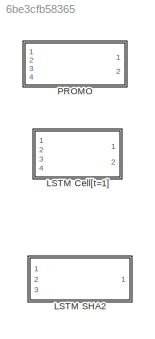
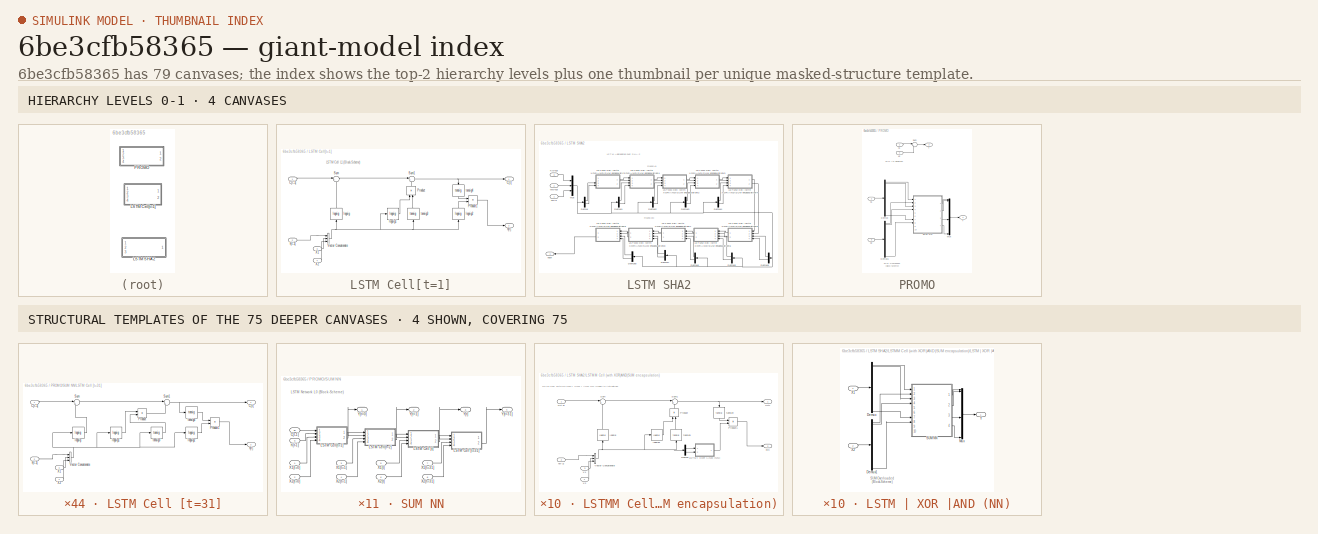
[diagram: thumbnail index - top-2 hierarchy levels (4 canvases) + 4 structural-template representatives of the remaining 75 canvases]
MODEL slx_6be3cfb58365
KIND model
CONFIG AbsTol = auto
CONFIG EnableMultiTasking = off
CONFIG FixedStep = auto
CONFIG MaxStep = auto
CONFIG MinStep = auto
CONFIG RelTol = 1e-3
CONFIG SampleTimeConstraint = Unconstrained
CONFIG Solver = VariableStepAuto
CONFIG SolverName = VariableStepAuto
CONFIG StartTime = 0.0
CONFIG StopTime = 10.0
BLOCK [SubSystem] LSTM Cell[t=1]
  Ports = [4, 2]
  RequestExecContextInheritance = off
BLOCK [Inport] LSTM Cell[t=1]/C[t-1]
  IconDisplay = Port number
BLOCK [Outport] LSTM Cell[t=1]/C[t]
  IconDisplay = Port number
BLOCK [Product] LSTM Cell[t=1]/Product
  InputSameDT = off
  OutDataTypeStr = Inherit: Inherit via internal rule
  Ports = [2, 1]
  RndMeth = Floor
  SaturateOnIntegerOverflow = off
BLOCK [Product] LSTM Cell[t=1]/Product1
  InputSameDT = off
  OutDataTypeStr = Inherit: Inherit via internal rule
  Ports = [2, 1]
  RndMeth = Floor
  SaturateOnIntegerOverflow = off
BLOCK [Sum] LSTM Cell[t=1]/Sum
  IconShape = round
  InputSameDT = off
  Inputs = |++
  OutDataTypeStr = Inherit: Inherit via internal rule
  Ports = [2, 1]
  SaturateOnIntegerOverflow = off
BLOCK [Sum] LSTM Cell[t=1]/Sum1
  IconShape = round
  InputSameDT = off
  Inputs = |++
  OutDataTypeStr = Inherit: Inherit via internal rule
  Ports = [2, 1]
  SaturateOnIntegerOverflow = off
BLOCK [Concatenate] LSTM Cell[t=1]/Vector Concatenate
  NumInputs = 3
  Ports = [3, 1]
BLOCK [Inport] LSTM Cell[t=1]/X1
  IconDisplay = Port number
  Port = 3
BLOCK [Inport] LSTM Cell[t=1]/X2
  IconDisplay = Port number
  Port = 4
BLOCK [Inport] LSTM Cell[t=1]/h[t-1]
  IconDisplay = Port number
  Port = 2
BLOCK [Outport] LSTM Cell[t=1]/h[t]
  IconDisplay = Port number
  Port = 2
BLOCK [Reference] LSTM Cell[t=1]/logsig  REF=neural/Transfer Functions/logsig
  Ports = [1, 1]
  SourceBlock = neural/Transfer Functions/logsig
  SourceType = LOGSIG
BLOCK [Reference] LSTM Cell[t=1]/logsig1  REF=neural/Transfer Functions/logsig
  Ports = [1, 1]
  SourceBlock = neural/Transfer Functions/logsig
  SourceType = LOGSIG
BLOCK [Reference] LSTM Cell[t=1]/logsig2  REF=neural/Transfer Functions/logsig
  Ports = [1, 1]
  SourceBlock = neural/Transfer Functions/logsig
  SourceType = LOGSIG
BLOCK [Reference] LSTM Cell[t=1]/tansig3  REF=neural/Transfer Functions/tansig
  Ports = [1, 1]
  SourceBlock = neural/Transfer Functions/tansig
  SourceType = TANSIG
BLOCK [Reference] LSTM Cell[t=1]/tansig4  REF=neural/Transfer Functions/tansig
  Ports = [1, 1]
  SourceBlock = neural/Transfer Functions/tansig
  SourceType = TANSIG
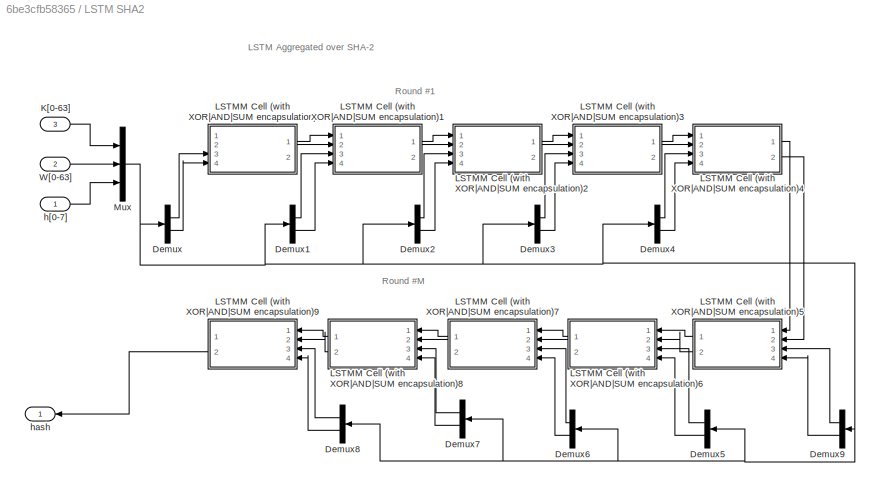
BLOCK [SubSystem] LSTM SHA2
  Ports = [3, 1]
  RequestExecContextInheritance = off
BLOCK [Demux] LSTM SHA2/Demux
  DisplayOption = bar
  Outputs = 2
  Ports = [1, 2]
BLOCK [Demux] LSTM SHA2/Demux1
  DisplayOption = bar
  Outputs = 2
  Ports = [1, 2]
BLOCK [Demux] LSTM SHA2/Demux2
  DisplayOption = bar
  Outputs = 2
  Ports = [1, 2]
BLOCK [Demux] LSTM SHA2/Demux3
  DisplayOption = bar
  Outputs = 2
  Ports = [1, 2]
BLOCK [Demux] LSTM SHA2/Demux4
  DisplayOption = bar
  Outputs = 2
  Ports = [1, 2]
BLOCK [Demux] LSTM SHA2/Demux5
  DisplayOption = bar
  Outputs = 2
  Ports = [1, 2]
BLOCK [Demux] LSTM SHA2/Demux6
  DisplayOption = bar
  Outputs = 2
  Ports = [1, 2]
BLOCK [Demux] LSTM SHA2/Demux7
  DisplayOption = bar
  Outputs = 2
  Ports = [1, 2]
BLOCK [Demux] LSTM SHA2/Demux8
  DisplayOption = bar
  Outputs = 2
  Ports = [1, 2]
BLOCK [Demux] LSTM SHA2/Demux9
  DisplayOption = bar
  Outputs = 2
  Ports = [1, 2]
BLOCK [Inport] LSTM SHA2/K[0-63]
  IconDisplay = Port number
  Port = 3
BLOCK [SubSystem] LSTM SHA2/LSTMM Cell (with XOR|AND|SUM encapsulation)
  Ports = [4, 2]
  RequestExecContextInheritance = off
BLOCK [Inport] LSTM SHA2/LSTMM Cell (with XOR|AND|SUM encapsulation)/C[t-1]
  IconDisplay = Port number
BLOCK [Outport] LSTM SHA2/LSTMM Cell (with XOR|AND|SUM encapsulation)/C[t]
  IconDisplay = Port number
BLOCK [Demux] LSTM SHA2/LSTMM Cell (with XOR|AND|SUM encapsulation)/Demux
  DisplayOption = bar
  Outputs = 2
  Ports = [1, 2]
BLOCK [SubSystem] LSTM SHA2/LSTMM Cell (with XOR|AND|SUM encapsulation)/LSTM | XOR |AND (NN)
  Ports = [2, 1]
  RequestExecContextInheritance = off
BLOCK [Demux] LSTM SHA2/LSTMM Cell (with XOR|AND|SUM encapsulation)/LSTM | XOR |AND (NN)/Demux
  DisplayOption = bar
  Outputs = 32
  Ports = [1, 32]
BLOCK [Demux] LSTM SHA2/LSTMM Cell (with XOR|AND|SUM encapsulation)/LSTM | XOR |AND (NN)/Demux1
  DisplayOption = bar
  Outputs = 32
  Ports = [1, 32]
BLOCK [Mux] LSTM SHA2/LSTMM Cell (with XOR|AND|SUM encapsulation)/LSTM | XOR |AND (NN)/Mux
  DisplayOption = bar
  Inputs = 32
  Ports = [32, 1]
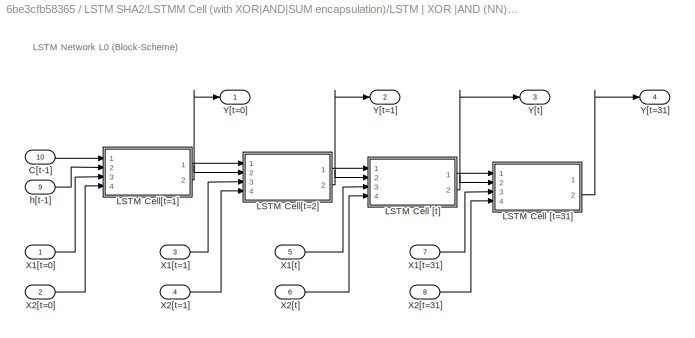
BLOCK [SubSystem] LSTM SHA2/LSTMM Cell (with XOR|AND|SUM encapsulation)/LSTM | XOR |AND (NN)/SUM NN
  Ports = [10, 4]
  RequestExecContextInheritance = off
BLOCK [Inport] LSTM SHA2/LSTMM Cell (with XOR|AND|SUM encapsulation)/LSTM | XOR |AND (NN)/SUM NN/C[t-1]
  IconDisplay = Port number
  Port = 10
BLOCK [SubSystem] LSTM SHA2/LSTMM Cell (with XOR|AND|SUM encapsulation)/LSTM | XOR |AND (NN)/SUM NN/LSTM Cell [t=31]
  Ports = [4, 2]
  RequestExecContextInheritance = off
BLOCK [Inport] LSTM SHA2/LSTMM Cell (with XOR|AND|SUM encapsulation)/LSTM | XOR |AND (NN)/SUM NN/LSTM Cell [t=31]/C[t-1]
  IconDisplay = Port number
BLOCK [Outport] LSTM SHA2/LSTMM Cell (with XOR|AND|SUM encapsulation)/LSTM | XOR |AND (NN)/SUM NN/LSTM Cell [t=31]/C[t]
  IconDisplay = Port number
BLOCK [Product] LSTM SHA2/LSTMM Cell (with XOR|AND|SUM encapsulation)/LSTM | XOR |AND (NN)/SUM NN/LSTM Cell [t=31]/Product
  InputSameDT = off
  OutDataTypeStr = Inherit: Inherit via internal rule
  Ports = [2, 1]
  RndMeth = Floor
  SaturateOnIntegerOverflow = off
BLOCK [Product] LSTM SHA2/LSTMM Cell (with XOR|AND|SUM encapsulation)/LSTM | XOR |AND (NN)/SUM NN/LSTM Cell [t=31]/Product1
  InputSameDT = off
  OutDataTypeStr = Inherit: Inherit via internal rule
  Ports = [2, 1]
  RndMeth = Floor
  SaturateOnIntegerOverflow = off
BLOCK [Sum] LSTM SHA2/LSTMM Cell (with XOR|AND|SUM encapsulation)/LSTM | XOR |AND (NN)/SUM NN/LSTM Cell [t=31]/Sum
  IconShape = round
  InputSameDT = off
  Inputs = |++
  OutDataTypeStr = Inherit: Inherit via internal rule
  Ports = [2, 1]
  SaturateOnIntegerOverflow = off
BLOCK [Sum] LSTM SHA2/LSTMM Cell (with XOR|AND|SUM encapsulation)/LSTM | XOR |AND (NN)/SUM NN/LSTM Cell [t=31]/Sum1
  IconShape = round
  InputSameDT = off
  Inputs = |++
  OutDataTypeStr = Inherit: Inherit via internal rule
  Ports = [2, 1]
  SaturateOnIntegerOverflow = off
BLOCK [Concatenate] LSTM SHA2/LSTMM Cell (with XOR|AND|SUM encapsulation)/LSTM | XOR |AND (NN)/SUM NN/LSTM Cell [t=31]/Vector Concatenate
  NumInputs = 3
  Ports = [3, 1]
BLOCK [Inport] LSTM SHA2/LSTMM Cell (with XOR|AND|SUM encapsulation)/LSTM | XOR |AND (NN)/SUM NN/LSTM Cell [t=31]/X1
  IconDisplay = Port number
  Port = 3
BLOCK [Inport] LSTM SHA2/LSTMM Cell (with XOR|AND|SUM encapsulation)/LSTM | XOR |AND (NN)/SUM NN/LSTM Cell [t=31]/X2
  IconDisplay = Port number
  Port = 4
BLOCK [Inport] LSTM SHA2/LSTMM Cell (with XOR|AND|SUM encapsulation)/LSTM | XOR |AND (NN)/SUM NN/LSTM Cell [t=31]/h[t-1]
  IconDisplay = Port number
  Port = 2
BLOCK [Outport] LSTM SHA2/LSTMM Cell (with XOR|AND|SUM encapsulation)/LSTM | XOR |AND (NN)/SUM NN/LSTM Cell [t=31]/h[t]
  IconDisplay = Port number
  Port = 2
BLOCK [Reference] LSTM SHA2/LSTMM Cell (with XOR|AND|SUM encapsulation)/LSTM | XOR |AND (NN)/SUM NN/LSTM Cell [t=31]/logsig  REF=neural/Transfer Functions/logsig
  Ports = [1, 1]
  SourceBlock = neural/Transfer Functions/logsig
  SourceType = LOGSIG
BLOCK [Reference] LSTM SHA2/LSTMM Cell (with XOR|AND|SUM encapsulation)/LSTM | XOR |AND (NN)/SUM NN/LSTM Cell [t=31]/logsig1  REF=neural/Transfer Functions/logsig
  Ports = [1, 1]
  SourceBlock = neural/Transfer Functions/logsig
  SourceType = LOGSIG
BLOCK [Reference] LSTM SHA2/LSTMM Cell (with XOR|AND|SUM encapsulation)/LSTM | XOR |AND (NN)/SUM NN/LSTM Cell [t=31]/logsig2  REF=neural/Transfer Functions/logsig
  Ports = [1, 1]
  SourceBlock = neural/Transfer Functions/logsig
  SourceType = LOGSIG
BLOCK [Reference] LSTM SHA2/LSTMM Cell (with XOR|AND|SUM encapsulation)/LSTM | XOR |AND (NN)/SUM NN/LSTM Cell [t=31]/tansig3  REF=neural/Transfer Functions/tansig
  Ports = [1, 1]
  SourceBlock = neural/Transfer Functions/tansig
  SourceType = TANSIG
BLOCK [Reference] LSTM SHA2/LSTMM Cell (with XOR|AND|SUM encapsulation)/LSTM | XOR |AND (NN)/SUM NN/LSTM Cell [t=31]/tansig4  REF=neural/Transfer Functions/tansig
  Ports = [1, 1]
  SourceBlock = neural/Transfer Functions/tansig
  SourceType = TANSIG
BLOCK [SubSystem] LSTM SHA2/LSTMM Cell (with XOR|AND|SUM encapsulation)/LSTM | XOR |AND (NN)/SUM NN/LSTM Cell [t]
  Ports = [4, 2]
  RequestExecContextInheritance = off
BLOCK [Inport] LSTM SHA2/LSTMM Cell (with XOR|AND|SUM encapsulation)/LSTM | XOR |AND (NN)/SUM NN/LSTM Cell [t]/C[t-1]
  IconDisplay = Port number
BLOCK [Outport] LSTM SHA2/LSTMM Cell (with XOR|AND|SUM encapsulation)/LSTM | XOR |AND (NN)/SUM NN/LSTM Cell [t]/C[t]
  IconDisplay = Port number
BLOCK [Product] LSTM SHA2/LSTMM Cell (with XOR|AND|SUM encapsulation)/LSTM | XOR |AND (NN)/SUM NN/LSTM Cell [t]/Product
  InputSameDT = off
  OutDataTypeStr = Inherit: Inherit via internal rule
  Ports = [2, 1]
  RndMeth = Floor
  SaturateOnIntegerOverflow = off
BLOCK [Product] LSTM SHA2/LSTMM Cell (with XOR|AND|SUM encapsulation)/LSTM | XOR |AND (NN)/SUM NN/LSTM Cell [t]/Product1
  InputSameDT = off
  OutDataTypeStr = Inherit: Inherit via internal rule
  Ports = [2, 1]
  RndMeth = Floor
  SaturateOnIntegerOverflow = off
BLOCK [Sum] LSTM SHA2/LSTMM Cell (with XOR|AND|SUM encapsulation)/LSTM | XOR |AND (NN)/SUM NN/LSTM Cell [t]/Sum
  IconShape = round
  InputSameDT = off
  Inputs = |++
  OutDataTypeStr = Inherit: Inherit via internal rule
  Ports = [2, 1]
  SaturateOnIntegerOverflow = off
BLOCK [Sum] LSTM SHA2/LSTMM Cell (with XOR|AND|SUM encapsulation)/LSTM | XOR |AND (NN)/SUM NN/LSTM Cell [t]/Sum1
  IconShape = round
  InputSameDT = off
  Inputs = |++
  OutDataTypeStr = Inherit: Inherit via internal rule
  Ports = [2, 1]
  SaturateOnIntegerOverflow = off
BLOCK [Concatenate] LSTM SHA2/LSTMM Cell (with XOR|AND|SUM encapsulation)/LSTM | XOR |AND (NN)/SUM NN/LSTM Cell [t]/Vector Concatenate
  NumInputs = 3
  Ports = [3, 1]
BLOCK [Inport] LSTM SHA2/LSTMM Cell (with XOR|AND|SUM encapsulation)/LSTM | XOR |AND (NN)/SUM NN/LSTM Cell [t]/X1
  IconDisplay = Port number
  Port = 3
BLOCK [Inport] LSTM SHA2/LSTMM Cell (with XOR|AND|SUM encapsulation)/LSTM | XOR |AND (NN)/SUM NN/LSTM Cell [t]/X2
  IconDisplay = Port number
  Port = 4
BLOCK [Inport] LSTM SHA2/LSTMM Cell (with XOR|AND|SUM encapsulation)/LSTM | XOR |AND (NN)/SUM NN/LSTM Cell [t]/h[t-1]
  IconDisplay = Port number
  Port = 2
BLOCK [Outport] LSTM SHA2/LSTMM Cell (with XOR|AND|SUM encapsulation)/LSTM | XOR |AND (NN)/SUM NN/LSTM Cell [t]/h[t]
  IconDisplay = Port number
  Port = 2
BLOCK [Reference] LSTM SHA2/LSTMM Cell (with XOR|AND|SUM encapsulation)/LSTM | XOR |AND (NN)/SUM NN/LSTM Cell [t]/logsig  REF=neural/Transfer Functions/logsig
  Ports = [1, 1]
  SourceBlock = neural/Transfer Functions/logsig
  SourceType = LOGSIG
BLOCK [Reference] LSTM SHA2/LSTMM Cell (with XOR|AND|SUM encapsulation)/LSTM | XOR |AND (NN)/SUM NN/LSTM Cell [t]/logsig1  REF=neural/Transfer Functions/logsig
  Ports = [1, 1]
  SourceBlock = neural/Transfer Functions/logsig
  SourceType = LOGSIG
BLOCK [Reference] LSTM SHA2/LSTMM Cell (with XOR|AND|SUM encapsulation)/LSTM | XOR |AND (NN)/SUM NN/LSTM Cell [t]/logsig2  REF=neural/Transfer Functions/logsig
  Ports = [1, 1]
  SourceBlock = neural/Transfer Functions/logsig
  SourceType = LOGSIG
BLOCK [Reference] LSTM SHA2/LSTMM Cell (with XOR|AND|SUM encapsulation)/LSTM | XOR |AND (NN)/SUM NN/LSTM Cell [t]/tansig3  REF=neural/Transfer Functions/tansig
  Ports = [1, 1]
  SourceBlock = neural/Transfer Functions/tansig
  SourceType = TANSIG
BLOCK [Reference] LSTM SHA2/LSTMM Cell (with XOR|AND|SUM encapsulation)/LSTM | XOR |AND (NN)/SUM NN/LSTM Cell [t]/tansig4  REF=neural/Transfer Functions/tansig
  Ports = [1, 1]
  SourceBlock = neural/Transfer Functions/tansig
  SourceType = TANSIG
BLOCK [SubSystem] LSTM SHA2/LSTMM Cell (with XOR|AND|SUM encapsulation)/LSTM | XOR |AND (NN)/SUM NN/LSTM Cell[t=1]
  Ports = [4, 2]
  RequestExecContextInheritance = off
BLOCK [Inport] LSTM SHA2/LSTMM Cell (with XOR|AND|SUM encapsulation)/LSTM | XOR |AND (NN)/SUM NN/LSTM Cell[t=1]/C[t-1]
  IconDisplay = Port number
BLOCK [Outport] LSTM SHA2/LSTMM Cell (with XOR|AND|SUM encapsulation)/LSTM | XOR |AND (NN)/SUM NN/LSTM Cell[t=1]/C[t]
  IconDisplay = Port number
BLOCK [Product] LSTM SHA2/LSTMM Cell (with XOR|AND|SUM encapsulation)/LSTM | XOR |AND (NN)/SUM NN/LSTM Cell[t=1]/Product
  InputSameDT = off
  OutDataTypeStr = Inherit: Inherit via internal rule
  Ports = [2, 1]
  RndMeth = Floor
  SaturateOnIntegerOverflow = off
BLOCK [Product] LSTM SHA2/LSTMM Cell (with XOR|AND|SUM encapsulation)/LSTM | XOR |AND (NN)/SUM NN/LSTM Cell[t=1]/Product1
  InputSameDT = off
  OutDataTypeStr = Inherit: Inherit via internal rule
  Ports = [2, 1]
  RndMeth = Floor
  SaturateOnIntegerOverflow = off
BLOCK [Sum] LSTM SHA2/LSTMM Cell (with XOR|AND|SUM encapsulation)/LSTM | XOR |AND (NN)/SUM NN/LSTM Cell[t=1]/Sum
  IconShape = round
  InputSameDT = off
  Inputs = |++
  OutDataTypeStr = Inherit: Inherit via internal rule
  Ports = [2, 1]
  SaturateOnIntegerOverflow = off
BLOCK [Sum] LSTM SHA2/LSTMM Cell (with XOR|AND|SUM encapsulation)/LSTM | XOR |AND (NN)/SUM NN/LSTM Cell[t=1]/Sum1
  IconShape = round
  InputSameDT = off
  Inputs = |++
  OutDataTypeStr = Inherit: Inherit via internal rule
  Ports = [2, 1]
  SaturateOnIntegerOverflow = off
BLOCK [Concatenate] LSTM SHA2/LSTMM Cell (with XOR|AND|SUM encapsulation)/LSTM | XOR |AND (NN)/SUM NN/LSTM Cell[t=1]/Vector Concatenate
  NumInputs = 3
  Ports = [3, 1]
BLOCK [Inport] LSTM SHA2/LSTMM Cell (with XOR|AND|SUM encapsulation)/LSTM | XOR |AND (NN)/SUM NN/LSTM Cell[t=1]/X1
  IconDisplay = Port number
  Port = 3
BLOCK [Inport] LSTM SHA2/LSTMM Cell (with XOR|AND|SUM encapsulation)/LSTM | XOR |AND (NN)/SUM NN/LSTM Cell[t=1]/X2
  IconDisplay = Port number
  Port = 4
BLOCK [Inport] LSTM SHA2/LSTMM Cell (with XOR|AND|SUM encapsulation)/LSTM | XOR |AND (NN)/SUM NN/LSTM Cell[t=1]/h[t-1]
  IconDisplay = Port number
  Port = 2
BLOCK [Outport] LSTM SHA2/LSTMM Cell (with XOR|AND|SUM encapsulation)/LSTM | XOR |AND (NN)/SUM NN/LSTM Cell[t=1]/h[t]
  IconDisplay = Port number
  Port = 2
BLOCK [Reference] LSTM SHA2/LSTMM Cell (with XOR|AND|SUM encapsulation)/LSTM | XOR |AND (NN)/SUM NN/LSTM Cell[t=1]/logsig  REF=neural/Transfer Functions/logsig
  Ports = [1, 1]
  SourceBlock = neural/Transfer Functions/logsig
  SourceType = LOGSIG
BLOCK [Reference] LSTM SHA2/LSTMM Cell (with XOR|AND|SUM encapsulation)/LSTM | XOR |AND (NN)/SUM NN/LSTM Cell[t=1]/logsig1  REF=neural/Transfer Functions/logsig
  Ports = [1, 1]
  SourceBlock = neural/Transfer Functions/logsig
  SourceType = LOGSIG
BLOCK [Reference] LSTM SHA2/LSTMM Cell (with XOR|AND|SUM encapsulation)/LSTM | XOR |AND (NN)/SUM NN/LSTM Cell[t=1]/logsig2  REF=neural/Transfer Functions/logsig
  Ports = [1, 1]
  SourceBlock = neural/Transfer Functions/logsig
  SourceType = LOGSIG
BLOCK [Reference] LSTM SHA2/LSTMM Cell (with XOR|AND|SUM encapsulation)/LSTM | XOR |AND (NN)/SUM NN/LSTM Cell[t=1]/tansig3  REF=neural/Transfer Functions/tansig
  Ports = [1, 1]
  SourceBlock = neural/Transfer Functions/tansig
  SourceType = TANSIG
BLOCK [Reference] LSTM SHA2/LSTMM Cell (with XOR|AND|SUM encapsulation)/LSTM | XOR |AND (NN)/SUM NN/LSTM Cell[t=1]/tansig4  REF=neural/Transfer Functions/tansig
  Ports = [1, 1]
  SourceBlock = neural/Transfer Functions/tansig
  SourceType = TANSIG
BLOCK [SubSystem] LSTM SHA2/LSTMM Cell (with XOR|AND|SUM encapsulation)/LSTM | XOR |AND (NN)/SUM NN/LSTM Cell[t=2]
  Ports = [4, 2]
  RequestExecContextInheritance = off
BLOCK [Inport] LSTM SHA2/LSTMM Cell (with XOR|AND|SUM encapsulation)/LSTM | XOR |AND (NN)/SUM NN/LSTM Cell[t=2]/C[t-1]
  IconDisplay = Port number
BLOCK [Outport] LSTM SHA2/LSTMM Cell (with XOR|AND|SUM encapsulation)/LSTM | XOR |AND (NN)/SUM NN/LSTM Cell[t=2]/C[t]
  IconDisplay = Port number
BLOCK [Product] LSTM SHA2/LSTMM Cell (with XOR|AND|SUM encapsulation)/LSTM | XOR |AND (NN)/SUM NN/LSTM Cell[t=2]/Product
  InputSameDT = off
  OutDataTypeStr = Inherit: Inherit via internal rule
  Ports = [2, 1]
  RndMeth = Floor
  SaturateOnIntegerOverflow = off
BLOCK [Product] LSTM SHA2/LSTMM Cell (with XOR|AND|SUM encapsulation)/LSTM | XOR |AND (NN)/SUM NN/LSTM Cell[t=2]/Product1
  InputSameDT = off
  OutDataTypeStr = Inherit: Inherit via internal rule
  Ports = [2, 1]
  RndMeth = Floor
  SaturateOnIntegerOverflow = off
BLOCK [Sum] LSTM SHA2/LSTMM Cell (with XOR|AND|SUM encapsulation)/LSTM | XOR |AND (NN)/SUM NN/LSTM Cell[t=2]/Sum
  IconShape = round
  InputSameDT = off
  Inputs = |++
  OutDataTypeStr = Inherit: Inherit via internal rule
  Ports = [2, 1]
  SaturateOnIntegerOverflow = off
BLOCK [Sum] LSTM SHA2/LSTMM Cell (with XOR|AND|SUM encapsulation)/LSTM | XOR |AND (NN)/SUM NN/LSTM Cell[t=2]/Sum1
  IconShape = round
  InputSameDT = off
  Inputs = |++
  OutDataTypeStr = Inherit: Inherit via internal rule
  Ports = [2, 1]
  SaturateOnIntegerOverflow = off
BLOCK [Concatenate] LSTM SHA2/LSTMM Cell (with XOR|AND|SUM encapsulation)/LSTM | XOR |AND (NN)/SUM NN/LSTM Cell[t=2]/Vector Concatenate
  NumInputs = 3
  Ports = [3, 1]
BLOCK [Inport] LSTM SHA2/LSTMM Cell (with XOR|AND|SUM encapsulation)/LSTM | XOR |AND (NN)/SUM NN/LSTM Cell[t=2]/X1
  IconDisplay = Port number
  Port = 3
BLOCK [Inport] LSTM SHA2/LSTMM Cell (with XOR|AND|SUM encapsulation)/LSTM | XOR |AND (NN)/SUM NN/LSTM Cell[t=2]/X2
  IconDisplay = Port number
  Port = 4
BLOCK [Inport] LSTM SHA2/LSTMM Cell (with XOR|AND|SUM encapsulation)/LSTM | XOR |AND (NN)/SUM NN/LSTM Cell[t=2]/h[t-1]
  IconDisplay = Port number
  Port = 2
BLOCK [Outport] LSTM SHA2/LSTMM Cell (with XOR|AND|SUM encapsulation)/LSTM | XOR |AND (NN)/SUM NN/LSTM Cell[t=2]/h[t]
  IconDisplay = Port number
  Port = 2
BLOCK [Reference] LSTM SHA2/LSTMM Cell (with XOR|AND|SUM encapsulation)/LSTM | XOR |AND (NN)/SUM NN/LSTM Cell[t=2]/logsig  REF=neural/Transfer Functions/logsig
  Ports = [1, 1]
  SourceBlock = neural/Transfer Functions/logsig
  SourceType = LOGSIG
BLOCK [Reference] LSTM SHA2/LSTMM Cell (with XOR|AND|SUM encapsulation)/LSTM | XOR |AND (NN)/SUM NN/LSTM Cell[t=2]/logsig1  REF=neural/Transfer Functions/logsig
  Ports = [1, 1]
  SourceBlock = neural/Transfer Functions/logsig
  SourceType = LOGSIG
BLOCK [Reference] LSTM SHA2/LSTMM Cell (with XOR|AND|SUM encapsulation)/LSTM | XOR |AND (NN)/SUM NN/LSTM Cell[t=2]/logsig2  REF=neural/Transfer Functions/logsig
  Ports = [1, 1]
  SourceBlock = neural/Transfer Functions/logsig
  SourceType = LOGSIG
BLOCK [Reference] LSTM SHA2/LSTMM Cell (with XOR|AND|SUM encapsulation)/LSTM | XOR |AND (NN)/SUM NN/LSTM Cell[t=2]/tansig3  REF=neural/Transfer Functions/tansig
  Ports = [1, 1]
  SourceBlock = neural/Transfer Functions/tansig
  SourceType = TANSIG
BLOCK [Reference] LSTM SHA2/LSTMM Cell (with XOR|AND|SUM encapsulation)/LSTM | XOR |AND (NN)/SUM NN/LSTM Cell[t=2]/tansig4  REF=neural/Transfer Functions/tansig
  Ports = [1, 1]
  SourceBlock = neural/Transfer Functions/tansig
  SourceType = TANSIG
BLOCK [Inport] LSTM SHA2/LSTMM Cell (with XOR|AND|SUM encapsulation)/LSTM | XOR |AND (NN)/SUM NN/X1[t=0]
  IconDisplay = Port number
BLOCK [Inport] LSTM SHA2/LSTMM Cell (with XOR|AND|SUM encapsulation)/LSTM | XOR |AND (NN)/SUM NN/X1[t=1]
  IconDisplay = Port number
  Port = 3
BLOCK [Inport] LSTM SHA2/LSTMM Cell (with XOR|AND|SUM encapsulation)/LSTM | XOR |AND (NN)/SUM NN/X1[t=31]
  IconDisplay = Port number
  Port = 7
BLOCK [Inport] LSTM SHA2/LSTMM Cell (with XOR|AND|SUM encapsulation)/LSTM | XOR |AND (NN)/SUM NN/X1[t]
  IconDisplay = Port number
  Port = 5
BLOCK [Inport] LSTM SHA2/LSTMM Cell (with XOR|AND|SUM encapsulation)/LSTM | XOR |AND (NN)/SUM NN/X2[t=0]
  IconDisplay = Port number
  Port = 2
BLOCK [Inport] LSTM SHA2/LSTMM Cell (with XOR|AND|SUM encapsulation)/LSTM | XOR |AND (NN)/SUM NN/X2[t=1]
  IconDisplay = Port number
  Port = 4
BLOCK [Inport] LSTM SHA2/LSTMM Cell (with XOR|AND|SUM encapsulation)/LSTM | XOR |AND (NN)/SUM NN/X2[t=31]
  IconDisplay = Port number
  Port = 8
BLOCK [Inport] LSTM SHA2/LSTMM Cell (with XOR|AND|SUM encapsulation)/LSTM | XOR |AND (NN)/SUM NN/X2[t]
  IconDisplay = Port number
  Port = 6
BLOCK [Outport] LSTM SHA2/LSTMM Cell (with XOR|AND|SUM encapsulation)/LSTM | XOR |AND (NN)/SUM NN/Y[t=0]
  IconDisplay = Port number
BLOCK [Outport] LSTM SHA2/LSTMM Cell (with XOR|AND|SUM encapsulation)/LSTM | XOR |AND (NN)/SUM NN/Y[t=1]
  IconDisplay = Port number
  Port = 2
BLOCK [Outport] LSTM SHA2/LSTMM Cell (with XOR|AND|SUM encapsulation)/LSTM | XOR |AND (NN)/SUM NN/Y[t=31]
  IconDisplay = Port number
  Port = 4
BLOCK [Outport] LSTM SHA2/LSTMM Cell (with XOR|AND|SUM encapsulation)/LSTM | XOR |AND (NN)/SUM NN/Y[t]
  IconDisplay = Port number
  Port = 3
BLOCK [Inport] LSTM SHA2/LSTMM Cell (with XOR|AND|SUM encapsulation)/LSTM | XOR |AND (NN)/SUM NN/h[t-1]
  IconDisplay = Port number
  Port = 9
BLOCK [Inport] LSTM SHA2/LSTMM Cell (with XOR|AND|SUM encapsulation)/LSTM | XOR |AND (NN)/X1
  IconDisplay = Port number
BLOCK [Inport] LSTM SHA2/LSTMM Cell (with XOR|AND|SUM encapsulation)/LSTM | XOR |AND (NN)/X2
  IconDisplay = Port number
  Port = 2
BLOCK [Outport] LSTM SHA2/LSTMM Cell (with XOR|AND|SUM encapsulation)/LSTM | XOR |AND (NN)/Y
  IconDisplay = Port number
BLOCK [Product] LSTM SHA2/LSTMM Cell (with XOR|AND|SUM encapsulation)/Product
  InputSameDT = off
  OutDataTypeStr = Inherit: Inherit via internal rule
  Ports = [2, 1]
  RndMeth = Floor
  SaturateOnIntegerOverflow = off
BLOCK [Product] LSTM SHA2/LSTMM Cell (with XOR|AND|SUM encapsulation)/Product1
  InputSameDT = off
  OutDataTypeStr = Inherit: Inherit via internal rule
  Ports = [2, 1]
  RndMeth = Floor
  SaturateOnIntegerOverflow = off
BLOCK [Sum] LSTM SHA2/LSTMM Cell (with XOR|AND|SUM encapsulation)/Sum
  IconShape = round
  InputSameDT = off
  Inputs = |++
  OutDataTypeStr = Inherit: Inherit via internal rule
  Ports = [2, 1]
  SaturateOnIntegerOverflow = off
BLOCK [Sum] LSTM SHA2/LSTMM Cell (with XOR|AND|SUM encapsulation)/Sum1
  IconShape = round
  InputSameDT = off
  Inputs = |++
  OutDataTypeStr = Inherit: Inherit via internal rule
  Ports = [2, 1]
  SaturateOnIntegerOverflow = off
BLOCK [Concatenate] LSTM SHA2/LSTMM Cell (with XOR|AND|SUM encapsulation)/Vector Concatenate
  NumInputs = 3
  Ports = [3, 1]
BLOCK [Inport] LSTM SHA2/LSTMM Cell (with XOR|AND|SUM encapsulation)/X1
  IconDisplay = Port number
  Port = 3
BLOCK [Inport] LSTM SHA2/LSTMM Cell (with XOR|AND|SUM encapsulation)/X2
  IconDisplay = Port number
  Port = 4
BLOCK [Inport] LSTM SHA2/LSTMM Cell (with XOR|AND|SUM encapsulation)/h[t-1]
  IconDisplay = Port number
  Port = 2
BLOCK [Outport] LSTM SHA2/LSTMM Cell (with XOR|AND|SUM encapsulation)/h[t]
  IconDisplay = Port number
  Port = 2
BLOCK [Reference] LSTM SHA2/LSTMM Cell (with XOR|AND|SUM encapsulation)/logsig  REF=neural/Transfer Functions/logsig
  Ports = [1, 1]
  SourceBlock = neural/Transfer Functions/logsig
  SourceType = LOGSIG
BLOCK [Reference] LSTM SHA2/LSTMM Cell (with XOR|AND|SUM encapsulation)/logsig1  REF=neural/Transfer Functions/logsig
  Ports = [1, 1]
  SourceBlock = neural/Transfer Functions/logsig
  SourceType = LOGSIG
BLOCK [Reference] LSTM SHA2/LSTMM Cell (with XOR|AND|SUM encapsulation)/tansig3  REF=neural/Transfer Functions/tansig
  Ports = [1, 1]
  SourceBlock = neural/Transfer Functions/tansig
  SourceType = TANSIG
BLOCK [Reference] LSTM SHA2/LSTMM Cell (with XOR|AND|SUM encapsulation)/tansig4  REF=neural/Transfer Functions/tansig
  Ports = [1, 1]
  SourceBlock = neural/Transfer Functions/tansig
  SourceType = TANSIG
BLOCK [SubSystem] LSTM SHA2/LSTMM Cell (with XOR|AND|SUM encapsulation)1
  Ports = [4, 2]
  RequestExecContextInheritance = off
BLOCK [Inport] LSTM SHA2/LSTMM Cell (with XOR|AND|SUM encapsulation)1/C[t-1]
  IconDisplay = Port number
BLOCK [Outport] LSTM SHA2/LSTMM Cell (with XOR|AND|SUM encapsulation)1/C[t]
  IconDisplay = Port number
BLOCK [Demux] LSTM SHA2/LSTMM Cell (with XOR|AND|SUM encapsulation)1/Demux
  DisplayOption = bar
  Outputs = 2
  Ports = [1, 2]
BLOCK [SubSystem] LSTM SHA2/LSTMM Cell (with XOR|AND|SUM encapsulation)1/LSTM | XOR |AND (NN)
  Ports = [2, 1]
  RequestExecContextInheritance = off
BLOCK [Demux] LSTM SHA2/LSTMM Cell (with XOR|AND|SUM encapsulation)1/LSTM | XOR |AND (NN)/Demux
  DisplayOption = bar
  Outputs = 32
  Ports = [1, 32]
BLOCK [Demux] LSTM SHA2/LSTMM Cell (with XOR|AND|SUM encapsulation)1/LSTM | XOR |AND (NN)/Demux1
  DisplayOption = bar
  Outputs = 32
  Ports = [1, 32]
BLOCK [Mux] LSTM SHA2/LSTMM Cell (with XOR|AND|SUM encapsulation)1/LSTM | XOR |AND (NN)/Mux
  DisplayOption = bar
  Inputs = 32
  Ports = [32, 1]
BLOCK [SubSystem] LSTM SHA2/LSTMM Cell (with XOR|AND|SUM encapsulation)1/LSTM | XOR |AND (NN)/SUM NN
  Ports = [10, 4]
  RequestExecContextInheritance = off
BLOCK [Inport] LSTM SHA2/LSTMM Cell (with XOR|AND|SUM encapsulation)1/LSTM | XOR |AND (NN)/SUM NN/C[t-1]
  IconDisplay = Port number
  Port = 10
BLOCK [SubSystem] LSTM SHA2/LSTMM Cell (with XOR|AND|SUM encapsulation)1/LSTM | XOR |AND (NN)/SUM NN/LSTM Cell [t=31]
  Ports = [4, 2]
  RequestExecContextInheritance = off
BLOCK [Inport] LSTM SHA2/LSTMM Cell (with XOR|AND|SUM encapsulation)1/LSTM | XOR |AND (NN)/SUM NN/LSTM Cell [t=31]/C[t-1]
  IconDisplay = Port number
BLOCK [Outport] LSTM SHA2/LSTMM Cell (with XOR|AND|SUM encapsulation)1/LSTM | XOR |AND (NN)/SUM NN/LSTM Cell [t=31]/C[t]
  IconDisplay = Port number
BLOCK [Product] LSTM SHA2/LSTMM Cell (with XOR|AND|SUM encapsulation)1/LSTM | XOR |AND (NN)/SUM NN/LSTM Cell [t=31]/Product
  InputSameDT = off
  OutDataTypeStr = Inherit: Inherit via internal rule
  Ports = [2, 1]
  RndMeth = Floor
  SaturateOnIntegerOverflow = off
BLOCK [Product] LSTM SHA2/LSTMM Cell (with XOR|AND|SUM encapsulation)1/LSTM | XOR |AND (NN)/SUM NN/LSTM Cell [t=31]/Product1
  InputSameDT = off
  OutDataTypeStr = Inherit: Inherit via internal rule
  Ports = [2, 1]
  RndMeth = Floor
  SaturateOnIntegerOverflow = off
BLOCK [Sum] LSTM SHA2/LSTMM Cell (with XOR|AND|SUM encapsulation)1/LSTM | XOR |AND (NN)/SUM NN/LSTM Cell [t=31]/Sum
  IconShape = round
  InputSameDT = off
  Inputs = |++
  OutDataTypeStr = Inherit: Inherit via internal rule
  Ports = [2, 1]
  SaturateOnIntegerOverflow = off
BLOCK [Sum] LSTM SHA2/LSTMM Cell (with XOR|AND|SUM encapsulation)1/LSTM | XOR |AND (NN)/SUM NN/LSTM Cell [t=31]/Sum1
  IconShape = round
  InputSameDT = off
  Inputs = |++
  OutDataTypeStr = Inherit: Inherit via internal rule
  Ports = [2, 1]
  SaturateOnIntegerOverflow = off
BLOCK [Concatenate] LSTM SHA2/LSTMM Cell (with XOR|AND|SUM encapsulation)1/LSTM | XOR |AND (NN)/SUM NN/LSTM Cell [t=31]/Vector Concatenate
  NumInputs = 3
  Ports = [3, 1]
BLOCK [Inport] LSTM SHA2/LSTMM Cell (with XOR|AND|SUM encapsulation)1/LSTM | XOR |AND (NN)/SUM NN/LSTM Cell [t=31]/X1
  IconDisplay = Port number
  Port = 3
BLOCK [Inport] LSTM SHA2/LSTMM Cell (with XOR|AND|SUM encapsulation)1/LSTM | XOR |AND (NN)/SUM NN/LSTM Cell [t=31]/X2
  IconDisplay = Port number
  Port = 4
BLOCK [Inport] LSTM SHA2/LSTMM Cell (with XOR|AND|SUM encapsulation)1/LSTM | XOR |AND (NN)/SUM NN/LSTM Cell [t=31]/h[t-1]
  IconDisplay = Port number
  Port = 2
BLOCK [Outport] LSTM SHA2/LSTMM Cell (with XOR|AND|SUM encapsulation)1/LSTM | XOR |AND (NN)/SUM NN/LSTM Cell [t=31]/h[t]
  IconDisplay = Port number
  Port = 2
BLOCK [Reference] LSTM SHA2/LSTMM Cell (with XOR|AND|SUM encapsulation)1/LSTM | XOR |AND (NN)/SUM NN/LSTM Cell [t=31]/logsig  REF=neural/Transfer Functions/logsig
  Ports = [1, 1]
  SourceBlock = neural/Transfer Functions/logsig
  SourceType = LOGSIG
BLOCK [Reference] LSTM SHA2/LSTMM Cell (with XOR|AND|SUM encapsulation)1/LSTM | XOR |AND (NN)/SUM NN/LSTM Cell [t=31]/logsig1  REF=neural/Transfer Functions/logsig
  Ports = [1, 1]
  SourceBlock = neural/Transfer Functions/logsig
  SourceType = LOGSIG
BLOCK [Reference] LSTM SHA2/LSTMM Cell (with XOR|AND|SUM encapsulation)1/LSTM | XOR |AND (NN)/SUM NN/LSTM Cell [t=31]/logsig2  REF=neural/Transfer Functions/logsig
  Ports = [1, 1]
  SourceBlock = neural/Transfer Functions/logsig
  SourceType = LOGSIG
BLOCK [Reference] LSTM SHA2/LSTMM Cell (with XOR|AND|SUM encapsulation)1/LSTM | XOR |AND (NN)/SUM NN/LSTM Cell [t=31]/tansig3  REF=neural/Transfer Functions/tansig
  Ports = [1, 1]
  SourceBlock = neural/Transfer Functions/tansig
  SourceType = TANSIG
BLOCK [Reference] LSTM SHA2/LSTMM Cell (with XOR|AND|SUM encapsulation)1/LSTM | XOR |AND (NN)/SUM NN/LSTM Cell [t=31]/tansig4  REF=neural/Transfer Functions/tansig
  Ports = [1, 1]
  SourceBlock = neural/Transfer Functions/tansig
  SourceType = TANSIG
BLOCK [SubSystem] LSTM SHA2/LSTMM Cell (with XOR|AND|SUM encapsulation)1/LSTM | XOR |AND (NN)/SUM NN/LSTM Cell [t]
  Ports = [4, 2]
  RequestExecContextInheritance = off
BLOCK [Inport] LSTM SHA2/LSTMM Cell (with XOR|AND|SUM encapsulation)1/LSTM | XOR |AND (NN)/SUM NN/LSTM Cell [t]/C[t-1]
  IconDisplay = Port number
BLOCK [Outport] LSTM SHA2/LSTMM Cell (with XOR|AND|SUM encapsulation)1/LSTM | XOR |AND (NN)/SUM NN/LSTM Cell [t]/C[t]
  IconDisplay = Port number
BLOCK [Product] LSTM SHA2/LSTMM Cell (with XOR|AND|SUM encapsulation)1/LSTM | XOR |AND (NN)/SUM NN/LSTM Cell [t]/Product
  InputSameDT = off
  OutDataTypeStr = Inherit: Inherit via internal rule
  Ports = [2, 1]
  RndMeth = Floor
  SaturateOnIntegerOverflow = off
BLOCK [Product] LSTM SHA2/LSTMM Cell (with XOR|AND|SUM encapsulation)1/LSTM | XOR |AND (NN)/SUM NN/LSTM Cell [t]/Product1
  InputSameDT = off
  OutDataTypeStr = Inherit: Inherit via internal rule
  Ports = [2, 1]
  RndMeth = Floor
  SaturateOnIntegerOverflow = off
BLOCK [Sum] LSTM SHA2/LSTMM Cell (with XOR|AND|SUM encapsulation)1/LSTM | XOR |AND (NN)/SUM NN/LSTM Cell [t]/Sum
  IconShape = round
  InputSameDT = off
  Inputs = |++
  OutDataTypeStr = Inherit: Inherit via internal rule
  Ports = [2, 1]
  SaturateOnIntegerOverflow = off
BLOCK [Sum] LSTM SHA2/LSTMM Cell (with XOR|AND|SUM encapsulation)1/LSTM | XOR |AND (NN)/SUM NN/LSTM Cell [t]/Sum1
  IconShape = round
  InputSameDT = off
  Inputs = |++
  OutDataTypeStr = Inherit: Inherit via internal rule
  Ports = [2, 1]
  SaturateOnIntegerOverflow = off
BLOCK [Concatenate] LSTM SHA2/LSTMM Cell (with XOR|AND|SUM encapsulation)1/LSTM | XOR |AND (NN)/SUM NN/LSTM Cell [t]/Vector Concatenate
  NumInputs = 3
  Ports = [3, 1]
BLOCK [Inport] LSTM SHA2/LSTMM Cell (with XOR|AND|SUM encapsulation)1/LSTM | XOR |AND (NN)/SUM NN/LSTM Cell [t]/X1
  IconDisplay = Port number
  Port = 3
BLOCK [Inport] LSTM SHA2/LSTMM Cell (with XOR|AND|SUM encapsulation)1/LSTM | XOR |AND (NN)/SUM NN/LSTM Cell [t]/X2
  IconDisplay = Port number
  Port = 4
BLOCK [Inport] LSTM SHA2/LSTMM Cell (with XOR|AND|SUM encapsulation)1/LSTM | XOR |AND (NN)/SUM NN/LSTM Cell [t]/h[t-1]
  IconDisplay = Port number
  Port = 2
BLOCK [Outport] LSTM SHA2/LSTMM Cell (with XOR|AND|SUM encapsulation)1/LSTM | XOR |AND (NN)/SUM NN/LSTM Cell [t]/h[t]
  IconDisplay = Port number
  Port = 2
BLOCK [Reference] LSTM SHA2/LSTMM Cell (with XOR|AND|SUM encapsulation)1/LSTM | XOR |AND (NN)/SUM NN/LSTM Cell [t]/logsig  REF=neural/Transfer Functions/logsig
  Ports = [1, 1]
  SourceBlock = neural/Transfer Functions/logsig
  SourceType = LOGSIG
BLOCK [Reference] LSTM SHA2/LSTMM Cell (with XOR|AND|SUM encapsulation)1/LSTM | XOR |AND (NN)/SUM NN/LSTM Cell [t]/logsig1  REF=neural/Transfer Functions/logsig
  Ports = [1, 1]
  SourceBlock = neural/Transfer Functions/logsig
  SourceType = LOGSIG
BLOCK [Reference] LSTM SHA2/LSTMM Cell (with XOR|AND|SUM encapsulation)1/LSTM | XOR |AND (NN)/SUM NN/LSTM Cell [t]/logsig2  REF=neural/Transfer Functions/logsig
  Ports = [1, 1]
  SourceBlock = neural/Transfer Functions/logsig
  SourceType = LOGSIG
BLOCK [Reference] LSTM SHA2/LSTMM Cell (with XOR|AND|SUM encapsulation)1/LSTM | XOR |AND (NN)/SUM NN/LSTM Cell [t]/tansig3  REF=neural/Transfer Functions/tansig
  Ports = [1, 1]
  SourceBlock = neural/Transfer Functions/tansig
  SourceType = TANSIG
BLOCK [Reference] LSTM SHA2/LSTMM Cell (with XOR|AND|SUM encapsulation)1/LSTM | XOR |AND (NN)/SUM NN/LSTM Cell [t]/tansig4  REF=neural/Transfer Functions/tansig
  Ports = [1, 1]
  SourceBlock = neural/Transfer Functions/tansig
  SourceType = TANSIG
BLOCK [SubSystem] LSTM SHA2/LSTMM Cell (with XOR|AND|SUM encapsulation)1/LSTM | XOR |AND (NN)/SUM NN/LSTM Cell[t=1]
  Ports = [4, 2]
  RequestExecContextInheritance = off
BLOCK [Inport] LSTM SHA2/LSTMM Cell (with XOR|AND|SUM encapsulation)1/LSTM | XOR |AND (NN)/SUM NN/LSTM Cell[t=1]/C[t-1]
  IconDisplay = Port number
BLOCK [Outport] LSTM SHA2/LSTMM Cell (with XOR|AND|SUM encapsulation)1/LSTM | XOR |AND (NN)/SUM NN/LSTM Cell[t=1]/C[t]
  IconDisplay = Port number
BLOCK [Product] LSTM SHA2/LSTMM Cell (with XOR|AND|SUM encapsulation)1/LSTM | XOR |AND (NN)/SUM NN/LSTM Cell[t=1]/Product
  InputSameDT = off
  OutDataTypeStr = Inherit: Inherit via internal rule
  Ports = [2, 1]
  RndMeth = Floor
  SaturateOnIntegerOverflow = off
BLOCK [Product] LSTM SHA2/LSTMM Cell (with XOR|AND|SUM encapsulation)1/LSTM | XOR |AND (NN)/SUM NN/LSTM Cell[t=1]/Product1
  InputSameDT = off
  OutDataTypeStr = Inherit: Inherit via internal rule
  Ports = [2, 1]
  RndMeth = Floor
  SaturateOnIntegerOverflow = off
BLOCK [Sum] LSTM SHA2/LSTMM Cell (with XOR|AND|SUM encapsulation)1/LSTM | XOR |AND (NN)/SUM NN/LSTM Cell[t=1]/Sum
  IconShape = round
  InputSameDT = off
  Inputs = |++
  OutDataTypeStr = Inherit: Inherit via internal rule
  Ports = [2, 1]
  SaturateOnIntegerOverflow = off
BLOCK [Sum] LSTM SHA2/LSTMM Cell (with XOR|AND|SUM encapsulation)1/LSTM | XOR |AND (NN)/SUM NN/LSTM Cell[t=1]/Sum1
  IconShape = round
  InputSameDT = off
  Inputs = |++
  OutDataTypeStr = Inherit: Inherit via internal rule
  Ports = [2, 1]
  SaturateOnIntegerOverflow = off
BLOCK [Concatenate] LSTM SHA2/LSTMM Cell (with XOR|AND|SUM encapsulation)1/LSTM | XOR |AND (NN)/SUM NN/LSTM Cell[t=1]/Vector Concatenate
  NumInputs = 3
  Ports = [3, 1]
BLOCK [Inport] LSTM SHA2/LSTMM Cell (with XOR|AND|SUM encapsulation)1/LSTM | XOR |AND (NN)/SUM NN/LSTM Cell[t=1]/X1
  IconDisplay = Port number
  Port = 3
BLOCK [Inport] LSTM SHA2/LSTMM Cell (with XOR|AND|SUM encapsulation)1/LSTM | XOR |AND (NN)/SUM NN/LSTM Cell[t=1]/X2
  IconDisplay = Port number
  Port = 4
BLOCK [Inport] LSTM SHA2/LSTMM Cell (with XOR|AND|SUM encapsulation)1/LSTM | XOR |AND (NN)/SUM NN/LSTM Cell[t=1]/h[t-1]
  IconDisplay = Port number
  Port = 2
BLOCK [Outport] LSTM SHA2/LSTMM Cell (with XOR|AND|SUM encapsulation)1/LSTM | XOR |AND (NN)/SUM NN/LSTM Cell[t=1]/h[t]
  IconDisplay = Port number
  Port = 2
BLOCK [Reference] LSTM SHA2/LSTMM Cell (with XOR|AND|SUM encapsulation)1/LSTM | XOR |AND (NN)/SUM NN/LSTM Cell[t=1]/logsig  REF=neural/Transfer Functions/logsig
  Ports = [1, 1]
  SourceBlock = neural/Transfer Functions/logsig
  SourceType = LOGSIG
BLOCK [Reference] LSTM SHA2/LSTMM Cell (with XOR|AND|SUM encapsulation)1/LSTM | XOR |AND (NN)/SUM NN/LSTM Cell[t=1]/logsig1  REF=neural/Transfer Functions/logsig
  Ports = [1, 1]
  SourceBlock = neural/Transfer Functions/logsig
  SourceType = LOGSIG
BLOCK [Reference] LSTM SHA2/LSTMM Cell (with XOR|AND|SUM encapsulation)1/LSTM | XOR |AND (NN)/SUM NN/LSTM Cell[t=1]/logsig2  REF=neural/Transfer Functions/logsig
  Ports = [1, 1]
  SourceBlock = neural/Transfer Functions/logsig
  SourceType = LOGSIG
BLOCK [Reference] LSTM SHA2/LSTMM Cell (with XOR|AND|SUM encapsulation)1/LSTM | XOR |AND (NN)/SUM NN/LSTM Cell[t=1]/tansig3  REF=neural/Transfer Functions/tansig
  Ports = [1, 1]
  SourceBlock = neural/Transfer Functions/tansig
  SourceType = TANSIG
BLOCK [Reference] LSTM SHA2/LSTMM Cell (with XOR|AND|SUM encapsulation)1/LSTM | XOR |AND (NN)/SUM NN/LSTM Cell[t=1]/tansig4  REF=neural/Transfer Functions/tansig
  Ports = [1, 1]
  SourceBlock = neural/Transfer Functions/tansig
  SourceType = TANSIG
BLOCK [SubSystem] LSTM SHA2/LSTMM Cell (with XOR|AND|SUM encapsulation)1/LSTM | XOR |AND (NN)/SUM NN/LSTM Cell[t=2]
  Ports = [4, 2]
  RequestExecContextInheritance = off
BLOCK [Inport] LSTM SHA2/LSTMM Cell (with XOR|AND|SUM encapsulation)1/LSTM | XOR |AND (NN)/SUM NN/LSTM Cell[t=2]/C[t-1]
  IconDisplay = Port number
BLOCK [Outport] LSTM SHA2/LSTMM Cell (with XOR|AND|SUM encapsulation)1/LSTM | XOR |AND (NN)/SUM NN/LSTM Cell[t=2]/C[t]
  IconDisplay = Port number
BLOCK [Product] LSTM SHA2/LSTMM Cell (with XOR|AND|SUM encapsulation)1/LSTM | XOR |AND (NN)/SUM NN/LSTM Cell[t=2]/Product
  InputSameDT = off
  OutDataTypeStr = Inherit: Inherit via internal rule
  Ports = [2, 1]
  RndMeth = Floor
  SaturateOnIntegerOverflow = off
BLOCK [Product] LSTM SHA2/LSTMM Cell (with XOR|AND|SUM encapsulation)1/LSTM | XOR |AND (NN)/SUM NN/LSTM Cell[t=2]/Product1
  InputSameDT = off
  OutDataTypeStr = Inherit: Inherit via internal rule
  Ports = [2, 1]
  RndMeth = Floor
  SaturateOnIntegerOverflow = off
BLOCK [Sum] LSTM SHA2/LSTMM Cell (with XOR|AND|SUM encapsulation)1/LSTM | XOR |AND (NN)/SUM NN/LSTM Cell[t=2]/Sum
  IconShape = round
  InputSameDT = off
  Inputs = |++
  OutDataTypeStr = Inherit: Inherit via internal rule
  Ports = [2, 1]
  SaturateOnIntegerOverflow = off
BLOCK [Sum] LSTM SHA2/LSTMM Cell (with XOR|AND|SUM encapsulation)1/LSTM | XOR |AND (NN)/SUM NN/LSTM Cell[t=2]/Sum1
  IconShape = round
  InputSameDT = off
  Inputs = |++
  OutDataTypeStr = Inherit: Inherit via internal rule
  Ports = [2, 1]
  SaturateOnIntegerOverflow = off
BLOCK [Concatenate] LSTM SHA2/LSTMM Cell (with XOR|AND|SUM encapsulation)1/LSTM | XOR |AND (NN)/SUM NN/LSTM Cell[t=2]/Vector Concatenate
  NumInputs = 3
  Ports = [3, 1]
BLOCK [Inport] LSTM SHA2/LSTMM Cell (with XOR|AND|SUM encapsulation)1/LSTM | XOR |AND (NN)/SUM NN/LSTM Cell[t=2]/X1
  IconDisplay = Port number
  Port = 3
BLOCK [Inport] LSTM SHA2/LSTMM Cell (with XOR|AND|SUM encapsulation)1/LSTM | XOR |AND (NN)/SUM NN/LSTM Cell[t=2]/X2
  IconDisplay = Port number
  Port = 4
BLOCK [Inport] LSTM SHA2/LSTMM Cell (with XOR|AND|SUM encapsulation)1/LSTM | XOR |AND (NN)/SUM NN/LSTM Cell[t=2]/h[t-1]
  IconDisplay = Port number
  Port = 2
BLOCK [Outport] LSTM SHA2/LSTMM Cell (with XOR|AND|SUM encapsulation)1/LSTM | XOR |AND (NN)/SUM NN/LSTM Cell[t=2]/h[t]
  IconDisplay = Port number
  Port = 2
BLOCK [Reference] LSTM SHA2/LSTMM Cell (with XOR|AND|SUM encapsulation)1/LSTM | XOR |AND (NN)/SUM NN/LSTM Cell[t=2]/logsig  REF=neural/Transfer Functions/logsig
  Ports = [1, 1]
  SourceBlock = neural/Transfer Functions/logsig
  SourceType = LOGSIG
BLOCK [Reference] LSTM SHA2/LSTMM Cell (with XOR|AND|SUM encapsulation)1/LSTM | XOR |AND (NN)/SUM NN/LSTM Cell[t=2]/logsig1  REF=neural/Transfer Functions/logsig
  Ports = [1, 1]
  SourceBlock = neural/Transfer Functions/logsig
  SourceType = LOGSIG
BLOCK [Reference] LSTM SHA2/LSTMM Cell (with XOR|AND|SUM encapsulation)1/LSTM | XOR |AND (NN)/SUM NN/LSTM Cell[t=2]/logsig2  REF=neural/Transfer Functions/logsig
  Ports = [1, 1]
  SourceBlock = neural/Transfer Functions/logsig
  SourceType = LOGSIG
BLOCK [Reference] LSTM SHA2/LSTMM Cell (with XOR|AND|SUM encapsulation)1/LSTM | XOR |AND (NN)/SUM NN/LSTM Cell[t=2]/tansig3  REF=neural/Transfer Functions/tansig
  Ports = [1, 1]
  SourceBlock = neural/Transfer Functions/tansig
  SourceType = TANSIG
BLOCK [Reference] LSTM SHA2/LSTMM Cell (with XOR|AND|SUM encapsulation)1/LSTM | XOR |AND (NN)/SUM NN/LSTM Cell[t=2]/tansig4  REF=neural/Transfer Functions/tansig
  Ports = [1, 1]
  SourceBlock = neural/Transfer Functions/tansig
  SourceType = TANSIG
BLOCK [Inport] LSTM SHA2/LSTMM Cell (with XOR|AND|SUM encapsulation)1/LSTM | XOR |AND (NN)/SUM NN/X1[t=0]
  IconDisplay = Port number
BLOCK [Inport] LSTM SHA2/LSTMM Cell (with XOR|AND|SUM encapsulation)1/LSTM | XOR |AND (NN)/SUM NN/X1[t=1]
  IconDisplay = Port number
  Port = 3
BLOCK [Inport] LSTM SHA2/LSTMM Cell (with XOR|AND|SUM encapsulation)1/LSTM | XOR |AND (NN)/SUM NN/X1[t=31]
  IconDisplay = Port number
  Port = 7
BLOCK [Inport] LSTM SHA2/LSTMM Cell (with XOR|AND|SUM encapsulation)1/LSTM | XOR |AND (NN)/SUM NN/X1[t]
  IconDisplay = Port number
  Port = 5
BLOCK [Inport] LSTM SHA2/LSTMM Cell (with XOR|AND|SUM encapsulation)1/LSTM | XOR |AND (NN)/SUM NN/X2[t=0]
  IconDisplay = Port number
  Port = 2
BLOCK [Inport] LSTM SHA2/LSTMM Cell (with XOR|AND|SUM encapsulation)1/LSTM | XOR |AND (NN)/SUM NN/X2[t=1]
  IconDisplay = Port number
  Port = 4
BLOCK [Inport] LSTM SHA2/LSTMM Cell (with XOR|AND|SUM encapsulation)1/LSTM | XOR |AND (NN)/SUM NN/X2[t=31]
  IconDisplay = Port number
  Port = 8
BLOCK [Inport] LSTM SHA2/LSTMM Cell (with XOR|AND|SUM encapsulation)1/LSTM | XOR |AND (NN)/SUM NN/X2[t]
  IconDisplay = Port number
  Port = 6
BLOCK [Outport] LSTM SHA2/LSTMM Cell (with XOR|AND|SUM encapsulation)1/LSTM | XOR |AND (NN)/SUM NN/Y[t=0]
  IconDisplay = Port number
BLOCK [Outport] LSTM SHA2/LSTMM Cell (with XOR|AND|SUM encapsulation)1/LSTM | XOR |AND (NN)/SUM NN/Y[t=1]
  IconDisplay = Port number
  Port = 2
BLOCK [Outport] LSTM SHA2/LSTMM Cell (with XOR|AND|SUM encapsulation)1/LSTM | XOR |AND (NN)/SUM NN/Y[t=31]
  IconDisplay = Port number
  Port = 4
BLOCK [Outport] LSTM SHA2/LSTMM Cell (with XOR|AND|SUM encapsulation)1/LSTM | XOR |AND (NN)/SUM NN/Y[t]
  IconDisplay = Port number
  Port = 3
BLOCK [Inport] LSTM SHA2/LSTMM Cell (with XOR|AND|SUM encapsulation)1/LSTM | XOR |AND (NN)/SUM NN/h[t-1]
  IconDisplay = Port number
  Port = 9
BLOCK [Inport] LSTM SHA2/LSTMM Cell (with XOR|AND|SUM encapsulation)1/LSTM | XOR |AND (NN)/X1
  IconDisplay = Port number
BLOCK [Inport] LSTM SHA2/LSTMM Cell (with XOR|AND|SUM encapsulation)1/LSTM | XOR |AND (NN)/X2
  IconDisplay = Port number
  Port = 2
BLOCK [Outport] LSTM SHA2/LSTMM Cell (with XOR|AND|SUM encapsulation)1/LSTM | XOR |AND (NN)/Y
  IconDisplay = Port number
BLOCK [Product] LSTM SHA2/LSTMM Cell (with XOR|AND|SUM encapsulation)1/Product
  InputSameDT = off
  OutDataTypeStr = Inherit: Inherit via internal rule
  Ports = [2, 1]
  RndMeth = Floor
  SaturateOnIntegerOverflow = off
BLOCK [Product] LSTM SHA2/LSTMM Cell (with XOR|AND|SUM encapsulation)1/Product1
  InputSameDT = off
  OutDataTypeStr = Inherit: Inherit via internal rule
  Ports = [2, 1]
  RndMeth = Floor
  SaturateOnIntegerOverflow = off
BLOCK [Sum] LSTM SHA2/LSTMM Cell (with XOR|AND|SUM encapsulation)1/Sum
  IconShape = round
  InputSameDT = off
  Inputs = |++
  OutDataTypeStr = Inherit: Inherit via internal rule
  Ports = [2, 1]
  SaturateOnIntegerOverflow = off
BLOCK [Sum] LSTM SHA2/LSTMM Cell (with XOR|AND|SUM encapsulation)1/Sum1
  IconShape = round
  InputSameDT = off
  Inputs = |++
  OutDataTypeStr = Inherit: Inherit via internal rule
  Ports = [2, 1]
  SaturateOnIntegerOverflow = off
BLOCK [Concatenate] LSTM SHA2/LSTMM Cell (with XOR|AND|SUM encapsulation)1/Vector Concatenate
  NumInputs = 3
  Ports = [3, 1]
BLOCK [Inport] LSTM SHA2/LSTMM Cell (with XOR|AND|SUM encapsulation)1/X1
  IconDisplay = Port number
  Port = 3
BLOCK [Inport] LSTM SHA2/LSTMM Cell (with XOR|AND|SUM encapsulation)1/X2
  IconDisplay = Port number
  Port = 4
BLOCK [Inport] LSTM SHA2/LSTMM Cell (with XOR|AND|SUM encapsulation)1/h[t-1]
  IconDisplay = Port number
  Port = 2
BLOCK [Outport] LSTM SHA2/LSTMM Cell (with XOR|AND|SUM encapsulation)1/h[t]
  IconDisplay = Port number
  Port = 2
BLOCK [Reference] LSTM SHA2/LSTMM Cell (with XOR|AND|SUM encapsulation)1/logsig  REF=neural/Transfer Functions/logsig
  Ports = [1, 1]
  SourceBlock = neural/Transfer Functions/logsig
  SourceType = LOGSIG
BLOCK [Reference] LSTM SHA2/LSTMM Cell (with XOR|AND|SUM encapsulation)1/logsig1  REF=neural/Transfer Functions/logsig
  Ports = [1, 1]
  SourceBlock = neural/Transfer Functions/logsig
  SourceType = LOGSIG
BLOCK [Reference] LSTM SHA2/LSTMM Cell (with XOR|AND|SUM encapsulation)1/tansig3  REF=neural/Transfer Functions/tansig
  Ports = [1, 1]
  SourceBlock = neural/Transfer Functions/tansig
  SourceType = TANSIG
BLOCK [Reference] LSTM SHA2/LSTMM Cell (with XOR|AND|SUM encapsulation)1/tansig4  REF=neural/Transfer Functions/tansig
  Ports = [1, 1]
  SourceBlock = neural/Transfer Functions/tansig
  SourceType = TANSIG
BLOCK [SubSystem] LSTM SHA2/LSTMM Cell (with XOR|AND|SUM encapsulation)2
  Ports = [4, 2]
  RequestExecContextInheritance = off
BLOCK [Inport] LSTM SHA2/LSTMM Cell (with XOR|AND|SUM encapsulation)2/C[t-1]
  IconDisplay = Port number
BLOCK [Outport] LSTM SHA2/LSTMM Cell (with XOR|AND|SUM encapsulation)2/C[t]
  IconDisplay = Port number
BLOCK [Demux] LSTM SHA2/LSTMM Cell (with XOR|AND|SUM encapsulation)2/Demux
  DisplayOption = bar
  Outputs = 2
  Ports = [1, 2]
BLOCK [SubSystem] LSTM SHA2/LSTMM Cell (with XOR|AND|SUM encapsulation)2/LSTM | XOR |AND (NN)
  Ports = [2, 1]
  RequestExecContextInheritance = off
BLOCK [Demux] LSTM SHA2/LSTMM Cell (with XOR|AND|SUM encapsulation)2/LSTM | XOR |AND (NN)/Demux
  DisplayOption = bar
  Outputs = 32
  Ports = [1, 32]
BLOCK [Demux] LSTM SHA2/LSTMM Cell (with XOR|AND|SUM encapsulation)2/LSTM | XOR |AND (NN)/Demux1
  DisplayOption = bar
  Outputs = 32
  Ports = [1, 32]
BLOCK [Mux] LSTM SHA2/LSTMM Cell (with XOR|AND|SUM encapsulation)2/LSTM | XOR |AND (NN)/Mux
  DisplayOption = bar
  Inputs = 32
  Ports = [32, 1]
BLOCK [SubSystem] LSTM SHA2/LSTMM Cell (with XOR|AND|SUM encapsulation)2/LSTM | XOR |AND (NN)/SUM NN
  Ports = [10, 4]
  RequestExecContextInheritance = off
BLOCK [Inport] LSTM SHA2/LSTMM Cell (with XOR|AND|SUM encapsulation)2/LSTM | XOR |AND (NN)/SUM NN/C[t-1]
  IconDisplay = Port number
  Port = 10
BLOCK [SubSystem] LSTM SHA2/LSTMM Cell (with XOR|AND|SUM encapsulation)2/LSTM | XOR |AND (NN)/SUM NN/LSTM Cell [t=31]
  Ports = [4, 2]
  RequestExecContextInheritance = off
BLOCK [Inport] LSTM SHA2/LSTMM Cell (with XOR|AND|SUM encapsulation)2/LSTM | XOR |AND (NN)/SUM NN/LSTM Cell [t=31]/C[t-1]
  IconDisplay = Port number
BLOCK [Outport] LSTM SHA2/LSTMM Cell (with XOR|AND|SUM encapsulation)2/LSTM | XOR |AND (NN)/SUM NN/LSTM Cell [t=31]/C[t]
  IconDisplay = Port number
BLOCK [Product] LSTM SHA2/LSTMM Cell (with XOR|AND|SUM encapsulation)2/LSTM | XOR |AND (NN)/SUM NN/LSTM Cell [t=31]/Product
  InputSameDT = off
  OutDataTypeStr = Inherit: Inherit via internal rule
  Ports = [2, 1]
  RndMeth = Floor
  SaturateOnIntegerOverflow = off
BLOCK [Product] LSTM SHA2/LSTMM Cell (with XOR|AND|SUM encapsulation)2/LSTM | XOR |AND (NN)/SUM NN/LSTM Cell [t=31]/Product1
  InputSameDT = off
  OutDataTypeStr = Inherit: Inherit via internal rule
  Ports = [2, 1]
  RndMeth = Floor
  SaturateOnIntegerOverflow = off
BLOCK [Sum] LSTM SHA2/LSTMM Cell (with XOR|AND|SUM encapsulation)2/LSTM | XOR |AND (NN)/SUM NN/LSTM Cell [t=31]/Sum
  IconShape = round
  InputSameDT = off
  Inputs = |++
  OutDataTypeStr = Inherit: Inherit via internal rule
  Ports = [2, 1]
  SaturateOnIntegerOverflow = off
BLOCK [Sum] LSTM SHA2/LSTMM Cell (with XOR|AND|SUM encapsulation)2/LSTM | XOR |AND (NN)/SUM NN/LSTM Cell [t=31]/Sum1
  IconShape = round
  InputSameDT = off
  Inputs = |++
  OutDataTypeStr = Inherit: Inherit via internal rule
  Ports = [2, 1]
  SaturateOnIntegerOverflow = off
BLOCK [Concatenate] LSTM SHA2/LSTMM Cell (with XOR|AND|SUM encapsulation)2/LSTM | XOR |AND (NN)/SUM NN/LSTM Cell [t=31]/Vector Concatenate
  NumInputs = 3
  Ports = [3, 1]
BLOCK [Inport] LSTM SHA2/LSTMM Cell (with XOR|AND|SUM encapsulation)2/LSTM | XOR |AND (NN)/SUM NN/LSTM Cell [t=31]/X1
  IconDisplay = Port number
  Port = 3
BLOCK [Inport] LSTM SHA2/LSTMM Cell (with XOR|AND|SUM encapsulation)2/LSTM | XOR |AND (NN)/SUM NN/LSTM Cell [t=31]/X2
  IconDisplay = Port number
  Port = 4
BLOCK [Inport] LSTM SHA2/LSTMM Cell (with XOR|AND|SUM encapsulation)2/LSTM | XOR |AND (NN)/SUM NN/LSTM Cell [t=31]/h[t-1]
  IconDisplay = Port number
  Port = 2
BLOCK [Outport] LSTM SHA2/LSTMM Cell (with XOR|AND|SUM encapsulation)2/LSTM | XOR |AND (NN)/SUM NN/LSTM Cell [t=31]/h[t]
  IconDisplay = Port number
  Port = 2
BLOCK [Reference] LSTM SHA2/LSTMM Cell (with XOR|AND|SUM encapsulation)2/LSTM | XOR |AND (NN)/SUM NN/LSTM Cell [t=31]/logsig  REF=neural/Transfer Functions/logsig
  Ports = [1, 1]
  SourceBlock = neural/Transfer Functions/logsig
  SourceType = LOGSIG
BLOCK [Reference] LSTM SHA2/LSTMM Cell (with XOR|AND|SUM encapsulation)2/LSTM | XOR |AND (NN)/SUM NN/LSTM Cell [t=31]/logsig1  REF=neural/Transfer Functions/logsig
  Ports = [1, 1]
  SourceBlock = neural/Transfer Functions/logsig
  SourceType = LOGSIG
BLOCK [Reference] LSTM SHA2/LSTMM Cell (with XOR|AND|SUM encapsulation)2/LSTM | XOR |AND (NN)/SUM NN/LSTM Cell [t=31]/logsig2  REF=neural/Transfer Functions/logsig
  Ports = [1, 1]
  SourceBlock = neural/Transfer Functions/logsig
  SourceType = LOGSIG
BLOCK [Reference] LSTM SHA2/LSTMM Cell (with XOR|AND|SUM encapsulation)2/LSTM | XOR |AND (NN)/SUM NN/LSTM Cell [t=31]/tansig3  REF=neural/Transfer Functions/tansig
  Ports = [1, 1]
  SourceBlock = neural/Transfer Functions/tansig
  SourceType = TANSIG
BLOCK [Reference] LSTM SHA2/LSTMM Cell (with XOR|AND|SUM encapsulation)2/LSTM | XOR |AND (NN)/SUM NN/LSTM Cell [t=31]/tansig4  REF=neural/Transfer Functions/tansig
  Ports = [1, 1]
  SourceBlock = neural/Transfer Functions/tansig
  SourceType = TANSIG
BLOCK [SubSystem] LSTM SHA2/LSTMM Cell (with XOR|AND|SUM encapsulation)2/LSTM | XOR |AND (NN)/SUM NN/LSTM Cell [t]
  Ports = [4, 2]
  RequestExecContextInheritance = off
BLOCK [Inport] LSTM SHA2/LSTMM Cell (with XOR|AND|SUM encapsulation)2/LSTM | XOR |AND (NN)/SUM NN/LSTM Cell [t]/C[t-1]
  IconDisplay = Port number
BLOCK [Outport] LSTM SHA2/LSTMM Cell (with XOR|AND|SUM encapsulation)2/LSTM | XOR |AND (NN)/SUM NN/LSTM Cell [t]/C[t]
  IconDisplay = Port number
BLOCK [Product] LSTM SHA2/LSTMM Cell (with XOR|AND|SUM encapsulation)2/LSTM | XOR |AND (NN)/SUM NN/LSTM Cell [t]/Product
  InputSameDT = off
  OutDataTypeStr = Inherit: Inherit via internal rule
  Ports = [2, 1]
  RndMeth = Floor
  SaturateOnIntegerOverflow = off
BLOCK [Product] LSTM SHA2/LSTMM Cell (with XOR|AND|SUM encapsulation)2/LSTM | XOR |AND (NN)/SUM NN/LSTM Cell [t]/Product1
  InputSameDT = off
  OutDataTypeStr = Inherit: Inherit via internal rule
  Ports = [2, 1]
  RndMeth = Floor
  SaturateOnIntegerOverflow = off
BLOCK [Sum] LSTM SHA2/LSTMM Cell (with XOR|AND|SUM encapsulation)2/LSTM | XOR |AND (NN)/SUM NN/LSTM Cell [t]/Sum
  IconShape = round
  InputSameDT = off
  Inputs = |++
  OutDataTypeStr = Inherit: Inherit via internal rule
  Ports = [2, 1]
  SaturateOnIntegerOverflow = off
BLOCK [Sum] LSTM SHA2/LSTMM Cell (with XOR|AND|SUM encapsulation)2/LSTM | XOR |AND (NN)/SUM NN/LSTM Cell [t]/Sum1
  IconShape = round
  InputSameDT = off
  Inputs = |++
  OutDataTypeStr = Inherit: Inherit via internal rule
  Ports = [2, 1]
  SaturateOnIntegerOverflow = off
BLOCK [Concatenate] LSTM SHA2/LSTMM Cell (with XOR|AND|SUM encapsulation)2/LSTM | XOR |AND (NN)/SUM NN/LSTM Cell [t]/Vector Concatenate
  NumInputs = 3
  Ports = [3, 1]
BLOCK [Inport] LSTM SHA2/LSTMM Cell (with XOR|AND|SUM encapsulation)2/LSTM | XOR |AND (NN)/SUM NN/LSTM Cell [t]/X1
  IconDisplay = Port number
  Port = 3
BLOCK [Inport] LSTM SHA2/LSTMM Cell (with XOR|AND|SUM encapsulation)2/LSTM | XOR |AND (NN)/SUM NN/LSTM Cell [t]/X2
  IconDisplay = Port number
  Port = 4
BLOCK [Inport] LSTM SHA2/LSTMM Cell (with XOR|AND|SUM encapsulation)2/LSTM | XOR |AND (NN)/SUM NN/LSTM Cell [t]/h[t-1]
  IconDisplay = Port number
  Port = 2
BLOCK [Outport] LSTM SHA2/LSTMM Cell (with XOR|AND|SUM encapsulation)2/LSTM | XOR |AND (NN)/SUM NN/LSTM Cell [t]/h[t]
  IconDisplay = Port number
  Port = 2
BLOCK [Reference] LSTM SHA2/LSTMM Cell (with XOR|AND|SUM encapsulation)2/LSTM | XOR |AND (NN)/SUM NN/LSTM Cell [t]/logsig  REF=neural/Transfer Functions/logsig
  Ports = [1, 1]
  SourceBlock = neural/Transfer Functions/logsig
  SourceType = LOGSIG
BLOCK [Reference] LSTM SHA2/LSTMM Cell (with XOR|AND|SUM encapsulation)2/LSTM | XOR |AND (NN)/SUM NN/LSTM Cell [t]/logsig1  REF=neural/Transfer Functions/logsig
  Ports = [1, 1]
  SourceBlock = neural/Transfer Functions/logsig
  SourceType = LOGSIG
BLOCK [Reference] LSTM SHA2/LSTMM Cell (with XOR|AND|SUM encapsulation)2/LSTM | XOR |AND (NN)/SUM NN/LSTM Cell [t]/logsig2  REF=neural/Transfer Functions/logsig
  Ports = [1, 1]
  SourceBlock = neural/Transfer Functions/logsig
  SourceType = LOGSIG
BLOCK [Reference] LSTM SHA2/LSTMM Cell (with XOR|AND|SUM encapsulation)2/LSTM | XOR |AND (NN)/SUM NN/LSTM Cell [t]/tansig3  REF=neural/Transfer Functions/tansig
  Ports = [1, 1]
  SourceBlock = neural/Transfer Functions/tansig
  SourceType = TANSIG
BLOCK [Reference] LSTM SHA2/LSTMM Cell (with XOR|AND|SUM encapsulation)2/LSTM | XOR |AND (NN)/SUM NN/LSTM Cell [t]/tansig4  REF=neural/Transfer Functions/tansig
  Ports = [1, 1]
  SourceBlock = neural/Transfer Functions/tansig
  SourceType = TANSIG
BLOCK [SubSystem] LSTM SHA2/LSTMM Cell (with XOR|AND|SUM encapsulation)2/LSTM | XOR |AND (NN)/SUM NN/LSTM Cell[t=1]
  Ports = [4, 2]
  RequestExecContextInheritance = off
BLOCK [Inport] LSTM SHA2/LSTMM Cell (with XOR|AND|SUM encapsulation)2/LSTM | XOR |AND (NN)/SUM NN/LSTM Cell[t=1]/C[t-1]
  IconDisplay = Port number
BLOCK [Outport] LSTM SHA2/LSTMM Cell (with XOR|AND|SUM encapsulation)2/LSTM | XOR |AND (NN)/SUM NN/LSTM Cell[t=1]/C[t]
  IconDisplay = Port number
BLOCK [Product] LSTM SHA2/LSTMM Cell (with XOR|AND|SUM encapsulation)2/LSTM | XOR |AND (NN)/SUM NN/LSTM Cell[t=1]/Product
  InputSameDT = off
  OutDataTypeStr = Inherit: Inherit via internal rule
  Ports = [2, 1]
  RndMeth = Floor
  SaturateOnIntegerOverflow = off
BLOCK [Product] LSTM SHA2/LSTMM Cell (with XOR|AND|SUM encapsulation)2/LSTM | XOR |AND (NN)/SUM NN/LSTM Cell[t=1]/Product1
  InputSameDT = off
  OutDataTypeStr = Inherit: Inherit via internal rule
  Ports = [2, 1]
  RndMeth = Floor
  SaturateOnIntegerOverflow = off
BLOCK [Sum] LSTM SHA2/LSTMM Cell (with XOR|AND|SUM encapsulation)2/LSTM | XOR |AND (NN)/SUM NN/LSTM Cell[t=1]/Sum
  IconShape = round
  InputSameDT = off
  Inputs = |++
  OutDataTypeStr = Inherit: Inherit via internal rule
  Ports = [2, 1]
  SaturateOnIntegerOverflow = off
BLOCK [Sum] LSTM SHA2/LSTMM Cell (with XOR|AND|SUM encapsulation)2/LSTM | XOR |AND (NN)/SUM NN/LSTM Cell[t=1]/Sum1
  IconShape = round
  InputSameDT = off
  Inputs = |++
  OutDataTypeStr = Inherit: Inherit via internal rule
  Ports = [2, 1]
  SaturateOnIntegerOverflow = off
BLOCK [Concatenate] LSTM SHA2/LSTMM Cell (with XOR|AND|SUM encapsulation)2/LSTM | XOR |AND (NN)/SUM NN/LSTM Cell[t=1]/Vector Concatenate
  NumInputs = 3
  Ports = [3, 1]
BLOCK [Inport] LSTM SHA2/LSTMM Cell (with XOR|AND|SUM encapsulation)2/LSTM | XOR |AND (NN)/SUM NN/LSTM Cell[t=1]/X1
  IconDisplay = Port number
  Port = 3
BLOCK [Inport] LSTM SHA2/LSTMM Cell (with XOR|AND|SUM encapsulation)2/LSTM | XOR |AND (NN)/SUM NN/LSTM Cell[t=1]/X2
  IconDisplay = Port number
  Port = 4
BLOCK [Inport] LSTM SHA2/LSTMM Cell (with XOR|AND|SUM encapsulation)2/LSTM | XOR |AND (NN)/SUM NN/LSTM Cell[t=1]/h[t-1]
  IconDisplay = Port number
  Port = 2
BLOCK [Outport] LSTM SHA2/LSTMM Cell (with XOR|AND|SUM encapsulation)2/LSTM | XOR |AND (NN)/SUM NN/LSTM Cell[t=1]/h[t]
  IconDisplay = Port number
  Port = 2
BLOCK [Reference] LSTM SHA2/LSTMM Cell (with XOR|AND|SUM encapsulation)2/LSTM | XOR |AND (NN)/SUM NN/LSTM Cell[t=1]/logsig  REF=neural/Transfer Functions/logsig
  Ports = [1, 1]
  SourceBlock = neural/Transfer Functions/logsig
  SourceType = LOGSIG
BLOCK [Reference] LSTM SHA2/LSTMM Cell (with XOR|AND|SUM encapsulation)2/LSTM | XOR |AND (NN)/SUM NN/LSTM Cell[t=1]/logsig1  REF=neural/Transfer Functions/logsig
  Ports = [1, 1]
  SourceBlock = neural/Transfer Functions/logsig
  SourceType = LOGSIG
BLOCK [Reference] LSTM SHA2/LSTMM Cell (with XOR|AND|SUM encapsulation)2/LSTM | XOR |AND (NN)/SUM NN/LSTM Cell[t=1]/logsig2  REF=neural/Transfer Functions/logsig
  Ports = [1, 1]
  SourceBlock = neural/Transfer Functions/logsig
  SourceType = LOGSIG
BLOCK [Reference] LSTM SHA2/LSTMM Cell (with XOR|AND|SUM encapsulation)2/LSTM | XOR |AND (NN)/SUM NN/LSTM Cell[t=1]/tansig3  REF=neural/Transfer Functions/tansig
  Ports = [1, 1]
  SourceBlock = neural/Transfer Functions/tansig
  SourceType = TANSIG
BLOCK [Reference] LSTM SHA2/LSTMM Cell (with XOR|AND|SUM encapsulation)2/LSTM | XOR |AND (NN)/SUM NN/LSTM Cell[t=1]/tansig4  REF=neural/Transfer Functions/tansig
  Ports = [1, 1]
  SourceBlock = neural/Transfer Functions/tansig
  SourceType = TANSIG
BLOCK [SubSystem] LSTM SHA2/LSTMM Cell (with XOR|AND|SUM encapsulation)2/LSTM | XOR |AND (NN)/SUM NN/LSTM Cell[t=2]
  Ports = [4, 2]
  RequestExecContextInheritance = off
BLOCK [Inport] LSTM SHA2/LSTMM Cell (with XOR|AND|SUM encapsulation)2/LSTM | XOR |AND (NN)/SUM NN/LSTM Cell[t=2]/C[t-1]
  IconDisplay = Port number
BLOCK [Outport] LSTM SHA2/LSTMM Cell (with XOR|AND|SUM encapsulation)2/LSTM | XOR |AND (NN)/SUM NN/LSTM Cell[t=2]/C[t]
  IconDisplay = Port number
BLOCK [Product] LSTM SHA2/LSTMM Cell (with XOR|AND|SUM encapsulation)2/LSTM | XOR |AND (NN)/SUM NN/LSTM Cell[t=2]/Product
  InputSameDT = off
  OutDataTypeStr = Inherit: Inherit via internal rule
  Ports = [2, 1]
  RndMeth = Floor
  SaturateOnIntegerOverflow = off
BLOCK [Product] LSTM SHA2/LSTMM Cell (with XOR|AND|SUM encapsulation)2/LSTM | XOR |AND (NN)/SUM NN/LSTM Cell[t=2]/Product1
  InputSameDT = off
  OutDataTypeStr = Inherit: Inherit via internal rule
  Ports = [2, 1]
  RndMeth = Floor
  SaturateOnIntegerOverflow = off
BLOCK [Sum] LSTM SHA2/LSTMM Cell (with XOR|AND|SUM encapsulation)2/LSTM | XOR |AND (NN)/SUM NN/LSTM Cell[t=2]/Sum
  IconShape = round
  InputSameDT = off
  Inputs = |++
  OutDataTypeStr = Inherit: Inherit via internal rule
  Ports = [2, 1]
  SaturateOnIntegerOverflow = off
BLOCK [Sum] LSTM SHA2/LSTMM Cell (with XOR|AND|SUM encapsulation)2/LSTM | XOR |AND (NN)/SUM NN/LSTM Cell[t=2]/Sum1
  IconShape = round
  InputSameDT = off
  Inputs = |++
  OutDataTypeStr = Inherit: Inherit via internal rule
  Ports = [2, 1]
  SaturateOnIntegerOverflow = off
BLOCK [Concatenate] LSTM SHA2/LSTMM Cell (with XOR|AND|SUM encapsulation)2/LSTM | XOR |AND (NN)/SUM NN/LSTM Cell[t=2]/Vector Concatenate
  NumInputs = 3
  Ports = [3, 1]
BLOCK [Inport] LSTM SHA2/LSTMM Cell (with XOR|AND|SUM encapsulation)2/LSTM | XOR |AND (NN)/SUM NN/LSTM Cell[t=2]/X1
  IconDisplay = Port number
  Port = 3
BLOCK [Inport] LSTM SHA2/LSTMM Cell (with XOR|AND|SUM encapsulation)2/LSTM | XOR |AND (NN)/SUM NN/LSTM Cell[t=2]/X2
  IconDisplay = Port number
  Port = 4
BLOCK [Inport] LSTM SHA2/LSTMM Cell (with XOR|AND|SUM encapsulation)2/LSTM | XOR |AND (NN)/SUM NN/LSTM Cell[t=2]/h[t-1]
  IconDisplay = Port number
  Port = 2
BLOCK [Outport] LSTM SHA2/LSTMM Cell (with XOR|AND|SUM encapsulation)2/LSTM | XOR |AND (NN)/SUM NN/LSTM Cell[t=2]/h[t]
  IconDisplay = Port number
  Port = 2
BLOCK [Reference] LSTM SHA2/LSTMM Cell (with XOR|AND|SUM encapsulation)2/LSTM | XOR |AND (NN)/SUM NN/LSTM Cell[t=2]/logsig  REF=neural/Transfer Functions/logsig
  Ports = [1, 1]
  SourceBlock = neural/Transfer Functions/logsig
  SourceType = LOGSIG
BLOCK [Reference] LSTM SHA2/LSTMM Cell (with XOR|AND|SUM encapsulation)2/LSTM | XOR |AND (NN)/SUM NN/LSTM Cell[t=2]/logsig1  REF=neural/Transfer Functions/logsig
  Ports = [1, 1]
  SourceBlock = neural/Transfer Functions/logsig
  SourceType = LOGSIG
BLOCK [Reference] LSTM SHA2/LSTMM Cell (with XOR|AND|SUM encapsulation)2/LSTM | XOR |AND (NN)/SUM NN/LSTM Cell[t=2]/logsig2  REF=neural/Transfer Functions/logsig
  Ports = [1, 1]
  SourceBlock = neural/Transfer Functions/logsig
  SourceType = LOGSIG
BLOCK [Reference] LSTM SHA2/LSTMM Cell (with XOR|AND|SUM encapsulation)2/LSTM | XOR |AND (NN)/SUM NN/LSTM Cell[t=2]/tansig3  REF=neural/Transfer Functions/tansig
  Ports = [1, 1]
  SourceBlock = neural/Transfer Functions/tansig
  SourceType = TANSIG
BLOCK [Reference] LSTM SHA2/LSTMM Cell (with XOR|AND|SUM encapsulation)2/LSTM | XOR |AND (NN)/SUM NN/LSTM Cell[t=2]/tansig4  REF=neural/Transfer Functions/tansig
  Ports = [1, 1]
  SourceBlock = neural/Transfer Functions/tansig
  SourceType = TANSIG
BLOCK [Inport] LSTM SHA2/LSTMM Cell (with XOR|AND|SUM encapsulation)2/LSTM | XOR |AND (NN)/SUM NN/X1[t=0]
  IconDisplay = Port number
BLOCK [Inport] LSTM SHA2/LSTMM Cell (with XOR|AND|SUM encapsulation)2/LSTM | XOR |AND (NN)/SUM NN/X1[t=1]
  IconDisplay = Port number
  Port = 3
BLOCK [Inport] LSTM SHA2/LSTMM Cell (with XOR|AND|SUM encapsulation)2/LSTM | XOR |AND (NN)/SUM NN/X1[t=31]
  IconDisplay = Port number
  Port = 7
BLOCK [Inport] LSTM SHA2/LSTMM Cell (with XOR|AND|SUM encapsulation)2/LSTM | XOR |AND (NN)/SUM NN/X1[t]
  IconDisplay = Port number
  Port = 5
BLOCK [Inport] LSTM SHA2/LSTMM Cell (with XOR|AND|SUM encapsulation)2/LSTM | XOR |AND (NN)/SUM NN/X2[t=0]
  IconDisplay = Port number
  Port = 2
BLOCK [Inport] LSTM SHA2/LSTMM Cell (with XOR|AND|SUM encapsulation)2/LSTM | XOR |AND (NN)/SUM NN/X2[t=1]
  IconDisplay = Port number
  Port = 4
BLOCK [Inport] LSTM SHA2/LSTMM Cell (with XOR|AND|SUM encapsulation)2/LSTM | XOR |AND (NN)/SUM NN/X2[t=31]
  IconDisplay = Port number
  Port = 8
BLOCK [Inport] LSTM SHA2/LSTMM Cell (with XOR|AND|SUM encapsulation)2/LSTM | XOR |AND (NN)/SUM NN/X2[t]
  IconDisplay = Port number
  Port = 6
BLOCK [Outport] LSTM SHA2/LSTMM Cell (with XOR|AND|SUM encapsulation)2/LSTM | XOR |AND (NN)/SUM NN/Y[t=0]
  IconDisplay = Port number
BLOCK [Outport] LSTM SHA2/LSTMM Cell (with XOR|AND|SUM encapsulation)2/LSTM | XOR |AND (NN)/SUM NN/Y[t=1]
  IconDisplay = Port number
  Port = 2
BLOCK [Outport] LSTM SHA2/LSTMM Cell (with XOR|AND|SUM encapsulation)2/LSTM | XOR |AND (NN)/SUM NN/Y[t=31]
  IconDisplay = Port number
  Port = 4
BLOCK [Outport] LSTM SHA2/LSTMM Cell (with XOR|AND|SUM encapsulation)2/LSTM | XOR |AND (NN)/SUM NN/Y[t]
  IconDisplay = Port number
  Port = 3
BLOCK [Inport] LSTM SHA2/LSTMM Cell (with XOR|AND|SUM encapsulation)2/LSTM | XOR |AND (NN)/SUM NN/h[t-1]
  IconDisplay = Port number
  Port = 9
BLOCK [Inport] LSTM SHA2/LSTMM Cell (with XOR|AND|SUM encapsulation)2/LSTM | XOR |AND (NN)/X1
  IconDisplay = Port number
BLOCK [Inport] LSTM SHA2/LSTMM Cell (with XOR|AND|SUM encapsulation)2/LSTM | XOR |AND (NN)/X2
  IconDisplay = Port number
  Port = 2
BLOCK [Outport] LSTM SHA2/LSTMM Cell (with XOR|AND|SUM encapsulation)2/LSTM | XOR |AND (NN)/Y
  IconDisplay = Port number
BLOCK [Product] LSTM SHA2/LSTMM Cell (with XOR|AND|SUM encapsulation)2/Product
  InputSameDT = off
  OutDataTypeStr = Inherit: Inherit via internal rule
  Ports = [2, 1]
  RndMeth = Floor
  SaturateOnIntegerOverflow = off
BLOCK [Product] LSTM SHA2/LSTMM Cell (with XOR|AND|SUM encapsulation)2/Product1
  InputSameDT = off
  OutDataTypeStr = Inherit: Inherit via internal rule
  Ports = [2, 1]
  RndMeth = Floor
  SaturateOnIntegerOverflow = off
BLOCK [Sum] LSTM SHA2/LSTMM Cell (with XOR|AND|SUM encapsulation)2/Sum
  IconShape = round
  InputSameDT = off
  Inputs = |++
  OutDataTypeStr = Inherit: Inherit via internal rule
  Ports = [2, 1]
  SaturateOnIntegerOverflow = off
BLOCK [Sum] LSTM SHA2/LSTMM Cell (with XOR|AND|SUM encapsulation)2/Sum1
  IconShape = round
  InputSameDT = off
  Inputs = |++
  OutDataTypeStr = Inherit: Inherit via internal rule
  Ports = [2, 1]
  SaturateOnIntegerOverflow = off
BLOCK [Concatenate] LSTM SHA2/LSTMM Cell (with XOR|AND|SUM encapsulation)2/Vector Concatenate
  NumInputs = 3
  Ports = [3, 1]
BLOCK [Inport] LSTM SHA2/LSTMM Cell (with XOR|AND|SUM encapsulation)2/X1
  IconDisplay = Port number
  Port = 3
BLOCK [Inport] LSTM SHA2/LSTMM Cell (with XOR|AND|SUM encapsulation)2/X2
  IconDisplay = Port number
  Port = 4
BLOCK [Inport] LSTM SHA2/LSTMM Cell (with XOR|AND|SUM encapsulation)2/h[t-1]
  IconDisplay = Port number
  Port = 2
BLOCK [Outport] LSTM SHA2/LSTMM Cell (with XOR|AND|SUM encapsulation)2/h[t]
  IconDisplay = Port number
  Port = 2
BLOCK [Reference] LSTM SHA2/LSTMM Cell (with XOR|AND|SUM encapsulation)2/logsig  REF=neural/Transfer Functions/logsig
  Ports = [1, 1]
  SourceBlock = neural/Transfer Functions/logsig
  SourceType = LOGSIG
BLOCK [Reference] LSTM SHA2/LSTMM Cell (with XOR|AND|SUM encapsulation)2/logsig1  REF=neural/Transfer Functions/logsig
  Ports = [1, 1]
  SourceBlock = neural/Transfer Functions/logsig
  SourceType = LOGSIG
BLOCK [Reference] LSTM SHA2/LSTMM Cell (with XOR|AND|SUM encapsulation)2/tansig3  REF=neural/Transfer Functions/tansig
  Ports = [1, 1]
  SourceBlock = neural/Transfer Functions/tansig
  SourceType = TANSIG
BLOCK [Reference] LSTM SHA2/LSTMM Cell (with XOR|AND|SUM encapsulation)2/tansig4  REF=neural/Transfer Functions/tansig
  Ports = [1, 1]
  SourceBlock = neural/Transfer Functions/tansig
  SourceType = TANSIG
BLOCK [SubSystem] LSTM SHA2/LSTMM Cell (with XOR|AND|SUM encapsulation)3
  Ports = [4, 2]
  RequestExecContextInheritance = off
BLOCK [Inport] LSTM SHA2/LSTMM Cell (with XOR|AND|SUM encapsulation)3/C[t-1]
  IconDisplay = Port number
BLOCK [Outport] LSTM SHA2/LSTMM Cell (with XOR|AND|SUM encapsulation)3/C[t]
  IconDisplay = Port number
BLOCK [Demux] LSTM SHA2/LSTMM Cell (with XOR|AND|SUM encapsulation)3/Demux
  DisplayOption = bar
  Outputs = 2
  Ports = [1, 2]
BLOCK [SubSystem] LSTM SHA2/LSTMM Cell (with XOR|AND|SUM encapsulation)3/LSTM | XOR |AND (NN)
  Ports = [2, 1]
  RequestExecContextInheritance = off
BLOCK [Demux] LSTM SHA2/LSTMM Cell (with XOR|AND|SUM encapsulation)3/LSTM | XOR |AND (NN)/Demux
  DisplayOption = bar
  Outputs = 32
  Ports = [1, 32]
BLOCK [Demux] LSTM SHA2/LSTMM Cell (with XOR|AND|SUM encapsulation)3/LSTM | XOR |AND (NN)/Demux1
  DisplayOption = bar
  Outputs = 32
  Ports = [1, 32]
BLOCK [Mux] LSTM SHA2/LSTMM Cell (with XOR|AND|SUM encapsulation)3/LSTM | XOR |AND (NN)/Mux
  DisplayOption = bar
  Inputs = 32
  Ports = [32, 1]
BLOCK [SubSystem] LSTM SHA2/LSTMM Cell (with XOR|AND|SUM encapsulation)3/LSTM | XOR |AND (NN)/SUM NN
  Ports = [10, 4]
  RequestExecContextInheritance = off
BLOCK [Inport] LSTM SHA2/LSTMM Cell (with XOR|AND|SUM encapsulation)3/LSTM | XOR |AND (NN)/SUM NN/C[t-1]
  IconDisplay = Port number
  Port = 10
BLOCK [SubSystem] LSTM SHA2/LSTMM Cell (with XOR|AND|SUM encapsulation)3/LSTM | XOR |AND (NN)/SUM NN/LSTM Cell [t=31]
  Ports = [4, 2]
  RequestExecContextInheritance = off
BLOCK [Inport] LSTM SHA2/LSTMM Cell (with XOR|AND|SUM encapsulation)3/LSTM | XOR |AND (NN)/SUM NN/LSTM Cell [t=31]/C[t-1]
  IconDisplay = Port number
BLOCK [Outport] LSTM SHA2/LSTMM Cell (with XOR|AND|SUM encapsulation)3/LSTM | XOR |AND (NN)/SUM NN/LSTM Cell [t=31]/C[t]
  IconDisplay = Port number
BLOCK [Product] LSTM SHA2/LSTMM Cell (with XOR|AND|SUM encapsulation)3/LSTM | XOR |AND (NN)/SUM NN/LSTM Cell [t=31]/Product
  InputSameDT = off
  OutDataTypeStr = Inherit: Inherit via internal rule
  Ports = [2, 1]
  RndMeth = Floor
  SaturateOnIntegerOverflow = off
BLOCK [Product] LSTM SHA2/LSTMM Cell (with XOR|AND|SUM encapsulation)3/LSTM | XOR |AND (NN)/SUM NN/LSTM Cell [t=31]/Product1
  InputSameDT = off
  OutDataTypeStr = Inherit: Inherit via internal rule
  Ports = [2, 1]
  RndMeth = Floor
  SaturateOnIntegerOverflow = off
BLOCK [Sum] LSTM SHA2/LSTMM Cell (with XOR|AND|SUM encapsulation)3/LSTM | XOR |AND (NN)/SUM NN/LSTM Cell [t=31]/Sum
  IconShape = round
  InputSameDT = off
  Inputs = |++
  OutDataTypeStr = Inherit: Inherit via internal rule
  Ports = [2, 1]
  SaturateOnIntegerOverflow = off
BLOCK [Sum] LSTM SHA2/LSTMM Cell (with XOR|AND|SUM encapsulation)3/LSTM | XOR |AND (NN)/SUM NN/LSTM Cell [t=31]/Sum1
  IconShape = round
  InputSameDT = off
  Inputs = |++
  OutDataTypeStr = Inherit: Inherit via internal rule
  Ports = [2, 1]
  SaturateOnIntegerOverflow = off
BLOCK [Concatenate] LSTM SHA2/LSTMM Cell (with XOR|AND|SUM encapsulation)3/LSTM | XOR |AND (NN)/SUM NN/LSTM Cell [t=31]/Vector Concatenate
  NumInputs = 3
  Ports = [3, 1]
BLOCK [Inport] LSTM SHA2/LSTMM Cell (with XOR|AND|SUM encapsulation)3/LSTM | XOR |AND (NN)/SUM NN/LSTM Cell [t=31]/X1
  IconDisplay = Port number
  Port = 3
BLOCK [Inport] LSTM SHA2/LSTMM Cell (with XOR|AND|SUM encapsulation)3/LSTM | XOR |AND (NN)/SUM NN/LSTM Cell [t=31]/X2
  IconDisplay = Port number
  Port = 4
BLOCK [Inport] LSTM SHA2/LSTMM Cell (with XOR|AND|SUM encapsulation)3/LSTM | XOR |AND (NN)/SUM NN/LSTM Cell [t=31]/h[t-1]
  IconDisplay = Port number
  Port = 2
BLOCK [Outport] LSTM SHA2/LSTMM Cell (with XOR|AND|SUM encapsulation)3/LSTM | XOR |AND (NN)/SUM NN/LSTM Cell [t=31]/h[t]
  IconDisplay = Port number
  Port = 2
BLOCK [Reference] LSTM SHA2/LSTMM Cell (with XOR|AND|SUM encapsulation)3/LSTM | XOR |AND (NN)/SUM NN/LSTM Cell [t=31]/logsig  REF=neural/Transfer Functions/logsig
  Ports = [1, 1]
  SourceBlock = neural/Transfer Functions/logsig
  SourceType = LOGSIG
BLOCK [Reference] LSTM SHA2/LSTMM Cell (with XOR|AND|SUM encapsulation)3/LSTM | XOR |AND (NN)/SUM NN/LSTM Cell [t=31]/logsig1  REF=neural/Transfer Functions/logsig
  Ports = [1, 1]
  SourceBlock = neural/Transfer Functions/logsig
  SourceType = LOGSIG
BLOCK [Reference] LSTM SHA2/LSTMM Cell (with XOR|AND|SUM encapsulation)3/LSTM | XOR |AND (NN)/SUM NN/LSTM Cell [t=31]/logsig2  REF=neural/Transfer Functions/logsig
  Ports = [1, 1]
  SourceBlock = neural/Transfer Functions/logsig
  SourceType = LOGSIG
BLOCK [Reference] LSTM SHA2/LSTMM Cell (with XOR|AND|SUM encapsulation)3/LSTM | XOR |AND (NN)/SUM NN/LSTM Cell [t=31]/tansig3  REF=neural/Transfer Functions/tansig
  Ports = [1, 1]
  SourceBlock = neural/Transfer Functions/tansig
  SourceType = TANSIG
BLOCK [Reference] LSTM SHA2/LSTMM Cell (with XOR|AND|SUM encapsulation)3/LSTM | XOR |AND (NN)/SUM NN/LSTM Cell [t=31]/tansig4  REF=neural/Transfer Functions/tansig
  Ports = [1, 1]
  SourceBlock = neural/Transfer Functions/tansig
  SourceType = TANSIG
BLOCK [SubSystem] LSTM SHA2/LSTMM Cell (with XOR|AND|SUM encapsulation)3/LSTM | XOR |AND (NN)/SUM NN/LSTM Cell [t]
  Ports = [4, 2]
  RequestExecContextInheritance = off
BLOCK [Inport] LSTM SHA2/LSTMM Cell (with XOR|AND|SUM encapsulation)3/LSTM | XOR |AND (NN)/SUM NN/LSTM Cell [t]/C[t-1]
  IconDisplay = Port number
BLOCK [Outport] LSTM SHA2/LSTMM Cell (with XOR|AND|SUM encapsulation)3/LSTM | XOR |AND (NN)/SUM NN/LSTM Cell [t]/C[t]
  IconDisplay = Port number
BLOCK [Product] LSTM SHA2/LSTMM Cell (with XOR|AND|SUM encapsulation)3/LSTM | XOR |AND (NN)/SUM NN/LSTM Cell [t]/Product
  InputSameDT = off
  OutDataTypeStr = Inherit: Inherit via internal rule
  Ports = [2, 1]
  RndMeth = Floor
  SaturateOnIntegerOverflow = off
BLOCK [Product] LSTM SHA2/LSTMM Cell (with XOR|AND|SUM encapsulation)3/LSTM | XOR |AND (NN)/SUM NN/LSTM Cell [t]/Product1
  InputSameDT = off
  OutDataTypeStr = Inherit: Inherit via internal rule
  Ports = [2, 1]
  RndMeth = Floor
  SaturateOnIntegerOverflow = off
BLOCK [Sum] LSTM SHA2/LSTMM Cell (with XOR|AND|SUM encapsulation)3/LSTM | XOR |AND (NN)/SUM NN/LSTM Cell [t]/Sum
  IconShape = round
  InputSameDT = off
  Inputs = |++
  OutDataTypeStr = Inherit: Inherit via internal rule
  Ports = [2, 1]
  SaturateOnIntegerOverflow = off
BLOCK [Sum] LSTM SHA2/LSTMM Cell (with XOR|AND|SUM encapsulation)3/LSTM | XOR |AND (NN)/SUM NN/LSTM Cell [t]/Sum1
  IconShape = round
  InputSameDT = off
  Inputs = |++
  OutDataTypeStr = Inherit: Inherit via internal rule
  Ports = [2, 1]
  SaturateOnIntegerOverflow = off
BLOCK [Concatenate] LSTM SHA2/LSTMM Cell (with XOR|AND|SUM encapsulation)3/LSTM | XOR |AND (NN)/SUM NN/LSTM Cell [t]/Vector Concatenate
  NumInputs = 3
  Ports = [3, 1]
BLOCK [Inport] LSTM SHA2/LSTMM Cell (with XOR|AND|SUM encapsulation)3/LSTM | XOR |AND (NN)/SUM NN/LSTM Cell [t]/X1
  IconDisplay = Port number
  Port = 3
BLOCK [Inport] LSTM SHA2/LSTMM Cell (with XOR|AND|SUM encapsulation)3/LSTM | XOR |AND (NN)/SUM NN/LSTM Cell [t]/X2
  IconDisplay = Port number
  Port = 4
BLOCK [Inport] LSTM SHA2/LSTMM Cell (with XOR|AND|SUM encapsulation)3/LSTM | XOR |AND (NN)/SUM NN/LSTM Cell [t]/h[t-1]
  IconDisplay = Port number
  Port = 2
BLOCK [Outport] LSTM SHA2/LSTMM Cell (with XOR|AND|SUM encapsulation)3/LSTM | XOR |AND (NN)/SUM NN/LSTM Cell [t]/h[t]
  IconDisplay = Port number
  Port = 2
BLOCK [Reference] LSTM SHA2/LSTMM Cell (with XOR|AND|SUM encapsulation)3/LSTM | XOR |AND (NN)/SUM NN/LSTM Cell [t]/logsig  REF=neural/Transfer Functions/logsig
  Ports = [1, 1]
  SourceBlock = neural/Transfer Functions/logsig
  SourceType = LOGSIG
BLOCK [Reference] LSTM SHA2/LSTMM Cell (with XOR|AND|SUM encapsulation)3/LSTM | XOR |AND (NN)/SUM NN/LSTM Cell [t]/logsig1  REF=neural/Transfer Functions/logsig
  Ports = [1, 1]
  SourceBlock = neural/Transfer Functions/logsig
  SourceType = LOGSIG
BLOCK [Reference] LSTM SHA2/LSTMM Cell (with XOR|AND|SUM encapsulation)3/LSTM | XOR |AND (NN)/SUM NN/LSTM Cell [t]/logsig2  REF=neural/Transfer Functions/logsig
  Ports = [1, 1]
  SourceBlock = neural/Transfer Functions/logsig
  SourceType = LOGSIG
BLOCK [Reference] LSTM SHA2/LSTMM Cell (with XOR|AND|SUM encapsulation)3/LSTM | XOR |AND (NN)/SUM NN/LSTM Cell [t]/tansig3  REF=neural/Transfer Functions/tansig
  Ports = [1, 1]
  SourceBlock = neural/Transfer Functions/tansig
  SourceType = TANSIG
BLOCK [Reference] LSTM SHA2/LSTMM Cell (with XOR|AND|SUM encapsulation)3/LSTM | XOR |AND (NN)/SUM NN/LSTM Cell [t]/tansig4  REF=neural/Transfer Functions/tansig
  Ports = [1, 1]
  SourceBlock = neural/Transfer Functions/tansig
  SourceType = TANSIG
BLOCK [SubSystem] LSTM SHA2/LSTMM Cell (with XOR|AND|SUM encapsulation)3/LSTM | XOR |AND (NN)/SUM NN/LSTM Cell[t=1]
  Ports = [4, 2]
  RequestExecContextInheritance = off
BLOCK [Inport] LSTM SHA2/LSTMM Cell (with XOR|AND|SUM encapsulation)3/LSTM | XOR |AND (NN)/SUM NN/LSTM Cell[t=1]/C[t-1]
  IconDisplay = Port number
BLOCK [Outport] LSTM SHA2/LSTMM Cell (with XOR|AND|SUM encapsulation)3/LSTM | XOR |AND (NN)/SUM NN/LSTM Cell[t=1]/C[t]
  IconDisplay = Port number
BLOCK [Product] LSTM SHA2/LSTMM Cell (with XOR|AND|SUM encapsulation)3/LSTM | XOR |AND (NN)/SUM NN/LSTM Cell[t=1]/Product
  InputSameDT = off
  OutDataTypeStr = Inherit: Inherit via internal rule
  Ports = [2, 1]
  RndMeth = Floor
  SaturateOnIntegerOverflow = off
BLOCK [Product] LSTM SHA2/LSTMM Cell (with XOR|AND|SUM encapsulation)3/LSTM | XOR |AND (NN)/SUM NN/LSTM Cell[t=1]/Product1
  InputSameDT = off
  OutDataTypeStr = Inherit: Inherit via internal rule
  Ports = [2, 1]
  RndMeth = Floor
  SaturateOnIntegerOverflow = off
BLOCK [Sum] LSTM SHA2/LSTMM Cell (with XOR|AND|SUM encapsulation)3/LSTM | XOR |AND (NN)/SUM NN/LSTM Cell[t=1]/Sum
  IconShape = round
  InputSameDT = off
  Inputs = |++
  OutDataTypeStr = Inherit: Inherit via internal rule
  Ports = [2, 1]
  SaturateOnIntegerOverflow = off
BLOCK [Sum] LSTM SHA2/LSTMM Cell (with XOR|AND|SUM encapsulation)3/LSTM | XOR |AND (NN)/SUM NN/LSTM Cell[t=1]/Sum1
  IconShape = round
  InputSameDT = off
  Inputs = |++
  OutDataTypeStr = Inherit: Inherit via internal rule
  Ports = [2, 1]
  SaturateOnIntegerOverflow = off
BLOCK [Concatenate] LSTM SHA2/LSTMM Cell (with XOR|AND|SUM encapsulation)3/LSTM | XOR |AND (NN)/SUM NN/LSTM Cell[t=1]/Vector Concatenate
  NumInputs = 3
  Ports = [3, 1]
BLOCK [Inport] LSTM SHA2/LSTMM Cell (with XOR|AND|SUM encapsulation)3/LSTM | XOR |AND (NN)/SUM NN/LSTM Cell[t=1]/X1
  IconDisplay = Port number
  Port = 3
BLOCK [Inport] LSTM SHA2/LSTMM Cell (with XOR|AND|SUM encapsulation)3/LSTM | XOR |AND (NN)/SUM NN/LSTM Cell[t=1]/X2
  IconDisplay = Port number
  Port = 4
BLOCK [Inport] LSTM SHA2/LSTMM Cell (with XOR|AND|SUM encapsulation)3/LSTM | XOR |AND (NN)/SUM NN/LSTM Cell[t=1]/h[t-1]
  IconDisplay = Port number
  Port = 2
BLOCK [Outport] LSTM SHA2/LSTMM Cell (with XOR|AND|SUM encapsulation)3/LSTM | XOR |AND (NN)/SUM NN/LSTM Cell[t=1]/h[t]
  IconDisplay = Port number
  Port = 2
BLOCK [Reference] LSTM SHA2/LSTMM Cell (with XOR|AND|SUM encapsulation)3/LSTM | XOR |AND (NN)/SUM NN/LSTM Cell[t=1]/logsig  REF=neural/Transfer Functions/logsig
  Ports = [1, 1]
  SourceBlock = neural/Transfer Functions/logsig
  SourceType = LOGSIG
BLOCK [Reference] LSTM SHA2/LSTMM Cell (with XOR|AND|SUM encapsulation)3/LSTM | XOR |AND (NN)/SUM NN/LSTM Cell[t=1]/logsig1  REF=neural/Transfer Functions/logsig
  Ports = [1, 1]
  SourceBlock = neural/Transfer Functions/logsig
  SourceType = LOGSIG
BLOCK [Reference] LSTM SHA2/LSTMM Cell (with XOR|AND|SUM encapsulation)3/LSTM | XOR |AND (NN)/SUM NN/LSTM Cell[t=1]/logsig2  REF=neural/Transfer Functions/logsig
  Ports = [1, 1]
  SourceBlock = neural/Transfer Functions/logsig
  SourceType = LOGSIG
BLOCK [Reference] LSTM SHA2/LSTMM Cell (with XOR|AND|SUM encapsulation)3/LSTM | XOR |AND (NN)/SUM NN/LSTM Cell[t=1]/tansig3  REF=neural/Transfer Functions/tansig
  Ports = [1, 1]
  SourceBlock = neural/Transfer Functions/tansig
  SourceType = TANSIG
BLOCK [Reference] LSTM SHA2/LSTMM Cell (with XOR|AND|SUM encapsulation)3/LSTM | XOR |AND (NN)/SUM NN/LSTM Cell[t=1]/tansig4  REF=neural/Transfer Functions/tansig
  Ports = [1, 1]
  SourceBlock = neural/Transfer Functions/tansig
  SourceType = TANSIG
BLOCK [SubSystem] LSTM SHA2/LSTMM Cell (with XOR|AND|SUM encapsulation)3/LSTM | XOR |AND (NN)/SUM NN/LSTM Cell[t=2]
  Ports = [4, 2]
  RequestExecContextInheritance = off
BLOCK [Inport] LSTM SHA2/LSTMM Cell (with XOR|AND|SUM encapsulation)3/LSTM | XOR |AND (NN)/SUM NN/LSTM Cell[t=2]/C[t-1]
  IconDisplay = Port number
BLOCK [Outport] LSTM SHA2/LSTMM Cell (with XOR|AND|SUM encapsulation)3/LSTM | XOR |AND (NN)/SUM NN/LSTM Cell[t=2]/C[t]
  IconDisplay = Port number
BLOCK [Product] LSTM SHA2/LSTMM Cell (with XOR|AND|SUM encapsulation)3/LSTM | XOR |AND (NN)/SUM NN/LSTM Cell[t=2]/Product
  InputSameDT = off
  OutDataTypeStr = Inherit: Inherit via internal rule
  Ports = [2, 1]
  RndMeth = Floor
  SaturateOnIntegerOverflow = off
BLOCK [Product] LSTM SHA2/LSTMM Cell (with XOR|AND|SUM encapsulation)3/LSTM | XOR |AND (NN)/SUM NN/LSTM Cell[t=2]/Product1
  InputSameDT = off
  OutDataTypeStr = Inherit: Inherit via internal rule
  Ports = [2, 1]
  RndMeth = Floor
  SaturateOnIntegerOverflow = off
BLOCK [Sum] LSTM SHA2/LSTMM Cell (with XOR|AND|SUM encapsulation)3/LSTM | XOR |AND (NN)/SUM NN/LSTM Cell[t=2]/Sum
  IconShape = round
  InputSameDT = off
  Inputs = |++
  OutDataTypeStr = Inherit: Inherit via internal rule
  Ports = [2, 1]
  SaturateOnIntegerOverflow = off
BLOCK [Sum] LSTM SHA2/LSTMM Cell (with XOR|AND|SUM encapsulation)3/LSTM | XOR |AND (NN)/SUM NN/LSTM Cell[t=2]/Sum1
  IconShape = round
  InputSameDT = off
  Inputs = |++
  OutDataTypeStr = Inherit: Inherit via internal rule
  Ports = [2, 1]
  SaturateOnIntegerOverflow = off
BLOCK [Concatenate] LSTM SHA2/LSTMM Cell (with XOR|AND|SUM encapsulation)3/LSTM | XOR |AND (NN)/SUM NN/LSTM Cell[t=2]/Vector Concatenate
  NumInputs = 3
  Ports = [3, 1]
BLOCK [Inport] LSTM SHA2/LSTMM Cell (with XOR|AND|SUM encapsulation)3/LSTM | XOR |AND (NN)/SUM NN/LSTM Cell[t=2]/X1
  IconDisplay = Port number
  Port = 3
BLOCK [Inport] LSTM SHA2/LSTMM Cell (with XOR|AND|SUM encapsulation)3/LSTM | XOR |AND (NN)/SUM NN/LSTM Cell[t=2]/X2
  IconDisplay = Port number
  Port = 4
BLOCK [Inport] LSTM SHA2/LSTMM Cell (with XOR|AND|SUM encapsulation)3/LSTM | XOR |AND (NN)/SUM NN/LSTM Cell[t=2]/h[t-1]
  IconDisplay = Port number
  Port = 2
BLOCK [Outport] LSTM SHA2/LSTMM Cell (with XOR|AND|SUM encapsulation)3/LSTM | XOR |AND (NN)/SUM NN/LSTM Cell[t=2]/h[t]
  IconDisplay = Port number
  Port = 2
BLOCK [Reference] LSTM SHA2/LSTMM Cell (with XOR|AND|SUM encapsulation)3/LSTM | XOR |AND (NN)/SUM NN/LSTM Cell[t=2]/logsig  REF=neural/Transfer Functions/logsig
  Ports = [1, 1]
  SourceBlock = neural/Transfer Functions/logsig
  SourceType = LOGSIG
BLOCK [Reference] LSTM SHA2/LSTMM Cell (with XOR|AND|SUM encapsulation)3/LSTM | XOR |AND (NN)/SUM NN/LSTM Cell[t=2]/logsig1  REF=neural/Transfer Functions/logsig
  Ports = [1, 1]
  SourceBlock = neural/Transfer Functions/logsig
  SourceType = LOGSIG
BLOCK [Reference] LSTM SHA2/LSTMM Cell (with XOR|AND|SUM encapsulation)3/LSTM | XOR |AND (NN)/SUM NN/LSTM Cell[t=2]/logsig2  REF=neural/Transfer Functions/logsig
  Ports = [1, 1]
  SourceBlock = neural/Transfer Functions/logsig
  SourceType = LOGSIG
BLOCK [Reference] LSTM SHA2/LSTMM Cell (with XOR|AND|SUM encapsulation)3/LSTM | XOR |AND (NN)/SUM NN/LSTM Cell[t=2]/tansig3  REF=neural/Transfer Functions/tansig
  Ports = [1, 1]
  SourceBlock = neural/Transfer Functions/tansig
  SourceType = TANSIG
BLOCK [Reference] LSTM SHA2/LSTMM Cell (with XOR|AND|SUM encapsulation)3/LSTM | XOR |AND (NN)/SUM NN/LSTM Cell[t=2]/tansig4  REF=neural/Transfer Functions/tansig
  Ports = [1, 1]
  SourceBlock = neural/Transfer Functions/tansig
  SourceType = TANSIG
BLOCK [Inport] LSTM SHA2/LSTMM Cell (with XOR|AND|SUM encapsulation)3/LSTM | XOR |AND (NN)/SUM NN/X1[t=0]
  IconDisplay = Port number
BLOCK [Inport] LSTM SHA2/LSTMM Cell (with XOR|AND|SUM encapsulation)3/LSTM | XOR |AND (NN)/SUM NN/X1[t=1]
  IconDisplay = Port number
  Port = 3
BLOCK [Inport] LSTM SHA2/LSTMM Cell (with XOR|AND|SUM encapsulation)3/LSTM | XOR |AND (NN)/SUM NN/X1[t=31]
  IconDisplay = Port number
  Port = 7
BLOCK [Inport] LSTM SHA2/LSTMM Cell (with XOR|AND|SUM encapsulation)3/LSTM | XOR |AND (NN)/SUM NN/X1[t]
  IconDisplay = Port number
  Port = 5
BLOCK [Inport] LSTM SHA2/LSTMM Cell (with XOR|AND|SUM encapsulation)3/LSTM | XOR |AND (NN)/SUM NN/X2[t=0]
  IconDisplay = Port number
  Port = 2
BLOCK [Inport] LSTM SHA2/LSTMM Cell (with XOR|AND|SUM encapsulation)3/LSTM | XOR |AND (NN)/SUM NN/X2[t=1]
  IconDisplay = Port number
  Port = 4
BLOCK [Inport] LSTM SHA2/LSTMM Cell (with XOR|AND|SUM encapsulation)3/LSTM | XOR |AND (NN)/SUM NN/X2[t=31]
  IconDisplay = Port number
  Port = 8
BLOCK [Inport] LSTM SHA2/LSTMM Cell (with XOR|AND|SUM encapsulation)3/LSTM | XOR |AND (NN)/SUM NN/X2[t]
  IconDisplay = Port number
  Port = 6
BLOCK [Outport] LSTM SHA2/LSTMM Cell (with XOR|AND|SUM encapsulation)3/LSTM | XOR |AND (NN)/SUM NN/Y[t=0]
  IconDisplay = Port number
BLOCK [Outport] LSTM SHA2/LSTMM Cell (with XOR|AND|SUM encapsulation)3/LSTM | XOR |AND (NN)/SUM NN/Y[t=1]
  IconDisplay = Port number
  Port = 2
BLOCK [Outport] LSTM SHA2/LSTMM Cell (with XOR|AND|SUM encapsulation)3/LSTM | XOR |AND (NN)/SUM NN/Y[t=31]
  IconDisplay = Port number
  Port = 4
BLOCK [Outport] LSTM SHA2/LSTMM Cell (with XOR|AND|SUM encapsulation)3/LSTM | XOR |AND (NN)/SUM NN/Y[t]
  IconDisplay = Port number
  Port = 3
BLOCK [Inport] LSTM SHA2/LSTMM Cell (with XOR|AND|SUM encapsulation)3/LSTM | XOR |AND (NN)/SUM NN/h[t-1]
  IconDisplay = Port number
  Port = 9
BLOCK [Inport] LSTM SHA2/LSTMM Cell (with XOR|AND|SUM encapsulation)3/LSTM | XOR |AND (NN)/X1
  IconDisplay = Port number
BLOCK [Inport] LSTM SHA2/LSTMM Cell (with XOR|AND|SUM encapsulation)3/LSTM | XOR |AND (NN)/X2
  IconDisplay = Port number
  Port = 2
BLOCK [Outport] LSTM SHA2/LSTMM Cell (with XOR|AND|SUM encapsulation)3/LSTM | XOR |AND (NN)/Y
  IconDisplay = Port number
BLOCK [Product] LSTM SHA2/LSTMM Cell (with XOR|AND|SUM encapsulation)3/Product
  InputSameDT = off
  OutDataTypeStr = Inherit: Inherit via internal rule
  Ports = [2, 1]
  RndMeth = Floor
  SaturateOnIntegerOverflow = off
BLOCK [Product] LSTM SHA2/LSTMM Cell (with XOR|AND|SUM encapsulation)3/Product1
  InputSameDT = off
  OutDataTypeStr = Inherit: Inherit via internal rule
  Ports = [2, 1]
  RndMeth = Floor
  SaturateOnIntegerOverflow = off
BLOCK [Sum] LSTM SHA2/LSTMM Cell (with XOR|AND|SUM encapsulation)3/Sum
  IconShape = round
  InputSameDT = off
  Inputs = |++
  OutDataTypeStr = Inherit: Inherit via internal rule
  Ports = [2, 1]
  SaturateOnIntegerOverflow = off
BLOCK [Sum] LSTM SHA2/LSTMM Cell (with XOR|AND|SUM encapsulation)3/Sum1
  IconShape = round
  InputSameDT = off
  Inputs = |++
  OutDataTypeStr = Inherit: Inherit via internal rule
  Ports = [2, 1]
  SaturateOnIntegerOverflow = off
BLOCK [Concatenate] LSTM SHA2/LSTMM Cell (with XOR|AND|SUM encapsulation)3/Vector Concatenate
  NumInputs = 3
  Ports = [3, 1]
BLOCK [Inport] LSTM SHA2/LSTMM Cell (with XOR|AND|SUM encapsulation)3/X1
  IconDisplay = Port number
  Port = 3
BLOCK [Inport] LSTM SHA2/LSTMM Cell (with XOR|AND|SUM encapsulation)3/X2
  IconDisplay = Port number
  Port = 4
BLOCK [Inport] LSTM SHA2/LSTMM Cell (with XOR|AND|SUM encapsulation)3/h[t-1]
  IconDisplay = Port number
  Port = 2
BLOCK [Outport] LSTM SHA2/LSTMM Cell (with XOR|AND|SUM encapsulation)3/h[t]
  IconDisplay = Port number
  Port = 2
BLOCK [Reference] LSTM SHA2/LSTMM Cell (with XOR|AND|SUM encapsulation)3/logsig  REF=neural/Transfer Functions/logsig
  Ports = [1, 1]
  SourceBlock = neural/Transfer Functions/logsig
  SourceType = LOGSIG
BLOCK [Reference] LSTM SHA2/LSTMM Cell (with XOR|AND|SUM encapsulation)3/logsig1  REF=neural/Transfer Functions/logsig
  Ports = [1, 1]
  SourceBlock = neural/Transfer Functions/logsig
  SourceType = LOGSIG
BLOCK [Reference] LSTM SHA2/LSTMM Cell (with XOR|AND|SUM encapsulation)3/tansig3  REF=neural/Transfer Functions/tansig
  Ports = [1, 1]
  SourceBlock = neural/Transfer Functions/tansig
  SourceType = TANSIG
BLOCK [Reference] LSTM SHA2/LSTMM Cell (with XOR|AND|SUM encapsulation)3/tansig4  REF=neural/Transfer Functions/tansig
  Ports = [1, 1]
  SourceBlock = neural/Transfer Functions/tansig
  SourceType = TANSIG
BLOCK [SubSystem] LSTM SHA2/LSTMM Cell (with XOR|AND|SUM encapsulation)4
  Ports = [4, 2]
  RequestExecContextInheritance = off
BLOCK [Inport] LSTM SHA2/LSTMM Cell (with XOR|AND|SUM encapsulation)4/C[t-1]
  IconDisplay = Port number
BLOCK [Outport] LSTM SHA2/LSTMM Cell (with XOR|AND|SUM encapsulation)4/C[t]
  IconDisplay = Port number
BLOCK [Demux] LSTM SHA2/LSTMM Cell (with XOR|AND|SUM encapsulation)4/Demux
  DisplayOption = bar
  Outputs = 2
  Ports = [1, 2]
BLOCK [SubSystem] LSTM SHA2/LSTMM Cell (with XOR|AND|SUM encapsulation)4/LSTM | XOR |AND (NN)
  Ports = [2, 1]
  RequestExecContextInheritance = off
BLOCK [Demux] LSTM SHA2/LSTMM Cell (with XOR|AND|SUM encapsulation)4/LSTM | XOR |AND (NN)/Demux
  DisplayOption = bar
  Outputs = 32
  Ports = [1, 32]
BLOCK [Demux] LSTM SHA2/LSTMM Cell (with XOR|AND|SUM encapsulation)4/LSTM | XOR |AND (NN)/Demux1
  DisplayOption = bar
  Outputs = 32
  Ports = [1, 32]
BLOCK [Mux] LSTM SHA2/LSTMM Cell (with XOR|AND|SUM encapsulation)4/LSTM | XOR |AND (NN)/Mux
  DisplayOption = bar
  Inputs = 32
  Ports = [32, 1]
BLOCK [SubSystem] LSTM SHA2/LSTMM Cell (with XOR|AND|SUM encapsulation)4/LSTM | XOR |AND (NN)/SUM NN
  Ports = [10, 4]
  RequestExecContextInheritance = off
BLOCK [Inport] LSTM SHA2/LSTMM Cell (with XOR|AND|SUM encapsulation)4/LSTM | XOR |AND (NN)/SUM NN/C[t-1]
  IconDisplay = Port number
  Port = 10
BLOCK [SubSystem] LSTM SHA2/LSTMM Cell (with XOR|AND|SUM encapsulation)4/LSTM | XOR |AND (NN)/SUM NN/LSTM Cell [t=31]
  Ports = [4, 2]
  RequestExecContextInheritance = off
BLOCK [Inport] LSTM SHA2/LSTMM Cell (with XOR|AND|SUM encapsulation)4/LSTM | XOR |AND (NN)/SUM NN/LSTM Cell [t=31]/C[t-1]
  IconDisplay = Port number
BLOCK [Outport] LSTM SHA2/LSTMM Cell (with XOR|AND|SUM encapsulation)4/LSTM | XOR |AND (NN)/SUM NN/LSTM Cell [t=31]/C[t]
  IconDisplay = Port number
BLOCK [Product] LSTM SHA2/LSTMM Cell (with XOR|AND|SUM encapsulation)4/LSTM | XOR |AND (NN)/SUM NN/LSTM Cell [t=31]/Product
  InputSameDT = off
  OutDataTypeStr = Inherit: Inherit via internal rule
  Ports = [2, 1]
  RndMeth = Floor
  SaturateOnIntegerOverflow = off
BLOCK [Product] LSTM SHA2/LSTMM Cell (with XOR|AND|SUM encapsulation)4/LSTM | XOR |AND (NN)/SUM NN/LSTM Cell [t=31]/Product1
  InputSameDT = off
  OutDataTypeStr = Inherit: Inherit via internal rule
  Ports = [2, 1]
  RndMeth = Floor
  SaturateOnIntegerOverflow = off
BLOCK [Sum] LSTM SHA2/LSTMM Cell (with XOR|AND|SUM encapsulation)4/LSTM | XOR |AND (NN)/SUM NN/LSTM Cell [t=31]/Sum
  IconShape = round
  InputSameDT = off
  Inputs = |++
  OutDataTypeStr = Inherit: Inherit via internal rule
  Ports = [2, 1]
  SaturateOnIntegerOverflow = off
BLOCK [Sum] LSTM SHA2/LSTMM Cell (with XOR|AND|SUM encapsulation)4/LSTM | XOR |AND (NN)/SUM NN/LSTM Cell [t=31]/Sum1
  IconShape = round
  InputSameDT = off
  Inputs = |++
  OutDataTypeStr = Inherit: Inherit via internal rule
  Ports = [2, 1]
  SaturateOnIntegerOverflow = off
BLOCK [Concatenate] LSTM SHA2/LSTMM Cell (with XOR|AND|SUM encapsulation)4/LSTM | XOR |AND (NN)/SUM NN/LSTM Cell [t=31]/Vector Concatenate
  NumInputs = 3
  Ports = [3, 1]
BLOCK [Inport] LSTM SHA2/LSTMM Cell (with XOR|AND|SUM encapsulation)4/LSTM | XOR |AND (NN)/SUM NN/LSTM Cell [t=31]/X1
  IconDisplay = Port number
  Port = 3
BLOCK [Inport] LSTM SHA2/LSTMM Cell (with XOR|AND|SUM encapsulation)4/LSTM | XOR |AND (NN)/SUM NN/LSTM Cell [t=31]/X2
  IconDisplay = Port number
  Port = 4
BLOCK [Inport] LSTM SHA2/LSTMM Cell (with XOR|AND|SUM encapsulation)4/LSTM | XOR |AND (NN)/SUM NN/LSTM Cell [t=31]/h[t-1]
  IconDisplay = Port number
  Port = 2
BLOCK [Outport] LSTM SHA2/LSTMM Cell (with XOR|AND|SUM encapsulation)4/LSTM | XOR |AND (NN)/SUM NN/LSTM Cell [t=31]/h[t]
  IconDisplay = Port number
  Port = 2
BLOCK [Reference] LSTM SHA2/LSTMM Cell (with XOR|AND|SUM encapsulation)4/LSTM | XOR |AND (NN)/SUM NN/LSTM Cell [t=31]/logsig  REF=neural/Transfer Functions/logsig
  Ports = [1, 1]
  SourceBlock = neural/Transfer Functions/logsig
  SourceType = LOGSIG
BLOCK [Reference] LSTM SHA2/LSTMM Cell (with XOR|AND|SUM encapsulation)4/LSTM | XOR |AND (NN)/SUM NN/LSTM Cell [t=31]/logsig1  REF=neural/Transfer Functions/logsig
  Ports = [1, 1]
  SourceBlock = neural/Transfer Functions/logsig
  SourceType = LOGSIG
BLOCK [Reference] LSTM SHA2/LSTMM Cell (with XOR|AND|SUM encapsulation)4/LSTM | XOR |AND (NN)/SUM NN/LSTM Cell [t=31]/logsig2  REF=neural/Transfer Functions/logsig
  Ports = [1, 1]
  SourceBlock = neural/Transfer Functions/logsig
  SourceType = LOGSIG
BLOCK [Reference] LSTM SHA2/LSTMM Cell (with XOR|AND|SUM encapsulation)4/LSTM | XOR |AND (NN)/SUM NN/LSTM Cell [t=31]/tansig3  REF=neural/Transfer Functions/tansig
  Ports = [1, 1]
  SourceBlock = neural/Transfer Functions/tansig
  SourceType = TANSIG
BLOCK [Reference] LSTM SHA2/LSTMM Cell (with XOR|AND|SUM encapsulation)4/LSTM | XOR |AND (NN)/SUM NN/LSTM Cell [t=31]/tansig4  REF=neural/Transfer Functions/tansig
  Ports = [1, 1]
  SourceBlock = neural/Transfer Functions/tansig
  SourceType = TANSIG
BLOCK [SubSystem] LSTM SHA2/LSTMM Cell (with XOR|AND|SUM encapsulation)4/LSTM | XOR |AND (NN)/SUM NN/LSTM Cell [t]
  Ports = [4, 2]
  RequestExecContextInheritance = off
BLOCK [Inport] LSTM SHA2/LSTMM Cell (with XOR|AND|SUM encapsulation)4/LSTM | XOR |AND (NN)/SUM NN/LSTM Cell [t]/C[t-1]
  IconDisplay = Port number
BLOCK [Outport] LSTM SHA2/LSTMM Cell (with XOR|AND|SUM encapsulation)4/LSTM | XOR |AND (NN)/SUM NN/LSTM Cell [t]/C[t]
  IconDisplay = Port number
BLOCK [Product] LSTM SHA2/LSTMM Cell (with XOR|AND|SUM encapsulation)4/LSTM | XOR |AND (NN)/SUM NN/LSTM Cell [t]/Product
  InputSameDT = off
  OutDataTypeStr = Inherit: Inherit via internal rule
  Ports = [2, 1]
  RndMeth = Floor
  SaturateOnIntegerOverflow = off
BLOCK [Product] LSTM SHA2/LSTMM Cell (with XOR|AND|SUM encapsulation)4/LSTM | XOR |AND (NN)/SUM NN/LSTM Cell [t]/Product1
  InputSameDT = off
  OutDataTypeStr = Inherit: Inherit via internal rule
  Ports = [2, 1]
  RndMeth = Floor
  SaturateOnIntegerOverflow = off
BLOCK [Sum] LSTM SHA2/LSTMM Cell (with XOR|AND|SUM encapsulation)4/LSTM | XOR |AND (NN)/SUM NN/LSTM Cell [t]/Sum
  IconShape = round
  InputSameDT = off
  Inputs = |++
  OutDataTypeStr = Inherit: Inherit via internal rule
  Ports = [2, 1]
  SaturateOnIntegerOverflow = off
BLOCK [Sum] LSTM SHA2/LSTMM Cell (with XOR|AND|SUM encapsulation)4/LSTM | XOR |AND (NN)/SUM NN/LSTM Cell [t]/Sum1
  IconShape = round
  InputSameDT = off
  Inputs = |++
  OutDataTypeStr = Inherit: Inherit via internal rule
  Ports = [2, 1]
  SaturateOnIntegerOverflow = off
BLOCK [Concatenate] LSTM SHA2/LSTMM Cell (with XOR|AND|SUM encapsulation)4/LSTM | XOR |AND (NN)/SUM NN/LSTM Cell [t]/Vector Concatenate
  NumInputs = 3
  Ports = [3, 1]
BLOCK [Inport] LSTM SHA2/LSTMM Cell (with XOR|AND|SUM encapsulation)4/LSTM | XOR |AND (NN)/SUM NN/LSTM Cell [t]/X1
  IconDisplay = Port number
  Port = 3
BLOCK [Inport] LSTM SHA2/LSTMM Cell (with XOR|AND|SUM encapsulation)4/LSTM | XOR |AND (NN)/SUM NN/LSTM Cell [t]/X2
  IconDisplay = Port number
  Port = 4
BLOCK [Inport] LSTM SHA2/LSTMM Cell (with XOR|AND|SUM encapsulation)4/LSTM | XOR |AND (NN)/SUM NN/LSTM Cell [t]/h[t-1]
  IconDisplay = Port number
  Port = 2
BLOCK [Outport] LSTM SHA2/LSTMM Cell (with XOR|AND|SUM encapsulation)4/LSTM | XOR |AND (NN)/SUM NN/LSTM Cell [t]/h[t]
  IconDisplay = Port number
  Port = 2
BLOCK [Reference] LSTM SHA2/LSTMM Cell (with XOR|AND|SUM encapsulation)4/LSTM | XOR |AND (NN)/SUM NN/LSTM Cell [t]/logsig  REF=neural/Transfer Functions/logsig
  Ports = [1, 1]
  SourceBlock = neural/Transfer Functions/logsig
  SourceType = LOGSIG
BLOCK [Reference] LSTM SHA2/LSTMM Cell (with XOR|AND|SUM encapsulation)4/LSTM | XOR |AND (NN)/SUM NN/LSTM Cell [t]/logsig1  REF=neural/Transfer Functions/logsig
  Ports = [1, 1]
  SourceBlock = neural/Transfer Functions/logsig
  SourceType = LOGSIG
BLOCK [Reference] LSTM SHA2/LSTMM Cell (with XOR|AND|SUM encapsulation)4/LSTM | XOR |AND (NN)/SUM NN/LSTM Cell [t]/logsig2  REF=neural/Transfer Functions/logsig
  Ports = [1, 1]
  SourceBlock = neural/Transfer Functions/logsig
  SourceType = LOGSIG
BLOCK [Reference] LSTM SHA2/LSTMM Cell (with XOR|AND|SUM encapsulation)4/LSTM | XOR |AND (NN)/SUM NN/LSTM Cell [t]/tansig3  REF=neural/Transfer Functions/tansig
  Ports = [1, 1]
  SourceBlock = neural/Transfer Functions/tansig
  SourceType = TANSIG
BLOCK [Reference] LSTM SHA2/LSTMM Cell (with XOR|AND|SUM encapsulation)4/LSTM | XOR |AND (NN)/SUM NN/LSTM Cell [t]/tansig4  REF=neural/Transfer Functions/tansig
  Ports = [1, 1]
  SourceBlock = neural/Transfer Functions/tansig
  SourceType = TANSIG
BLOCK [SubSystem] LSTM SHA2/LSTMM Cell (with XOR|AND|SUM encapsulation)4/LSTM | XOR |AND (NN)/SUM NN/LSTM Cell[t=1]
  Ports = [4, 2]
  RequestExecContextInheritance = off
BLOCK [Inport] LSTM SHA2/LSTMM Cell (with XOR|AND|SUM encapsulation)4/LSTM | XOR |AND (NN)/SUM NN/LSTM Cell[t=1]/C[t-1]
  IconDisplay = Port number
BLOCK [Outport] LSTM SHA2/LSTMM Cell (with XOR|AND|SUM encapsulation)4/LSTM | XOR |AND (NN)/SUM NN/LSTM Cell[t=1]/C[t]
  IconDisplay = Port number
BLOCK [Product] LSTM SHA2/LSTMM Cell (with XOR|AND|SUM encapsulation)4/LSTM | XOR |AND (NN)/SUM NN/LSTM Cell[t=1]/Product
  InputSameDT = off
  OutDataTypeStr = Inherit: Inherit via internal rule
  Ports = [2, 1]
  RndMeth = Floor
  SaturateOnIntegerOverflow = off
BLOCK [Product] LSTM SHA2/LSTMM Cell (with XOR|AND|SUM encapsulation)4/LSTM | XOR |AND (NN)/SUM NN/LSTM Cell[t=1]/Product1
  InputSameDT = off
  OutDataTypeStr = Inherit: Inherit via internal rule
  Ports = [2, 1]
  RndMeth = Floor
  SaturateOnIntegerOverflow = off
BLOCK [Sum] LSTM SHA2/LSTMM Cell (with XOR|AND|SUM encapsulation)4/LSTM | XOR |AND (NN)/SUM NN/LSTM Cell[t=1]/Sum
  IconShape = round
  InputSameDT = off
  Inputs = |++
  OutDataTypeStr = Inherit: Inherit via internal rule
  Ports = [2, 1]
  SaturateOnIntegerOverflow = off
BLOCK [Sum] LSTM SHA2/LSTMM Cell (with XOR|AND|SUM encapsulation)4/LSTM | XOR |AND (NN)/SUM NN/LSTM Cell[t=1]/Sum1
  IconShape = round
  InputSameDT = off
  Inputs = |++
  OutDataTypeStr = Inherit: Inherit via internal rule
  Ports = [2, 1]
  SaturateOnIntegerOverflow = off
BLOCK [Concatenate] LSTM SHA2/LSTMM Cell (with XOR|AND|SUM encapsulation)4/LSTM | XOR |AND (NN)/SUM NN/LSTM Cell[t=1]/Vector Concatenate
  NumInputs = 3
  Ports = [3, 1]
BLOCK [Inport] LSTM SHA2/LSTMM Cell (with XOR|AND|SUM encapsulation)4/LSTM | XOR |AND (NN)/SUM NN/LSTM Cell[t=1]/X1
  IconDisplay = Port number
  Port = 3
BLOCK [Inport] LSTM SHA2/LSTMM Cell (with XOR|AND|SUM encapsulation)4/LSTM | XOR |AND (NN)/SUM NN/LSTM Cell[t=1]/X2
  IconDisplay = Port number
  Port = 4
BLOCK [Inport] LSTM SHA2/LSTMM Cell (with XOR|AND|SUM encapsulation)4/LSTM | XOR |AND (NN)/SUM NN/LSTM Cell[t=1]/h[t-1]
  IconDisplay = Port number
  Port = 2
BLOCK [Outport] LSTM SHA2/LSTMM Cell (with XOR|AND|SUM encapsulation)4/LSTM | XOR |AND (NN)/SUM NN/LSTM Cell[t=1]/h[t]
  IconDisplay = Port number
  Port = 2
BLOCK [Reference] LSTM SHA2/LSTMM Cell (with XOR|AND|SUM encapsulation)4/LSTM | XOR |AND (NN)/SUM NN/LSTM Cell[t=1]/logsig  REF=neural/Transfer Functions/logsig
  Ports = [1, 1]
  SourceBlock = neural/Transfer Functions/logsig
  SourceType = LOGSIG
BLOCK [Reference] LSTM SHA2/LSTMM Cell (with XOR|AND|SUM encapsulation)4/LSTM | XOR |AND (NN)/SUM NN/LSTM Cell[t=1]/logsig1  REF=neural/Transfer Functions/logsig
  Ports = [1, 1]
  SourceBlock = neural/Transfer Functions/logsig
  SourceType = LOGSIG
BLOCK [Reference] LSTM SHA2/LSTMM Cell (with XOR|AND|SUM encapsulation)4/LSTM | XOR |AND (NN)/SUM NN/LSTM Cell[t=1]/logsig2  REF=neural/Transfer Functions/logsig
  Ports = [1, 1]
  SourceBlock = neural/Transfer Functions/logsig
  SourceType = LOGSIG
BLOCK [Reference] LSTM SHA2/LSTMM Cell (with XOR|AND|SUM encapsulation)4/LSTM | XOR |AND (NN)/SUM NN/LSTM Cell[t=1]/tansig3  REF=neural/Transfer Functions/tansig
  Ports = [1, 1]
  SourceBlock = neural/Transfer Functions/tansig
  SourceType = TANSIG
BLOCK [Reference] LSTM SHA2/LSTMM Cell (with XOR|AND|SUM encapsulation)4/LSTM | XOR |AND (NN)/SUM NN/LSTM Cell[t=1]/tansig4  REF=neural/Transfer Functions/tansig
  Ports = [1, 1]
  SourceBlock = neural/Transfer Functions/tansig
  SourceType = TANSIG
BLOCK [SubSystem] LSTM SHA2/LSTMM Cell (with XOR|AND|SUM encapsulation)4/LSTM | XOR |AND (NN)/SUM NN/LSTM Cell[t=2]
  Ports = [4, 2]
  RequestExecContextInheritance = off
BLOCK [Inport] LSTM SHA2/LSTMM Cell (with XOR|AND|SUM encapsulation)4/LSTM | XOR |AND (NN)/SUM NN/LSTM Cell[t=2]/C[t-1]
  IconDisplay = Port number
BLOCK [Outport] LSTM SHA2/LSTMM Cell (with XOR|AND|SUM encapsulation)4/LSTM | XOR |AND (NN)/SUM NN/LSTM Cell[t=2]/C[t]
  IconDisplay = Port number
BLOCK [Product] LSTM SHA2/LSTMM Cell (with XOR|AND|SUM encapsulation)4/LSTM | XOR |AND (NN)/SUM NN/LSTM Cell[t=2]/Product
  InputSameDT = off
  OutDataTypeStr = Inherit: Inherit via internal rule
  Ports = [2, 1]
  RndMeth = Floor
  SaturateOnIntegerOverflow = off
BLOCK [Product] LSTM SHA2/LSTMM Cell (with XOR|AND|SUM encapsulation)4/LSTM | XOR |AND (NN)/SUM NN/LSTM Cell[t=2]/Product1
  InputSameDT = off
  OutDataTypeStr = Inherit: Inherit via internal rule
  Ports = [2, 1]
  RndMeth = Floor
  SaturateOnIntegerOverflow = off
BLOCK [Sum] LSTM SHA2/LSTMM Cell (with XOR|AND|SUM encapsulation)4/LSTM | XOR |AND (NN)/SUM NN/LSTM Cell[t=2]/Sum
  IconShape = round
  InputSameDT = off
  Inputs = |++
  OutDataTypeStr = Inherit: Inherit via internal rule
  Ports = [2, 1]
  SaturateOnIntegerOverflow = off
BLOCK [Sum] LSTM SHA2/LSTMM Cell (with XOR|AND|SUM encapsulation)4/LSTM | XOR |AND (NN)/SUM NN/LSTM Cell[t=2]/Sum1
  IconShape = round
  InputSameDT = off
  Inputs = |++
  OutDataTypeStr = Inherit: Inherit via internal rule
  Ports = [2, 1]
  SaturateOnIntegerOverflow = off
BLOCK [Concatenate] LSTM SHA2/LSTMM Cell (with XOR|AND|SUM encapsulation)4/LSTM | XOR |AND (NN)/SUM NN/LSTM Cell[t=2]/Vector Concatenate
  NumInputs = 3
  Ports = [3, 1]
BLOCK [Inport] LSTM SHA2/LSTMM Cell (with XOR|AND|SUM encapsulation)4/LSTM | XOR |AND (NN)/SUM NN/LSTM Cell[t=2]/X1
  IconDisplay = Port number
  Port = 3
BLOCK [Inport] LSTM SHA2/LSTMM Cell (with XOR|AND|SUM encapsulation)4/LSTM | XOR |AND (NN)/SUM NN/LSTM Cell[t=2]/X2
  IconDisplay = Port number
  Port = 4
BLOCK [Inport] LSTM SHA2/LSTMM Cell (with XOR|AND|SUM encapsulation)4/LSTM | XOR |AND (NN)/SUM NN/LSTM Cell[t=2]/h[t-1]
  IconDisplay = Port number
  Port = 2
BLOCK [Outport] LSTM SHA2/LSTMM Cell (with XOR|AND|SUM encapsulation)4/LSTM | XOR |AND (NN)/SUM NN/LSTM Cell[t=2]/h[t]
  IconDisplay = Port number
  Port = 2
BLOCK [Reference] LSTM SHA2/LSTMM Cell (with XOR|AND|SUM encapsulation)4/LSTM | XOR |AND (NN)/SUM NN/LSTM Cell[t=2]/logsig  REF=neural/Transfer Functions/logsig
  Ports = [1, 1]
  SourceBlock = neural/Transfer Functions/logsig
  SourceType = LOGSIG
BLOCK [Reference] LSTM SHA2/LSTMM Cell (with XOR|AND|SUM encapsulation)4/LSTM | XOR |AND (NN)/SUM NN/LSTM Cell[t=2]/logsig1  REF=neural/Transfer Functions/logsig
  Ports = [1, 1]
  SourceBlock = neural/Transfer Functions/logsig
  SourceType = LOGSIG
BLOCK [Reference] LSTM SHA2/LSTMM Cell (with XOR|AND|SUM encapsulation)4/LSTM | XOR |AND (NN)/SUM NN/LSTM Cell[t=2]/logsig2  REF=neural/Transfer Functions/logsig
  Ports = [1, 1]
  SourceBlock = neural/Transfer Functions/logsig
  SourceType = LOGSIG
BLOCK [Reference] LSTM SHA2/LSTMM Cell (with XOR|AND|SUM encapsulation)4/LSTM | XOR |AND (NN)/SUM NN/LSTM Cell[t=2]/tansig3  REF=neural/Transfer Functions/tansig
  Ports = [1, 1]
  SourceBlock = neural/Transfer Functions/tansig
  SourceType = TANSIG
BLOCK [Reference] LSTM SHA2/LSTMM Cell (with XOR|AND|SUM encapsulation)4/LSTM | XOR |AND (NN)/SUM NN/LSTM Cell[t=2]/tansig4  REF=neural/Transfer Functions/tansig
  Ports = [1, 1]
  SourceBlock = neural/Transfer Functions/tansig
  SourceType = TANSIG
BLOCK [Inport] LSTM SHA2/LSTMM Cell (with XOR|AND|SUM encapsulation)4/LSTM | XOR |AND (NN)/SUM NN/X1[t=0]
  IconDisplay = Port number
BLOCK [Inport] LSTM SHA2/LSTMM Cell (with XOR|AND|SUM encapsulation)4/LSTM | XOR |AND (NN)/SUM NN/X1[t=1]
  IconDisplay = Port number
  Port = 3
BLOCK [Inport] LSTM SHA2/LSTMM Cell (with XOR|AND|SUM encapsulation)4/LSTM | XOR |AND (NN)/SUM NN/X1[t=31]
  IconDisplay = Port number
  Port = 7
BLOCK [Inport] LSTM SHA2/LSTMM Cell (with XOR|AND|SUM encapsulation)4/LSTM | XOR |AND (NN)/SUM NN/X1[t]
  IconDisplay = Port number
  Port = 5
BLOCK [Inport] LSTM SHA2/LSTMM Cell (with XOR|AND|SUM encapsulation)4/LSTM | XOR |AND (NN)/SUM NN/X2[t=0]
  IconDisplay = Port number
  Port = 2
BLOCK [Inport] LSTM SHA2/LSTMM Cell (with XOR|AND|SUM encapsulation)4/LSTM | XOR |AND (NN)/SUM NN/X2[t=1]
  IconDisplay = Port number
  Port = 4
BLOCK [Inport] LSTM SHA2/LSTMM Cell (with XOR|AND|SUM encapsulation)4/LSTM | XOR |AND (NN)/SUM NN/X2[t=31]
  IconDisplay = Port number
  Port = 8
BLOCK [Inport] LSTM SHA2/LSTMM Cell (with XOR|AND|SUM encapsulation)4/LSTM | XOR |AND (NN)/SUM NN/X2[t]
  IconDisplay = Port number
  Port = 6
BLOCK [Outport] LSTM SHA2/LSTMM Cell (with XOR|AND|SUM encapsulation)4/LSTM | XOR |AND (NN)/SUM NN/Y[t=0]
  IconDisplay = Port number
BLOCK [Outport] LSTM SHA2/LSTMM Cell (with XOR|AND|SUM encapsulation)4/LSTM | XOR |AND (NN)/SUM NN/Y[t=1]
  IconDisplay = Port number
  Port = 2
BLOCK [Outport] LSTM SHA2/LSTMM Cell (with XOR|AND|SUM encapsulation)4/LSTM | XOR |AND (NN)/SUM NN/Y[t=31]
  IconDisplay = Port number
  Port = 4
BLOCK [Outport] LSTM SHA2/LSTMM Cell (with XOR|AND|SUM encapsulation)4/LSTM | XOR |AND (NN)/SUM NN/Y[t]
  IconDisplay = Port number
  Port = 3
BLOCK [Inport] LSTM SHA2/LSTMM Cell (with XOR|AND|SUM encapsulation)4/LSTM | XOR |AND (NN)/SUM NN/h[t-1]
  IconDisplay = Port number
  Port = 9
BLOCK [Inport] LSTM SHA2/LSTMM Cell (with XOR|AND|SUM encapsulation)4/LSTM | XOR |AND (NN)/X1
  IconDisplay = Port number
BLOCK [Inport] LSTM SHA2/LSTMM Cell (with XOR|AND|SUM encapsulation)4/LSTM | XOR |AND (NN)/X2
  IconDisplay = Port number
  Port = 2
BLOCK [Outport] LSTM SHA2/LSTMM Cell (with XOR|AND|SUM encapsulation)4/LSTM | XOR |AND (NN)/Y
  IconDisplay = Port number
BLOCK [Product] LSTM SHA2/LSTMM Cell (with XOR|AND|SUM encapsulation)4/Product
  InputSameDT = off
  OutDataTypeStr = Inherit: Inherit via internal rule
  Ports = [2, 1]
  RndMeth = Floor
  SaturateOnIntegerOverflow = off
BLOCK [Product] LSTM SHA2/LSTMM Cell (with XOR|AND|SUM encapsulation)4/Product1
  InputSameDT = off
  OutDataTypeStr = Inherit: Inherit via internal rule
  Ports = [2, 1]
  RndMeth = Floor
  SaturateOnIntegerOverflow = off
BLOCK [Sum] LSTM SHA2/LSTMM Cell (with XOR|AND|SUM encapsulation)4/Sum
  IconShape = round
  InputSameDT = off
  Inputs = |++
  OutDataTypeStr = Inherit: Inherit via internal rule
  Ports = [2, 1]
  SaturateOnIntegerOverflow = off
BLOCK [Sum] LSTM SHA2/LSTMM Cell (with XOR|AND|SUM encapsulation)4/Sum1
  IconShape = round
  InputSameDT = off
  Inputs = |++
  OutDataTypeStr = Inherit: Inherit via internal rule
  Ports = [2, 1]
  SaturateOnIntegerOverflow = off
BLOCK [Concatenate] LSTM SHA2/LSTMM Cell (with XOR|AND|SUM encapsulation)4/Vector Concatenate
  NumInputs = 3
  Ports = [3, 1]
BLOCK [Inport] LSTM SHA2/LSTMM Cell (with XOR|AND|SUM encapsulation)4/X1
  IconDisplay = Port number
  Port = 3
BLOCK [Inport] LSTM SHA2/LSTMM Cell (with XOR|AND|SUM encapsulation)4/X2
  IconDisplay = Port number
  Port = 4
BLOCK [Inport] LSTM SHA2/LSTMM Cell (with XOR|AND|SUM encapsulation)4/h[t-1]
  IconDisplay = Port number
  Port = 2
BLOCK [Outport] LSTM SHA2/LSTMM Cell (with XOR|AND|SUM encapsulation)4/h[t]
  IconDisplay = Port number
  Port = 2
BLOCK [Reference] LSTM SHA2/LSTMM Cell (with XOR|AND|SUM encapsulation)4/logsig  REF=neural/Transfer Functions/logsig
  Ports = [1, 1]
  SourceBlock = neural/Transfer Functions/logsig
  SourceType = LOGSIG
BLOCK [Reference] LSTM SHA2/LSTMM Cell (with XOR|AND|SUM encapsulation)4/logsig1  REF=neural/Transfer Functions/logsig
  Ports = [1, 1]
  SourceBlock = neural/Transfer Functions/logsig
  SourceType = LOGSIG
BLOCK [Reference] LSTM SHA2/LSTMM Cell (with XOR|AND|SUM encapsulation)4/tansig3  REF=neural/Transfer Functions/tansig
  Ports = [1, 1]
  SourceBlock = neural/Transfer Functions/tansig
  SourceType = TANSIG
BLOCK [Reference] LSTM SHA2/LSTMM Cell (with XOR|AND|SUM encapsulation)4/tansig4  REF=neural/Transfer Functions/tansig
  Ports = [1, 1]
  SourceBlock = neural/Transfer Functions/tansig
  SourceType = TANSIG
BLOCK [SubSystem] LSTM SHA2/LSTMM Cell (with XOR|AND|SUM encapsulation)5
  Ports = [4, 2]
  RequestExecContextInheritance = off
BLOCK [Inport] LSTM SHA2/LSTMM Cell (with XOR|AND|SUM encapsulation)5/C[t-1]
  IconDisplay = Port number
BLOCK [Outport] LSTM SHA2/LSTMM Cell (with XOR|AND|SUM encapsulation)5/C[t]
  IconDisplay = Port number
BLOCK [Demux] LSTM SHA2/LSTMM Cell (with XOR|AND|SUM encapsulation)5/Demux
  DisplayOption = bar
  Outputs = 2
  Ports = [1, 2]
BLOCK [SubSystem] LSTM SHA2/LSTMM Cell (with XOR|AND|SUM encapsulation)5/LSTM | XOR |AND (NN)
  Ports = [2, 1]
  RequestExecContextInheritance = off
BLOCK [Demux] LSTM SHA2/LSTMM Cell (with XOR|AND|SUM encapsulation)5/LSTM | XOR |AND (NN)/Demux
  DisplayOption = bar
  Outputs = 32
  Ports = [1, 32]
BLOCK [Demux] LSTM SHA2/LSTMM Cell (with XOR|AND|SUM encapsulation)5/LSTM | XOR |AND (NN)/Demux1
  DisplayOption = bar
  Outputs = 32
  Ports = [1, 32]
BLOCK [Mux] LSTM SHA2/LSTMM Cell (with XOR|AND|SUM encapsulation)5/LSTM | XOR |AND (NN)/Mux
  DisplayOption = bar
  Inputs = 32
  Ports = [32, 1]
BLOCK [SubSystem] LSTM SHA2/LSTMM Cell (with XOR|AND|SUM encapsulation)5/LSTM | XOR |AND (NN)/SUM NN
  Ports = [10, 4]
  RequestExecContextInheritance = off
BLOCK [Inport] LSTM SHA2/LSTMM Cell (with XOR|AND|SUM encapsulation)5/LSTM | XOR |AND (NN)/SUM NN/C[t-1]
  IconDisplay = Port number
  Port = 10
BLOCK [SubSystem] LSTM SHA2/LSTMM Cell (with XOR|AND|SUM encapsulation)5/LSTM | XOR |AND (NN)/SUM NN/LSTM Cell [t=31]
  Ports = [4, 2]
  RequestExecContextInheritance = off
BLOCK [Inport] LSTM SHA2/LSTMM Cell (with XOR|AND|SUM encapsulation)5/LSTM | XOR |AND (NN)/SUM NN/LSTM Cell [t=31]/C[t-1]
  IconDisplay = Port number
BLOCK [Outport] LSTM SHA2/LSTMM Cell (with XOR|AND|SUM encapsulation)5/LSTM | XOR |AND (NN)/SUM NN/LSTM Cell [t=31]/C[t]
  IconDisplay = Port number
BLOCK [Product] LSTM SHA2/LSTMM Cell (with XOR|AND|SUM encapsulation)5/LSTM | XOR |AND (NN)/SUM NN/LSTM Cell [t=31]/Product
  InputSameDT = off
  OutDataTypeStr = Inherit: Inherit via internal rule
  Ports = [2, 1]
  RndMeth = Floor
  SaturateOnIntegerOverflow = off
BLOCK [Product] LSTM SHA2/LSTMM Cell (with XOR|AND|SUM encapsulation)5/LSTM | XOR |AND (NN)/SUM NN/LSTM Cell [t=31]/Product1
  InputSameDT = off
  OutDataTypeStr = Inherit: Inherit via internal rule
  Ports = [2, 1]
  RndMeth = Floor
  SaturateOnIntegerOverflow = off
BLOCK [Sum] LSTM SHA2/LSTMM Cell (with XOR|AND|SUM encapsulation)5/LSTM | XOR |AND (NN)/SUM NN/LSTM Cell [t=31]/Sum
  IconShape = round
  InputSameDT = off
  Inputs = |++
  OutDataTypeStr = Inherit: Inherit via internal rule
  Ports = [2, 1]
  SaturateOnIntegerOverflow = off
BLOCK [Sum] LSTM SHA2/LSTMM Cell (with XOR|AND|SUM encapsulation)5/LSTM | XOR |AND (NN)/SUM NN/LSTM Cell [t=31]/Sum1
  IconShape = round
  InputSameDT = off
  Inputs = |++
  OutDataTypeStr = Inherit: Inherit via internal rule
  Ports = [2, 1]
  SaturateOnIntegerOverflow = off
BLOCK [Concatenate] LSTM SHA2/LSTMM Cell (with XOR|AND|SUM encapsulation)5/LSTM | XOR |AND (NN)/SUM NN/LSTM Cell [t=31]/Vector Concatenate
  NumInputs = 3
  Ports = [3, 1]
BLOCK [Inport] LSTM SHA2/LSTMM Cell (with XOR|AND|SUM encapsulation)5/LSTM | XOR |AND (NN)/SUM NN/LSTM Cell [t=31]/X1
  IconDisplay = Port number
  Port = 3
BLOCK [Inport] LSTM SHA2/LSTMM Cell (with XOR|AND|SUM encapsulation)5/LSTM | XOR |AND (NN)/SUM NN/LSTM Cell [t=31]/X2
  IconDisplay = Port number
  Port = 4
BLOCK [Inport] LSTM SHA2/LSTMM Cell (with XOR|AND|SUM encapsulation)5/LSTM | XOR |AND (NN)/SUM NN/LSTM Cell [t=31]/h[t-1]
  IconDisplay = Port number
  Port = 2
BLOCK [Outport] LSTM SHA2/LSTMM Cell (with XOR|AND|SUM encapsulation)5/LSTM | XOR |AND (NN)/SUM NN/LSTM Cell [t=31]/h[t]
  IconDisplay = Port number
  Port = 2
BLOCK [Reference] LSTM SHA2/LSTMM Cell (with XOR|AND|SUM encapsulation)5/LSTM | XOR |AND (NN)/SUM NN/LSTM Cell [t=31]/logsig  REF=neural/Transfer Functions/logsig
  Ports = [1, 1]
  SourceBlock = neural/Transfer Functions/logsig
  SourceType = LOGSIG
BLOCK [Reference] LSTM SHA2/LSTMM Cell (with XOR|AND|SUM encapsulation)5/LSTM | XOR |AND (NN)/SUM NN/LSTM Cell [t=31]/logsig1  REF=neural/Transfer Functions/logsig
  Ports = [1, 1]
  SourceBlock = neural/Transfer Functions/logsig
  SourceType = LOGSIG
BLOCK [Reference] LSTM SHA2/LSTMM Cell (with XOR|AND|SUM encapsulation)5/LSTM | XOR |AND (NN)/SUM NN/LSTM Cell [t=31]/logsig2  REF=neural/Transfer Functions/logsig
  Ports = [1, 1]
  SourceBlock = neural/Transfer Functions/logsig
  SourceType = LOGSIG
BLOCK [Reference] LSTM SHA2/LSTMM Cell (with XOR|AND|SUM encapsulation)5/LSTM | XOR |AND (NN)/SUM NN/LSTM Cell [t=31]/tansig3  REF=neural/Transfer Functions/tansig
  Ports = [1, 1]
  SourceBlock = neural/Transfer Functions/tansig
  SourceType = TANSIG
BLOCK [Reference] LSTM SHA2/LSTMM Cell (with XOR|AND|SUM encapsulation)5/LSTM | XOR |AND (NN)/SUM NN/LSTM Cell [t=31]/tansig4  REF=neural/Transfer Functions/tansig
  Ports = [1, 1]
  SourceBlock = neural/Transfer Functions/tansig
  SourceType = TANSIG
BLOCK [SubSystem] LSTM SHA2/LSTMM Cell (with XOR|AND|SUM encapsulation)5/LSTM | XOR |AND (NN)/SUM NN/LSTM Cell [t]
  Ports = [4, 2]
  RequestExecContextInheritance = off
BLOCK [Inport] LSTM SHA2/LSTMM Cell (with XOR|AND|SUM encapsulation)5/LSTM | XOR |AND (NN)/SUM NN/LSTM Cell [t]/C[t-1]
  IconDisplay = Port number
BLOCK [Outport] LSTM SHA2/LSTMM Cell (with XOR|AND|SUM encapsulation)5/LSTM | XOR |AND (NN)/SUM NN/LSTM Cell [t]/C[t]
  IconDisplay = Port number
BLOCK [Product] LSTM SHA2/LSTMM Cell (with XOR|AND|SUM encapsulation)5/LSTM | XOR |AND (NN)/SUM NN/LSTM Cell [t]/Product
  InputSameDT = off
  OutDataTypeStr = Inherit: Inherit via internal rule
  Ports = [2, 1]
  RndMeth = Floor
  SaturateOnIntegerOverflow = off
BLOCK [Product] LSTM SHA2/LSTMM Cell (with XOR|AND|SUM encapsulation)5/LSTM | XOR |AND (NN)/SUM NN/LSTM Cell [t]/Product1
  InputSameDT = off
  OutDataTypeStr = Inherit: Inherit via internal rule
  Ports = [2, 1]
  RndMeth = Floor
  SaturateOnIntegerOverflow = off
BLOCK [Sum] LSTM SHA2/LSTMM Cell (with XOR|AND|SUM encapsulation)5/LSTM | XOR |AND (NN)/SUM NN/LSTM Cell [t]/Sum
  IconShape = round
  InputSameDT = off
  Inputs = |++
  OutDataTypeStr = Inherit: Inherit via internal rule
  Ports = [2, 1]
  SaturateOnIntegerOverflow = off
BLOCK [Sum] LSTM SHA2/LSTMM Cell (with XOR|AND|SUM encapsulation)5/LSTM | XOR |AND (NN)/SUM NN/LSTM Cell [t]/Sum1
  IconShape = round
  InputSameDT = off
  Inputs = |++
  OutDataTypeStr = Inherit: Inherit via internal rule
  Ports = [2, 1]
  SaturateOnIntegerOverflow = off
BLOCK [Concatenate] LSTM SHA2/LSTMM Cell (with XOR|AND|SUM encapsulation)5/LSTM | XOR |AND (NN)/SUM NN/LSTM Cell [t]/Vector Concatenate
  NumInputs = 3
  Ports = [3, 1]
BLOCK [Inport] LSTM SHA2/LSTMM Cell (with XOR|AND|SUM encapsulation)5/LSTM | XOR |AND (NN)/SUM NN/LSTM Cell [t]/X1
  IconDisplay = Port number
  Port = 3
BLOCK [Inport] LSTM SHA2/LSTMM Cell (with XOR|AND|SUM encapsulation)5/LSTM | XOR |AND (NN)/SUM NN/LSTM Cell [t]/X2
  IconDisplay = Port number
  Port = 4
BLOCK [Inport] LSTM SHA2/LSTMM Cell (with XOR|AND|SUM encapsulation)5/LSTM | XOR |AND (NN)/SUM NN/LSTM Cell [t]/h[t-1]
  IconDisplay = Port number
  Port = 2
BLOCK [Outport] LSTM SHA2/LSTMM Cell (with XOR|AND|SUM encapsulation)5/LSTM | XOR |AND (NN)/SUM NN/LSTM Cell [t]/h[t]
  IconDisplay = Port number
  Port = 2
BLOCK [Reference] LSTM SHA2/LSTMM Cell (with XOR|AND|SUM encapsulation)5/LSTM | XOR |AND (NN)/SUM NN/LSTM Cell [t]/logsig  REF=neural/Transfer Functions/logsig
  Ports = [1, 1]
  SourceBlock = neural/Transfer Functions/logsig
  SourceType = LOGSIG
BLOCK [Reference] LSTM SHA2/LSTMM Cell (with XOR|AND|SUM encapsulation)5/LSTM | XOR |AND (NN)/SUM NN/LSTM Cell [t]/logsig1  REF=neural/Transfer Functions/logsig
  Ports = [1, 1]
  SourceBlock = neural/Transfer Functions/logsig
  SourceType = LOGSIG
BLOCK [Reference] LSTM SHA2/LSTMM Cell (with XOR|AND|SUM encapsulation)5/LSTM | XOR |AND (NN)/SUM NN/LSTM Cell [t]/logsig2  REF=neural/Transfer Functions/logsig
  Ports = [1, 1]
  SourceBlock = neural/Transfer Functions/logsig
  SourceType = LOGSIG
BLOCK [Reference] LSTM SHA2/LSTMM Cell (with XOR|AND|SUM encapsulation)5/LSTM | XOR |AND (NN)/SUM NN/LSTM Cell [t]/tansig3  REF=neural/Transfer Functions/tansig
  Ports = [1, 1]
  SourceBlock = neural/Transfer Functions/tansig
  SourceType = TANSIG
BLOCK [Reference] LSTM SHA2/LSTMM Cell (with XOR|AND|SUM encapsulation)5/LSTM | XOR |AND (NN)/SUM NN/LSTM Cell [t]/tansig4  REF=neural/Transfer Functions/tansig
  Ports = [1, 1]
  SourceBlock = neural/Transfer Functions/tansig
  SourceType = TANSIG
BLOCK [SubSystem] LSTM SHA2/LSTMM Cell (with XOR|AND|SUM encapsulation)5/LSTM | XOR |AND (NN)/SUM NN/LSTM Cell[t=1]
  Ports = [4, 2]
  RequestExecContextInheritance = off
BLOCK [Inport] LSTM SHA2/LSTMM Cell (with XOR|AND|SUM encapsulation)5/LSTM | XOR |AND (NN)/SUM NN/LSTM Cell[t=1]/C[t-1]
  IconDisplay = Port number
BLOCK [Outport] LSTM SHA2/LSTMM Cell (with XOR|AND|SUM encapsulation)5/LSTM | XOR |AND (NN)/SUM NN/LSTM Cell[t=1]/C[t]
  IconDisplay = Port number
BLOCK [Product] LSTM SHA2/LSTMM Cell (with XOR|AND|SUM encapsulation)5/LSTM | XOR |AND (NN)/SUM NN/LSTM Cell[t=1]/Product
  InputSameDT = off
  OutDataTypeStr = Inherit: Inherit via internal rule
  Ports = [2, 1]
  RndMeth = Floor
  SaturateOnIntegerOverflow = off
BLOCK [Product] LSTM SHA2/LSTMM Cell (with XOR|AND|SUM encapsulation)5/LSTM | XOR |AND (NN)/SUM NN/LSTM Cell[t=1]/Product1
  InputSameDT = off
  OutDataTypeStr = Inherit: Inherit via internal rule
  Ports = [2, 1]
  RndMeth = Floor
  SaturateOnIntegerOverflow = off
BLOCK [Sum] LSTM SHA2/LSTMM Cell (with XOR|AND|SUM encapsulation)5/LSTM | XOR |AND (NN)/SUM NN/LSTM Cell[t=1]/Sum
  IconShape = round
  InputSameDT = off
  Inputs = |++
  OutDataTypeStr = Inherit: Inherit via internal rule
  Ports = [2, 1]
  SaturateOnIntegerOverflow = off
BLOCK [Sum] LSTM SHA2/LSTMM Cell (with XOR|AND|SUM encapsulation)5/LSTM | XOR |AND (NN)/SUM NN/LSTM Cell[t=1]/Sum1
  IconShape = round
  InputSameDT = off
  Inputs = |++
  OutDataTypeStr = Inherit: Inherit via internal rule
  Ports = [2, 1]
  SaturateOnIntegerOverflow = off
BLOCK [Concatenate] LSTM SHA2/LSTMM Cell (with XOR|AND|SUM encapsulation)5/LSTM | XOR |AND (NN)/SUM NN/LSTM Cell[t=1]/Vector Concatenate
  NumInputs = 3
  Ports = [3, 1]
BLOCK [Inport] LSTM SHA2/LSTMM Cell (with XOR|AND|SUM encapsulation)5/LSTM | XOR |AND (NN)/SUM NN/LSTM Cell[t=1]/X1
  IconDisplay = Port number
  Port = 3
BLOCK [Inport] LSTM SHA2/LSTMM Cell (with XOR|AND|SUM encapsulation)5/LSTM | XOR |AND (NN)/SUM NN/LSTM Cell[t=1]/X2
  IconDisplay = Port number
  Port = 4
BLOCK [Inport] LSTM SHA2/LSTMM Cell (with XOR|AND|SUM encapsulation)5/LSTM | XOR |AND (NN)/SUM NN/LSTM Cell[t=1]/h[t-1]
  IconDisplay = Port number
  Port = 2
BLOCK [Outport] LSTM SHA2/LSTMM Cell (with XOR|AND|SUM encapsulation)5/LSTM | XOR |AND (NN)/SUM NN/LSTM Cell[t=1]/h[t]
  IconDisplay = Port number
  Port = 2
BLOCK [Reference] LSTM SHA2/LSTMM Cell (with XOR|AND|SUM encapsulation)5/LSTM | XOR |AND (NN)/SUM NN/LSTM Cell[t=1]/logsig  REF=neural/Transfer Functions/logsig
  Ports = [1, 1]
  SourceBlock = neural/Transfer Functions/logsig
  SourceType = LOGSIG
BLOCK [Reference] LSTM SHA2/LSTMM Cell (with XOR|AND|SUM encapsulation)5/LSTM | XOR |AND (NN)/SUM NN/LSTM Cell[t=1]/logsig1  REF=neural/Transfer Functions/logsig
  Ports = [1, 1]
  SourceBlock = neural/Transfer Functions/logsig
  SourceType = LOGSIG
BLOCK [Reference] LSTM SHA2/LSTMM Cell (with XOR|AND|SUM encapsulation)5/LSTM | XOR |AND (NN)/SUM NN/LSTM Cell[t=1]/logsig2  REF=neural/Transfer Functions/logsig
  Ports = [1, 1]
  SourceBlock = neural/Transfer Functions/logsig
  SourceType = LOGSIG
BLOCK [Reference] LSTM SHA2/LSTMM Cell (with XOR|AND|SUM encapsulation)5/LSTM | XOR |AND (NN)/SUM NN/LSTM Cell[t=1]/tansig3  REF=neural/Transfer Functions/tansig
  Ports = [1, 1]
  SourceBlock = neural/Transfer Functions/tansig
  SourceType = TANSIG
BLOCK [Reference] LSTM SHA2/LSTMM Cell (with XOR|AND|SUM encapsulation)5/LSTM | XOR |AND (NN)/SUM NN/LSTM Cell[t=1]/tansig4  REF=neural/Transfer Functions/tansig
  Ports = [1, 1]
  SourceBlock = neural/Transfer Functions/tansig
  SourceType = TANSIG
BLOCK [SubSystem] LSTM SHA2/LSTMM Cell (with XOR|AND|SUM encapsulation)5/LSTM | XOR |AND (NN)/SUM NN/LSTM Cell[t=2]
  Ports = [4, 2]
  RequestExecContextInheritance = off
BLOCK [Inport] LSTM SHA2/LSTMM Cell (with XOR|AND|SUM encapsulation)5/LSTM | XOR |AND (NN)/SUM NN/LSTM Cell[t=2]/C[t-1]
  IconDisplay = Port number
BLOCK [Outport] LSTM SHA2/LSTMM Cell (with XOR|AND|SUM encapsulation)5/LSTM | XOR |AND (NN)/SUM NN/LSTM Cell[t=2]/C[t]
  IconDisplay = Port number
BLOCK [Product] LSTM SHA2/LSTMM Cell (with XOR|AND|SUM encapsulation)5/LSTM | XOR |AND (NN)/SUM NN/LSTM Cell[t=2]/Product
  InputSameDT = off
  OutDataTypeStr = Inherit: Inherit via internal rule
  Ports = [2, 1]
  RndMeth = Floor
  SaturateOnIntegerOverflow = off
BLOCK [Product] LSTM SHA2/LSTMM Cell (with XOR|AND|SUM encapsulation)5/LSTM | XOR |AND (NN)/SUM NN/LSTM Cell[t=2]/Product1
  InputSameDT = off
  OutDataTypeStr = Inherit: Inherit via internal rule
  Ports = [2, 1]
  RndMeth = Floor
  SaturateOnIntegerOverflow = off
BLOCK [Sum] LSTM SHA2/LSTMM Cell (with XOR|AND|SUM encapsulation)5/LSTM | XOR |AND (NN)/SUM NN/LSTM Cell[t=2]/Sum
  IconShape = round
  InputSameDT = off
  Inputs = |++
  OutDataTypeStr = Inherit: Inherit via internal rule
  Ports = [2, 1]
  SaturateOnIntegerOverflow = off
BLOCK [Sum] LSTM SHA2/LSTMM Cell (with XOR|AND|SUM encapsulation)5/LSTM | XOR |AND (NN)/SUM NN/LSTM Cell[t=2]/Sum1
  IconShape = round
  InputSameDT = off
  Inputs = |++
  OutDataTypeStr = Inherit: Inherit via internal rule
  Ports = [2, 1]
  SaturateOnIntegerOverflow = off
BLOCK [Concatenate] LSTM SHA2/LSTMM Cell (with XOR|AND|SUM encapsulation)5/LSTM | XOR |AND (NN)/SUM NN/LSTM Cell[t=2]/Vector Concatenate
  NumInputs = 3
  Ports = [3, 1]
BLOCK [Inport] LSTM SHA2/LSTMM Cell (with XOR|AND|SUM encapsulation)5/LSTM | XOR |AND (NN)/SUM NN/LSTM Cell[t=2]/X1
  IconDisplay = Port number
  Port = 3
BLOCK [Inport] LSTM SHA2/LSTMM Cell (with XOR|AND|SUM encapsulation)5/LSTM | XOR |AND (NN)/SUM NN/LSTM Cell[t=2]/X2
  IconDisplay = Port number
  Port = 4
BLOCK [Inport] LSTM SHA2/LSTMM Cell (with XOR|AND|SUM encapsulation)5/LSTM | XOR |AND (NN)/SUM NN/LSTM Cell[t=2]/h[t-1]
  IconDisplay = Port number
  Port = 2
BLOCK [Outport] LSTM SHA2/LSTMM Cell (with XOR|AND|SUM encapsulation)5/LSTM | XOR |AND (NN)/SUM NN/LSTM Cell[t=2]/h[t]
  IconDisplay = Port number
  Port = 2
BLOCK [Reference] LSTM SHA2/LSTMM Cell (with XOR|AND|SUM encapsulation)5/LSTM | XOR |AND (NN)/SUM NN/LSTM Cell[t=2]/logsig  REF=neural/Transfer Functions/logsig
  Ports = [1, 1]
  SourceBlock = neural/Transfer Functions/logsig
  SourceType = LOGSIG
BLOCK [Reference] LSTM SHA2/LSTMM Cell (with XOR|AND|SUM encapsulation)5/LSTM | XOR |AND (NN)/SUM NN/LSTM Cell[t=2]/logsig1  REF=neural/Transfer Functions/logsig
  Ports = [1, 1]
  SourceBlock = neural/Transfer Functions/logsig
  SourceType = LOGSIG
BLOCK [Reference] LSTM SHA2/LSTMM Cell (with XOR|AND|SUM encapsulation)5/LSTM | XOR |AND (NN)/SUM NN/LSTM Cell[t=2]/logsig2  REF=neural/Transfer Functions/logsig
  Ports = [1, 1]
  SourceBlock = neural/Transfer Functions/logsig
  SourceType = LOGSIG
BLOCK [Reference] LSTM SHA2/LSTMM Cell (with XOR|AND|SUM encapsulation)5/LSTM | XOR |AND (NN)/SUM NN/LSTM Cell[t=2]/tansig3  REF=neural/Transfer Functions/tansig
  Ports = [1, 1]
  SourceBlock = neural/Transfer Functions/tansig
  SourceType = TANSIG
BLOCK [Reference] LSTM SHA2/LSTMM Cell (with XOR|AND|SUM encapsulation)5/LSTM | XOR |AND (NN)/SUM NN/LSTM Cell[t=2]/tansig4  REF=neural/Transfer Functions/tansig
  Ports = [1, 1]
  SourceBlock = neural/Transfer Functions/tansig
  SourceType = TANSIG
BLOCK [Inport] LSTM SHA2/LSTMM Cell (with XOR|AND|SUM encapsulation)5/LSTM | XOR |AND (NN)/SUM NN/X1[t=0]
  IconDisplay = Port number
BLOCK [Inport] LSTM SHA2/LSTMM Cell (with XOR|AND|SUM encapsulation)5/LSTM | XOR |AND (NN)/SUM NN/X1[t=1]
  IconDisplay = Port number
  Port = 3
BLOCK [Inport] LSTM SHA2/LSTMM Cell (with XOR|AND|SUM encapsulation)5/LSTM | XOR |AND (NN)/SUM NN/X1[t=31]
  IconDisplay = Port number
  Port = 7
BLOCK [Inport] LSTM SHA2/LSTMM Cell (with XOR|AND|SUM encapsulation)5/LSTM | XOR |AND (NN)/SUM NN/X1[t]
  IconDisplay = Port number
  Port = 5
BLOCK [Inport] LSTM SHA2/LSTMM Cell (with XOR|AND|SUM encapsulation)5/LSTM | XOR |AND (NN)/SUM NN/X2[t=0]
  IconDisplay = Port number
  Port = 2
BLOCK [Inport] LSTM SHA2/LSTMM Cell (with XOR|AND|SUM encapsulation)5/LSTM | XOR |AND (NN)/SUM NN/X2[t=1]
  IconDisplay = Port number
  Port = 4
BLOCK [Inport] LSTM SHA2/LSTMM Cell (with XOR|AND|SUM encapsulation)5/LSTM | XOR |AND (NN)/SUM NN/X2[t=31]
  IconDisplay = Port number
  Port = 8
BLOCK [Inport] LSTM SHA2/LSTMM Cell (with XOR|AND|SUM encapsulation)5/LSTM | XOR |AND (NN)/SUM NN/X2[t]
  IconDisplay = Port number
  Port = 6
BLOCK [Outport] LSTM SHA2/LSTMM Cell (with XOR|AND|SUM encapsulation)5/LSTM | XOR |AND (NN)/SUM NN/Y[t=0]
  IconDisplay = Port number
BLOCK [Outport] LSTM SHA2/LSTMM Cell (with XOR|AND|SUM encapsulation)5/LSTM | XOR |AND (NN)/SUM NN/Y[t=1]
  IconDisplay = Port number
  Port = 2
BLOCK [Outport] LSTM SHA2/LSTMM Cell (with XOR|AND|SUM encapsulation)5/LSTM | XOR |AND (NN)/SUM NN/Y[t=31]
  IconDisplay = Port number
  Port = 4
BLOCK [Outport] LSTM SHA2/LSTMM Cell (with XOR|AND|SUM encapsulation)5/LSTM | XOR |AND (NN)/SUM NN/Y[t]
  IconDisplay = Port number
  Port = 3
BLOCK [Inport] LSTM SHA2/LSTMM Cell (with XOR|AND|SUM encapsulation)5/LSTM | XOR |AND (NN)/SUM NN/h[t-1]
  IconDisplay = Port number
  Port = 9
BLOCK [Inport] LSTM SHA2/LSTMM Cell (with XOR|AND|SUM encapsulation)5/LSTM | XOR |AND (NN)/X1
  IconDisplay = Port number
BLOCK [Inport] LSTM SHA2/LSTMM Cell (with XOR|AND|SUM encapsulation)5/LSTM | XOR |AND (NN)/X2
  IconDisplay = Port number
  Port = 2
BLOCK [Outport] LSTM SHA2/LSTMM Cell (with XOR|AND|SUM encapsulation)5/LSTM | XOR |AND (NN)/Y
  IconDisplay = Port number
BLOCK [Product] LSTM SHA2/LSTMM Cell (with XOR|AND|SUM encapsulation)5/Product
  InputSameDT = off
  OutDataTypeStr = Inherit: Inherit via internal rule
  Ports = [2, 1]
  RndMeth = Floor
  SaturateOnIntegerOverflow = off
BLOCK [Product] LSTM SHA2/LSTMM Cell (with XOR|AND|SUM encapsulation)5/Product1
  InputSameDT = off
  OutDataTypeStr = Inherit: Inherit via internal rule
  Ports = [2, 1]
  RndMeth = Floor
  SaturateOnIntegerOverflow = off
BLOCK [Sum] LSTM SHA2/LSTMM Cell (with XOR|AND|SUM encapsulation)5/Sum
  IconShape = round
  InputSameDT = off
  Inputs = |++
  OutDataTypeStr = Inherit: Inherit via internal rule
  Ports = [2, 1]
  SaturateOnIntegerOverflow = off
BLOCK [Sum] LSTM SHA2/LSTMM Cell (with XOR|AND|SUM encapsulation)5/Sum1
  IconShape = round
  InputSameDT = off
  Inputs = |++
  OutDataTypeStr = Inherit: Inherit via internal rule
  Ports = [2, 1]
  SaturateOnIntegerOverflow = off
BLOCK [Concatenate] LSTM SHA2/LSTMM Cell (with XOR|AND|SUM encapsulation)5/Vector Concatenate
  NumInputs = 3
  Ports = [3, 1]
BLOCK [Inport] LSTM SHA2/LSTMM Cell (with XOR|AND|SUM encapsulation)5/X1
  IconDisplay = Port number
  Port = 3
BLOCK [Inport] LSTM SHA2/LSTMM Cell (with XOR|AND|SUM encapsulation)5/X2
  IconDisplay = Port number
  Port = 4
BLOCK [Inport] LSTM SHA2/LSTMM Cell (with XOR|AND|SUM encapsulation)5/h[t-1]
  IconDisplay = Port number
  Port = 2
BLOCK [Outport] LSTM SHA2/LSTMM Cell (with XOR|AND|SUM encapsulation)5/h[t]
  IconDisplay = Port number
  Port = 2
BLOCK [Reference] LSTM SHA2/LSTMM Cell (with XOR|AND|SUM encapsulation)5/logsig  REF=neural/Transfer Functions/logsig
  Ports = [1, 1]
  SourceBlock = neural/Transfer Functions/logsig
  SourceType = LOGSIG
BLOCK [Reference] LSTM SHA2/LSTMM Cell (with XOR|AND|SUM encapsulation)5/logsig1  REF=neural/Transfer Functions/logsig
  Ports = [1, 1]
  SourceBlock = neural/Transfer Functions/logsig
  SourceType = LOGSIG
BLOCK [Reference] LSTM SHA2/LSTMM Cell (with XOR|AND|SUM encapsulation)5/tansig3  REF=neural/Transfer Functions/tansig
  Ports = [1, 1]
  SourceBlock = neural/Transfer Functions/tansig
  SourceType = TANSIG
BLOCK [Reference] LSTM SHA2/LSTMM Cell (with XOR|AND|SUM encapsulation)5/tansig4  REF=neural/Transfer Functions/tansig
  Ports = [1, 1]
  SourceBlock = neural/Transfer Functions/tansig
  SourceType = TANSIG
BLOCK [SubSystem] LSTM SHA2/LSTMM Cell (with XOR|AND|SUM encapsulation)6
  Ports = [4, 2]
  RequestExecContextInheritance = off
BLOCK [Inport] LSTM SHA2/LSTMM Cell (with XOR|AND|SUM encapsulation)6/C[t-1]
  IconDisplay = Port number
BLOCK [Outport] LSTM SHA2/LSTMM Cell (with XOR|AND|SUM encapsulation)6/C[t]
  IconDisplay = Port number
BLOCK [Demux] LSTM SHA2/LSTMM Cell (with XOR|AND|SUM encapsulation)6/Demux
  DisplayOption = bar
  Outputs = 2
  Ports = [1, 2]
BLOCK [SubSystem] LSTM SHA2/LSTMM Cell (with XOR|AND|SUM encapsulation)6/LSTM | XOR |AND (NN)
  Ports = [2, 1]
  RequestExecContextInheritance = off
BLOCK [Demux] LSTM SHA2/LSTMM Cell (with XOR|AND|SUM encapsulation)6/LSTM | XOR |AND (NN)/Demux
  DisplayOption = bar
  Outputs = 32
  Ports = [1, 32]
BLOCK [Demux] LSTM SHA2/LSTMM Cell (with XOR|AND|SUM encapsulation)6/LSTM | XOR |AND (NN)/Demux1
  DisplayOption = bar
  Outputs = 32
  Ports = [1, 32]
BLOCK [Mux] LSTM SHA2/LSTMM Cell (with XOR|AND|SUM encapsulation)6/LSTM | XOR |AND (NN)/Mux
  DisplayOption = bar
  Inputs = 32
  Ports = [32, 1]
BLOCK [SubSystem] LSTM SHA2/LSTMM Cell (with XOR|AND|SUM encapsulation)6/LSTM | XOR |AND (NN)/SUM NN
  Ports = [10, 4]
  RequestExecContextInheritance = off
BLOCK [Inport] LSTM SHA2/LSTMM Cell (with XOR|AND|SUM encapsulation)6/LSTM | XOR |AND (NN)/SUM NN/C[t-1]
  IconDisplay = Port number
  Port = 10
BLOCK [SubSystem] LSTM SHA2/LSTMM Cell (with XOR|AND|SUM encapsulation)6/LSTM | XOR |AND (NN)/SUM NN/LSTM Cell [t=31]
  Ports = [4, 2]
  RequestExecContextInheritance = off
BLOCK [Inport] LSTM SHA2/LSTMM Cell (with XOR|AND|SUM encapsulation)6/LSTM | XOR |AND (NN)/SUM NN/LSTM Cell [t=31]/C[t-1]
  IconDisplay = Port number
BLOCK [Outport] LSTM SHA2/LSTMM Cell (with XOR|AND|SUM encapsulation)6/LSTM | XOR |AND (NN)/SUM NN/LSTM Cell [t=31]/C[t]
  IconDisplay = Port number
BLOCK [Product] LSTM SHA2/LSTMM Cell (with XOR|AND|SUM encapsulation)6/LSTM | XOR |AND (NN)/SUM NN/LSTM Cell [t=31]/Product
  InputSameDT = off
  OutDataTypeStr = Inherit: Inherit via internal rule
  Ports = [2, 1]
  RndMeth = Floor
  SaturateOnIntegerOverflow = off
BLOCK [Product] LSTM SHA2/LSTMM Cell (with XOR|AND|SUM encapsulation)6/LSTM | XOR |AND (NN)/SUM NN/LSTM Cell [t=31]/Product1
  InputSameDT = off
  OutDataTypeStr = Inherit: Inherit via internal rule
  Ports = [2, 1]
  RndMeth = Floor
  SaturateOnIntegerOverflow = off
BLOCK [Sum] LSTM SHA2/LSTMM Cell (with XOR|AND|SUM encapsulation)6/LSTM | XOR |AND (NN)/SUM NN/LSTM Cell [t=31]/Sum
  IconShape = round
  InputSameDT = off
  Inputs = |++
  OutDataTypeStr = Inherit: Inherit via internal rule
  Ports = [2, 1]
  SaturateOnIntegerOverflow = off
BLOCK [Sum] LSTM SHA2/LSTMM Cell (with XOR|AND|SUM encapsulation)6/LSTM | XOR |AND (NN)/SUM NN/LSTM Cell [t=31]/Sum1
  IconShape = round
  InputSameDT = off
  Inputs = |++
  OutDataTypeStr = Inherit: Inherit via internal rule
  Ports = [2, 1]
  SaturateOnIntegerOverflow = off
BLOCK [Concatenate] LSTM SHA2/LSTMM Cell (with XOR|AND|SUM encapsulation)6/LSTM | XOR |AND (NN)/SUM NN/LSTM Cell [t=31]/Vector Concatenate
  NumInputs = 3
  Ports = [3, 1]
BLOCK [Inport] LSTM SHA2/LSTMM Cell (with XOR|AND|SUM encapsulation)6/LSTM | XOR |AND (NN)/SUM NN/LSTM Cell [t=31]/X1
  IconDisplay = Port number
  Port = 3
BLOCK [Inport] LSTM SHA2/LSTMM Cell (with XOR|AND|SUM encapsulation)6/LSTM | XOR |AND (NN)/SUM NN/LSTM Cell [t=31]/X2
  IconDisplay = Port number
  Port = 4
BLOCK [Inport] LSTM SHA2/LSTMM Cell (with XOR|AND|SUM encapsulation)6/LSTM | XOR |AND (NN)/SUM NN/LSTM Cell [t=31]/h[t-1]
  IconDisplay = Port number
  Port = 2
BLOCK [Outport] LSTM SHA2/LSTMM Cell (with XOR|AND|SUM encapsulation)6/LSTM | XOR |AND (NN)/SUM NN/LSTM Cell [t=31]/h[t]
  IconDisplay = Port number
  Port = 2
BLOCK [Reference] LSTM SHA2/LSTMM Cell (with XOR|AND|SUM encapsulation)6/LSTM | XOR |AND (NN)/SUM NN/LSTM Cell [t=31]/logsig  REF=neural/Transfer Functions/logsig
  Ports = [1, 1]
  SourceBlock = neural/Transfer Functions/logsig
  SourceType = LOGSIG
BLOCK [Reference] LSTM SHA2/LSTMM Cell (with XOR|AND|SUM encapsulation)6/LSTM | XOR |AND (NN)/SUM NN/LSTM Cell [t=31]/logsig1  REF=neural/Transfer Functions/logsig
  Ports = [1, 1]
  SourceBlock = neural/Transfer Functions/logsig
  SourceType = LOGSIG
BLOCK [Reference] LSTM SHA2/LSTMM Cell (with XOR|AND|SUM encapsulation)6/LSTM | XOR |AND (NN)/SUM NN/LSTM Cell [t=31]/logsig2  REF=neural/Transfer Functions/logsig
  Ports = [1, 1]
  SourceBlock = neural/Transfer Functions/logsig
  SourceType = LOGSIG
BLOCK [Reference] LSTM SHA2/LSTMM Cell (with XOR|AND|SUM encapsulation)6/LSTM | XOR |AND (NN)/SUM NN/LSTM Cell [t=31]/tansig3  REF=neural/Transfer Functions/tansig
  Ports = [1, 1]
  SourceBlock = neural/Transfer Functions/tansig
  SourceType = TANSIG
BLOCK [Reference] LSTM SHA2/LSTMM Cell (with XOR|AND|SUM encapsulation)6/LSTM | XOR |AND (NN)/SUM NN/LSTM Cell [t=31]/tansig4  REF=neural/Transfer Functions/tansig
  Ports = [1, 1]
  SourceBlock = neural/Transfer Functions/tansig
  SourceType = TANSIG
BLOCK [SubSystem] LSTM SHA2/LSTMM Cell (with XOR|AND|SUM encapsulation)6/LSTM | XOR |AND (NN)/SUM NN/LSTM Cell [t]
  Ports = [4, 2]
  RequestExecContextInheritance = off
BLOCK [Inport] LSTM SHA2/LSTMM Cell (with XOR|AND|SUM encapsulation)6/LSTM | XOR |AND (NN)/SUM NN/LSTM Cell [t]/C[t-1]
  IconDisplay = Port number
BLOCK [Outport] LSTM SHA2/LSTMM Cell (with XOR|AND|SUM encapsulation)6/LSTM | XOR |AND (NN)/SUM NN/LSTM Cell [t]/C[t]
  IconDisplay = Port number
BLOCK [Product] LSTM SHA2/LSTMM Cell (with XOR|AND|SUM encapsulation)6/LSTM | XOR |AND (NN)/SUM NN/LSTM Cell [t]/Product
  InputSameDT = off
  OutDataTypeStr = Inherit: Inherit via internal rule
  Ports = [2, 1]
  RndMeth = Floor
  SaturateOnIntegerOverflow = off
BLOCK [Product] LSTM SHA2/LSTMM Cell (with XOR|AND|SUM encapsulation)6/LSTM | XOR |AND (NN)/SUM NN/LSTM Cell [t]/Product1
  InputSameDT = off
  OutDataTypeStr = Inherit: Inherit via internal rule
  Ports = [2, 1]
  RndMeth = Floor
  SaturateOnIntegerOverflow = off
BLOCK [Sum] LSTM SHA2/LSTMM Cell (with XOR|AND|SUM encapsulation)6/LSTM | XOR |AND (NN)/SUM NN/LSTM Cell [t]/Sum
  IconShape = round
  InputSameDT = off
  Inputs = |++
  OutDataTypeStr = Inherit: Inherit via internal rule
  Ports = [2, 1]
  SaturateOnIntegerOverflow = off
BLOCK [Sum] LSTM SHA2/LSTMM Cell (with XOR|AND|SUM encapsulation)6/LSTM | XOR |AND (NN)/SUM NN/LSTM Cell [t]/Sum1
  IconShape = round
  InputSameDT = off
  Inputs = |++
  OutDataTypeStr = Inherit: Inherit via internal rule
  Ports = [2, 1]
  SaturateOnIntegerOverflow = off
BLOCK [Concatenate] LSTM SHA2/LSTMM Cell (with XOR|AND|SUM encapsulation)6/LSTM | XOR |AND (NN)/SUM NN/LSTM Cell [t]/Vector Concatenate
  NumInputs = 3
  Ports = [3, 1]
BLOCK [Inport] LSTM SHA2/LSTMM Cell (with XOR|AND|SUM encapsulation)6/LSTM | XOR |AND (NN)/SUM NN/LSTM Cell [t]/X1
  IconDisplay = Port number
  Port = 3
BLOCK [Inport] LSTM SHA2/LSTMM Cell (with XOR|AND|SUM encapsulation)6/LSTM | XOR |AND (NN)/SUM NN/LSTM Cell [t]/X2
  IconDisplay = Port number
  Port = 4
BLOCK [Inport] LSTM SHA2/LSTMM Cell (with XOR|AND|SUM encapsulation)6/LSTM | XOR |AND (NN)/SUM NN/LSTM Cell [t]/h[t-1]
  IconDisplay = Port number
  Port = 2
BLOCK [Outport] LSTM SHA2/LSTMM Cell (with XOR|AND|SUM encapsulation)6/LSTM | XOR |AND (NN)/SUM NN/LSTM Cell [t]/h[t]
  IconDisplay = Port number
  Port = 2
BLOCK [Reference] LSTM SHA2/LSTMM Cell (with XOR|AND|SUM encapsulation)6/LSTM | XOR |AND (NN)/SUM NN/LSTM Cell [t]/logsig  REF=neural/Transfer Functions/logsig
  Ports = [1, 1]
  SourceBlock = neural/Transfer Functions/logsig
  SourceType = LOGSIG
BLOCK [Reference] LSTM SHA2/LSTMM Cell (with XOR|AND|SUM encapsulation)6/LSTM | XOR |AND (NN)/SUM NN/LSTM Cell [t]/logsig1  REF=neural/Transfer Functions/logsig
  Ports = [1, 1]
  SourceBlock = neural/Transfer Functions/logsig
  SourceType = LOGSIG
BLOCK [Reference] LSTM SHA2/LSTMM Cell (with XOR|AND|SUM encapsulation)6/LSTM | XOR |AND (NN)/SUM NN/LSTM Cell [t]/logsig2  REF=neural/Transfer Functions/logsig
  Ports = [1, 1]
  SourceBlock = neural/Transfer Functions/logsig
  SourceType = LOGSIG
BLOCK [Reference] LSTM SHA2/LSTMM Cell (with XOR|AND|SUM encapsulation)6/LSTM | XOR |AND (NN)/SUM NN/LSTM Cell [t]/tansig3  REF=neural/Transfer Functions/tansig
  Ports = [1, 1]
  SourceBlock = neural/Transfer Functions/tansig
  SourceType = TANSIG
BLOCK [Reference] LSTM SHA2/LSTMM Cell (with XOR|AND|SUM encapsulation)6/LSTM | XOR |AND (NN)/SUM NN/LSTM Cell [t]/tansig4  REF=neural/Transfer Functions/tansig
  Ports = [1, 1]
  SourceBlock = neural/Transfer Functions/tansig
  SourceType = TANSIG
BLOCK [SubSystem] LSTM SHA2/LSTMM Cell (with XOR|AND|SUM encapsulation)6/LSTM | XOR |AND (NN)/SUM NN/LSTM Cell[t=1]
  Ports = [4, 2]
  RequestExecContextInheritance = off
BLOCK [Inport] LSTM SHA2/LSTMM Cell (with XOR|AND|SUM encapsulation)6/LSTM | XOR |AND (NN)/SUM NN/LSTM Cell[t=1]/C[t-1]
  IconDisplay = Port number
BLOCK [Outport] LSTM SHA2/LSTMM Cell (with XOR|AND|SUM encapsulation)6/LSTM | XOR |AND (NN)/SUM NN/LSTM Cell[t=1]/C[t]
  IconDisplay = Port number
BLOCK [Product] LSTM SHA2/LSTMM Cell (with XOR|AND|SUM encapsulation)6/LSTM | XOR |AND (NN)/SUM NN/LSTM Cell[t=1]/Product
  InputSameDT = off
  OutDataTypeStr = Inherit: Inherit via internal rule
  Ports = [2, 1]
  RndMeth = Floor
  SaturateOnIntegerOverflow = off
BLOCK [Product] LSTM SHA2/LSTMM Cell (with XOR|AND|SUM encapsulation)6/LSTM | XOR |AND (NN)/SUM NN/LSTM Cell[t=1]/Product1
  InputSameDT = off
  OutDataTypeStr = Inherit: Inherit via internal rule
  Ports = [2, 1]
  RndMeth = Floor
  SaturateOnIntegerOverflow = off
BLOCK [Sum] LSTM SHA2/LSTMM Cell (with XOR|AND|SUM encapsulation)6/LSTM | XOR |AND (NN)/SUM NN/LSTM Cell[t=1]/Sum
  IconShape = round
  InputSameDT = off
  Inputs = |++
  OutDataTypeStr = Inherit: Inherit via internal rule
  Ports = [2, 1]
  SaturateOnIntegerOverflow = off
BLOCK [Sum] LSTM SHA2/LSTMM Cell (with XOR|AND|SUM encapsulation)6/LSTM | XOR |AND (NN)/SUM NN/LSTM Cell[t=1]/Sum1
  IconShape = round
  InputSameDT = off
  Inputs = |++
  OutDataTypeStr = Inherit: Inherit via internal rule
  Ports = [2, 1]
  SaturateOnIntegerOverflow = off
BLOCK [Concatenate] LSTM SHA2/LSTMM Cell (with XOR|AND|SUM encapsulation)6/LSTM | XOR |AND (NN)/SUM NN/LSTM Cell[t=1]/Vector Concatenate
  NumInputs = 3
  Ports = [3, 1]
BLOCK [Inport] LSTM SHA2/LSTMM Cell (with XOR|AND|SUM encapsulation)6/LSTM | XOR |AND (NN)/SUM NN/LSTM Cell[t=1]/X1
  IconDisplay = Port number
  Port = 3
BLOCK [Inport] LSTM SHA2/LSTMM Cell (with XOR|AND|SUM encapsulation)6/LSTM | XOR |AND (NN)/SUM NN/LSTM Cell[t=1]/X2
  IconDisplay = Port number
  Port = 4
BLOCK [Inport] LSTM SHA2/LSTMM Cell (with XOR|AND|SUM encapsulation)6/LSTM | XOR |AND (NN)/SUM NN/LSTM Cell[t=1]/h[t-1]
  IconDisplay = Port number
  Port = 2
BLOCK [Outport] LSTM SHA2/LSTMM Cell (with XOR|AND|SUM encapsulation)6/LSTM | XOR |AND (NN)/SUM NN/LSTM Cell[t=1]/h[t]
  IconDisplay = Port number
  Port = 2
BLOCK [Reference] LSTM SHA2/LSTMM Cell (with XOR|AND|SUM encapsulation)6/LSTM | XOR |AND (NN)/SUM NN/LSTM Cell[t=1]/logsig  REF=neural/Transfer Functions/logsig
  Ports = [1, 1]
  SourceBlock = neural/Transfer Functions/logsig
  SourceType = LOGSIG
BLOCK [Reference] LSTM SHA2/LSTMM Cell (with XOR|AND|SUM encapsulation)6/LSTM | XOR |AND (NN)/SUM NN/LSTM Cell[t=1]/logsig1  REF=neural/Transfer Functions/logsig
  Ports = [1, 1]
  SourceBlock = neural/Transfer Functions/logsig
  SourceType = LOGSIG
BLOCK [Reference] LSTM SHA2/LSTMM Cell (with XOR|AND|SUM encapsulation)6/LSTM | XOR |AND (NN)/SUM NN/LSTM Cell[t=1]/logsig2  REF=neural/Transfer Functions/logsig
  Ports = [1, 1]
  SourceBlock = neural/Transfer Functions/logsig
  SourceType = LOGSIG
BLOCK [Reference] LSTM SHA2/LSTMM Cell (with XOR|AND|SUM encapsulation)6/LSTM | XOR |AND (NN)/SUM NN/LSTM Cell[t=1]/tansig3  REF=neural/Transfer Functions/tansig
  Ports = [1, 1]
  SourceBlock = neural/Transfer Functions/tansig
  SourceType = TANSIG
BLOCK [Reference] LSTM SHA2/LSTMM Cell (with XOR|AND|SUM encapsulation)6/LSTM | XOR |AND (NN)/SUM NN/LSTM Cell[t=1]/tansig4  REF=neural/Transfer Functions/tansig
  Ports = [1, 1]
  SourceBlock = neural/Transfer Functions/tansig
  SourceType = TANSIG
BLOCK [SubSystem] LSTM SHA2/LSTMM Cell (with XOR|AND|SUM encapsulation)6/LSTM | XOR |AND (NN)/SUM NN/LSTM Cell[t=2]
  Ports = [4, 2]
  RequestExecContextInheritance = off
BLOCK [Inport] LSTM SHA2/LSTMM Cell (with XOR|AND|SUM encapsulation)6/LSTM | XOR |AND (NN)/SUM NN/LSTM Cell[t=2]/C[t-1]
  IconDisplay = Port number
BLOCK [Outport] LSTM SHA2/LSTMM Cell (with XOR|AND|SUM encapsulation)6/LSTM | XOR |AND (NN)/SUM NN/LSTM Cell[t=2]/C[t]
  IconDisplay = Port number
BLOCK [Product] LSTM SHA2/LSTMM Cell (with XOR|AND|SUM encapsulation)6/LSTM | XOR |AND (NN)/SUM NN/LSTM Cell[t=2]/Product
  InputSameDT = off
  OutDataTypeStr = Inherit: Inherit via internal rule
  Ports = [2, 1]
  RndMeth = Floor
  SaturateOnIntegerOverflow = off
BLOCK [Product] LSTM SHA2/LSTMM Cell (with XOR|AND|SUM encapsulation)6/LSTM | XOR |AND (NN)/SUM NN/LSTM Cell[t=2]/Product1
  InputSameDT = off
  OutDataTypeStr = Inherit: Inherit via internal rule
  Ports = [2, 1]
  RndMeth = Floor
  SaturateOnIntegerOverflow = off
BLOCK [Sum] LSTM SHA2/LSTMM Cell (with XOR|AND|SUM encapsulation)6/LSTM | XOR |AND (NN)/SUM NN/LSTM Cell[t=2]/Sum
  IconShape = round
  InputSameDT = off
  Inputs = |++
  OutDataTypeStr = Inherit: Inherit via internal rule
  Ports = [2, 1]
  SaturateOnIntegerOverflow = off
BLOCK [Sum] LSTM SHA2/LSTMM Cell (with XOR|AND|SUM encapsulation)6/LSTM | XOR |AND (NN)/SUM NN/LSTM Cell[t=2]/Sum1
  IconShape = round
  InputSameDT = off
  Inputs = |++
  OutDataTypeStr = Inherit: Inherit via internal rule
  Ports = [2, 1]
  SaturateOnIntegerOverflow = off
BLOCK [Concatenate] LSTM SHA2/LSTMM Cell (with XOR|AND|SUM encapsulation)6/LSTM | XOR |AND (NN)/SUM NN/LSTM Cell[t=2]/Vector Concatenate
  NumInputs = 3
  Ports = [3, 1]
BLOCK [Inport] LSTM SHA2/LSTMM Cell (with XOR|AND|SUM encapsulation)6/LSTM | XOR |AND (NN)/SUM NN/LSTM Cell[t=2]/X1
  IconDisplay = Port number
  Port = 3
BLOCK [Inport] LSTM SHA2/LSTMM Cell (with XOR|AND|SUM encapsulation)6/LSTM | XOR |AND (NN)/SUM NN/LSTM Cell[t=2]/X2
  IconDisplay = Port number
  Port = 4
BLOCK [Inport] LSTM SHA2/LSTMM Cell (with XOR|AND|SUM encapsulation)6/LSTM | XOR |AND (NN)/SUM NN/LSTM Cell[t=2]/h[t-1]
  IconDisplay = Port number
  Port = 2
BLOCK [Outport] LSTM SHA2/LSTMM Cell (with XOR|AND|SUM encapsulation)6/LSTM | XOR |AND (NN)/SUM NN/LSTM Cell[t=2]/h[t]
  IconDisplay = Port number
  Port = 2
BLOCK [Reference] LSTM SHA2/LSTMM Cell (with XOR|AND|SUM encapsulation)6/LSTM | XOR |AND (NN)/SUM NN/LSTM Cell[t=2]/logsig  REF=neural/Transfer Functions/logsig
  Ports = [1, 1]
  SourceBlock = neural/Transfer Functions/logsig
  SourceType = LOGSIG
BLOCK [Reference] LSTM SHA2/LSTMM Cell (with XOR|AND|SUM encapsulation)6/LSTM | XOR |AND (NN)/SUM NN/LSTM Cell[t=2]/logsig1  REF=neural/Transfer Functions/logsig
  Ports = [1, 1]
  SourceBlock = neural/Transfer Functions/logsig
  SourceType = LOGSIG
BLOCK [Reference] LSTM SHA2/LSTMM Cell (with XOR|AND|SUM encapsulation)6/LSTM | XOR |AND (NN)/SUM NN/LSTM Cell[t=2]/logsig2  REF=neural/Transfer Functions/logsig
  Ports = [1, 1]
  SourceBlock = neural/Transfer Functions/logsig
  SourceType = LOGSIG
BLOCK [Reference] LSTM SHA2/LSTMM Cell (with XOR|AND|SUM encapsulation)6/LSTM | XOR |AND (NN)/SUM NN/LSTM Cell[t=2]/tansig3  REF=neural/Transfer Functions/tansig
  Ports = [1, 1]
  SourceBlock = neural/Transfer Functions/tansig
  SourceType = TANSIG
BLOCK [Reference] LSTM SHA2/LSTMM Cell (with XOR|AND|SUM encapsulation)6/LSTM | XOR |AND (NN)/SUM NN/LSTM Cell[t=2]/tansig4  REF=neural/Transfer Functions/tansig
  Ports = [1, 1]
  SourceBlock = neural/Transfer Functions/tansig
  SourceType = TANSIG
BLOCK [Inport] LSTM SHA2/LSTMM Cell (with XOR|AND|SUM encapsulation)6/LSTM | XOR |AND (NN)/SUM NN/X1[t=0]
  IconDisplay = Port number
BLOCK [Inport] LSTM SHA2/LSTMM Cell (with XOR|AND|SUM encapsulation)6/LSTM | XOR |AND (NN)/SUM NN/X1[t=1]
  IconDisplay = Port number
  Port = 3
BLOCK [Inport] LSTM SHA2/LSTMM Cell (with XOR|AND|SUM encapsulation)6/LSTM | XOR |AND (NN)/SUM NN/X1[t=31]
  IconDisplay = Port number
  Port = 7
BLOCK [Inport] LSTM SHA2/LSTMM Cell (with XOR|AND|SUM encapsulation)6/LSTM | XOR |AND (NN)/SUM NN/X1[t]
  IconDisplay = Port number
  Port = 5
BLOCK [Inport] LSTM SHA2/LSTMM Cell (with XOR|AND|SUM encapsulation)6/LSTM | XOR |AND (NN)/SUM NN/X2[t=0]
  IconDisplay = Port number
  Port = 2
BLOCK [Inport] LSTM SHA2/LSTMM Cell (with XOR|AND|SUM encapsulation)6/LSTM | XOR |AND (NN)/SUM NN/X2[t=1]
  IconDisplay = Port number
  Port = 4
BLOCK [Inport] LSTM SHA2/LSTMM Cell (with XOR|AND|SUM encapsulation)6/LSTM | XOR |AND (NN)/SUM NN/X2[t=31]
  IconDisplay = Port number
  Port = 8
BLOCK [Inport] LSTM SHA2/LSTMM Cell (with XOR|AND|SUM encapsulation)6/LSTM | XOR |AND (NN)/SUM NN/X2[t]
  IconDisplay = Port number
  Port = 6
BLOCK [Outport] LSTM SHA2/LSTMM Cell (with XOR|AND|SUM encapsulation)6/LSTM | XOR |AND (NN)/SUM NN/Y[t=0]
  IconDisplay = Port number
BLOCK [Outport] LSTM SHA2/LSTMM Cell (with XOR|AND|SUM encapsulation)6/LSTM | XOR |AND (NN)/SUM NN/Y[t=1]
  IconDisplay = Port number
  Port = 2
BLOCK [Outport] LSTM SHA2/LSTMM Cell (with XOR|AND|SUM encapsulation)6/LSTM | XOR |AND (NN)/SUM NN/Y[t=31]
  IconDisplay = Port number
  Port = 4
BLOCK [Outport] LSTM SHA2/LSTMM Cell (with XOR|AND|SUM encapsulation)6/LSTM | XOR |AND (NN)/SUM NN/Y[t]
  IconDisplay = Port number
  Port = 3
BLOCK [Inport] LSTM SHA2/LSTMM Cell (with XOR|AND|SUM encapsulation)6/LSTM | XOR |AND (NN)/SUM NN/h[t-1]
  IconDisplay = Port number
  Port = 9
BLOCK [Inport] LSTM SHA2/LSTMM Cell (with XOR|AND|SUM encapsulation)6/LSTM | XOR |AND (NN)/X1
  IconDisplay = Port number
BLOCK [Inport] LSTM SHA2/LSTMM Cell (with XOR|AND|SUM encapsulation)6/LSTM | XOR |AND (NN)/X2
  IconDisplay = Port number
  Port = 2
BLOCK [Outport] LSTM SHA2/LSTMM Cell (with XOR|AND|SUM encapsulation)6/LSTM | XOR |AND (NN)/Y
  IconDisplay = Port number
BLOCK [Product] LSTM SHA2/LSTMM Cell (with XOR|AND|SUM encapsulation)6/Product
  InputSameDT = off
  OutDataTypeStr = Inherit: Inherit via internal rule
  Ports = [2, 1]
  RndMeth = Floor
  SaturateOnIntegerOverflow = off
BLOCK [Product] LSTM SHA2/LSTMM Cell (with XOR|AND|SUM encapsulation)6/Product1
  InputSameDT = off
  OutDataTypeStr = Inherit: Inherit via internal rule
  Ports = [2, 1]
  RndMeth = Floor
  SaturateOnIntegerOverflow = off
BLOCK [Sum] LSTM SHA2/LSTMM Cell (with XOR|AND|SUM encapsulation)6/Sum
  IconShape = round
  InputSameDT = off
  Inputs = |++
  OutDataTypeStr = Inherit: Inherit via internal rule
  Ports = [2, 1]
  SaturateOnIntegerOverflow = off
BLOCK [Sum] LSTM SHA2/LSTMM Cell (with XOR|AND|SUM encapsulation)6/Sum1
  IconShape = round
  InputSameDT = off
  Inputs = |++
  OutDataTypeStr = Inherit: Inherit via internal rule
  Ports = [2, 1]
  SaturateOnIntegerOverflow = off
BLOCK [Concatenate] LSTM SHA2/LSTMM Cell (with XOR|AND|SUM encapsulation)6/Vector Concatenate
  NumInputs = 3
  Ports = [3, 1]
BLOCK [Inport] LSTM SHA2/LSTMM Cell (with XOR|AND|SUM encapsulation)6/X1
  IconDisplay = Port number
  Port = 3
BLOCK [Inport] LSTM SHA2/LSTMM Cell (with XOR|AND|SUM encapsulation)6/X2
  IconDisplay = Port number
  Port = 4
BLOCK [Inport] LSTM SHA2/LSTMM Cell (with XOR|AND|SUM encapsulation)6/h[t-1]
  IconDisplay = Port number
  Port = 2
BLOCK [Outport] LSTM SHA2/LSTMM Cell (with XOR|AND|SUM encapsulation)6/h[t]
  IconDisplay = Port number
  Port = 2
BLOCK [Reference] LSTM SHA2/LSTMM Cell (with XOR|AND|SUM encapsulation)6/logsig  REF=neural/Transfer Functions/logsig
  Ports = [1, 1]
  SourceBlock = neural/Transfer Functions/logsig
  SourceType = LOGSIG
BLOCK [Reference] LSTM SHA2/LSTMM Cell (with XOR|AND|SUM encapsulation)6/logsig1  REF=neural/Transfer Functions/logsig
  Ports = [1, 1]
  SourceBlock = neural/Transfer Functions/logsig
  SourceType = LOGSIG
BLOCK [Reference] LSTM SHA2/LSTMM Cell (with XOR|AND|SUM encapsulation)6/tansig3  REF=neural/Transfer Functions/tansig
  Ports = [1, 1]
  SourceBlock = neural/Transfer Functions/tansig
  SourceType = TANSIG
BLOCK [Reference] LSTM SHA2/LSTMM Cell (with XOR|AND|SUM encapsulation)6/tansig4  REF=neural/Transfer Functions/tansig
  Ports = [1, 1]
  SourceBlock = neural/Transfer Functions/tansig
  SourceType = TANSIG
BLOCK [SubSystem] LSTM SHA2/LSTMM Cell (with XOR|AND|SUM encapsulation)7
  Ports = [4, 2]
  RequestExecContextInheritance = off
BLOCK [Inport] LSTM SHA2/LSTMM Cell (with XOR|AND|SUM encapsulation)7/C[t-1]
  IconDisplay = Port number
BLOCK [Outport] LSTM SHA2/LSTMM Cell (with XOR|AND|SUM encapsulation)7/C[t]
  IconDisplay = Port number
BLOCK [Demux] LSTM SHA2/LSTMM Cell (with XOR|AND|SUM encapsulation)7/Demux
  DisplayOption = bar
  Outputs = 2
  Ports = [1, 2]
BLOCK [SubSystem] LSTM SHA2/LSTMM Cell (with XOR|AND|SUM encapsulation)7/LSTM | XOR |AND (NN)
  Ports = [2, 1]
  RequestExecContextInheritance = off
BLOCK [Demux] LSTM SHA2/LSTMM Cell (with XOR|AND|SUM encapsulation)7/LSTM | XOR |AND (NN)/Demux
  DisplayOption = bar
  Outputs = 32
  Ports = [1, 32]
BLOCK [Demux] LSTM SHA2/LSTMM Cell (with XOR|AND|SUM encapsulation)7/LSTM | XOR |AND (NN)/Demux1
  DisplayOption = bar
  Outputs = 32
  Ports = [1, 32]
BLOCK [Mux] LSTM SHA2/LSTMM Cell (with XOR|AND|SUM encapsulation)7/LSTM | XOR |AND (NN)/Mux
  DisplayOption = bar
  Inputs = 32
  Ports = [32, 1]
BLOCK [SubSystem] LSTM SHA2/LSTMM Cell (with XOR|AND|SUM encapsulation)7/LSTM | XOR |AND (NN)/SUM NN
  Ports = [10, 4]
  RequestExecContextInheritance = off
BLOCK [Inport] LSTM SHA2/LSTMM Cell (with XOR|AND|SUM encapsulation)7/LSTM | XOR |AND (NN)/SUM NN/C[t-1]
  IconDisplay = Port number
  Port = 10
BLOCK [SubSystem] LSTM SHA2/LSTMM Cell (with XOR|AND|SUM encapsulation)7/LSTM | XOR |AND (NN)/SUM NN/LSTM Cell [t=31]
  Ports = [4, 2]
  RequestExecContextInheritance = off
BLOCK [Inport] LSTM SHA2/LSTMM Cell (with XOR|AND|SUM encapsulation)7/LSTM | XOR |AND (NN)/SUM NN/LSTM Cell [t=31]/C[t-1]
  IconDisplay = Port number
BLOCK [Outport] LSTM SHA2/LSTMM Cell (with XOR|AND|SUM encapsulation)7/LSTM | XOR |AND (NN)/SUM NN/LSTM Cell [t=31]/C[t]
  IconDisplay = Port number
BLOCK [Product] LSTM SHA2/LSTMM Cell (with XOR|AND|SUM encapsulation)7/LSTM | XOR |AND (NN)/SUM NN/LSTM Cell [t=31]/Product
  InputSameDT = off
  OutDataTypeStr = Inherit: Inherit via internal rule
  Ports = [2, 1]
  RndMeth = Floor
  SaturateOnIntegerOverflow = off
BLOCK [Product] LSTM SHA2/LSTMM Cell (with XOR|AND|SUM encapsulation)7/LSTM | XOR |AND (NN)/SUM NN/LSTM Cell [t=31]/Product1
  InputSameDT = off
  OutDataTypeStr = Inherit: Inherit via internal rule
  Ports = [2, 1]
  RndMeth = Floor
  SaturateOnIntegerOverflow = off
BLOCK [Sum] LSTM SHA2/LSTMM Cell (with XOR|AND|SUM encapsulation)7/LSTM | XOR |AND (NN)/SUM NN/LSTM Cell [t=31]/Sum
  IconShape = round
  InputSameDT = off
  Inputs = |++
  OutDataTypeStr = Inherit: Inherit via internal rule
  Ports = [2, 1]
  SaturateOnIntegerOverflow = off
BLOCK [Sum] LSTM SHA2/LSTMM Cell (with XOR|AND|SUM encapsulation)7/LSTM | XOR |AND (NN)/SUM NN/LSTM Cell [t=31]/Sum1
  IconShape = round
  InputSameDT = off
  Inputs = |++
  OutDataTypeStr = Inherit: Inherit via internal rule
  Ports = [2, 1]
  SaturateOnIntegerOverflow = off
BLOCK [Concatenate] LSTM SHA2/LSTMM Cell (with XOR|AND|SUM encapsulation)7/LSTM | XOR |AND (NN)/SUM NN/LSTM Cell [t=31]/Vector Concatenate
  NumInputs = 3
  Ports = [3, 1]
BLOCK [Inport] LSTM SHA2/LSTMM Cell (with XOR|AND|SUM encapsulation)7/LSTM | XOR |AND (NN)/SUM NN/LSTM Cell [t=31]/X1
  IconDisplay = Port number
  Port = 3
BLOCK [Inport] LSTM SHA2/LSTMM Cell (with XOR|AND|SUM encapsulation)7/LSTM | XOR |AND (NN)/SUM NN/LSTM Cell [t=31]/X2
  IconDisplay = Port number
  Port = 4
BLOCK [Inport] LSTM SHA2/LSTMM Cell (with XOR|AND|SUM encapsulation)7/LSTM | XOR |AND (NN)/SUM NN/LSTM Cell [t=31]/h[t-1]
  IconDisplay = Port number
  Port = 2
BLOCK [Outport] LSTM SHA2/LSTMM Cell (with XOR|AND|SUM encapsulation)7/LSTM | XOR |AND (NN)/SUM NN/LSTM Cell [t=31]/h[t]
  IconDisplay = Port number
  Port = 2
BLOCK [Reference] LSTM SHA2/LSTMM Cell (with XOR|AND|SUM encapsulation)7/LSTM | XOR |AND (NN)/SUM NN/LSTM Cell [t=31]/logsig  REF=neural/Transfer Functions/logsig
  Ports = [1, 1]
  SourceBlock = neural/Transfer Functions/logsig
  SourceType = LOGSIG
BLOCK [Reference] LSTM SHA2/LSTMM Cell (with XOR|AND|SUM encapsulation)7/LSTM | XOR |AND (NN)/SUM NN/LSTM Cell [t=31]/logsig1  REF=neural/Transfer Functions/logsig
  Ports = [1, 1]
  SourceBlock = neural/Transfer Functions/logsig
  SourceType = LOGSIG
BLOCK [Reference] LSTM SHA2/LSTMM Cell (with XOR|AND|SUM encapsulation)7/LSTM | XOR |AND (NN)/SUM NN/LSTM Cell [t=31]/logsig2  REF=neural/Transfer Functions/logsig
  Ports = [1, 1]
  SourceBlock = neural/Transfer Functions/logsig
  SourceType = LOGSIG
BLOCK [Reference] LSTM SHA2/LSTMM Cell (with XOR|AND|SUM encapsulation)7/LSTM | XOR |AND (NN)/SUM NN/LSTM Cell [t=31]/tansig3  REF=neural/Transfer Functions/tansig
  Ports = [1, 1]
  SourceBlock = neural/Transfer Functions/tansig
  SourceType = TANSIG
BLOCK [Reference] LSTM SHA2/LSTMM Cell (with XOR|AND|SUM encapsulation)7/LSTM | XOR |AND (NN)/SUM NN/LSTM Cell [t=31]/tansig4  REF=neural/Transfer Functions/tansig
  Ports = [1, 1]
  SourceBlock = neural/Transfer Functions/tansig
  SourceType = TANSIG
BLOCK [SubSystem] LSTM SHA2/LSTMM Cell (with XOR|AND|SUM encapsulation)7/LSTM | XOR |AND (NN)/SUM NN/LSTM Cell [t]
  Ports = [4, 2]
  RequestExecContextInheritance = off
BLOCK [Inport] LSTM SHA2/LSTMM Cell (with XOR|AND|SUM encapsulation)7/LSTM | XOR |AND (NN)/SUM NN/LSTM Cell [t]/C[t-1]
  IconDisplay = Port number
BLOCK [Outport] LSTM SHA2/LSTMM Cell (with XOR|AND|SUM encapsulation)7/LSTM | XOR |AND (NN)/SUM NN/LSTM Cell [t]/C[t]
  IconDisplay = Port number
BLOCK [Product] LSTM SHA2/LSTMM Cell (with XOR|AND|SUM encapsulation)7/LSTM | XOR |AND (NN)/SUM NN/LSTM Cell [t]/Product
  InputSameDT = off
  OutDataTypeStr = Inherit: Inherit via internal rule
  Ports = [2, 1]
  RndMeth = Floor
  SaturateOnIntegerOverflow = off
BLOCK [Product] LSTM SHA2/LSTMM Cell (with XOR|AND|SUM encapsulation)7/LSTM | XOR |AND (NN)/SUM NN/LSTM Cell [t]/Product1
  InputSameDT = off
  OutDataTypeStr = Inherit: Inherit via internal rule
  Ports = [2, 1]
  RndMeth = Floor
  SaturateOnIntegerOverflow = off
BLOCK [Sum] LSTM SHA2/LSTMM Cell (with XOR|AND|SUM encapsulation)7/LSTM | XOR |AND (NN)/SUM NN/LSTM Cell [t]/Sum
  IconShape = round
  InputSameDT = off
  Inputs = |++
  OutDataTypeStr = Inherit: Inherit via internal rule
  Ports = [2, 1]
  SaturateOnIntegerOverflow = off
BLOCK [Sum] LSTM SHA2/LSTMM Cell (with XOR|AND|SUM encapsulation)7/LSTM | XOR |AND (NN)/SUM NN/LSTM Cell [t]/Sum1
  IconShape = round
  InputSameDT = off
  Inputs = |++
  OutDataTypeStr = Inherit: Inherit via internal rule
  Ports = [2, 1]
  SaturateOnIntegerOverflow = off
BLOCK [Concatenate] LSTM SHA2/LSTMM Cell (with XOR|AND|SUM encapsulation)7/LSTM | XOR |AND (NN)/SUM NN/LSTM Cell [t]/Vector Concatenate
  NumInputs = 3
  Ports = [3, 1]
BLOCK [Inport] LSTM SHA2/LSTMM Cell (with XOR|AND|SUM encapsulation)7/LSTM | XOR |AND (NN)/SUM NN/LSTM Cell [t]/X1
  IconDisplay = Port number
  Port = 3
BLOCK [Inport] LSTM SHA2/LSTMM Cell (with XOR|AND|SUM encapsulation)7/LSTM | XOR |AND (NN)/SUM NN/LSTM Cell [t]/X2
  IconDisplay = Port number
  Port = 4
BLOCK [Inport] LSTM SHA2/LSTMM Cell (with XOR|AND|SUM encapsulation)7/LSTM | XOR |AND (NN)/SUM NN/LSTM Cell [t]/h[t-1]
  IconDisplay = Port number
  Port = 2
BLOCK [Outport] LSTM SHA2/LSTMM Cell (with XOR|AND|SUM encapsulation)7/LSTM | XOR |AND (NN)/SUM NN/LSTM Cell [t]/h[t]
  IconDisplay = Port number
  Port = 2
BLOCK [Reference] LSTM SHA2/LSTMM Cell (with XOR|AND|SUM encapsulation)7/LSTM | XOR |AND (NN)/SUM NN/LSTM Cell [t]/logsig  REF=neural/Transfer Functions/logsig
  Ports = [1, 1]
  SourceBlock = neural/Transfer Functions/logsig
  SourceType = LOGSIG
BLOCK [Reference] LSTM SHA2/LSTMM Cell (with XOR|AND|SUM encapsulation)7/LSTM | XOR |AND (NN)/SUM NN/LSTM Cell [t]/logsig1  REF=neural/Transfer Functions/logsig
  Ports = [1, 1]
  SourceBlock = neural/Transfer Functions/logsig
  SourceType = LOGSIG
BLOCK [Reference] LSTM SHA2/LSTMM Cell (with XOR|AND|SUM encapsulation)7/LSTM | XOR |AND (NN)/SUM NN/LSTM Cell [t]/logsig2  REF=neural/Transfer Functions/logsig
  Ports = [1, 1]
  SourceBlock = neural/Transfer Functions/logsig
  SourceType = LOGSIG
BLOCK [Reference] LSTM SHA2/LSTMM Cell (with XOR|AND|SUM encapsulation)7/LSTM | XOR |AND (NN)/SUM NN/LSTM Cell [t]/tansig3  REF=neural/Transfer Functions/tansig
  Ports = [1, 1]
  SourceBlock = neural/Transfer Functions/tansig
  SourceType = TANSIG
BLOCK [Reference] LSTM SHA2/LSTMM Cell (with XOR|AND|SUM encapsulation)7/LSTM | XOR |AND (NN)/SUM NN/LSTM Cell [t]/tansig4  REF=neural/Transfer Functions/tansig
  Ports = [1, 1]
  SourceBlock = neural/Transfer Functions/tansig
  SourceType = TANSIG
BLOCK [SubSystem] LSTM SHA2/LSTMM Cell (with XOR|AND|SUM encapsulation)7/LSTM | XOR |AND (NN)/SUM NN/LSTM Cell[t=1]
  Ports = [4, 2]
  RequestExecContextInheritance = off
BLOCK [Inport] LSTM SHA2/LSTMM Cell (with XOR|AND|SUM encapsulation)7/LSTM | XOR |AND (NN)/SUM NN/LSTM Cell[t=1]/C[t-1]
  IconDisplay = Port number
BLOCK [Outport] LSTM SHA2/LSTMM Cell (with XOR|AND|SUM encapsulation)7/LSTM | XOR |AND (NN)/SUM NN/LSTM Cell[t=1]/C[t]
  IconDisplay = Port number
BLOCK [Product] LSTM SHA2/LSTMM Cell (with XOR|AND|SUM encapsulation)7/LSTM | XOR |AND (NN)/SUM NN/LSTM Cell[t=1]/Product
  InputSameDT = off
  OutDataTypeStr = Inherit: Inherit via internal rule
  Ports = [2, 1]
  RndMeth = Floor
  SaturateOnIntegerOverflow = off
BLOCK [Product] LSTM SHA2/LSTMM Cell (with XOR|AND|SUM encapsulation)7/LSTM | XOR |AND (NN)/SUM NN/LSTM Cell[t=1]/Product1
  InputSameDT = off
  OutDataTypeStr = Inherit: Inherit via internal rule
  Ports = [2, 1]
  RndMeth = Floor
  SaturateOnIntegerOverflow = off
BLOCK [Sum] LSTM SHA2/LSTMM Cell (with XOR|AND|SUM encapsulation)7/LSTM | XOR |AND (NN)/SUM NN/LSTM Cell[t=1]/Sum
  IconShape = round
  InputSameDT = off
  Inputs = |++
  OutDataTypeStr = Inherit: Inherit via internal rule
  Ports = [2, 1]
  SaturateOnIntegerOverflow = off
BLOCK [Sum] LSTM SHA2/LSTMM Cell (with XOR|AND|SUM encapsulation)7/LSTM | XOR |AND (NN)/SUM NN/LSTM Cell[t=1]/Sum1
  IconShape = round
  InputSameDT = off
  Inputs = |++
  OutDataTypeStr = Inherit: Inherit via internal rule
  Ports = [2, 1]
  SaturateOnIntegerOverflow = off
BLOCK [Concatenate] LSTM SHA2/LSTMM Cell (with XOR|AND|SUM encapsulation)7/LSTM | XOR |AND (NN)/SUM NN/LSTM Cell[t=1]/Vector Concatenate
  NumInputs = 3
  Ports = [3, 1]
BLOCK [Inport] LSTM SHA2/LSTMM Cell (with XOR|AND|SUM encapsulation)7/LSTM | XOR |AND (NN)/SUM NN/LSTM Cell[t=1]/X1
  IconDisplay = Port number
  Port = 3
BLOCK [Inport] LSTM SHA2/LSTMM Cell (with XOR|AND|SUM encapsulation)7/LSTM | XOR |AND (NN)/SUM NN/LSTM Cell[t=1]/X2
  IconDisplay = Port number
  Port = 4
BLOCK [Inport] LSTM SHA2/LSTMM Cell (with XOR|AND|SUM encapsulation)7/LSTM | XOR |AND (NN)/SUM NN/LSTM Cell[t=1]/h[t-1]
  IconDisplay = Port number
  Port = 2
BLOCK [Outport] LSTM SHA2/LSTMM Cell (with XOR|AND|SUM encapsulation)7/LSTM | XOR |AND (NN)/SUM NN/LSTM Cell[t=1]/h[t]
  IconDisplay = Port number
  Port = 2
BLOCK [Reference] LSTM SHA2/LSTMM Cell (with XOR|AND|SUM encapsulation)7/LSTM | XOR |AND (NN)/SUM NN/LSTM Cell[t=1]/logsig  REF=neural/Transfer Functions/logsig
  Ports = [1, 1]
  SourceBlock = neural/Transfer Functions/logsig
  SourceType = LOGSIG
BLOCK [Reference] LSTM SHA2/LSTMM Cell (with XOR|AND|SUM encapsulation)7/LSTM | XOR |AND (NN)/SUM NN/LSTM Cell[t=1]/logsig1  REF=neural/Transfer Functions/logsig
  Ports = [1, 1]
  SourceBlock = neural/Transfer Functions/logsig
  SourceType = LOGSIG
BLOCK [Reference] LSTM SHA2/LSTMM Cell (with XOR|AND|SUM encapsulation)7/LSTM | XOR |AND (NN)/SUM NN/LSTM Cell[t=1]/logsig2  REF=neural/Transfer Functions/logsig
  Ports = [1, 1]
  SourceBlock = neural/Transfer Functions/logsig
  SourceType = LOGSIG
BLOCK [Reference] LSTM SHA2/LSTMM Cell (with XOR|AND|SUM encapsulation)7/LSTM | XOR |AND (NN)/SUM NN/LSTM Cell[t=1]/tansig3  REF=neural/Transfer Functions/tansig
  Ports = [1, 1]
  SourceBlock = neural/Transfer Functions/tansig
  SourceType = TANSIG
BLOCK [Reference] LSTM SHA2/LSTMM Cell (with XOR|AND|SUM encapsulation)7/LSTM | XOR |AND (NN)/SUM NN/LSTM Cell[t=1]/tansig4  REF=neural/Transfer Functions/tansig
  Ports = [1, 1]
  SourceBlock = neural/Transfer Functions/tansig
  SourceType = TANSIG
BLOCK [SubSystem] LSTM SHA2/LSTMM Cell (with XOR|AND|SUM encapsulation)7/LSTM | XOR |AND (NN)/SUM NN/LSTM Cell[t=2]
  Ports = [4, 2]
  RequestExecContextInheritance = off
BLOCK [Inport] LSTM SHA2/LSTMM Cell (with XOR|AND|SUM encapsulation)7/LSTM | XOR |AND (NN)/SUM NN/LSTM Cell[t=2]/C[t-1]
  IconDisplay = Port number
BLOCK [Outport] LSTM SHA2/LSTMM Cell (with XOR|AND|SUM encapsulation)7/LSTM | XOR |AND (NN)/SUM NN/LSTM Cell[t=2]/C[t]
  IconDisplay = Port number
BLOCK [Product] LSTM SHA2/LSTMM Cell (with XOR|AND|SUM encapsulation)7/LSTM | XOR |AND (NN)/SUM NN/LSTM Cell[t=2]/Product
  InputSameDT = off
  OutDataTypeStr = Inherit: Inherit via internal rule
  Ports = [2, 1]
  RndMeth = Floor
  SaturateOnIntegerOverflow = off
BLOCK [Product] LSTM SHA2/LSTMM Cell (with XOR|AND|SUM encapsulation)7/LSTM | XOR |AND (NN)/SUM NN/LSTM Cell[t=2]/Product1
  InputSameDT = off
  OutDataTypeStr = Inherit: Inherit via internal rule
  Ports = [2, 1]
  RndMeth = Floor
  SaturateOnIntegerOverflow = off
BLOCK [Sum] LSTM SHA2/LSTMM Cell (with XOR|AND|SUM encapsulation)7/LSTM | XOR |AND (NN)/SUM NN/LSTM Cell[t=2]/Sum
  IconShape = round
  InputSameDT = off
  Inputs = |++
  OutDataTypeStr = Inherit: Inherit via internal rule
  Ports = [2, 1]
  SaturateOnIntegerOverflow = off
BLOCK [Sum] LSTM SHA2/LSTMM Cell (with XOR|AND|SUM encapsulation)7/LSTM | XOR |AND (NN)/SUM NN/LSTM Cell[t=2]/Sum1
  IconShape = round
  InputSameDT = off
  Inputs = |++
  OutDataTypeStr = Inherit: Inherit via internal rule
  Ports = [2, 1]
  SaturateOnIntegerOverflow = off
BLOCK [Concatenate] LSTM SHA2/LSTMM Cell (with XOR|AND|SUM encapsulation)7/LSTM | XOR |AND (NN)/SUM NN/LSTM Cell[t=2]/Vector Concatenate
  NumInputs = 3
  Ports = [3, 1]
BLOCK [Inport] LSTM SHA2/LSTMM Cell (with XOR|AND|SUM encapsulation)7/LSTM | XOR |AND (NN)/SUM NN/LSTM Cell[t=2]/X1
  IconDisplay = Port number
  Port = 3
BLOCK [Inport] LSTM SHA2/LSTMM Cell (with XOR|AND|SUM encapsulation)7/LSTM | XOR |AND (NN)/SUM NN/LSTM Cell[t=2]/X2
  IconDisplay = Port number
  Port = 4
BLOCK [Inport] LSTM SHA2/LSTMM Cell (with XOR|AND|SUM encapsulation)7/LSTM | XOR |AND (NN)/SUM NN/LSTM Cell[t=2]/h[t-1]
  IconDisplay = Port number
  Port = 2
BLOCK [Outport] LSTM SHA2/LSTMM Cell (with XOR|AND|SUM encapsulation)7/LSTM | XOR |AND (NN)/SUM NN/LSTM Cell[t=2]/h[t]
  IconDisplay = Port number
  Port = 2
BLOCK [Reference] LSTM SHA2/LSTMM Cell (with XOR|AND|SUM encapsulation)7/LSTM | XOR |AND (NN)/SUM NN/LSTM Cell[t=2]/logsig  REF=neural/Transfer Functions/logsig
  Ports = [1, 1]
  SourceBlock = neural/Transfer Functions/logsig
  SourceType = LOGSIG
BLOCK [Reference] LSTM SHA2/LSTMM Cell (with XOR|AND|SUM encapsulation)7/LSTM | XOR |AND (NN)/SUM NN/LSTM Cell[t=2]/logsig1  REF=neural/Transfer Functions/logsig
  Ports = [1, 1]
  SourceBlock = neural/Transfer Functions/logsig
  SourceType = LOGSIG
BLOCK [Reference] LSTM SHA2/LSTMM Cell (with XOR|AND|SUM encapsulation)7/LSTM | XOR |AND (NN)/SUM NN/LSTM Cell[t=2]/logsig2  REF=neural/Transfer Functions/logsig
  Ports = [1, 1]
  SourceBlock = neural/Transfer Functions/logsig
  SourceType = LOGSIG
BLOCK [Reference] LSTM SHA2/LSTMM Cell (with XOR|AND|SUM encapsulation)7/LSTM | XOR |AND (NN)/SUM NN/LSTM Cell[t=2]/tansig3  REF=neural/Transfer Functions/tansig
  Ports = [1, 1]
  SourceBlock = neural/Transfer Functions/tansig
  SourceType = TANSIG
BLOCK [Reference] LSTM SHA2/LSTMM Cell (with XOR|AND|SUM encapsulation)7/LSTM | XOR |AND (NN)/SUM NN/LSTM Cell[t=2]/tansig4  REF=neural/Transfer Functions/tansig
  Ports = [1, 1]
  SourceBlock = neural/Transfer Functions/tansig
  SourceType = TANSIG
BLOCK [Inport] LSTM SHA2/LSTMM Cell (with XOR|AND|SUM encapsulation)7/LSTM | XOR |AND (NN)/SUM NN/X1[t=0]
  IconDisplay = Port number
BLOCK [Inport] LSTM SHA2/LSTMM Cell (with XOR|AND|SUM encapsulation)7/LSTM | XOR |AND (NN)/SUM NN/X1[t=1]
  IconDisplay = Port number
  Port = 3
BLOCK [Inport] LSTM SHA2/LSTMM Cell (with XOR|AND|SUM encapsulation)7/LSTM | XOR |AND (NN)/SUM NN/X1[t=31]
  IconDisplay = Port number
  Port = 7
BLOCK [Inport] LSTM SHA2/LSTMM Cell (with XOR|AND|SUM encapsulation)7/LSTM | XOR |AND (NN)/SUM NN/X1[t]
  IconDisplay = Port number
  Port = 5
BLOCK [Inport] LSTM SHA2/LSTMM Cell (with XOR|AND|SUM encapsulation)7/LSTM | XOR |AND (NN)/SUM NN/X2[t=0]
  IconDisplay = Port number
  Port = 2
BLOCK [Inport] LSTM SHA2/LSTMM Cell (with XOR|AND|SUM encapsulation)7/LSTM | XOR |AND (NN)/SUM NN/X2[t=1]
  IconDisplay = Port number
  Port = 4
BLOCK [Inport] LSTM SHA2/LSTMM Cell (with XOR|AND|SUM encapsulation)7/LSTM | XOR |AND (NN)/SUM NN/X2[t=31]
  IconDisplay = Port number
  Port = 8
BLOCK [Inport] LSTM SHA2/LSTMM Cell (with XOR|AND|SUM encapsulation)7/LSTM | XOR |AND (NN)/SUM NN/X2[t]
  IconDisplay = Port number
  Port = 6
BLOCK [Outport] LSTM SHA2/LSTMM Cell (with XOR|AND|SUM encapsulation)7/LSTM | XOR |AND (NN)/SUM NN/Y[t=0]
  IconDisplay = Port number
BLOCK [Outport] LSTM SHA2/LSTMM Cell (with XOR|AND|SUM encapsulation)7/LSTM | XOR |AND (NN)/SUM NN/Y[t=1]
  IconDisplay = Port number
  Port = 2
BLOCK [Outport] LSTM SHA2/LSTMM Cell (with XOR|AND|SUM encapsulation)7/LSTM | XOR |AND (NN)/SUM NN/Y[t=31]
  IconDisplay = Port number
  Port = 4
BLOCK [Outport] LSTM SHA2/LSTMM Cell (with XOR|AND|SUM encapsulation)7/LSTM | XOR |AND (NN)/SUM NN/Y[t]
  IconDisplay = Port number
  Port = 3
BLOCK [Inport] LSTM SHA2/LSTMM Cell (with XOR|AND|SUM encapsulation)7/LSTM | XOR |AND (NN)/SUM NN/h[t-1]
  IconDisplay = Port number
  Port = 9
BLOCK [Inport] LSTM SHA2/LSTMM Cell (with XOR|AND|SUM encapsulation)7/LSTM | XOR |AND (NN)/X1
  IconDisplay = Port number
BLOCK [Inport] LSTM SHA2/LSTMM Cell (with XOR|AND|SUM encapsulation)7/LSTM | XOR |AND (NN)/X2
  IconDisplay = Port number
  Port = 2
BLOCK [Outport] LSTM SHA2/LSTMM Cell (with XOR|AND|SUM encapsulation)7/LSTM | XOR |AND (NN)/Y
  IconDisplay = Port number
BLOCK [Product] LSTM SHA2/LSTMM Cell (with XOR|AND|SUM encapsulation)7/Product
  InputSameDT = off
  OutDataTypeStr = Inherit: Inherit via internal rule
  Ports = [2, 1]
  RndMeth = Floor
  SaturateOnIntegerOverflow = off
BLOCK [Product] LSTM SHA2/LSTMM Cell (with XOR|AND|SUM encapsulation)7/Product1
  InputSameDT = off
  OutDataTypeStr = Inherit: Inherit via internal rule
  Ports = [2, 1]
  RndMeth = Floor
  SaturateOnIntegerOverflow = off
BLOCK [Sum] LSTM SHA2/LSTMM Cell (with XOR|AND|SUM encapsulation)7/Sum
  IconShape = round
  InputSameDT = off
  Inputs = |++
  OutDataTypeStr = Inherit: Inherit via internal rule
  Ports = [2, 1]
  SaturateOnIntegerOverflow = off
BLOCK [Sum] LSTM SHA2/LSTMM Cell (with XOR|AND|SUM encapsulation)7/Sum1
  IconShape = round
  InputSameDT = off
  Inputs = |++
  OutDataTypeStr = Inherit: Inherit via internal rule
  Ports = [2, 1]
  SaturateOnIntegerOverflow = off
BLOCK [Concatenate] LSTM SHA2/LSTMM Cell (with XOR|AND|SUM encapsulation)7/Vector Concatenate
  NumInputs = 3
  Ports = [3, 1]
BLOCK [Inport] LSTM SHA2/LSTMM Cell (with XOR|AND|SUM encapsulation)7/X1
  IconDisplay = Port number
  Port = 3
BLOCK [Inport] LSTM SHA2/LSTMM Cell (with XOR|AND|SUM encapsulation)7/X2
  IconDisplay = Port number
  Port = 4
BLOCK [Inport] LSTM SHA2/LSTMM Cell (with XOR|AND|SUM encapsulation)7/h[t-1]
  IconDisplay = Port number
  Port = 2
BLOCK [Outport] LSTM SHA2/LSTMM Cell (with XOR|AND|SUM encapsulation)7/h[t]
  IconDisplay = Port number
  Port = 2
BLOCK [Reference] LSTM SHA2/LSTMM Cell (with XOR|AND|SUM encapsulation)7/logsig  REF=neural/Transfer Functions/logsig
  Ports = [1, 1]
  SourceBlock = neural/Transfer Functions/logsig
  SourceType = LOGSIG
BLOCK [Reference] LSTM SHA2/LSTMM Cell (with XOR|AND|SUM encapsulation)7/logsig1  REF=neural/Transfer Functions/logsig
  Ports = [1, 1]
  SourceBlock = neural/Transfer Functions/logsig
  SourceType = LOGSIG
BLOCK [Reference] LSTM SHA2/LSTMM Cell (with XOR|AND|SUM encapsulation)7/tansig3  REF=neural/Transfer Functions/tansig
  Ports = [1, 1]
  SourceBlock = neural/Transfer Functions/tansig
  SourceType = TANSIG
BLOCK [Reference] LSTM SHA2/LSTMM Cell (with XOR|AND|SUM encapsulation)7/tansig4  REF=neural/Transfer Functions/tansig
  Ports = [1, 1]
  SourceBlock = neural/Transfer Functions/tansig
  SourceType = TANSIG
BLOCK [SubSystem] LSTM SHA2/LSTMM Cell (with XOR|AND|SUM encapsulation)8
  Ports = [4, 2]
  RequestExecContextInheritance = off
BLOCK [Inport] LSTM SHA2/LSTMM Cell (with XOR|AND|SUM encapsulation)8/C[t-1]
  IconDisplay = Port number
BLOCK [Outport] LSTM SHA2/LSTMM Cell (with XOR|AND|SUM encapsulation)8/C[t]
  IconDisplay = Port number
BLOCK [Demux] LSTM SHA2/LSTMM Cell (with XOR|AND|SUM encapsulation)8/Demux
  DisplayOption = bar
  Outputs = 2
  Ports = [1, 2]
BLOCK [SubSystem] LSTM SHA2/LSTMM Cell (with XOR|AND|SUM encapsulation)8/LSTM | XOR |AND (NN)
  Ports = [2, 1]
  RequestExecContextInheritance = off
BLOCK [Demux] LSTM SHA2/LSTMM Cell (with XOR|AND|SUM encapsulation)8/LSTM | XOR |AND (NN)/Demux
  DisplayOption = bar
  Outputs = 32
  Ports = [1, 32]
BLOCK [Demux] LSTM SHA2/LSTMM Cell (with XOR|AND|SUM encapsulation)8/LSTM | XOR |AND (NN)/Demux1
  DisplayOption = bar
  Outputs = 32
  Ports = [1, 32]
BLOCK [Mux] LSTM SHA2/LSTMM Cell (with XOR|AND|SUM encapsulation)8/LSTM | XOR |AND (NN)/Mux
  DisplayOption = bar
  Inputs = 32
  Ports = [32, 1]
BLOCK [SubSystem] LSTM SHA2/LSTMM Cell (with XOR|AND|SUM encapsulation)8/LSTM | XOR |AND (NN)/SUM NN
  Ports = [10, 4]
  RequestExecContextInheritance = off
BLOCK [Inport] LSTM SHA2/LSTMM Cell (with XOR|AND|SUM encapsulation)8/LSTM | XOR |AND (NN)/SUM NN/C[t-1]
  IconDisplay = Port number
  Port = 10
BLOCK [SubSystem] LSTM SHA2/LSTMM Cell (with XOR|AND|SUM encapsulation)8/LSTM | XOR |AND (NN)/SUM NN/LSTM Cell [t=31]
  Ports = [4, 2]
  RequestExecContextInheritance = off
BLOCK [Inport] LSTM SHA2/LSTMM Cell (with XOR|AND|SUM encapsulation)8/LSTM | XOR |AND (NN)/SUM NN/LSTM Cell [t=31]/C[t-1]
  IconDisplay = Port number
BLOCK [Outport] LSTM SHA2/LSTMM Cell (with XOR|AND|SUM encapsulation)8/LSTM | XOR |AND (NN)/SUM NN/LSTM Cell [t=31]/C[t]
  IconDisplay = Port number
BLOCK [Product] LSTM SHA2/LSTMM Cell (with XOR|AND|SUM encapsulation)8/LSTM | XOR |AND (NN)/SUM NN/LSTM Cell [t=31]/Product
  InputSameDT = off
  OutDataTypeStr = Inherit: Inherit via internal rule
  Ports = [2, 1]
  RndMeth = Floor
  SaturateOnIntegerOverflow = off
BLOCK [Product] LSTM SHA2/LSTMM Cell (with XOR|AND|SUM encapsulation)8/LSTM | XOR |AND (NN)/SUM NN/LSTM Cell [t=31]/Product1
  InputSameDT = off
  OutDataTypeStr = Inherit: Inherit via internal rule
  Ports = [2, 1]
  RndMeth = Floor
  SaturateOnIntegerOverflow = off
BLOCK [Sum] LSTM SHA2/LSTMM Cell (with XOR|AND|SUM encapsulation)8/LSTM | XOR |AND (NN)/SUM NN/LSTM Cell [t=31]/Sum
  IconShape = round
  InputSameDT = off
  Inputs = |++
  OutDataTypeStr = Inherit: Inherit via internal rule
  Ports = [2, 1]
  SaturateOnIntegerOverflow = off
BLOCK [Sum] LSTM SHA2/LSTMM Cell (with XOR|AND|SUM encapsulation)8/LSTM | XOR |AND (NN)/SUM NN/LSTM Cell [t=31]/Sum1
  IconShape = round
  InputSameDT = off
  Inputs = |++
  OutDataTypeStr = Inherit: Inherit via internal rule
  Ports = [2, 1]
  SaturateOnIntegerOverflow = off
BLOCK [Concatenate] LSTM SHA2/LSTMM Cell (with XOR|AND|SUM encapsulation)8/LSTM | XOR |AND (NN)/SUM NN/LSTM Cell [t=31]/Vector Concatenate
  NumInputs = 3
  Ports = [3, 1]
BLOCK [Inport] LSTM SHA2/LSTMM Cell (with XOR|AND|SUM encapsulation)8/LSTM | XOR |AND (NN)/SUM NN/LSTM Cell [t=31]/X1
  IconDisplay = Port number
  Port = 3
BLOCK [Inport] LSTM SHA2/LSTMM Cell (with XOR|AND|SUM encapsulation)8/LSTM | XOR |AND (NN)/SUM NN/LSTM Cell [t=31]/X2
  IconDisplay = Port number
  Port = 4
BLOCK [Inport] LSTM SHA2/LSTMM Cell (with XOR|AND|SUM encapsulation)8/LSTM | XOR |AND (NN)/SUM NN/LSTM Cell [t=31]/h[t-1]
  IconDisplay = Port number
  Port = 2
BLOCK [Outport] LSTM SHA2/LSTMM Cell (with XOR|AND|SUM encapsulation)8/LSTM | XOR |AND (NN)/SUM NN/LSTM Cell [t=31]/h[t]
  IconDisplay = Port number
  Port = 2
BLOCK [Reference] LSTM SHA2/LSTMM Cell (with XOR|AND|SUM encapsulation)8/LSTM | XOR |AND (NN)/SUM NN/LSTM Cell [t=31]/logsig  REF=neural/Transfer Functions/logsig
  Ports = [1, 1]
  SourceBlock = neural/Transfer Functions/logsig
  SourceType = LOGSIG
BLOCK [Reference] LSTM SHA2/LSTMM Cell (with XOR|AND|SUM encapsulation)8/LSTM | XOR |AND (NN)/SUM NN/LSTM Cell [t=31]/logsig1  REF=neural/Transfer Functions/logsig
  Ports = [1, 1]
  SourceBlock = neural/Transfer Functions/logsig
  SourceType = LOGSIG
BLOCK [Reference] LSTM SHA2/LSTMM Cell (with XOR|AND|SUM encapsulation)8/LSTM | XOR |AND (NN)/SUM NN/LSTM Cell [t=31]/logsig2  REF=neural/Transfer Functions/logsig
  Ports = [1, 1]
  SourceBlock = neural/Transfer Functions/logsig
  SourceType = LOGSIG
BLOCK [Reference] LSTM SHA2/LSTMM Cell (with XOR|AND|SUM encapsulation)8/LSTM | XOR |AND (NN)/SUM NN/LSTM Cell [t=31]/tansig3  REF=neural/Transfer Functions/tansig
  Ports = [1, 1]
  SourceBlock = neural/Transfer Functions/tansig
  SourceType = TANSIG
BLOCK [Reference] LSTM SHA2/LSTMM Cell (with XOR|AND|SUM encapsulation)8/LSTM | XOR |AND (NN)/SUM NN/LSTM Cell [t=31]/tansig4  REF=neural/Transfer Functions/tansig
  Ports = [1, 1]
  SourceBlock = neural/Transfer Functions/tansig
  SourceType = TANSIG
BLOCK [SubSystem] LSTM SHA2/LSTMM Cell (with XOR|AND|SUM encapsulation)8/LSTM | XOR |AND (NN)/SUM NN/LSTM Cell [t]
  Ports = [4, 2]
  RequestExecContextInheritance = off
BLOCK [Inport] LSTM SHA2/LSTMM Cell (with XOR|AND|SUM encapsulation)8/LSTM | XOR |AND (NN)/SUM NN/LSTM Cell [t]/C[t-1]
  IconDisplay = Port number
BLOCK [Outport] LSTM SHA2/LSTMM Cell (with XOR|AND|SUM encapsulation)8/LSTM | XOR |AND (NN)/SUM NN/LSTM Cell [t]/C[t]
  IconDisplay = Port number
BLOCK [Product] LSTM SHA2/LSTMM Cell (with XOR|AND|SUM encapsulation)8/LSTM | XOR |AND (NN)/SUM NN/LSTM Cell [t]/Product
  InputSameDT = off
  OutDataTypeStr = Inherit: Inherit via internal rule
  Ports = [2, 1]
  RndMeth = Floor
  SaturateOnIntegerOverflow = off
BLOCK [Product] LSTM SHA2/LSTMM Cell (with XOR|AND|SUM encapsulation)8/LSTM | XOR |AND (NN)/SUM NN/LSTM Cell [t]/Product1
  InputSameDT = off
  OutDataTypeStr = Inherit: Inherit via internal rule
  Ports = [2, 1]
  RndMeth = Floor
  SaturateOnIntegerOverflow = off
BLOCK [Sum] LSTM SHA2/LSTMM Cell (with XOR|AND|SUM encapsulation)8/LSTM | XOR |AND (NN)/SUM NN/LSTM Cell [t]/Sum
  IconShape = round
  InputSameDT = off
  Inputs = |++
  OutDataTypeStr = Inherit: Inherit via internal rule
  Ports = [2, 1]
  SaturateOnIntegerOverflow = off
BLOCK [Sum] LSTM SHA2/LSTMM Cell (with XOR|AND|SUM encapsulation)8/LSTM | XOR |AND (NN)/SUM NN/LSTM Cell [t]/Sum1
  IconShape = round
  InputSameDT = off
  Inputs = |++
  OutDataTypeStr = Inherit: Inherit via internal rule
  Ports = [2, 1]
  SaturateOnIntegerOverflow = off
BLOCK [Concatenate] LSTM SHA2/LSTMM Cell (with XOR|AND|SUM encapsulation)8/LSTM | XOR |AND (NN)/SUM NN/LSTM Cell [t]/Vector Concatenate
  NumInputs = 3
  Ports = [3, 1]
BLOCK [Inport] LSTM SHA2/LSTMM Cell (with XOR|AND|SUM encapsulation)8/LSTM | XOR |AND (NN)/SUM NN/LSTM Cell [t]/X1
  IconDisplay = Port number
  Port = 3
BLOCK [Inport] LSTM SHA2/LSTMM Cell (with XOR|AND|SUM encapsulation)8/LSTM | XOR |AND (NN)/SUM NN/LSTM Cell [t]/X2
  IconDisplay = Port number
  Port = 4
BLOCK [Inport] LSTM SHA2/LSTMM Cell (with XOR|AND|SUM encapsulation)8/LSTM | XOR |AND (NN)/SUM NN/LSTM Cell [t]/h[t-1]
  IconDisplay = Port number
  Port = 2
BLOCK [Outport] LSTM SHA2/LSTMM Cell (with XOR|AND|SUM encapsulation)8/LSTM | XOR |AND (NN)/SUM NN/LSTM Cell [t]/h[t]
  IconDisplay = Port number
  Port = 2
BLOCK [Reference] LSTM SHA2/LSTMM Cell (with XOR|AND|SUM encapsulation)8/LSTM | XOR |AND (NN)/SUM NN/LSTM Cell [t]/logsig  REF=neural/Transfer Functions/logsig
  Ports = [1, 1]
  SourceBlock = neural/Transfer Functions/logsig
  SourceType = LOGSIG
BLOCK [Reference] LSTM SHA2/LSTMM Cell (with XOR|AND|SUM encapsulation)8/LSTM | XOR |AND (NN)/SUM NN/LSTM Cell [t]/logsig1  REF=neural/Transfer Functions/logsig
  Ports = [1, 1]
  SourceBlock = neural/Transfer Functions/logsig
  SourceType = LOGSIG
BLOCK [Reference] LSTM SHA2/LSTMM Cell (with XOR|AND|SUM encapsulation)8/LSTM | XOR |AND (NN)/SUM NN/LSTM Cell [t]/logsig2  REF=neural/Transfer Functions/logsig
  Ports = [1, 1]
  SourceBlock = neural/Transfer Functions/logsig
  SourceType = LOGSIG
BLOCK [Reference] LSTM SHA2/LSTMM Cell (with XOR|AND|SUM encapsulation)8/LSTM | XOR |AND (NN)/SUM NN/LSTM Cell [t]/tansig3  REF=neural/Transfer Functions/tansig
  Ports = [1, 1]
  SourceBlock = neural/Transfer Functions/tansig
  SourceType = TANSIG
BLOCK [Reference] LSTM SHA2/LSTMM Cell (with XOR|AND|SUM encapsulation)8/LSTM | XOR |AND (NN)/SUM NN/LSTM Cell [t]/tansig4  REF=neural/Transfer Functions/tansig
  Ports = [1, 1]
  SourceBlock = neural/Transfer Functions/tansig
  SourceType = TANSIG
BLOCK [SubSystem] LSTM SHA2/LSTMM Cell (with XOR|AND|SUM encapsulation)8/LSTM | XOR |AND (NN)/SUM NN/LSTM Cell[t=1]
  Ports = [4, 2]
  RequestExecContextInheritance = off
BLOCK [Inport] LSTM SHA2/LSTMM Cell (with XOR|AND|SUM encapsulation)8/LSTM | XOR |AND (NN)/SUM NN/LSTM Cell[t=1]/C[t-1]
  IconDisplay = Port number
BLOCK [Outport] LSTM SHA2/LSTMM Cell (with XOR|AND|SUM encapsulation)8/LSTM | XOR |AND (NN)/SUM NN/LSTM Cell[t=1]/C[t]
  IconDisplay = Port number
BLOCK [Product] LSTM SHA2/LSTMM Cell (with XOR|AND|SUM encapsulation)8/LSTM | XOR |AND (NN)/SUM NN/LSTM Cell[t=1]/Product
  InputSameDT = off
  OutDataTypeStr = Inherit: Inherit via internal rule
  Ports = [2, 1]
  RndMeth = Floor
  SaturateOnIntegerOverflow = off
BLOCK [Product] LSTM SHA2/LSTMM Cell (with XOR|AND|SUM encapsulation)8/LSTM | XOR |AND (NN)/SUM NN/LSTM Cell[t=1]/Product1
  InputSameDT = off
  OutDataTypeStr = Inherit: Inherit via internal rule
  Ports = [2, 1]
  RndMeth = Floor
  SaturateOnIntegerOverflow = off
BLOCK [Sum] LSTM SHA2/LSTMM Cell (with XOR|AND|SUM encapsulation)8/LSTM | XOR |AND (NN)/SUM NN/LSTM Cell[t=1]/Sum
  IconShape = round
  InputSameDT = off
  Inputs = |++
  OutDataTypeStr = Inherit: Inherit via internal rule
  Ports = [2, 1]
  SaturateOnIntegerOverflow = off
BLOCK [Sum] LSTM SHA2/LSTMM Cell (with XOR|AND|SUM encapsulation)8/LSTM | XOR |AND (NN)/SUM NN/LSTM Cell[t=1]/Sum1
  IconShape = round
  InputSameDT = off
  Inputs = |++
  OutDataTypeStr = Inherit: Inherit via internal rule
  Ports = [2, 1]
  SaturateOnIntegerOverflow = off
BLOCK [Concatenate] LSTM SHA2/LSTMM Cell (with XOR|AND|SUM encapsulation)8/LSTM | XOR |AND (NN)/SUM NN/LSTM Cell[t=1]/Vector Concatenate
  NumInputs = 3
  Ports = [3, 1]
BLOCK [Inport] LSTM SHA2/LSTMM Cell (with XOR|AND|SUM encapsulation)8/LSTM | XOR |AND (NN)/SUM NN/LSTM Cell[t=1]/X1
  IconDisplay = Port number
  Port = 3
BLOCK [Inport] LSTM SHA2/LSTMM Cell (with XOR|AND|SUM encapsulation)8/LSTM | XOR |AND (NN)/SUM NN/LSTM Cell[t=1]/X2
  IconDisplay = Port number
  Port = 4
BLOCK [Inport] LSTM SHA2/LSTMM Cell (with XOR|AND|SUM encapsulation)8/LSTM | XOR |AND (NN)/SUM NN/LSTM Cell[t=1]/h[t-1]
  IconDisplay = Port number
  Port = 2
BLOCK [Outport] LSTM SHA2/LSTMM Cell (with XOR|AND|SUM encapsulation)8/LSTM | XOR |AND (NN)/SUM NN/LSTM Cell[t=1]/h[t]
  IconDisplay = Port number
  Port = 2
BLOCK [Reference] LSTM SHA2/LSTMM Cell (with XOR|AND|SUM encapsulation)8/LSTM | XOR |AND (NN)/SUM NN/LSTM Cell[t=1]/logsig  REF=neural/Transfer Functions/logsig
  Ports = [1, 1]
  SourceBlock = neural/Transfer Functions/logsig
  SourceType = LOGSIG
BLOCK [Reference] LSTM SHA2/LSTMM Cell (with XOR|AND|SUM encapsulation)8/LSTM | XOR |AND (NN)/SUM NN/LSTM Cell[t=1]/logsig1  REF=neural/Transfer Functions/logsig
  Ports = [1, 1]
  SourceBlock = neural/Transfer Functions/logsig
  SourceType = LOGSIG
BLOCK [Reference] LSTM SHA2/LSTMM Cell (with XOR|AND|SUM encapsulation)8/LSTM | XOR |AND (NN)/SUM NN/LSTM Cell[t=1]/logsig2  REF=neural/Transfer Functions/logsig
  Ports = [1, 1]
  SourceBlock = neural/Transfer Functions/logsig
  SourceType = LOGSIG
BLOCK [Reference] LSTM SHA2/LSTMM Cell (with XOR|AND|SUM encapsulation)8/LSTM | XOR |AND (NN)/SUM NN/LSTM Cell[t=1]/tansig3  REF=neural/Transfer Functions/tansig
  Ports = [1, 1]
  SourceBlock = neural/Transfer Functions/tansig
  SourceType = TANSIG
BLOCK [Reference] LSTM SHA2/LSTMM Cell (with XOR|AND|SUM encapsulation)8/LSTM | XOR |AND (NN)/SUM NN/LSTM Cell[t=1]/tansig4  REF=neural/Transfer Functions/tansig
  Ports = [1, 1]
  SourceBlock = neural/Transfer Functions/tansig
  SourceType = TANSIG
BLOCK [SubSystem] LSTM SHA2/LSTMM Cell (with XOR|AND|SUM encapsulation)8/LSTM | XOR |AND (NN)/SUM NN/LSTM Cell[t=2]
  Ports = [4, 2]
  RequestExecContextInheritance = off
BLOCK [Inport] LSTM SHA2/LSTMM Cell (with XOR|AND|SUM encapsulation)8/LSTM | XOR |AND (NN)/SUM NN/LSTM Cell[t=2]/C[t-1]
  IconDisplay = Port number
BLOCK [Outport] LSTM SHA2/LSTMM Cell (with XOR|AND|SUM encapsulation)8/LSTM | XOR |AND (NN)/SUM NN/LSTM Cell[t=2]/C[t]
  IconDisplay = Port number
BLOCK [Product] LSTM SHA2/LSTMM Cell (with XOR|AND|SUM encapsulation)8/LSTM | XOR |AND (NN)/SUM NN/LSTM Cell[t=2]/Product
  InputSameDT = off
  OutDataTypeStr = Inherit: Inherit via internal rule
  Ports = [2, 1]
  RndMeth = Floor
  SaturateOnIntegerOverflow = off
BLOCK [Product] LSTM SHA2/LSTMM Cell (with XOR|AND|SUM encapsulation)8/LSTM | XOR |AND (NN)/SUM NN/LSTM Cell[t=2]/Product1
  InputSameDT = off
  OutDataTypeStr = Inherit: Inherit via internal rule
  Ports = [2, 1]
  RndMeth = Floor
  SaturateOnIntegerOverflow = off
BLOCK [Sum] LSTM SHA2/LSTMM Cell (with XOR|AND|SUM encapsulation)8/LSTM | XOR |AND (NN)/SUM NN/LSTM Cell[t=2]/Sum
  IconShape = round
  InputSameDT = off
  Inputs = |++
  OutDataTypeStr = Inherit: Inherit via internal rule
  Ports = [2, 1]
  SaturateOnIntegerOverflow = off
BLOCK [Sum] LSTM SHA2/LSTMM Cell (with XOR|AND|SUM encapsulation)8/LSTM | XOR |AND (NN)/SUM NN/LSTM Cell[t=2]/Sum1
  IconShape = round
  InputSameDT = off
  Inputs = |++
  OutDataTypeStr = Inherit: Inherit via internal rule
  Ports = [2, 1]
  SaturateOnIntegerOverflow = off
BLOCK [Concatenate] LSTM SHA2/LSTMM Cell (with XOR|AND|SUM encapsulation)8/LSTM | XOR |AND (NN)/SUM NN/LSTM Cell[t=2]/Vector Concatenate
  NumInputs = 3
  Ports = [3, 1]
BLOCK [Inport] LSTM SHA2/LSTMM Cell (with XOR|AND|SUM encapsulation)8/LSTM | XOR |AND (NN)/SUM NN/LSTM Cell[t=2]/X1
  IconDisplay = Port number
  Port = 3
BLOCK [Inport] LSTM SHA2/LSTMM Cell (with XOR|AND|SUM encapsulation)8/LSTM | XOR |AND (NN)/SUM NN/LSTM Cell[t=2]/X2
  IconDisplay = Port number
  Port = 4
BLOCK [Inport] LSTM SHA2/LSTMM Cell (with XOR|AND|SUM encapsulation)8/LSTM | XOR |AND (NN)/SUM NN/LSTM Cell[t=2]/h[t-1]
  IconDisplay = Port number
  Port = 2
BLOCK [Outport] LSTM SHA2/LSTMM Cell (with XOR|AND|SUM encapsulation)8/LSTM | XOR |AND (NN)/SUM NN/LSTM Cell[t=2]/h[t]
  IconDisplay = Port number
  Port = 2
BLOCK [Reference] LSTM SHA2/LSTMM Cell (with XOR|AND|SUM encapsulation)8/LSTM | XOR |AND (NN)/SUM NN/LSTM Cell[t=2]/logsig  REF=neural/Transfer Functions/logsig
  Ports = [1, 1]
  SourceBlock = neural/Transfer Functions/logsig
  SourceType = LOGSIG
BLOCK [Reference] LSTM SHA2/LSTMM Cell (with XOR|AND|SUM encapsulation)8/LSTM | XOR |AND (NN)/SUM NN/LSTM Cell[t=2]/logsig1  REF=neural/Transfer Functions/logsig
  Ports = [1, 1]
  SourceBlock = neural/Transfer Functions/logsig
  SourceType = LOGSIG
BLOCK [Reference] LSTM SHA2/LSTMM Cell (with XOR|AND|SUM encapsulation)8/LSTM | XOR |AND (NN)/SUM NN/LSTM Cell[t=2]/logsig2  REF=neural/Transfer Functions/logsig
  Ports = [1, 1]
  SourceBlock = neural/Transfer Functions/logsig
  SourceType = LOGSIG
BLOCK [Reference] LSTM SHA2/LSTMM Cell (with XOR|AND|SUM encapsulation)8/LSTM | XOR |AND (NN)/SUM NN/LSTM Cell[t=2]/tansig3  REF=neural/Transfer Functions/tansig
  Ports = [1, 1]
  SourceBlock = neural/Transfer Functions/tansig
  SourceType = TANSIG
BLOCK [Reference] LSTM SHA2/LSTMM Cell (with XOR|AND|SUM encapsulation)8/LSTM | XOR |AND (NN)/SUM NN/LSTM Cell[t=2]/tansig4  REF=neural/Transfer Functions/tansig
  Ports = [1, 1]
  SourceBlock = neural/Transfer Functions/tansig
  SourceType = TANSIG
BLOCK [Inport] LSTM SHA2/LSTMM Cell (with XOR|AND|SUM encapsulation)8/LSTM | XOR |AND (NN)/SUM NN/X1[t=0]
  IconDisplay = Port number
BLOCK [Inport] LSTM SHA2/LSTMM Cell (with XOR|AND|SUM encapsulation)8/LSTM | XOR |AND (NN)/SUM NN/X1[t=1]
  IconDisplay = Port number
  Port = 3
BLOCK [Inport] LSTM SHA2/LSTMM Cell (with XOR|AND|SUM encapsulation)8/LSTM | XOR |AND (NN)/SUM NN/X1[t=31]
  IconDisplay = Port number
  Port = 7
BLOCK [Inport] LSTM SHA2/LSTMM Cell (with XOR|AND|SUM encapsulation)8/LSTM | XOR |AND (NN)/SUM NN/X1[t]
  IconDisplay = Port number
  Port = 5
BLOCK [Inport] LSTM SHA2/LSTMM Cell (with XOR|AND|SUM encapsulation)8/LSTM | XOR |AND (NN)/SUM NN/X2[t=0]
  IconDisplay = Port number
  Port = 2
BLOCK [Inport] LSTM SHA2/LSTMM Cell (with XOR|AND|SUM encapsulation)8/LSTM | XOR |AND (NN)/SUM NN/X2[t=1]
  IconDisplay = Port number
  Port = 4
BLOCK [Inport] LSTM SHA2/LSTMM Cell (with XOR|AND|SUM encapsulation)8/LSTM | XOR |AND (NN)/SUM NN/X2[t=31]
  IconDisplay = Port number
  Port = 8
BLOCK [Inport] LSTM SHA2/LSTMM Cell (with XOR|AND|SUM encapsulation)8/LSTM | XOR |AND (NN)/SUM NN/X2[t]
  IconDisplay = Port number
  Port = 6
BLOCK [Outport] LSTM SHA2/LSTMM Cell (with XOR|AND|SUM encapsulation)8/LSTM | XOR |AND (NN)/SUM NN/Y[t=0]
  IconDisplay = Port number
BLOCK [Outport] LSTM SHA2/LSTMM Cell (with XOR|AND|SUM encapsulation)8/LSTM | XOR |AND (NN)/SUM NN/Y[t=1]
  IconDisplay = Port number
  Port = 2
BLOCK [Outport] LSTM SHA2/LSTMM Cell (with XOR|AND|SUM encapsulation)8/LSTM | XOR |AND (NN)/SUM NN/Y[t=31]
  IconDisplay = Port number
  Port = 4
BLOCK [Outport] LSTM SHA2/LSTMM Cell (with XOR|AND|SUM encapsulation)8/LSTM | XOR |AND (NN)/SUM NN/Y[t]
  IconDisplay = Port number
  Port = 3
BLOCK [Inport] LSTM SHA2/LSTMM Cell (with XOR|AND|SUM encapsulation)8/LSTM | XOR |AND (NN)/SUM NN/h[t-1]
  IconDisplay = Port number
  Port = 9
BLOCK [Inport] LSTM SHA2/LSTMM Cell (with XOR|AND|SUM encapsulation)8/LSTM | XOR |AND (NN)/X1
  IconDisplay = Port number
BLOCK [Inport] LSTM SHA2/LSTMM Cell (with XOR|AND|SUM encapsulation)8/LSTM | XOR |AND (NN)/X2
  IconDisplay = Port number
  Port = 2
BLOCK [Outport] LSTM SHA2/LSTMM Cell (with XOR|AND|SUM encapsulation)8/LSTM | XOR |AND (NN)/Y
  IconDisplay = Port number
BLOCK [Product] LSTM SHA2/LSTMM Cell (with XOR|AND|SUM encapsulation)8/Product
  InputSameDT = off
  OutDataTypeStr = Inherit: Inherit via internal rule
  Ports = [2, 1]
  RndMeth = Floor
  SaturateOnIntegerOverflow = off
BLOCK [Product] LSTM SHA2/LSTMM Cell (with XOR|AND|SUM encapsulation)8/Product1
  InputSameDT = off
  OutDataTypeStr = Inherit: Inherit via internal rule
  Ports = [2, 1]
  RndMeth = Floor
  SaturateOnIntegerOverflow = off
BLOCK [Sum] LSTM SHA2/LSTMM Cell (with XOR|AND|SUM encapsulation)8/Sum
  IconShape = round
  InputSameDT = off
  Inputs = |++
  OutDataTypeStr = Inherit: Inherit via internal rule
  Ports = [2, 1]
  SaturateOnIntegerOverflow = off
BLOCK [Sum] LSTM SHA2/LSTMM Cell (with XOR|AND|SUM encapsulation)8/Sum1
  IconShape = round
  InputSameDT = off
  Inputs = |++
  OutDataTypeStr = Inherit: Inherit via internal rule
  Ports = [2, 1]
  SaturateOnIntegerOverflow = off
BLOCK [Concatenate] LSTM SHA2/LSTMM Cell (with XOR|AND|SUM encapsulation)8/Vector Concatenate
  NumInputs = 3
  Ports = [3, 1]
BLOCK [Inport] LSTM SHA2/LSTMM Cell (with XOR|AND|SUM encapsulation)8/X1
  IconDisplay = Port number
  Port = 3
BLOCK [Inport] LSTM SHA2/LSTMM Cell (with XOR|AND|SUM encapsulation)8/X2
  IconDisplay = Port number
  Port = 4
BLOCK [Inport] LSTM SHA2/LSTMM Cell (with XOR|AND|SUM encapsulation)8/h[t-1]
  IconDisplay = Port number
  Port = 2
BLOCK [Outport] LSTM SHA2/LSTMM Cell (with XOR|AND|SUM encapsulation)8/h[t]
  IconDisplay = Port number
  Port = 2
BLOCK [Reference] LSTM SHA2/LSTMM Cell (with XOR|AND|SUM encapsulation)8/logsig  REF=neural/Transfer Functions/logsig
  Ports = [1, 1]
  SourceBlock = neural/Transfer Functions/logsig
  SourceType = LOGSIG
BLOCK [Reference] LSTM SHA2/LSTMM Cell (with XOR|AND|SUM encapsulation)8/logsig1  REF=neural/Transfer Functions/logsig
  Ports = [1, 1]
  SourceBlock = neural/Transfer Functions/logsig
  SourceType = LOGSIG
BLOCK [Reference] LSTM SHA2/LSTMM Cell (with XOR|AND|SUM encapsulation)8/tansig3  REF=neural/Transfer Functions/tansig
  Ports = [1, 1]
  SourceBlock = neural/Transfer Functions/tansig
  SourceType = TANSIG
BLOCK [Reference] LSTM SHA2/LSTMM Cell (with XOR|AND|SUM encapsulation)8/tansig4  REF=neural/Transfer Functions/tansig
  Ports = [1, 1]
  SourceBlock = neural/Transfer Functions/tansig
  SourceType = TANSIG
BLOCK [SubSystem] LSTM SHA2/LSTMM Cell (with XOR|AND|SUM encapsulation)9
  Ports = [4, 2]
  RequestExecContextInheritance = off
BLOCK [Inport] LSTM SHA2/LSTMM Cell (with XOR|AND|SUM encapsulation)9/C[t-1]
  IconDisplay = Port number
BLOCK [Outport] LSTM SHA2/LSTMM Cell (with XOR|AND|SUM encapsulation)9/C[t]
  IconDisplay = Port number
BLOCK [Demux] LSTM SHA2/LSTMM Cell (with XOR|AND|SUM encapsulation)9/Demux
  DisplayOption = bar
  Outputs = 2
  Ports = [1, 2]
BLOCK [SubSystem] LSTM SHA2/LSTMM Cell (with XOR|AND|SUM encapsulation)9/LSTM | XOR |AND (NN)
  Ports = [2, 1]
  RequestExecContextInheritance = off
BLOCK [Demux] LSTM SHA2/LSTMM Cell (with XOR|AND|SUM encapsulation)9/LSTM | XOR |AND (NN)/Demux
  DisplayOption = bar
  Outputs = 32
  Ports = [1, 32]
BLOCK [Demux] LSTM SHA2/LSTMM Cell (with XOR|AND|SUM encapsulation)9/LSTM | XOR |AND (NN)/Demux1
  DisplayOption = bar
  Outputs = 32
  Ports = [1, 32]
BLOCK [Mux] LSTM SHA2/LSTMM Cell (with XOR|AND|SUM encapsulation)9/LSTM | XOR |AND (NN)/Mux
  DisplayOption = bar
  Inputs = 32
  Ports = [32, 1]
BLOCK [SubSystem] LSTM SHA2/LSTMM Cell (with XOR|AND|SUM encapsulation)9/LSTM | XOR |AND (NN)/SUM NN
  Ports = [10, 4]
  RequestExecContextInheritance = off
BLOCK [Inport] LSTM SHA2/LSTMM Cell (with XOR|AND|SUM encapsulation)9/LSTM | XOR |AND (NN)/SUM NN/C[t-1]
  IconDisplay = Port number
  Port = 10
BLOCK [SubSystem] LSTM SHA2/LSTMM Cell (with XOR|AND|SUM encapsulation)9/LSTM | XOR |AND (NN)/SUM NN/LSTM Cell [t=31]
  Ports = [4, 2]
  RequestExecContextInheritance = off
BLOCK [Inport] LSTM SHA2/LSTMM Cell (with XOR|AND|SUM encapsulation)9/LSTM | XOR |AND (NN)/SUM NN/LSTM Cell [t=31]/C[t-1]
  IconDisplay = Port number
BLOCK [Outport] LSTM SHA2/LSTMM Cell (with XOR|AND|SUM encapsulation)9/LSTM | XOR |AND (NN)/SUM NN/LSTM Cell [t=31]/C[t]
  IconDisplay = Port number
BLOCK [Product] LSTM SHA2/LSTMM Cell (with XOR|AND|SUM encapsulation)9/LSTM | XOR |AND (NN)/SUM NN/LSTM Cell [t=31]/Product
  InputSameDT = off
  OutDataTypeStr = Inherit: Inherit via internal rule
  Ports = [2, 1]
  RndMeth = Floor
  SaturateOnIntegerOverflow = off
BLOCK [Product] LSTM SHA2/LSTMM Cell (with XOR|AND|SUM encapsulation)9/LSTM | XOR |AND (NN)/SUM NN/LSTM Cell [t=31]/Product1
  InputSameDT = off
  OutDataTypeStr = Inherit: Inherit via internal rule
  Ports = [2, 1]
  RndMeth = Floor
  SaturateOnIntegerOverflow = off
BLOCK [Sum] LSTM SHA2/LSTMM Cell (with XOR|AND|SUM encapsulation)9/LSTM | XOR |AND (NN)/SUM NN/LSTM Cell [t=31]/Sum
  IconShape = round
  InputSameDT = off
  Inputs = |++
  OutDataTypeStr = Inherit: Inherit via internal rule
  Ports = [2, 1]
  SaturateOnIntegerOverflow = off
BLOCK [Sum] LSTM SHA2/LSTMM Cell (with XOR|AND|SUM encapsulation)9/LSTM | XOR |AND (NN)/SUM NN/LSTM Cell [t=31]/Sum1
  IconShape = round
  InputSameDT = off
  Inputs = |++
  OutDataTypeStr = Inherit: Inherit via internal rule
  Ports = [2, 1]
  SaturateOnIntegerOverflow = off
BLOCK [Concatenate] LSTM SHA2/LSTMM Cell (with XOR|AND|SUM encapsulation)9/LSTM | XOR |AND (NN)/SUM NN/LSTM Cell [t=31]/Vector Concatenate
  NumInputs = 3
  Ports = [3, 1]
BLOCK [Inport] LSTM SHA2/LSTMM Cell (with XOR|AND|SUM encapsulation)9/LSTM | XOR |AND (NN)/SUM NN/LSTM Cell [t=31]/X1
  IconDisplay = Port number
  Port = 3
BLOCK [Inport] LSTM SHA2/LSTMM Cell (with XOR|AND|SUM encapsulation)9/LSTM | XOR |AND (NN)/SUM NN/LSTM Cell [t=31]/X2
  IconDisplay = Port number
  Port = 4
BLOCK [Inport] LSTM SHA2/LSTMM Cell (with XOR|AND|SUM encapsulation)9/LSTM | XOR |AND (NN)/SUM NN/LSTM Cell [t=31]/h[t-1]
  IconDisplay = Port number
  Port = 2
BLOCK [Outport] LSTM SHA2/LSTMM Cell (with XOR|AND|SUM encapsulation)9/LSTM | XOR |AND (NN)/SUM NN/LSTM Cell [t=31]/h[t]
  IconDisplay = Port number
  Port = 2
BLOCK [Reference] LSTM SHA2/LSTMM Cell (with XOR|AND|SUM encapsulation)9/LSTM | XOR |AND (NN)/SUM NN/LSTM Cell [t=31]/logsig  REF=neural/Transfer Functions/logsig
  Ports = [1, 1]
  SourceBlock = neural/Transfer Functions/logsig
  SourceType = LOGSIG
BLOCK [Reference] LSTM SHA2/LSTMM Cell (with XOR|AND|SUM encapsulation)9/LSTM | XOR |AND (NN)/SUM NN/LSTM Cell [t=31]/logsig1  REF=neural/Transfer Functions/logsig
  Ports = [1, 1]
  SourceBlock = neural/Transfer Functions/logsig
  SourceType = LOGSIG
BLOCK [Reference] LSTM SHA2/LSTMM Cell (with XOR|AND|SUM encapsulation)9/LSTM | XOR |AND (NN)/SUM NN/LSTM Cell [t=31]/logsig2  REF=neural/Transfer Functions/logsig
  Ports = [1, 1]
  SourceBlock = neural/Transfer Functions/logsig
  SourceType = LOGSIG
BLOCK [Reference] LSTM SHA2/LSTMM Cell (with XOR|AND|SUM encapsulation)9/LSTM | XOR |AND (NN)/SUM NN/LSTM Cell [t=31]/tansig3  REF=neural/Transfer Functions/tansig
  Ports = [1, 1]
  SourceBlock = neural/Transfer Functions/tansig
  SourceType = TANSIG
BLOCK [Reference] LSTM SHA2/LSTMM Cell (with XOR|AND|SUM encapsulation)9/LSTM | XOR |AND (NN)/SUM NN/LSTM Cell [t=31]/tansig4  REF=neural/Transfer Functions/tansig
  Ports = [1, 1]
  SourceBlock = neural/Transfer Functions/tansig
  SourceType = TANSIG
BLOCK [SubSystem] LSTM SHA2/LSTMM Cell (with XOR|AND|SUM encapsulation)9/LSTM | XOR |AND (NN)/SUM NN/LSTM Cell [t]
  Ports = [4, 2]
  RequestExecContextInheritance = off
BLOCK [Inport] LSTM SHA2/LSTMM Cell (with XOR|AND|SUM encapsulation)9/LSTM | XOR |AND (NN)/SUM NN/LSTM Cell [t]/C[t-1]
  IconDisplay = Port number
BLOCK [Outport] LSTM SHA2/LSTMM Cell (with XOR|AND|SUM encapsulation)9/LSTM | XOR |AND (NN)/SUM NN/LSTM Cell [t]/C[t]
  IconDisplay = Port number
BLOCK [Product] LSTM SHA2/LSTMM Cell (with XOR|AND|SUM encapsulation)9/LSTM | XOR |AND (NN)/SUM NN/LSTM Cell [t]/Product
  InputSameDT = off
  OutDataTypeStr = Inherit: Inherit via internal rule
  Ports = [2, 1]
  RndMeth = Floor
  SaturateOnIntegerOverflow = off
BLOCK [Product] LSTM SHA2/LSTMM Cell (with XOR|AND|SUM encapsulation)9/LSTM | XOR |AND (NN)/SUM NN/LSTM Cell [t]/Product1
  InputSameDT = off
  OutDataTypeStr = Inherit: Inherit via internal rule
  Ports = [2, 1]
  RndMeth = Floor
  SaturateOnIntegerOverflow = off
BLOCK [Sum] LSTM SHA2/LSTMM Cell (with XOR|AND|SUM encapsulation)9/LSTM | XOR |AND (NN)/SUM NN/LSTM Cell [t]/Sum
  IconShape = round
  InputSameDT = off
  Inputs = |++
  OutDataTypeStr = Inherit: Inherit via internal rule
  Ports = [2, 1]
  SaturateOnIntegerOverflow = off
BLOCK [Sum] LSTM SHA2/LSTMM Cell (with XOR|AND|SUM encapsulation)9/LSTM | XOR |AND (NN)/SUM NN/LSTM Cell [t]/Sum1
  IconShape = round
  InputSameDT = off
  Inputs = |++
  OutDataTypeStr = Inherit: Inherit via internal rule
  Ports = [2, 1]
  SaturateOnIntegerOverflow = off
BLOCK [Concatenate] LSTM SHA2/LSTMM Cell (with XOR|AND|SUM encapsulation)9/LSTM | XOR |AND (NN)/SUM NN/LSTM Cell [t]/Vector Concatenate
  NumInputs = 3
  Ports = [3, 1]
BLOCK [Inport] LSTM SHA2/LSTMM Cell (with XOR|AND|SUM encapsulation)9/LSTM | XOR |AND (NN)/SUM NN/LSTM Cell [t]/X1
  IconDisplay = Port number
  Port = 3
BLOCK [Inport] LSTM SHA2/LSTMM Cell (with XOR|AND|SUM encapsulation)9/LSTM | XOR |AND (NN)/SUM NN/LSTM Cell [t]/X2
  IconDisplay = Port number
  Port = 4
BLOCK [Inport] LSTM SHA2/LSTMM Cell (with XOR|AND|SUM encapsulation)9/LSTM | XOR |AND (NN)/SUM NN/LSTM Cell [t]/h[t-1]
  IconDisplay = Port number
  Port = 2
BLOCK [Outport] LSTM SHA2/LSTMM Cell (with XOR|AND|SUM encapsulation)9/LSTM | XOR |AND (NN)/SUM NN/LSTM Cell [t]/h[t]
  IconDisplay = Port number
  Port = 2
BLOCK [Reference] LSTM SHA2/LSTMM Cell (with XOR|AND|SUM encapsulation)9/LSTM | XOR |AND (NN)/SUM NN/LSTM Cell [t]/logsig  REF=neural/Transfer Functions/logsig
  Ports = [1, 1]
  SourceBlock = neural/Transfer Functions/logsig
  SourceType = LOGSIG
BLOCK [Reference] LSTM SHA2/LSTMM Cell (with XOR|AND|SUM encapsulation)9/LSTM | XOR |AND (NN)/SUM NN/LSTM Cell [t]/logsig1  REF=neural/Transfer Functions/logsig
  Ports = [1, 1]
  SourceBlock = neural/Transfer Functions/logsig
  SourceType = LOGSIG
BLOCK [Reference] LSTM SHA2/LSTMM Cell (with XOR|AND|SUM encapsulation)9/LSTM | XOR |AND (NN)/SUM NN/LSTM Cell [t]/logsig2  REF=neural/Transfer Functions/logsig
  Ports = [1, 1]
  SourceBlock = neural/Transfer Functions/logsig
  SourceType = LOGSIG
BLOCK [Reference] LSTM SHA2/LSTMM Cell (with XOR|AND|SUM encapsulation)9/LSTM | XOR |AND (NN)/SUM NN/LSTM Cell [t]/tansig3  REF=neural/Transfer Functions/tansig
  Ports = [1, 1]
  SourceBlock = neural/Transfer Functions/tansig
  SourceType = TANSIG
BLOCK [Reference] LSTM SHA2/LSTMM Cell (with XOR|AND|SUM encapsulation)9/LSTM | XOR |AND (NN)/SUM NN/LSTM Cell [t]/tansig4  REF=neural/Transfer Functions/tansig
  Ports = [1, 1]
  SourceBlock = neural/Transfer Functions/tansig
  SourceType = TANSIG
BLOCK [SubSystem] LSTM SHA2/LSTMM Cell (with XOR|AND|SUM encapsulation)9/LSTM | XOR |AND (NN)/SUM NN/LSTM Cell[t=1]
  Ports = [4, 2]
  RequestExecContextInheritance = off
BLOCK [Inport] LSTM SHA2/LSTMM Cell (with XOR|AND|SUM encapsulation)9/LSTM | XOR |AND (NN)/SUM NN/LSTM Cell[t=1]/C[t-1]
  IconDisplay = Port number
BLOCK [Outport] LSTM SHA2/LSTMM Cell (with XOR|AND|SUM encapsulation)9/LSTM | XOR |AND (NN)/SUM NN/LSTM Cell[t=1]/C[t]
  IconDisplay = Port number
BLOCK [Product] LSTM SHA2/LSTMM Cell (with XOR|AND|SUM encapsulation)9/LSTM | XOR |AND (NN)/SUM NN/LSTM Cell[t=1]/Product
  InputSameDT = off
  OutDataTypeStr = Inherit: Inherit via internal rule
  Ports = [2, 1]
  RndMeth = Floor
  SaturateOnIntegerOverflow = off
BLOCK [Product] LSTM SHA2/LSTMM Cell (with XOR|AND|SUM encapsulation)9/LSTM | XOR |AND (NN)/SUM NN/LSTM Cell[t=1]/Product1
  InputSameDT = off
  OutDataTypeStr = Inherit: Inherit via internal rule
  Ports = [2, 1]
  RndMeth = Floor
  SaturateOnIntegerOverflow = off
BLOCK [Sum] LSTM SHA2/LSTMM Cell (with XOR|AND|SUM encapsulation)9/LSTM | XOR |AND (NN)/SUM NN/LSTM Cell[t=1]/Sum
  IconShape = round
  InputSameDT = off
  Inputs = |++
  OutDataTypeStr = Inherit: Inherit via internal rule
  Ports = [2, 1]
  SaturateOnIntegerOverflow = off
BLOCK [Sum] LSTM SHA2/LSTMM Cell (with XOR|AND|SUM encapsulation)9/LSTM | XOR |AND (NN)/SUM NN/LSTM Cell[t=1]/Sum1
  IconShape = round
  InputSameDT = off
  Inputs = |++
  OutDataTypeStr = Inherit: Inherit via internal rule
  Ports = [2, 1]
  SaturateOnIntegerOverflow = off
BLOCK [Concatenate] LSTM SHA2/LSTMM Cell (with XOR|AND|SUM encapsulation)9/LSTM | XOR |AND (NN)/SUM NN/LSTM Cell[t=1]/Vector Concatenate
  NumInputs = 3
  Ports = [3, 1]
BLOCK [Inport] LSTM SHA2/LSTMM Cell (with XOR|AND|SUM encapsulation)9/LSTM | XOR |AND (NN)/SUM NN/LSTM Cell[t=1]/X1
  IconDisplay = Port number
  Port = 3
BLOCK [Inport] LSTM SHA2/LSTMM Cell (with XOR|AND|SUM encapsulation)9/LSTM | XOR |AND (NN)/SUM NN/LSTM Cell[t=1]/X2
  IconDisplay = Port number
  Port = 4
BLOCK [Inport] LSTM SHA2/LSTMM Cell (with XOR|AND|SUM encapsulation)9/LSTM | XOR |AND (NN)/SUM NN/LSTM Cell[t=1]/h[t-1]
  IconDisplay = Port number
  Port = 2
BLOCK [Outport] LSTM SHA2/LSTMM Cell (with XOR|AND|SUM encapsulation)9/LSTM | XOR |AND (NN)/SUM NN/LSTM Cell[t=1]/h[t]
  IconDisplay = Port number
  Port = 2
BLOCK [Reference] LSTM SHA2/LSTMM Cell (with XOR|AND|SUM encapsulation)9/LSTM | XOR |AND (NN)/SUM NN/LSTM Cell[t=1]/logsig  REF=neural/Transfer Functions/logsig
  Ports = [1, 1]
  SourceBlock = neural/Transfer Functions/logsig
  SourceType = LOGSIG
BLOCK [Reference] LSTM SHA2/LSTMM Cell (with XOR|AND|SUM encapsulation)9/LSTM | XOR |AND (NN)/SUM NN/LSTM Cell[t=1]/logsig1  REF=neural/Transfer Functions/logsig
  Ports = [1, 1]
  SourceBlock = neural/Transfer Functions/logsig
  SourceType = LOGSIG
BLOCK [Reference] LSTM SHA2/LSTMM Cell (with XOR|AND|SUM encapsulation)9/LSTM | XOR |AND (NN)/SUM NN/LSTM Cell[t=1]/logsig2  REF=neural/Transfer Functions/logsig
  Ports = [1, 1]
  SourceBlock = neural/Transfer Functions/logsig
  SourceType = LOGSIG
BLOCK [Reference] LSTM SHA2/LSTMM Cell (with XOR|AND|SUM encapsulation)9/LSTM | XOR |AND (NN)/SUM NN/LSTM Cell[t=1]/tansig3  REF=neural/Transfer Functions/tansig
  Ports = [1, 1]
  SourceBlock = neural/Transfer Functions/tansig
  SourceType = TANSIG
BLOCK [Reference] LSTM SHA2/LSTMM Cell (with XOR|AND|SUM encapsulation)9/LSTM | XOR |AND (NN)/SUM NN/LSTM Cell[t=1]/tansig4  REF=neural/Transfer Functions/tansig
  Ports = [1, 1]
  SourceBlock = neural/Transfer Functions/tansig
  SourceType = TANSIG
BLOCK [SubSystem] LSTM SHA2/LSTMM Cell (with XOR|AND|SUM encapsulation)9/LSTM | XOR |AND (NN)/SUM NN/LSTM Cell[t=2]
  Ports = [4, 2]
  RequestExecContextInheritance = off
BLOCK [Inport] LSTM SHA2/LSTMM Cell (with XOR|AND|SUM encapsulation)9/LSTM | XOR |AND (NN)/SUM NN/LSTM Cell[t=2]/C[t-1]
  IconDisplay = Port number
BLOCK [Outport] LSTM SHA2/LSTMM Cell (with XOR|AND|SUM encapsulation)9/LSTM | XOR |AND (NN)/SUM NN/LSTM Cell[t=2]/C[t]
  IconDisplay = Port number
BLOCK [Product] LSTM SHA2/LSTMM Cell (with XOR|AND|SUM encapsulation)9/LSTM | XOR |AND (NN)/SUM NN/LSTM Cell[t=2]/Product
  InputSameDT = off
  OutDataTypeStr = Inherit: Inherit via internal rule
  Ports = [2, 1]
  RndMeth = Floor
  SaturateOnIntegerOverflow = off
BLOCK [Product] LSTM SHA2/LSTMM Cell (with XOR|AND|SUM encapsulation)9/LSTM | XOR |AND (NN)/SUM NN/LSTM Cell[t=2]/Product1
  InputSameDT = off
  OutDataTypeStr = Inherit: Inherit via internal rule
  Ports = [2, 1]
  RndMeth = Floor
  SaturateOnIntegerOverflow = off
BLOCK [Sum] LSTM SHA2/LSTMM Cell (with XOR|AND|SUM encapsulation)9/LSTM | XOR |AND (NN)/SUM NN/LSTM Cell[t=2]/Sum
  IconShape = round
  InputSameDT = off
  Inputs = |++
  OutDataTypeStr = Inherit: Inherit via internal rule
  Ports = [2, 1]
  SaturateOnIntegerOverflow = off
BLOCK [Sum] LSTM SHA2/LSTMM Cell (with XOR|AND|SUM encapsulation)9/LSTM | XOR |AND (NN)/SUM NN/LSTM Cell[t=2]/Sum1
  IconShape = round
  InputSameDT = off
  Inputs = |++
  OutDataTypeStr = Inherit: Inherit via internal rule
  Ports = [2, 1]
  SaturateOnIntegerOverflow = off
BLOCK [Concatenate] LSTM SHA2/LSTMM Cell (with XOR|AND|SUM encapsulation)9/LSTM | XOR |AND (NN)/SUM NN/LSTM Cell[t=2]/Vector Concatenate
  NumInputs = 3
  Ports = [3, 1]
BLOCK [Inport] LSTM SHA2/LSTMM Cell (with XOR|AND|SUM encapsulation)9/LSTM | XOR |AND (NN)/SUM NN/LSTM Cell[t=2]/X1
  IconDisplay = Port number
  Port = 3
BLOCK [Inport] LSTM SHA2/LSTMM Cell (with XOR|AND|SUM encapsulation)9/LSTM | XOR |AND (NN)/SUM NN/LSTM Cell[t=2]/X2
  IconDisplay = Port number
  Port = 4
BLOCK [Inport] LSTM SHA2/LSTMM Cell (with XOR|AND|SUM encapsulation)9/LSTM | XOR |AND (NN)/SUM NN/LSTM Cell[t=2]/h[t-1]
  IconDisplay = Port number
  Port = 2
BLOCK [Outport] LSTM SHA2/LSTMM Cell (with XOR|AND|SUM encapsulation)9/LSTM | XOR |AND (NN)/SUM NN/LSTM Cell[t=2]/h[t]
  IconDisplay = Port number
  Port = 2
BLOCK [Reference] LSTM SHA2/LSTMM Cell (with XOR|AND|SUM encapsulation)9/LSTM | XOR |AND (NN)/SUM NN/LSTM Cell[t=2]/logsig  REF=neural/Transfer Functions/logsig
  Ports = [1, 1]
  SourceBlock = neural/Transfer Functions/logsig
  SourceType = LOGSIG
BLOCK [Reference] LSTM SHA2/LSTMM Cell (with XOR|AND|SUM encapsulation)9/LSTM | XOR |AND (NN)/SUM NN/LSTM Cell[t=2]/logsig1  REF=neural/Transfer Functions/logsig
  Ports = [1, 1]
  SourceBlock = neural/Transfer Functions/logsig
  SourceType = LOGSIG
BLOCK [Reference] LSTM SHA2/LSTMM Cell (with XOR|AND|SUM encapsulation)9/LSTM | XOR |AND (NN)/SUM NN/LSTM Cell[t=2]/logsig2  REF=neural/Transfer Functions/logsig
  Ports = [1, 1]
  SourceBlock = neural/Transfer Functions/logsig
  SourceType = LOGSIG
BLOCK [Reference] LSTM SHA2/LSTMM Cell (with XOR|AND|SUM encapsulation)9/LSTM | XOR |AND (NN)/SUM NN/LSTM Cell[t=2]/tansig3  REF=neural/Transfer Functions/tansig
  Ports = [1, 1]
  SourceBlock = neural/Transfer Functions/tansig
  SourceType = TANSIG
BLOCK [Reference] LSTM SHA2/LSTMM Cell (with XOR|AND|SUM encapsulation)9/LSTM | XOR |AND (NN)/SUM NN/LSTM Cell[t=2]/tansig4  REF=neural/Transfer Functions/tansig
  Ports = [1, 1]
  SourceBlock = neural/Transfer Functions/tansig
  SourceType = TANSIG
BLOCK [Inport] LSTM SHA2/LSTMM Cell (with XOR|AND|SUM encapsulation)9/LSTM | XOR |AND (NN)/SUM NN/X1[t=0]
  IconDisplay = Port number
BLOCK [Inport] LSTM SHA2/LSTMM Cell (with XOR|AND|SUM encapsulation)9/LSTM | XOR |AND (NN)/SUM NN/X1[t=1]
  IconDisplay = Port number
  Port = 3
BLOCK [Inport] LSTM SHA2/LSTMM Cell (with XOR|AND|SUM encapsulation)9/LSTM | XOR |AND (NN)/SUM NN/X1[t=31]
  IconDisplay = Port number
  Port = 7
BLOCK [Inport] LSTM SHA2/LSTMM Cell (with XOR|AND|SUM encapsulation)9/LSTM | XOR |AND (NN)/SUM NN/X1[t]
  IconDisplay = Port number
  Port = 5
BLOCK [Inport] LSTM SHA2/LSTMM Cell (with XOR|AND|SUM encapsulation)9/LSTM | XOR |AND (NN)/SUM NN/X2[t=0]
  IconDisplay = Port number
  Port = 2
BLOCK [Inport] LSTM SHA2/LSTMM Cell (with XOR|AND|SUM encapsulation)9/LSTM | XOR |AND (NN)/SUM NN/X2[t=1]
  IconDisplay = Port number
  Port = 4
BLOCK [Inport] LSTM SHA2/LSTMM Cell (with XOR|AND|SUM encapsulation)9/LSTM | XOR |AND (NN)/SUM NN/X2[t=31]
  IconDisplay = Port number
  Port = 8
BLOCK [Inport] LSTM SHA2/LSTMM Cell (with XOR|AND|SUM encapsulation)9/LSTM | XOR |AND (NN)/SUM NN/X2[t]
  IconDisplay = Port number
  Port = 6
BLOCK [Outport] LSTM SHA2/LSTMM Cell (with XOR|AND|SUM encapsulation)9/LSTM | XOR |AND (NN)/SUM NN/Y[t=0]
  IconDisplay = Port number
BLOCK [Outport] LSTM SHA2/LSTMM Cell (with XOR|AND|SUM encapsulation)9/LSTM | XOR |AND (NN)/SUM NN/Y[t=1]
  IconDisplay = Port number
  Port = 2
BLOCK [Outport] LSTM SHA2/LSTMM Cell (with XOR|AND|SUM encapsulation)9/LSTM | XOR |AND (NN)/SUM NN/Y[t=31]
  IconDisplay = Port number
  Port = 4
BLOCK [Outport] LSTM SHA2/LSTMM Cell (with XOR|AND|SUM encapsulation)9/LSTM | XOR |AND (NN)/SUM NN/Y[t]
  IconDisplay = Port number
  Port = 3
BLOCK [Inport] LSTM SHA2/LSTMM Cell (with XOR|AND|SUM encapsulation)9/LSTM | XOR |AND (NN)/SUM NN/h[t-1]
  IconDisplay = Port number
  Port = 9
BLOCK [Inport] LSTM SHA2/LSTMM Cell (with XOR|AND|SUM encapsulation)9/LSTM | XOR |AND (NN)/X1
  IconDisplay = Port number
BLOCK [Inport] LSTM SHA2/LSTMM Cell (with XOR|AND|SUM encapsulation)9/LSTM | XOR |AND (NN)/X2
  IconDisplay = Port number
  Port = 2
BLOCK [Outport] LSTM SHA2/LSTMM Cell (with XOR|AND|SUM encapsulation)9/LSTM | XOR |AND (NN)/Y
  IconDisplay = Port number
BLOCK [Product] LSTM SHA2/LSTMM Cell (with XOR|AND|SUM encapsulation)9/Product
  InputSameDT = off
  OutDataTypeStr = Inherit: Inherit via internal rule
  Ports = [2, 1]
  RndMeth = Floor
  SaturateOnIntegerOverflow = off
BLOCK [Product] LSTM SHA2/LSTMM Cell (with XOR|AND|SUM encapsulation)9/Product1
  InputSameDT = off
  OutDataTypeStr = Inherit: Inherit via internal rule
  Ports = [2, 1]
  RndMeth = Floor
  SaturateOnIntegerOverflow = off
BLOCK [Sum] LSTM SHA2/LSTMM Cell (with XOR|AND|SUM encapsulation)9/Sum
  IconShape = round
  InputSameDT = off
  Inputs = |++
  OutDataTypeStr = Inherit: Inherit via internal rule
  Ports = [2, 1]
  SaturateOnIntegerOverflow = off
BLOCK [Sum] LSTM SHA2/LSTMM Cell (with XOR|AND|SUM encapsulation)9/Sum1
  IconShape = round
  InputSameDT = off
  Inputs = |++
  OutDataTypeStr = Inherit: Inherit via internal rule
  Ports = [2, 1]
  SaturateOnIntegerOverflow = off
BLOCK [Concatenate] LSTM SHA2/LSTMM Cell (with XOR|AND|SUM encapsulation)9/Vector Concatenate
  NumInputs = 3
  Ports = [3, 1]
BLOCK [Inport] LSTM SHA2/LSTMM Cell (with XOR|AND|SUM encapsulation)9/X1
  IconDisplay = Port number
  Port = 3
BLOCK [Inport] LSTM SHA2/LSTMM Cell (with XOR|AND|SUM encapsulation)9/X2
  IconDisplay = Port number
  Port = 4
BLOCK [Inport] LSTM SHA2/LSTMM Cell (with XOR|AND|SUM encapsulation)9/h[t-1]
  IconDisplay = Port number
  Port = 2
BLOCK [Outport] LSTM SHA2/LSTMM Cell (with XOR|AND|SUM encapsulation)9/h[t]
  IconDisplay = Port number
  Port = 2
BLOCK [Reference] LSTM SHA2/LSTMM Cell (with XOR|AND|SUM encapsulation)9/logsig  REF=neural/Transfer Functions/logsig
  Ports = [1, 1]
  SourceBlock = neural/Transfer Functions/logsig
  SourceType = LOGSIG
BLOCK [Reference] LSTM SHA2/LSTMM Cell (with XOR|AND|SUM encapsulation)9/logsig1  REF=neural/Transfer Functions/logsig
  Ports = [1, 1]
  SourceBlock = neural/Transfer Functions/logsig
  SourceType = LOGSIG
BLOCK [Reference] LSTM SHA2/LSTMM Cell (with XOR|AND|SUM encapsulation)9/tansig3  REF=neural/Transfer Functions/tansig
  Ports = [1, 1]
  SourceBlock = neural/Transfer Functions/tansig
  SourceType = TANSIG
BLOCK [Reference] LSTM SHA2/LSTMM Cell (with XOR|AND|SUM encapsulation)9/tansig4  REF=neural/Transfer Functions/tansig
  Ports = [1, 1]
  SourceBlock = neural/Transfer Functions/tansig
  SourceType = TANSIG
BLOCK [Mux] LSTM SHA2/Mux
  DisplayOption = bar
  Inputs = 3
  Ports = [3, 1]
BLOCK [Inport] LSTM SHA2/W[0-63]
  IconDisplay = Port number
  Port = 2
BLOCK [Inport] LSTM SHA2/h[0-7]
  IconDisplay = Port number
BLOCK [Outport] LSTM SHA2/hash
  IconDisplay = Port number
BLOCK [SubSystem] PROMO
  Ports = [4, 2]
  RequestExecContextInheritance = off
BLOCK [Demux] PROMO/Demux
  DisplayOption = bar
  Outputs = 32
  Ports = [1, 32]
BLOCK [Demux] PROMO/Demux1
  DisplayOption = bar
  Outputs = 32
  Ports = [1, 32]
BLOCK [Mux] PROMO/Mux
  DisplayOption = bar
  Inputs = 32
  Ports = [32, 1]
BLOCK [SubSystem] PROMO/SUM NN
  Ports = [10, 4]
  RequestExecContextInheritance = off
BLOCK [Inport] PROMO/SUM NN/C[t-1]
  IconDisplay = Port number
  Port = 10
BLOCK [SubSystem] PROMO/SUM NN/LSTM Cell [t=31]
  Ports = [4, 2]
  RequestExecContextInheritance = off
BLOCK [Inport] PROMO/SUM NN/LSTM Cell [t=31]/C[t-1]
  IconDisplay = Port number
BLOCK [Outport] PROMO/SUM NN/LSTM Cell [t=31]/C[t]
  IconDisplay = Port number
BLOCK [Product] PROMO/SUM NN/LSTM Cell [t=31]/Product
  InputSameDT = off
  OutDataTypeStr = Inherit: Inherit via internal rule
  Ports = [2, 1]
  RndMeth = Floor
  SaturateOnIntegerOverflow = off
BLOCK [Product] PROMO/SUM NN/LSTM Cell [t=31]/Product1
  InputSameDT = off
  OutDataTypeStr = Inherit: Inherit via internal rule
  Ports = [2, 1]
  RndMeth = Floor
  SaturateOnIntegerOverflow = off
BLOCK [Sum] PROMO/SUM NN/LSTM Cell [t=31]/Sum
  IconShape = round
  InputSameDT = off
  Inputs = |++
  OutDataTypeStr = Inherit: Inherit via internal rule
  Ports = [2, 1]
  SaturateOnIntegerOverflow = off
BLOCK [Sum] PROMO/SUM NN/LSTM Cell [t=31]/Sum1
  IconShape = round
  InputSameDT = off
  Inputs = |++
  OutDataTypeStr = Inherit: Inherit via internal rule
  Ports = [2, 1]
  SaturateOnIntegerOverflow = off
BLOCK [Concatenate] PROMO/SUM NN/LSTM Cell [t=31]/Vector Concatenate
  NumInputs = 3
  Ports = [3, 1]
BLOCK [Inport] PROMO/SUM NN/LSTM Cell [t=31]/X1
  IconDisplay = Port number
  Port = 3
BLOCK [Inport] PROMO/SUM NN/LSTM Cell [t=31]/X2
  IconDisplay = Port number
  Port = 4
BLOCK [Inport] PROMO/SUM NN/LSTM Cell [t=31]/h[t-1]
  IconDisplay = Port number
  Port = 2
BLOCK [Outport] PROMO/SUM NN/LSTM Cell [t=31]/h[t]
  IconDisplay = Port number
  Port = 2
BLOCK [Reference] PROMO/SUM NN/LSTM Cell [t=31]/logsig  REF=neural/Transfer Functions/logsig
  Ports = [1, 1]
  SourceBlock = neural/Transfer Functions/logsig
  SourceType = LOGSIG
BLOCK [Reference] PROMO/SUM NN/LSTM Cell [t=31]/logsig1  REF=neural/Transfer Functions/logsig
  Ports = [1, 1]
  SourceBlock = neural/Transfer Functions/logsig
  SourceType = LOGSIG
BLOCK [Reference] PROMO/SUM NN/LSTM Cell [t=31]/logsig2  REF=neural/Transfer Functions/logsig
  Ports = [1, 1]
  SourceBlock = neural/Transfer Functions/logsig
  SourceType = LOGSIG
BLOCK [Reference] PROMO/SUM NN/LSTM Cell [t=31]/tansig3  REF=neural/Transfer Functions/tansig
  Ports = [1, 1]
  SourceBlock = neural/Transfer Functions/tansig
  SourceType = TANSIG
BLOCK [Reference] PROMO/SUM NN/LSTM Cell [t=31]/tansig4  REF=neural/Transfer Functions/tansig
  Ports = [1, 1]
  SourceBlock = neural/Transfer Functions/tansig
  SourceType = TANSIG
BLOCK [SubSystem] PROMO/SUM NN/LSTM Cell [t]
  Ports = [4, 2]
  RequestExecContextInheritance = off
BLOCK [Inport] PROMO/SUM NN/LSTM Cell [t]/C[t-1]
  IconDisplay = Port number
BLOCK [Outport] PROMO/SUM NN/LSTM Cell [t]/C[t]
  IconDisplay = Port number
BLOCK [Product] PROMO/SUM NN/LSTM Cell [t]/Product
  InputSameDT = off
  OutDataTypeStr = Inherit: Inherit via internal rule
  Ports = [2, 1]
  RndMeth = Floor
  SaturateOnIntegerOverflow = off
BLOCK [Product] PROMO/SUM NN/LSTM Cell [t]/Product1
  InputSameDT = off
  OutDataTypeStr = Inherit: Inherit via internal rule
  Ports = [2, 1]
  RndMeth = Floor
  SaturateOnIntegerOverflow = off
BLOCK [Sum] PROMO/SUM NN/LSTM Cell [t]/Sum
  IconShape = round
  InputSameDT = off
  Inputs = |++
  OutDataTypeStr = Inherit: Inherit via internal rule
  Ports = [2, 1]
  SaturateOnIntegerOverflow = off
BLOCK [Sum] PROMO/SUM NN/LSTM Cell [t]/Sum1
  IconShape = round
  InputSameDT = off
  Inputs = |++
  OutDataTypeStr = Inherit: Inherit via internal rule
  Ports = [2, 1]
  SaturateOnIntegerOverflow = off
BLOCK [Concatenate] PROMO/SUM NN/LSTM Cell [t]/Vector Concatenate
  NumInputs = 3
  Ports = [3, 1]
BLOCK [Inport] PROMO/SUM NN/LSTM Cell [t]/X1
  IconDisplay = Port number
  Port = 3
BLOCK [Inport] PROMO/SUM NN/LSTM Cell [t]/X2
  IconDisplay = Port number
  Port = 4
BLOCK [Inport] PROMO/SUM NN/LSTM Cell [t]/h[t-1]
  IconDisplay = Port number
  Port = 2
BLOCK [Outport] PROMO/SUM NN/LSTM Cell [t]/h[t]
  IconDisplay = Port number
  Port = 2
BLOCK [Reference] PROMO/SUM NN/LSTM Cell [t]/logsig  REF=neural/Transfer Functions/logsig
  Ports = [1, 1]
  SourceBlock = neural/Transfer Functions/logsig
  SourceType = LOGSIG
BLOCK [Reference] PROMO/SUM NN/LSTM Cell [t]/logsig1  REF=neural/Transfer Functions/logsig
  Ports = [1, 1]
  SourceBlock = neural/Transfer Functions/logsig
  SourceType = LOGSIG
BLOCK [Reference] PROMO/SUM NN/LSTM Cell [t]/logsig2  REF=neural/Transfer Functions/logsig
  Ports = [1, 1]
  SourceBlock = neural/Transfer Functions/logsig
  SourceType = LOGSIG
BLOCK [Reference] PROMO/SUM NN/LSTM Cell [t]/tansig3  REF=neural/Transfer Functions/tansig
  Ports = [1, 1]
  SourceBlock = neural/Transfer Functions/tansig
  SourceType = TANSIG
BLOCK [Reference] PROMO/SUM NN/LSTM Cell [t]/tansig4  REF=neural/Transfer Functions/tansig
  Ports = [1, 1]
  SourceBlock = neural/Transfer Functions/tansig
  SourceType = TANSIG
BLOCK [SubSystem] PROMO/SUM NN/LSTM Cell[t=1]
  Ports = [4, 2]
  RequestExecContextInheritance = off
BLOCK [Inport] PROMO/SUM NN/LSTM Cell[t=1]/C[t-1]
  IconDisplay = Port number
BLOCK [Outport] PROMO/SUM NN/LSTM Cell[t=1]/C[t]
  IconDisplay = Port number
BLOCK [Product] PROMO/SUM NN/LSTM Cell[t=1]/Product
  InputSameDT = off
  OutDataTypeStr = Inherit: Inherit via internal rule
  Ports = [2, 1]
  RndMeth = Floor
  SaturateOnIntegerOverflow = off
BLOCK [Product] PROMO/SUM NN/LSTM Cell[t=1]/Product1
  InputSameDT = off
  OutDataTypeStr = Inherit: Inherit via internal rule
  Ports = [2, 1]
  RndMeth = Floor
  SaturateOnIntegerOverflow = off
BLOCK [Sum] PROMO/SUM NN/LSTM Cell[t=1]/Sum
  IconShape = round
  InputSameDT = off
  Inputs = |++
  OutDataTypeStr = Inherit: Inherit via internal rule
  Ports = [2, 1]
  SaturateOnIntegerOverflow = off
BLOCK [Sum] PROMO/SUM NN/LSTM Cell[t=1]/Sum1
  IconShape = round
  InputSameDT = off
  Inputs = |++
  OutDataTypeStr = Inherit: Inherit via internal rule
  Ports = [2, 1]
  SaturateOnIntegerOverflow = off
BLOCK [Concatenate] PROMO/SUM NN/LSTM Cell[t=1]/Vector Concatenate
  NumInputs = 3
  Ports = [3, 1]
BLOCK [Inport] PROMO/SUM NN/LSTM Cell[t=1]/X1
  IconDisplay = Port number
  Port = 3
BLOCK [Inport] PROMO/SUM NN/LSTM Cell[t=1]/X2
  IconDisplay = Port number
  Port = 4
BLOCK [Inport] PROMO/SUM NN/LSTM Cell[t=1]/h[t-1]
  IconDisplay = Port number
  Port = 2
BLOCK [Outport] PROMO/SUM NN/LSTM Cell[t=1]/h[t]
  IconDisplay = Port number
  Port = 2
BLOCK [Reference] PROMO/SUM NN/LSTM Cell[t=1]/logsig  REF=neural/Transfer Functions/logsig
  Ports = [1, 1]
  SourceBlock = neural/Transfer Functions/logsig
  SourceType = LOGSIG
BLOCK [Reference] PROMO/SUM NN/LSTM Cell[t=1]/logsig1  REF=neural/Transfer Functions/logsig
  Ports = [1, 1]
  SourceBlock = neural/Transfer Functions/logsig
  SourceType = LOGSIG
BLOCK [Reference] PROMO/SUM NN/LSTM Cell[t=1]/logsig2  REF=neural/Transfer Functions/logsig
  Ports = [1, 1]
  SourceBlock = neural/Transfer Functions/logsig
  SourceType = LOGSIG
BLOCK [Reference] PROMO/SUM NN/LSTM Cell[t=1]/tansig3  REF=neural/Transfer Functions/tansig
  Ports = [1, 1]
  SourceBlock = neural/Transfer Functions/tansig
  SourceType = TANSIG
BLOCK [Reference] PROMO/SUM NN/LSTM Cell[t=1]/tansig4  REF=neural/Transfer Functions/tansig
  Ports = [1, 1]
  SourceBlock = neural/Transfer Functions/tansig
  SourceType = TANSIG
BLOCK [SubSystem] PROMO/SUM NN/LSTM Cell[t=2]
  Ports = [4, 2]
  RequestExecContextInheritance = off
BLOCK [Inport] PROMO/SUM NN/LSTM Cell[t=2]/C[t-1]
  IconDisplay = Port number
BLOCK [Outport] PROMO/SUM NN/LSTM Cell[t=2]/C[t]
  IconDisplay = Port number
BLOCK [Product] PROMO/SUM NN/LSTM Cell[t=2]/Product
  InputSameDT = off
  OutDataTypeStr = Inherit: Inherit via internal rule
  Ports = [2, 1]
  RndMeth = Floor
  SaturateOnIntegerOverflow = off
BLOCK [Product] PROMO/SUM NN/LSTM Cell[t=2]/Product1
  InputSameDT = off
  OutDataTypeStr = Inherit: Inherit via internal rule
  Ports = [2, 1]
  RndMeth = Floor
  SaturateOnIntegerOverflow = off
BLOCK [Sum] PROMO/SUM NN/LSTM Cell[t=2]/Sum
  IconShape = round
  InputSameDT = off
  Inputs = |++
  OutDataTypeStr = Inherit: Inherit via internal rule
  Ports = [2, 1]
  SaturateOnIntegerOverflow = off
BLOCK [Sum] PROMO/SUM NN/LSTM Cell[t=2]/Sum1
  IconShape = round
  InputSameDT = off
  Inputs = |++
  OutDataTypeStr = Inherit: Inherit via internal rule
  Ports = [2, 1]
  SaturateOnIntegerOverflow = off
BLOCK [Concatenate] PROMO/SUM NN/LSTM Cell[t=2]/Vector Concatenate
  NumInputs = 3
  Ports = [3, 1]
BLOCK [Inport] PROMO/SUM NN/LSTM Cell[t=2]/X1
  IconDisplay = Port number
  Port = 3
BLOCK [Inport] PROMO/SUM NN/LSTM Cell[t=2]/X2
  IconDisplay = Port number
  Port = 4
BLOCK [Inport] PROMO/SUM NN/LSTM Cell[t=2]/h[t-1]
  IconDisplay = Port number
  Port = 2
BLOCK [Outport] PROMO/SUM NN/LSTM Cell[t=2]/h[t]
  IconDisplay = Port number
  Port = 2
BLOCK [Reference] PROMO/SUM NN/LSTM Cell[t=2]/logsig  REF=neural/Transfer Functions/logsig
  Ports = [1, 1]
  SourceBlock = neural/Transfer Functions/logsig
  SourceType = LOGSIG
BLOCK [Reference] PROMO/SUM NN/LSTM Cell[t=2]/logsig1  REF=neural/Transfer Functions/logsig
  Ports = [1, 1]
  SourceBlock = neural/Transfer Functions/logsig
  SourceType = LOGSIG
BLOCK [Reference] PROMO/SUM NN/LSTM Cell[t=2]/logsig2  REF=neural/Transfer Functions/logsig
  Ports = [1, 1]
  SourceBlock = neural/Transfer Functions/logsig
  SourceType = LOGSIG
BLOCK [Reference] PROMO/SUM NN/LSTM Cell[t=2]/tansig3  REF=neural/Transfer Functions/tansig
  Ports = [1, 1]
  SourceBlock = neural/Transfer Functions/tansig
  SourceType = TANSIG
BLOCK [Reference] PROMO/SUM NN/LSTM Cell[t=2]/tansig4  REF=neural/Transfer Functions/tansig
  Ports = [1, 1]
  SourceBlock = neural/Transfer Functions/tansig
  SourceType = TANSIG
BLOCK [Inport] PROMO/SUM NN/X1[t=0]
  IconDisplay = Port number
BLOCK [Inport] PROMO/SUM NN/X1[t=1]
  IconDisplay = Port number
  Port = 3
BLOCK [Inport] PROMO/SUM NN/X1[t=31]
  IconDisplay = Port number
  Port = 7
BLOCK [Inport] PROMO/SUM NN/X1[t]
  IconDisplay = Port number
  Port = 5
BLOCK [Inport] PROMO/SUM NN/X2[t=0]
  IconDisplay = Port number
  Port = 2
BLOCK [Inport] PROMO/SUM NN/X2[t=1]
  IconDisplay = Port number
  Port = 4
BLOCK [Inport] PROMO/SUM NN/X2[t=31]
  IconDisplay = Port number
  Port = 8
BLOCK [Inport] PROMO/SUM NN/X2[t]
  IconDisplay = Port number
  Port = 6
BLOCK [Outport] PROMO/SUM NN/Y[t=0]
  IconDisplay = Port number
BLOCK [Outport] PROMO/SUM NN/Y[t=1]
  IconDisplay = Port number
  Port = 2
BLOCK [Outport] PROMO/SUM NN/Y[t=31]
  IconDisplay = Port number
  Port = 4
BLOCK [Outport] PROMO/SUM NN/Y[t]
  IconDisplay = Port number
  Port = 3
BLOCK [Inport] PROMO/SUM NN/h[t-1]
  IconDisplay = Port number
  Port = 9
BLOCK [Sum] PROMO/Sum
  IconShape = round
  InputSameDT = off
  Inputs = |++
  OutDataTypeStr = Inherit: Inherit via internal rule
  Ports = [2, 1]
  SaturateOnIntegerOverflow = off
BLOCK [Inport] PROMO/X1
  IconDisplay = Port number
  Port = 2
BLOCK [Inport] PROMO/X1 
  IconDisplay = Port number
BLOCK [Inport] PROMO/X2
  IconDisplay = Port number
  Port = 3
BLOCK [Inport] PROMO/X2 
  IconDisplay = Port number
  Port = 4
BLOCK [Outport] PROMO/Y
  IconDisplay = Port number
BLOCK [Outport] PROMO/Y 
  IconDisplay = Port number
  Port = 2
ANNOTATION LSTM Cell[t=1]: LSTM Cell L1 (Block-Scheme)
ANNOTATION LSTM SHA2: LSTM Aggregated over SHA-2
ANNOTATION LSTM SHA2: Round #1
ANNOTATION LSTM SHA2: Round #M
ANNOTATION LSTM SHA2/LSTMM Cell (with XOR|AND|SUM encapsulation): LSTM Cell with LSTMM | XOR | AND NN (Used As Activation)
ANNOTATION LSTM SHA2/LSTMM Cell (with XOR|AND|SUM encapsulation)/LSTM | XOR |AND (NN): SUM Overloaded (Block-Scheme)
ANNOTATION LSTM SHA2/LSTMM Cell (with XOR|AND|SUM encapsulation)/LSTM | XOR |AND (NN)/SUM NN: LSTM Network L0 (Block-Scheme)
ANNOTATION LSTM SHA2/LSTMM Cell (with XOR|AND|SUM encapsulation)/LSTM | XOR |AND (NN)/SUM NN/LSTM Cell[t=1]: LSTM Cell L1 (Block-Scheme)
ANNOTATION LSTM SHA2/LSTMM Cell (with XOR|AND|SUM encapsulation)1: LSTM Cell with LSTMM | XOR | AND NN (Used As Activation)
ANNOTATION LSTM SHA2/LSTMM Cell (with XOR|AND|SUM encapsulation)1/LSTM | XOR |AND (NN): SUM Overloaded (Block-Scheme)
ANNOTATION LSTM SHA2/LSTMM Cell (with XOR|AND|SUM encapsulation)1/LSTM | XOR |AND (NN)/SUM NN: LSTM Network L0 (Block-Scheme)
ANNOTATION LSTM SHA2/LSTMM Cell (with XOR|AND|SUM encapsulation)1/LSTM | XOR |AND (NN)/SUM NN/LSTM Cell[t=1]: LSTM Cell L1 (Block-Scheme)
ANNOTATION LSTM SHA2/LSTMM Cell (with XOR|AND|SUM encapsulation)2: LSTM Cell with LSTMM | XOR | AND NN (Used As Activation)
ANNOTATION LSTM SHA2/LSTMM Cell (with XOR|AND|SUM encapsulation)2/LSTM | XOR |AND (NN): SUM Overloaded (Block-Scheme)
ANNOTATION LSTM SHA2/LSTMM Cell (with XOR|AND|SUM encapsulation)2/LSTM | XOR |AND (NN)/SUM NN: LSTM Network L0 (Block-Scheme)
ANNOTATION LSTM SHA2/LSTMM Cell (with XOR|AND|SUM encapsulation)2/LSTM | XOR |AND (NN)/SUM NN/LSTM Cell[t=1]: LSTM Cell L1 (Block-Scheme)
ANNOTATION LSTM SHA2/LSTMM Cell (with XOR|AND|SUM encapsulation)3: LSTM Cell with LSTMM | XOR | AND NN (Used As Activation)
ANNOTATION LSTM SHA2/LSTMM Cell (with XOR|AND|SUM encapsulation)3/LSTM | XOR |AND (NN): SUM Overloaded (Block-Scheme)
ANNOTATION LSTM SHA2/LSTMM Cell (with XOR|AND|SUM encapsulation)3/LSTM | XOR |AND (NN)/SUM NN: LSTM Network L0 (Block-Scheme)
ANNOTATION LSTM SHA2/LSTMM Cell (with XOR|AND|SUM encapsulation)3/LSTM | XOR |AND (NN)/SUM NN/LSTM Cell[t=1]: LSTM Cell L1 (Block-Scheme)
ANNOTATION LSTM SHA2/LSTMM Cell (with XOR|AND|SUM encapsulation)4: LSTM Cell with LSTMM | XOR | AND NN (Used As Activation)
ANNOTATION LSTM SHA2/LSTMM Cell (with XOR|AND|SUM encapsulation)4/LSTM | XOR |AND (NN): SUM Overloaded (Block-Scheme)
ANNOTATION LSTM SHA2/LSTMM Cell (with XOR|AND|SUM encapsulation)4/LSTM | XOR |AND (NN)/SUM NN: LSTM Network L0 (Block-Scheme)
ANNOTATION LSTM SHA2/LSTMM Cell (with XOR|AND|SUM encapsulation)4/LSTM | XOR |AND (NN)/SUM NN/LSTM Cell[t=1]: LSTM Cell L1 (Block-Scheme)
ANNOTATION LSTM SHA2/LSTMM Cell (with XOR|AND|SUM encapsulation)5: LSTM Cell with LSTMM | XOR | AND NN (Used As Activation)
ANNOTATION LSTM SHA2/LSTMM Cell (with XOR|AND|SUM encapsulation)5/LSTM | XOR |AND (NN): SUM Overloaded (Block-Scheme)
ANNOTATION LSTM SHA2/LSTMM Cell (with XOR|AND|SUM encapsulation)5/LSTM | XOR |AND (NN)/SUM NN: LSTM Network L0 (Block-Scheme)
ANNOTATION LSTM SHA2/LSTMM Cell (with XOR|AND|SUM encapsulation)5/LSTM | XOR |AND (NN)/SUM NN/LSTM Cell[t=1]: LSTM Cell L1 (Block-Scheme)
ANNOTATION LSTM SHA2/LSTMM Cell (with XOR|AND|SUM encapsulation)6: LSTM Cell with LSTMM | XOR | AND NN (Used As Activation)
ANNOTATION LSTM SHA2/LSTMM Cell (with XOR|AND|SUM encapsulation)6/LSTM | XOR |AND (NN): SUM Overloaded (Block-Scheme)
ANNOTATION LSTM SHA2/LSTMM Cell (with XOR|AND|SUM encapsulation)6/LSTM | XOR |AND (NN)/SUM NN: LSTM Network L0 (Block-Scheme)
ANNOTATION LSTM SHA2/LSTMM Cell (with XOR|AND|SUM encapsulation)6/LSTM | XOR |AND (NN)/SUM NN/LSTM Cell[t=1]: LSTM Cell L1 (Block-Scheme)
ANNOTATION LSTM SHA2/LSTMM Cell (with XOR|AND|SUM encapsulation)7: LSTM Cell with LSTMM | XOR | AND NN (Used As Activation)
ANNOTATION LSTM SHA2/LSTMM Cell (with XOR|AND|SUM encapsulation)7/LSTM | XOR |AND (NN): SUM Overloaded (Block-Scheme)
ANNOTATION LSTM SHA2/LSTMM Cell (with XOR|AND|SUM encapsulation)7/LSTM | XOR |AND (NN)/SUM NN: LSTM Network L0 (Block-Scheme)
ANNOTATION LSTM SHA2/LSTMM Cell (with XOR|AND|SUM encapsulation)7/LSTM | XOR |AND (NN)/SUM NN/LSTM Cell[t=1]: LSTM Cell L1 (Block-Scheme)
ANNOTATION LSTM SHA2/LSTMM Cell (with XOR|AND|SUM encapsulation)8: LSTM Cell with LSTMM | XOR | AND NN (Used As Activation)
ANNOTATION LSTM SHA2/LSTMM Cell (with XOR|AND|SUM encapsulation)8/LSTM | XOR |AND (NN): SUM Overloaded (Block-Scheme)
ANNOTATION LSTM SHA2/LSTMM Cell (with XOR|AND|SUM encapsulation)8/LSTM | XOR |AND (NN)/SUM NN: LSTM Network L0 (Block-Scheme)
ANNOTATION LSTM SHA2/LSTMM Cell (with XOR|AND|SUM encapsulation)8/LSTM | XOR |AND (NN)/SUM NN/LSTM Cell[t=1]: LSTM Cell L1 (Block-Scheme)
ANNOTATION LSTM SHA2/LSTMM Cell (with XOR|AND|SUM encapsulation)9: LSTM Cell with LSTMM | XOR | AND NN (Used As Activation)
ANNOTATION LSTM SHA2/LSTMM Cell (with XOR|AND|SUM encapsulation)9/LSTM | XOR |AND (NN): SUM Overloaded (Block-Scheme)
ANNOTATION LSTM SHA2/LSTMM Cell (with XOR|AND|SUM encapsulation)9/LSTM | XOR |AND (NN)/SUM NN: LSTM Network L0 (Block-Scheme)
ANNOTATION LSTM SHA2/LSTMM Cell (with XOR|AND|SUM encapsulation)9/LSTM | XOR |AND (NN)/SUM NN/LSTM Cell[t=1]: LSTM Cell L1 (Block-Scheme)
ANNOTATION PROMO: SUM (As displayed)
ANNOTATION PROMO: SUM Overloaded (Block-Scheme)
ANNOTATION PROMO/SUM NN: LSTM Network L0 (Block-Scheme)
ANNOTATION PROMO/SUM NN/LSTM Cell[t=1]: LSTM Cell L1 (Block-Scheme)
LINE LSTM Cell[t=1]/C[t-1]:1 -> LSTM Cell[t=1]/Sum:1
LINE LSTM Cell[t=1]/Product1:1 -> LSTM Cell[t=1]/h[t]:1
LINE LSTM Cell[t=1]/Product:1 -> LSTM Cell[t=1]/Sum1:2
NET LSTM Cell[t=1]/Sum1:1 -> LSTM Cell[t=1]/C[t]:1, LSTM Cell[t=1]/tansig4:1
LINE LSTM Cell[t=1]/Sum:1 -> LSTM Cell[t=1]/Sum1:1
NET LSTM Cell[t=1]/Vector Concatenate:1 -> LSTM Cell[t=1]/logsig1:1, LSTM Cell[t=1]/logsig2:1, LSTM Cell[t=1]/logsig:1, LSTM Cell[t=1]/tansig3:1
LINE LSTM Cell[t=1]/X1:1 -> LSTM Cell[t=1]/Vector Concatenate:2
LINE LSTM Cell[t=1]/X2:1 -> LSTM Cell[t=1]/Vector Concatenate:3
LINE LSTM Cell[t=1]/h[t-1]:1 -> LSTM Cell[t=1]/Vector Concatenate:1
LINE LSTM Cell[t=1]/logsig1:1 -> LSTM Cell[t=1]/Product:1
LINE LSTM Cell[t=1]/logsig2:1 -> LSTM Cell[t=1]/Product1:2
LINE LSTM Cell[t=1]/logsig:1 -> LSTM Cell[t=1]/Sum:2
LINE LSTM Cell[t=1]/tansig3:1 -> LSTM Cell[t=1]/Product:2
LINE LSTM Cell[t=1]/tansig4:1 -> LSTM Cell[t=1]/Product1:1
LINE LSTM SHA2/Demux1:1 -> LSTM SHA2/LSTMM Cell (with XOR|AND|SUM encapsulation)1:3
LINE LSTM SHA2/Demux1:2 -> LSTM SHA2/LSTMM Cell (with XOR|AND|SUM encapsulation)1:4
LINE LSTM SHA2/Demux2:1 -> LSTM SHA2/LSTMM Cell (with XOR|AND|SUM encapsulation)2:3
LINE LSTM SHA2/Demux2:2 -> LSTM SHA2/LSTMM Cell (with XOR|AND|SUM encapsulation)2:4
LINE LSTM SHA2/Demux3:1 -> LSTM SHA2/LSTMM Cell (with XOR|AND|SUM encapsulation)3:3
LINE LSTM SHA2/Demux3:2 -> LSTM SHA2/LSTMM Cell (with XOR|AND|SUM encapsulation)3:4
LINE LSTM SHA2/Demux4:1 -> LSTM SHA2/LSTMM Cell (with XOR|AND|SUM encapsulation)4:3
LINE LSTM SHA2/Demux4:2 -> LSTM SHA2/LSTMM Cell (with XOR|AND|SUM encapsulation)4:4
LINE LSTM SHA2/Demux5:1 -> LSTM SHA2/LSTMM Cell (with XOR|AND|SUM encapsulation)6:3
LINE LSTM SHA2/Demux5:2 -> LSTM SHA2/LSTMM Cell (with XOR|AND|SUM encapsulation)6:4
LINE LSTM SHA2/Demux6:1 -> LSTM SHA2/LSTMM Cell (with XOR|AND|SUM encapsulation)7:3
LINE LSTM SHA2/Demux6:2 -> LSTM SHA2/LSTMM Cell (with XOR|AND|SUM encapsulation)7:4
LINE LSTM SHA2/Demux7:1 -> LSTM SHA2/LSTMM Cell (with XOR|AND|SUM encapsulation)8:3
LINE LSTM SHA2/Demux7:2 -> LSTM SHA2/LSTMM Cell (with XOR|AND|SUM encapsulation)8:4
LINE LSTM SHA2/Demux8:1 -> LSTM SHA2/LSTMM Cell (with XOR|AND|SUM encapsulation)9:3
LINE LSTM SHA2/Demux8:2 -> LSTM SHA2/LSTMM Cell (with XOR|AND|SUM encapsulation)9:4
LINE LSTM SHA2/Demux9:1 -> LSTM SHA2/LSTMM Cell (with XOR|AND|SUM encapsulation)5:3
LINE LSTM SHA2/Demux9:2 -> LSTM SHA2/LSTMM Cell (with XOR|AND|SUM encapsulation)5:4
LINE LSTM SHA2/Demux:1 -> LSTM SHA2/LSTMM Cell (with XOR|AND|SUM encapsulation):3
LINE LSTM SHA2/Demux:2 -> LSTM SHA2/LSTMM Cell (with XOR|AND|SUM encapsulation):4
LINE LSTM SHA2/K[0-63]:1 -> LSTM SHA2/Mux:1
LINE LSTM SHA2/LSTMM Cell (with XOR|AND|SUM encapsulation)/C[t-1]:1 -> LSTM SHA2/LSTMM Cell (with XOR|AND|SUM encapsulation)/Sum:1
LINE LSTM SHA2/LSTMM Cell (with XOR|AND|SUM encapsulation)/Demux:1 -> LSTM SHA2/LSTMM Cell (with XOR|AND|SUM encapsulation)/LSTM | XOR |AND (NN):1
LINE LSTM SHA2/LSTMM Cell (with XOR|AND|SUM encapsulation)/Demux:2 -> LSTM SHA2/LSTMM Cell (with XOR|AND|SUM encapsulation)/LSTM | XOR |AND (NN):2
LINE LSTM SHA2/LSTMM Cell (with XOR|AND|SUM encapsulation)/LSTM | XOR |AND (NN)/Demux1:2 -> LSTM SHA2/LSTMM Cell (with XOR|AND|SUM encapsulation)/LSTM | XOR |AND (NN)/SUM NN:2
LINE LSTM SHA2/LSTMM Cell (with XOR|AND|SUM encapsulation)/LSTM | XOR |AND (NN)/Demux1:3 -> LSTM SHA2/LSTMM Cell (with XOR|AND|SUM encapsulation)/LSTM | XOR |AND (NN)/SUM NN:4
LINE LSTM SHA2/LSTMM Cell (with XOR|AND|SUM encapsulation)/LSTM | XOR |AND (NN)/Demux1:32 -> LSTM SHA2/LSTMM Cell (with XOR|AND|SUM encapsulation)/LSTM | XOR |AND (NN)/SUM NN:8
LINE LSTM SHA2/LSTMM Cell (with XOR|AND|SUM encapsulation)/LSTM | XOR |AND (NN)/Demux:2 -> LSTM SHA2/LSTMM Cell (with XOR|AND|SUM encapsulation)/LSTM | XOR |AND (NN)/SUM NN:1
LINE LSTM SHA2/LSTMM Cell (with XOR|AND|SUM encapsulation)/LSTM | XOR |AND (NN)/Demux:3 -> LSTM SHA2/LSTMM Cell (with XOR|AND|SUM encapsulation)/LSTM | XOR |AND (NN)/SUM NN:3
LINE LSTM SHA2/LSTMM Cell (with XOR|AND|SUM encapsulation)/LSTM | XOR |AND (NN)/Demux:32 -> LSTM SHA2/LSTMM Cell (with XOR|AND|SUM encapsulation)/LSTM | XOR |AND (NN)/SUM NN:7
LINE LSTM SHA2/LSTMM Cell (with XOR|AND|SUM encapsulation)/LSTM | XOR |AND (NN)/Mux:1 -> LSTM SHA2/LSTMM Cell (with XOR|AND|SUM encapsulation)/LSTM | XOR |AND (NN)/Y:1
LINE LSTM SHA2/LSTMM Cell (with XOR|AND|SUM encapsulation)/LSTM | XOR |AND (NN)/SUM NN/C[t-1]:1 -> LSTM SHA2/LSTMM Cell (with XOR|AND|SUM encapsulation)/LSTM | XOR |AND (NN)/SUM NN/LSTM Cell[t=1]:1
LINE LSTM SHA2/LSTMM Cell (with XOR|AND|SUM encapsulation)/LSTM | XOR |AND (NN)/SUM NN/LSTM Cell [t=31]/C[t-1]:1 -> LSTM SHA2/LSTMM Cell (with XOR|AND|SUM encapsulation)/LSTM | XOR |AND (NN)/SUM NN/LSTM Cell [t=31]/Sum:1
LINE LSTM SHA2/LSTMM Cell (with XOR|AND|SUM encapsulation)/LSTM | XOR |AND (NN)/SUM NN/LSTM Cell [t=31]/Product1:1 -> LSTM SHA2/LSTMM Cell (with XOR|AND|SUM encapsulation)/LSTM | XOR |AND (NN)/SUM NN/LSTM Cell [t=31]/h[t]:1
LINE LSTM SHA2/LSTMM Cell (with XOR|AND|SUM encapsulation)/LSTM | XOR |AND (NN)/SUM NN/LSTM Cell [t=31]/Product:1 -> LSTM SHA2/LSTMM Cell (with XOR|AND|SUM encapsulation)/LSTM | XOR |AND (NN)/SUM NN/LSTM Cell [t=31]/Sum1:2
NET LSTM SHA2/LSTMM Cell (with XOR|AND|SUM encapsulation)/LSTM | XOR |AND (NN)/SUM NN/LSTM Cell [t=31]/Sum1:1 -> LSTM SHA2/LSTMM Cell (with XOR|AND|SUM encapsulation)/LSTM | XOR |AND (NN)/SUM NN/LSTM Cell [t=31]/C[t]:1, LSTM SHA2/LSTMM Cell (with XOR|AND|SUM encapsulation)/LSTM | XOR |AND (NN)/SUM NN/LSTM Cell [t=31]/tansig4:1
LINE LSTM SHA2/LSTMM Cell (with XOR|AND|SUM encapsulation)/LSTM | XOR |AND (NN)/SUM NN/LSTM Cell [t=31]/Sum:1 -> LSTM SHA2/LSTMM Cell (with XOR|AND|SUM encapsulation)/LSTM | XOR |AND (NN)/SUM NN/LSTM Cell [t=31]/Sum1:1
NET LSTM SHA2/LSTMM Cell (with XOR|AND|SUM encapsulation)/LSTM | XOR |AND (NN)/SUM NN/LSTM Cell [t=31]/Vector Concatenate:1 -> LSTM SHA2/LSTMM Cell (with XOR|AND|SUM encapsulation)/LSTM | XOR |AND (NN)/SUM NN/LSTM Cell [t=31]/logsig1:1, LSTM SHA2/LSTMM Cell (with XOR|AND|SUM encapsulation)/LSTM | XOR |AND (NN)/SUM NN/LSTM Cell [t=31]/logsig2:1, LSTM SHA2/LSTMM Cell (with XOR|AND|SUM encapsulation)/LSTM | XOR |AND (NN)/SUM NN/LSTM Cell [t=31]/logsig:1, LSTM SHA2/LSTMM Cell (with XOR|AND|SUM encapsulation)/LSTM | XOR |AND (NN)/SUM NN/LSTM Cell [t=31]/tansig3:1
LINE LSTM SHA2/LSTMM Cell (with XOR|AND|SUM encapsulation)/LSTM | XOR |AND (NN)/SUM NN/LSTM Cell [t=31]/X1:1 -> LSTM SHA2/LSTMM Cell (with XOR|AND|SUM encapsulation)/LSTM | XOR |AND (NN)/SUM NN/LSTM Cell [t=31]/Vector Concatenate:2
LINE LSTM SHA2/LSTMM Cell (with XOR|AND|SUM encapsulation)/LSTM | XOR |AND (NN)/SUM NN/LSTM Cell [t=31]/X2:1 -> LSTM SHA2/LSTMM Cell (with XOR|AND|SUM encapsulation)/LSTM | XOR |AND (NN)/SUM NN/LSTM Cell [t=31]/Vector Concatenate:3
LINE LSTM SHA2/LSTMM Cell (with XOR|AND|SUM encapsulation)/LSTM | XOR |AND (NN)/SUM NN/LSTM Cell [t=31]/h[t-1]:1 -> LSTM SHA2/LSTMM Cell (with XOR|AND|SUM encapsulation)/LSTM | XOR |AND (NN)/SUM NN/LSTM Cell [t=31]/Vector Concatenate:1
LINE LSTM SHA2/LSTMM Cell (with XOR|AND|SUM encapsulation)/LSTM | XOR |AND (NN)/SUM NN/LSTM Cell [t=31]/logsig1:1 -> LSTM SHA2/LSTMM Cell (with XOR|AND|SUM encapsulation)/LSTM | XOR |AND (NN)/SUM NN/LSTM Cell [t=31]/Product:1
LINE LSTM SHA2/LSTMM Cell (with XOR|AND|SUM encapsulation)/LSTM | XOR |AND (NN)/SUM NN/LSTM Cell [t=31]/logsig2:1 -> LSTM SHA2/LSTMM Cell (with XOR|AND|SUM encapsulation)/LSTM | XOR |AND (NN)/SUM NN/LSTM Cell [t=31]/Product1:2
LINE LSTM SHA2/LSTMM Cell (with XOR|AND|SUM encapsulation)/LSTM | XOR |AND (NN)/SUM NN/LSTM Cell [t=31]/logsig:1 -> LSTM SHA2/LSTMM Cell (with XOR|AND|SUM encapsulation)/LSTM | XOR |AND (NN)/SUM NN/LSTM Cell [t=31]/Sum:2
LINE LSTM SHA2/LSTMM Cell (with XOR|AND|SUM encapsulation)/LSTM | XOR |AND (NN)/SUM NN/LSTM Cell [t=31]/tansig3:1 -> LSTM SHA2/LSTMM Cell (with XOR|AND|SUM encapsulation)/LSTM | XOR |AND (NN)/SUM NN/LSTM Cell [t=31]/Product:2
LINE LSTM SHA2/LSTMM Cell (with XOR|AND|SUM encapsulation)/LSTM | XOR |AND (NN)/SUM NN/LSTM Cell [t=31]/tansig4:1 -> LSTM SHA2/LSTMM Cell (with XOR|AND|SUM encapsulation)/LSTM | XOR |AND (NN)/SUM NN/LSTM Cell [t=31]/Product1:1
LINE LSTM SHA2/LSTMM Cell (with XOR|AND|SUM encapsulation)/LSTM | XOR |AND (NN)/SUM NN/LSTM Cell [t=31]:2 -> LSTM SHA2/LSTMM Cell (with XOR|AND|SUM encapsulation)/LSTM | XOR |AND (NN)/SUM NN/Y[t=31]:1
LINE LSTM SHA2/LSTMM Cell (with XOR|AND|SUM encapsulation)/LSTM | XOR |AND (NN)/SUM NN/LSTM Cell [t]/C[t-1]:1 -> LSTM SHA2/LSTMM Cell (with XOR|AND|SUM encapsulation)/LSTM | XOR |AND (NN)/SUM NN/LSTM Cell [t]/Sum:1
LINE LSTM SHA2/LSTMM Cell (with XOR|AND|SUM encapsulation)/LSTM | XOR |AND (NN)/SUM NN/LSTM Cell [t]/Product1:1 -> LSTM SHA2/LSTMM Cell (with XOR|AND|SUM encapsulation)/LSTM | XOR |AND (NN)/SUM NN/LSTM Cell [t]/h[t]:1
LINE LSTM SHA2/LSTMM Cell (with XOR|AND|SUM encapsulation)/LSTM | XOR |AND (NN)/SUM NN/LSTM Cell [t]/Product:1 -> LSTM SHA2/LSTMM Cell (with XOR|AND|SUM encapsulation)/LSTM | XOR |AND (NN)/SUM NN/LSTM Cell [t]/Sum1:2
NET LSTM SHA2/LSTMM Cell (with XOR|AND|SUM encapsulation)/LSTM | XOR |AND (NN)/SUM NN/LSTM Cell [t]/Sum1:1 -> LSTM SHA2/LSTMM Cell (with XOR|AND|SUM encapsulation)/LSTM | XOR |AND (NN)/SUM NN/LSTM Cell [t]/C[t]:1, LSTM SHA2/LSTMM Cell (with XOR|AND|SUM encapsulation)/LSTM | XOR |AND (NN)/SUM NN/LSTM Cell [t]/tansig4:1
LINE LSTM SHA2/LSTMM Cell (with XOR|AND|SUM encapsulation)/LSTM | XOR |AND (NN)/SUM NN/LSTM Cell [t]/Sum:1 -> LSTM SHA2/LSTMM Cell (with XOR|AND|SUM encapsulation)/LSTM | XOR |AND (NN)/SUM NN/LSTM Cell [t]/Sum1:1
NET LSTM SHA2/LSTMM Cell (with XOR|AND|SUM encapsulation)/LSTM | XOR |AND (NN)/SUM NN/LSTM Cell [t]/Vector Concatenate:1 -> LSTM SHA2/LSTMM Cell (with XOR|AND|SUM encapsulation)/LSTM | XOR |AND (NN)/SUM NN/LSTM Cell [t]/logsig1:1, LSTM SHA2/LSTMM Cell (with XOR|AND|SUM encapsulation)/LSTM | XOR |AND (NN)/SUM NN/LSTM Cell [t]/logsig2:1, LSTM SHA2/LSTMM Cell (with XOR|AND|SUM encapsulation)/LSTM | XOR |AND (NN)/SUM NN/LSTM Cell [t]/logsig:1, LSTM SHA2/LSTMM Cell (with XOR|AND|SUM encapsulation)/LSTM | XOR |AND (NN)/SUM NN/LSTM Cell [t]/tansig3:1
LINE LSTM SHA2/LSTMM Cell (with XOR|AND|SUM encapsulation)/LSTM | XOR |AND (NN)/SUM NN/LSTM Cell [t]/X1:1 -> LSTM SHA2/LSTMM Cell (with XOR|AND|SUM encapsulation)/LSTM | XOR |AND (NN)/SUM NN/LSTM Cell [t]/Vector Concatenate:2
LINE LSTM SHA2/LSTMM Cell (with XOR|AND|SUM encapsulation)/LSTM | XOR |AND (NN)/SUM NN/LSTM Cell [t]/X2:1 -> LSTM SHA2/LSTMM Cell (with XOR|AND|SUM encapsulation)/LSTM | XOR |AND (NN)/SUM NN/LSTM Cell [t]/Vector Concatenate:3
LINE LSTM SHA2/LSTMM Cell (with XOR|AND|SUM encapsulation)/LSTM | XOR |AND (NN)/SUM NN/LSTM Cell [t]/h[t-1]:1 -> LSTM SHA2/LSTMM Cell (with XOR|AND|SUM encapsulation)/LSTM | XOR |AND (NN)/SUM NN/LSTM Cell [t]/Vector Concatenate:1
LINE LSTM SHA2/LSTMM Cell (with XOR|AND|SUM encapsulation)/LSTM | XOR |AND (NN)/SUM NN/LSTM Cell [t]/logsig1:1 -> LSTM SHA2/LSTMM Cell (with XOR|AND|SUM encapsulation)/LSTM | XOR |AND (NN)/SUM NN/LSTM Cell [t]/Product:1
LINE LSTM SHA2/LSTMM Cell (with XOR|AND|SUM encapsulation)/LSTM | XOR |AND (NN)/SUM NN/LSTM Cell [t]/logsig2:1 -> LSTM SHA2/LSTMM Cell (with XOR|AND|SUM encapsulation)/LSTM | XOR |AND (NN)/SUM NN/LSTM Cell [t]/Product1:2
LINE LSTM SHA2/LSTMM Cell (with XOR|AND|SUM encapsulation)/LSTM | XOR |AND (NN)/SUM NN/LSTM Cell [t]/logsig:1 -> LSTM SHA2/LSTMM Cell (with XOR|AND|SUM encapsulation)/LSTM | XOR |AND (NN)/SUM NN/LSTM Cell [t]/Sum:2
LINE LSTM SHA2/LSTMM Cell (with XOR|AND|SUM encapsulation)/LSTM | XOR |AND (NN)/SUM NN/LSTM Cell [t]/tansig3:1 -> LSTM SHA2/LSTMM Cell (with XOR|AND|SUM encapsulation)/LSTM | XOR |AND (NN)/SUM NN/LSTM Cell [t]/Product:2
LINE LSTM SHA2/LSTMM Cell (with XOR|AND|SUM encapsulation)/LSTM | XOR |AND (NN)/SUM NN/LSTM Cell [t]/tansig4:1 -> LSTM SHA2/LSTMM Cell (with XOR|AND|SUM encapsulation)/LSTM | XOR |AND (NN)/SUM NN/LSTM Cell [t]/Product1:1
LINE LSTM SHA2/LSTMM Cell (with XOR|AND|SUM encapsulation)/LSTM | XOR |AND (NN)/SUM NN/LSTM Cell [t]:1 -> LSTM SHA2/LSTMM Cell (with XOR|AND|SUM encapsulation)/LSTM | XOR |AND (NN)/SUM NN/LSTM Cell [t=31]:1
NET LSTM SHA2/LSTMM Cell (with XOR|AND|SUM encapsulation)/LSTM | XOR |AND (NN)/SUM NN/LSTM Cell [t]:2 -> LSTM SHA2/LSTMM Cell (with XOR|AND|SUM encapsulation)/LSTM | XOR |AND (NN)/SUM NN/LSTM Cell [t=31]:2, LSTM SHA2/LSTMM Cell (with XOR|AND|SUM encapsulation)/LSTM | XOR |AND (NN)/SUM NN/Y[t]:1
LINE LSTM SHA2/LSTMM Cell (with XOR|AND|SUM encapsulation)/LSTM | XOR |AND (NN)/SUM NN/LSTM Cell[t=1]/C[t-1]:1 -> LSTM SHA2/LSTMM Cell (with XOR|AND|SUM encapsulation)/LSTM | XOR |AND (NN)/SUM NN/LSTM Cell[t=1]/Sum:1
LINE LSTM SHA2/LSTMM Cell (with XOR|AND|SUM encapsulation)/LSTM | XOR |AND (NN)/SUM NN/LSTM Cell[t=1]/Product1:1 -> LSTM SHA2/LSTMM Cell (with XOR|AND|SUM encapsulation)/LSTM | XOR |AND (NN)/SUM NN/LSTM Cell[t=1]/h[t]:1
LINE LSTM SHA2/LSTMM Cell (with XOR|AND|SUM encapsulation)/LSTM | XOR |AND (NN)/SUM NN/LSTM Cell[t=1]/Product:1 -> LSTM SHA2/LSTMM Cell (with XOR|AND|SUM encapsulation)/LSTM | XOR |AND (NN)/SUM NN/LSTM Cell[t=1]/Sum1:2
NET LSTM SHA2/LSTMM Cell (with XOR|AND|SUM encapsulation)/LSTM | XOR |AND (NN)/SUM NN/LSTM Cell[t=1]/Sum1:1 -> LSTM SHA2/LSTMM Cell (with XOR|AND|SUM encapsulation)/LSTM | XOR |AND (NN)/SUM NN/LSTM Cell[t=1]/C[t]:1, LSTM SHA2/LSTMM Cell (with XOR|AND|SUM encapsulation)/LSTM | XOR |AND (NN)/SUM NN/LSTM Cell[t=1]/tansig4:1
LINE LSTM SHA2/LSTMM Cell (with XOR|AND|SUM encapsulation)/LSTM | XOR |AND (NN)/SUM NN/LSTM Cell[t=1]/Sum:1 -> LSTM SHA2/LSTMM Cell (with XOR|AND|SUM encapsulation)/LSTM | XOR |AND (NN)/SUM NN/LSTM Cell[t=1]/Sum1:1
NET LSTM SHA2/LSTMM Cell (with XOR|AND|SUM encapsulation)/LSTM | XOR |AND (NN)/SUM NN/LSTM Cell[t=1]/Vector Concatenate:1 -> LSTM SHA2/LSTMM Cell (with XOR|AND|SUM encapsulation)/LSTM | XOR |AND (NN)/SUM NN/LSTM Cell[t=1]/logsig1:1, LSTM SHA2/LSTMM Cell (with XOR|AND|SUM encapsulation)/LSTM | XOR |AND (NN)/SUM NN/LSTM Cell[t=1]/logsig2:1, LSTM SHA2/LSTMM Cell (with XOR|AND|SUM encapsulation)/LSTM | XOR |AND (NN)/SUM NN/LSTM Cell[t=1]/logsig:1, LSTM SHA2/LSTMM Cell (with XOR|AND|SUM encapsulation)/LSTM | XOR |AND (NN)/SUM NN/LSTM Cell[t=1]/tansig3:1
LINE LSTM SHA2/LSTMM Cell (with XOR|AND|SUM encapsulation)/LSTM | XOR |AND (NN)/SUM NN/LSTM Cell[t=1]/X1:1 -> LSTM SHA2/LSTMM Cell (with XOR|AND|SUM encapsulation)/LSTM | XOR |AND (NN)/SUM NN/LSTM Cell[t=1]/Vector Concatenate:2
LINE LSTM SHA2/LSTMM Cell (with XOR|AND|SUM encapsulation)/LSTM | XOR |AND (NN)/SUM NN/LSTM Cell[t=1]/X2:1 -> LSTM SHA2/LSTMM Cell (with XOR|AND|SUM encapsulation)/LSTM | XOR |AND (NN)/SUM NN/LSTM Cell[t=1]/Vector Concatenate:3
LINE LSTM SHA2/LSTMM Cell (with XOR|AND|SUM encapsulation)/LSTM | XOR |AND (NN)/SUM NN/LSTM Cell[t=1]/h[t-1]:1 -> LSTM SHA2/LSTMM Cell (with XOR|AND|SUM encapsulation)/LSTM | XOR |AND (NN)/SUM NN/LSTM Cell[t=1]/Vector Concatenate:1
LINE LSTM SHA2/LSTMM Cell (with XOR|AND|SUM encapsulation)/LSTM | XOR |AND (NN)/SUM NN/LSTM Cell[t=1]/logsig1:1 -> LSTM SHA2/LSTMM Cell (with XOR|AND|SUM encapsulation)/LSTM | XOR |AND (NN)/SUM NN/LSTM Cell[t=1]/Product:1
LINE LSTM SHA2/LSTMM Cell (with XOR|AND|SUM encapsulation)/LSTM | XOR |AND (NN)/SUM NN/LSTM Cell[t=1]/logsig2:1 -> LSTM SHA2/LSTMM Cell (with XOR|AND|SUM encapsulation)/LSTM | XOR |AND (NN)/SUM NN/LSTM Cell[t=1]/Product1:2
LINE LSTM SHA2/LSTMM Cell (with XOR|AND|SUM encapsulation)/LSTM | XOR |AND (NN)/SUM NN/LSTM Cell[t=1]/logsig:1 -> LSTM SHA2/LSTMM Cell (with XOR|AND|SUM encapsulation)/LSTM | XOR |AND (NN)/SUM NN/LSTM Cell[t=1]/Sum:2
LINE LSTM SHA2/LSTMM Cell (with XOR|AND|SUM encapsulation)/LSTM | XOR |AND (NN)/SUM NN/LSTM Cell[t=1]/tansig3:1 -> LSTM SHA2/LSTMM Cell (with XOR|AND|SUM encapsulation)/LSTM | XOR |AND (NN)/SUM NN/LSTM Cell[t=1]/Product:2
LINE LSTM SHA2/LSTMM Cell (with XOR|AND|SUM encapsulation)/LSTM | XOR |AND (NN)/SUM NN/LSTM Cell[t=1]/tansig4:1 -> LSTM SHA2/LSTMM Cell (with XOR|AND|SUM encapsulation)/LSTM | XOR |AND (NN)/SUM NN/LSTM Cell[t=1]/Product1:1
LINE LSTM SHA2/LSTMM Cell (with XOR|AND|SUM encapsulation)/LSTM | XOR |AND (NN)/SUM NN/LSTM Cell[t=1]:1 -> LSTM SHA2/LSTMM Cell (with XOR|AND|SUM encapsulation)/LSTM | XOR |AND (NN)/SUM NN/LSTM Cell[t=2]:1
NET LSTM SHA2/LSTMM Cell (with XOR|AND|SUM encapsulation)/LSTM | XOR |AND (NN)/SUM NN/LSTM Cell[t=1]:2 -> LSTM SHA2/LSTMM Cell (with XOR|AND|SUM encapsulation)/LSTM | XOR |AND (NN)/SUM NN/LSTM Cell[t=2]:2, LSTM SHA2/LSTMM Cell (with XOR|AND|SUM encapsulation)/LSTM | XOR |AND (NN)/SUM NN/Y[t=0]:1
LINE LSTM SHA2/LSTMM Cell (with XOR|AND|SUM encapsulation)/LSTM | XOR |AND (NN)/SUM NN/LSTM Cell[t=2]/C[t-1]:1 -> LSTM SHA2/LSTMM Cell (with XOR|AND|SUM encapsulation)/LSTM | XOR |AND (NN)/SUM NN/LSTM Cell[t=2]/Sum:1
LINE LSTM SHA2/LSTMM Cell (with XOR|AND|SUM encapsulation)/LSTM | XOR |AND (NN)/SUM NN/LSTM Cell[t=2]/Product1:1 -> LSTM SHA2/LSTMM Cell (with XOR|AND|SUM encapsulation)/LSTM | XOR |AND (NN)/SUM NN/LSTM Cell[t=2]/h[t]:1
LINE LSTM SHA2/LSTMM Cell (with XOR|AND|SUM encapsulation)/LSTM | XOR |AND (NN)/SUM NN/LSTM Cell[t=2]/Product:1 -> LSTM SHA2/LSTMM Cell (with XOR|AND|SUM encapsulation)/LSTM | XOR |AND (NN)/SUM NN/LSTM Cell[t=2]/Sum1:2
NET LSTM SHA2/LSTMM Cell (with XOR|AND|SUM encapsulation)/LSTM | XOR |AND (NN)/SUM NN/LSTM Cell[t=2]/Sum1:1 -> LSTM SHA2/LSTMM Cell (with XOR|AND|SUM encapsulation)/LSTM | XOR |AND (NN)/SUM NN/LSTM Cell[t=2]/C[t]:1, LSTM SHA2/LSTMM Cell (with XOR|AND|SUM encapsulation)/LSTM | XOR |AND (NN)/SUM NN/LSTM Cell[t=2]/tansig4:1
LINE LSTM SHA2/LSTMM Cell (with XOR|AND|SUM encapsulation)/LSTM | XOR |AND (NN)/SUM NN/LSTM Cell[t=2]/Sum:1 -> LSTM SHA2/LSTMM Cell (with XOR|AND|SUM encapsulation)/LSTM | XOR |AND (NN)/SUM NN/LSTM Cell[t=2]/Sum1:1
NET LSTM SHA2/LSTMM Cell (with XOR|AND|SUM encapsulation)/LSTM | XOR |AND (NN)/SUM NN/LSTM Cell[t=2]/Vector Concatenate:1 -> LSTM SHA2/LSTMM Cell (with XOR|AND|SUM encapsulation)/LSTM | XOR |AND (NN)/SUM NN/LSTM Cell[t=2]/logsig1:1, LSTM SHA2/LSTMM Cell (with XOR|AND|SUM encapsulation)/LSTM | XOR |AND (NN)/SUM NN/LSTM Cell[t=2]/logsig2:1, LSTM SHA2/LSTMM Cell (with XOR|AND|SUM encapsulation)/LSTM | XOR |AND (NN)/SUM NN/LSTM Cell[t=2]/logsig:1, LSTM SHA2/LSTMM Cell (with XOR|AND|SUM encapsulation)/LSTM | XOR |AND (NN)/SUM NN/LSTM Cell[t=2]/tansig3:1
LINE LSTM SHA2/LSTMM Cell (with XOR|AND|SUM encapsulation)/LSTM | XOR |AND (NN)/SUM NN/LSTM Cell[t=2]/X1:1 -> LSTM SHA2/LSTMM Cell (with XOR|AND|SUM encapsulation)/LSTM | XOR |AND (NN)/SUM NN/LSTM Cell[t=2]/Vector Concatenate:2
LINE LSTM SHA2/LSTMM Cell (with XOR|AND|SUM encapsulation)/LSTM | XOR |AND (NN)/SUM NN/LSTM Cell[t=2]/X2:1 -> LSTM SHA2/LSTMM Cell (with XOR|AND|SUM encapsulation)/LSTM | XOR |AND (NN)/SUM NN/LSTM Cell[t=2]/Vector Concatenate:3
LINE LSTM SHA2/LSTMM Cell (with XOR|AND|SUM encapsulation)/LSTM | XOR |AND (NN)/SUM NN/LSTM Cell[t=2]/h[t-1]:1 -> LSTM SHA2/LSTMM Cell (with XOR|AND|SUM encapsulation)/LSTM | XOR |AND (NN)/SUM NN/LSTM Cell[t=2]/Vector Concatenate:1
LINE LSTM SHA2/LSTMM Cell (with XOR|AND|SUM encapsulation)/LSTM | XOR |AND (NN)/SUM NN/LSTM Cell[t=2]/logsig1:1 -> LSTM SHA2/LSTMM Cell (with XOR|AND|SUM encapsulation)/LSTM | XOR |AND (NN)/SUM NN/LSTM Cell[t=2]/Product:1
LINE LSTM SHA2/LSTMM Cell (with XOR|AND|SUM encapsulation)/LSTM | XOR |AND (NN)/SUM NN/LSTM Cell[t=2]/logsig2:1 -> LSTM SHA2/LSTMM Cell (with XOR|AND|SUM encapsulation)/LSTM | XOR |AND (NN)/SUM NN/LSTM Cell[t=2]/Product1:2
LINE LSTM SHA2/LSTMM Cell (with XOR|AND|SUM encapsulation)/LSTM | XOR |AND (NN)/SUM NN/LSTM Cell[t=2]/logsig:1 -> LSTM SHA2/LSTMM Cell (with XOR|AND|SUM encapsulation)/LSTM | XOR |AND (NN)/SUM NN/LSTM Cell[t=2]/Sum:2
LINE LSTM SHA2/LSTMM Cell (with XOR|AND|SUM encapsulation)/LSTM | XOR |AND (NN)/SUM NN/LSTM Cell[t=2]/tansig3:1 -> LSTM SHA2/LSTMM Cell (with XOR|AND|SUM encapsulation)/LSTM | XOR |AND (NN)/SUM NN/LSTM Cell[t=2]/Product:2
LINE LSTM SHA2/LSTMM Cell (with XOR|AND|SUM encapsulation)/LSTM | XOR |AND (NN)/SUM NN/LSTM Cell[t=2]/tansig4:1 -> LSTM SHA2/LSTMM Cell (with XOR|AND|SUM encapsulation)/LSTM | XOR |AND (NN)/SUM NN/LSTM Cell[t=2]/Product1:1
LINE LSTM SHA2/LSTMM Cell (with XOR|AND|SUM encapsulation)/LSTM | XOR |AND (NN)/SUM NN/LSTM Cell[t=2]:1 -> LSTM SHA2/LSTMM Cell (with XOR|AND|SUM encapsulation)/LSTM | XOR |AND (NN)/SUM NN/LSTM Cell [t]:1
NET LSTM SHA2/LSTMM Cell (with XOR|AND|SUM encapsulation)/LSTM | XOR |AND (NN)/SUM NN/LSTM Cell[t=2]:2 -> LSTM SHA2/LSTMM Cell (with XOR|AND|SUM encapsulation)/LSTM | XOR |AND (NN)/SUM NN/LSTM Cell [t]:2, LSTM SHA2/LSTMM Cell (with XOR|AND|SUM encapsulation)/LSTM | XOR |AND (NN)/SUM NN/Y[t=1]:1
LINE LSTM SHA2/LSTMM Cell (with XOR|AND|SUM encapsulation)/LSTM | XOR |AND (NN)/SUM NN/X1[t=0]:1 -> LSTM SHA2/LSTMM Cell (with XOR|AND|SUM encapsulation)/LSTM | XOR |AND (NN)/SUM NN/LSTM Cell[t=1]:3
LINE LSTM SHA2/LSTMM Cell (with XOR|AND|SUM encapsulation)/LSTM | XOR |AND (NN)/SUM NN/X1[t=1]:1 -> LSTM SHA2/LSTMM Cell (with XOR|AND|SUM encapsulation)/LSTM | XOR |AND (NN)/SUM NN/LSTM Cell[t=2]:3
LINE LSTM SHA2/LSTMM Cell (with XOR|AND|SUM encapsulation)/LSTM | XOR |AND (NN)/SUM NN/X1[t=31]:1 -> LSTM SHA2/LSTMM Cell (with XOR|AND|SUM encapsulation)/LSTM | XOR |AND (NN)/SUM NN/LSTM Cell [t=31]:3
LINE LSTM SHA2/LSTMM Cell (with XOR|AND|SUM encapsulation)/LSTM | XOR |AND (NN)/SUM NN/X1[t]:1 -> LSTM SHA2/LSTMM Cell (with XOR|AND|SUM encapsulation)/LSTM | XOR |AND (NN)/SUM NN/LSTM Cell [t]:3
LINE LSTM SHA2/LSTMM Cell (with XOR|AND|SUM encapsulation)/LSTM | XOR |AND (NN)/SUM NN/X2[t=0]:1 -> LSTM SHA2/LSTMM Cell (with XOR|AND|SUM encapsulation)/LSTM | XOR |AND (NN)/SUM NN/LSTM Cell[t=1]:4
LINE LSTM SHA2/LSTMM Cell (with XOR|AND|SUM encapsulation)/LSTM | XOR |AND (NN)/SUM NN/X2[t=1]:1 -> LSTM SHA2/LSTMM Cell (with XOR|AND|SUM encapsulation)/LSTM | XOR |AND (NN)/SUM NN/LSTM Cell[t=2]:4
LINE LSTM SHA2/LSTMM Cell (with XOR|AND|SUM encapsulation)/LSTM | XOR |AND (NN)/SUM NN/X2[t=31]:1 -> LSTM SHA2/LSTMM Cell (with XOR|AND|SUM encapsulation)/LSTM | XOR |AND (NN)/SUM NN/LSTM Cell [t=31]:4
LINE LSTM SHA2/LSTMM Cell (with XOR|AND|SUM encapsulation)/LSTM | XOR |AND (NN)/SUM NN/X2[t]:1 -> LSTM SHA2/LSTMM Cell (with XOR|AND|SUM encapsulation)/LSTM | XOR |AND (NN)/SUM NN/LSTM Cell [t]:4
LINE LSTM SHA2/LSTMM Cell (with XOR|AND|SUM encapsulation)/LSTM | XOR |AND (NN)/SUM NN/h[t-1]:1 -> LSTM SHA2/LSTMM Cell (with XOR|AND|SUM encapsulation)/LSTM | XOR |AND (NN)/SUM NN/LSTM Cell[t=1]:2
LINE LSTM SHA2/LSTMM Cell (with XOR|AND|SUM encapsulation)/LSTM | XOR |AND (NN)/SUM NN:1 -> LSTM SHA2/LSTMM Cell (with XOR|AND|SUM encapsulation)/LSTM | XOR |AND (NN)/Mux:1
LINE LSTM SHA2/LSTMM Cell (with XOR|AND|SUM encapsulation)/LSTM | XOR |AND (NN)/SUM NN:2 -> LSTM SHA2/LSTMM Cell (with XOR|AND|SUM encapsulation)/LSTM | XOR |AND (NN)/Mux:2
LINE LSTM SHA2/LSTMM Cell (with XOR|AND|SUM encapsulation)/LSTM | XOR |AND (NN)/SUM NN:3 -> LSTM SHA2/LSTMM Cell (with XOR|AND|SUM encapsulation)/LSTM | XOR |AND (NN)/Mux:19
LINE LSTM SHA2/LSTMM Cell (with XOR|AND|SUM encapsulation)/LSTM | XOR |AND (NN)/SUM NN:4 -> LSTM SHA2/LSTMM Cell (with XOR|AND|SUM encapsulation)/LSTM | XOR |AND (NN)/Mux:32
LINE LSTM SHA2/LSTMM Cell (with XOR|AND|SUM encapsulation)/LSTM | XOR |AND (NN)/X1:1 -> LSTM SHA2/LSTMM Cell (with XOR|AND|SUM encapsulation)/LSTM | XOR |AND (NN)/Demux:1
LINE LSTM SHA2/LSTMM Cell (with XOR|AND|SUM encapsulation)/LSTM | XOR |AND (NN)/X2:1 -> LSTM SHA2/LSTMM Cell (with XOR|AND|SUM encapsulation)/LSTM | XOR |AND (NN)/Demux1:1
LINE LSTM SHA2/LSTMM Cell (with XOR|AND|SUM encapsulation)/LSTM | XOR |AND (NN):1 -> LSTM SHA2/LSTMM Cell (with XOR|AND|SUM encapsulation)/Product1:2
LINE LSTM SHA2/LSTMM Cell (with XOR|AND|SUM encapsulation)/Product1:1 -> LSTM SHA2/LSTMM Cell (with XOR|AND|SUM encapsulation)/h[t]:1
LINE LSTM SHA2/LSTMM Cell (with XOR|AND|SUM encapsulation)/Product:1 -> LSTM SHA2/LSTMM Cell (with XOR|AND|SUM encapsulation)/Sum1:2
NET LSTM SHA2/LSTMM Cell (with XOR|AND|SUM encapsulation)/Sum1:1 -> LSTM SHA2/LSTMM Cell (with XOR|AND|SUM encapsulation)/C[t]:1, LSTM SHA2/LSTMM Cell (with XOR|AND|SUM encapsulation)/tansig4:1
LINE LSTM SHA2/LSTMM Cell (with XOR|AND|SUM encapsulation)/Sum:1 -> LSTM SHA2/LSTMM Cell (with XOR|AND|SUM encapsulation)/Sum1:1
NET LSTM SHA2/LSTMM Cell (with XOR|AND|SUM encapsulation)/Vector Concatenate:1 -> LSTM SHA2/LSTMM Cell (with XOR|AND|SUM encapsulation)/Demux:1, LSTM SHA2/LSTMM Cell (with XOR|AND|SUM encapsulation)/logsig1:1, LSTM SHA2/LSTMM Cell (with XOR|AND|SUM encapsulation)/logsig:1, LSTM SHA2/LSTMM Cell (with XOR|AND|SUM encapsulation)/tansig3:1
LINE LSTM SHA2/LSTMM Cell (with XOR|AND|SUM encapsulation)/X1:1 -> LSTM SHA2/LSTMM Cell (with XOR|AND|SUM encapsulation)/Vector Concatenate:2
LINE LSTM SHA2/LSTMM Cell (with XOR|AND|SUM encapsulation)/X2:1 -> LSTM SHA2/LSTMM Cell (with XOR|AND|SUM encapsulation)/Vector Concatenate:3
LINE LSTM SHA2/LSTMM Cell (with XOR|AND|SUM encapsulation)/h[t-1]:1 -> LSTM SHA2/LSTMM Cell (with XOR|AND|SUM encapsulation)/Vector Concatenate:1
LINE LSTM SHA2/LSTMM Cell (with XOR|AND|SUM encapsulation)/logsig1:1 -> LSTM SHA2/LSTMM Cell (with XOR|AND|SUM encapsulation)/Product:1
LINE LSTM SHA2/LSTMM Cell (with XOR|AND|SUM encapsulation)/logsig:1 -> LSTM SHA2/LSTMM Cell (with XOR|AND|SUM encapsulation)/Sum:2
LINE LSTM SHA2/LSTMM Cell (with XOR|AND|SUM encapsulation)/tansig3:1 -> LSTM SHA2/LSTMM Cell (with XOR|AND|SUM encapsulation)/Product:2
LINE LSTM SHA2/LSTMM Cell (with XOR|AND|SUM encapsulation)/tansig4:1 -> LSTM SHA2/LSTMM Cell (with XOR|AND|SUM encapsulation)/Product1:1
LINE LSTM SHA2/LSTMM Cell (with XOR|AND|SUM encapsulation)1/C[t-1]:1 -> LSTM SHA2/LSTMM Cell (with XOR|AND|SUM encapsulation)1/Sum:1
LINE LSTM SHA2/LSTMM Cell (with XOR|AND|SUM encapsulation)1/Demux:1 -> LSTM SHA2/LSTMM Cell (with XOR|AND|SUM encapsulation)1/LSTM | XOR |AND (NN):1
LINE LSTM SHA2/LSTMM Cell (with XOR|AND|SUM encapsulation)1/Demux:2 -> LSTM SHA2/LSTMM Cell (with XOR|AND|SUM encapsulation)1/LSTM | XOR |AND (NN):2
LINE LSTM SHA2/LSTMM Cell (with XOR|AND|SUM encapsulation)1/LSTM | XOR |AND (NN)/Demux1:2 -> LSTM SHA2/LSTMM Cell (with XOR|AND|SUM encapsulation)1/LSTM | XOR |AND (NN)/SUM NN:2
LINE LSTM SHA2/LSTMM Cell (with XOR|AND|SUM encapsulation)1/LSTM | XOR |AND (NN)/Demux1:3 -> LSTM SHA2/LSTMM Cell (with XOR|AND|SUM encapsulation)1/LSTM | XOR |AND (NN)/SUM NN:4
LINE LSTM SHA2/LSTMM Cell (with XOR|AND|SUM encapsulation)1/LSTM | XOR |AND (NN)/Demux1:32 -> LSTM SHA2/LSTMM Cell (with XOR|AND|SUM encapsulation)1/LSTM | XOR |AND (NN)/SUM NN:8
LINE LSTM SHA2/LSTMM Cell (with XOR|AND|SUM encapsulation)1/LSTM | XOR |AND (NN)/Demux:2 -> LSTM SHA2/LSTMM Cell (with XOR|AND|SUM encapsulation)1/LSTM | XOR |AND (NN)/SUM NN:1
LINE LSTM SHA2/LSTMM Cell (with XOR|AND|SUM encapsulation)1/LSTM | XOR |AND (NN)/Demux:3 -> LSTM SHA2/LSTMM Cell (with XOR|AND|SUM encapsulation)1/LSTM | XOR |AND (NN)/SUM NN:3
LINE LSTM SHA2/LSTMM Cell (with XOR|AND|SUM encapsulation)1/LSTM | XOR |AND (NN)/Demux:32 -> LSTM SHA2/LSTMM Cell (with XOR|AND|SUM encapsulation)1/LSTM | XOR |AND (NN)/SUM NN:7
LINE LSTM SHA2/LSTMM Cell (with XOR|AND|SUM encapsulation)1/LSTM | XOR |AND (NN)/Mux:1 -> LSTM SHA2/LSTMM Cell (with XOR|AND|SUM encapsulation)1/LSTM | XOR |AND (NN)/Y:1
LINE LSTM SHA2/LSTMM Cell (with XOR|AND|SUM encapsulation)1/LSTM | XOR |AND (NN)/SUM NN/C[t-1]:1 -> LSTM SHA2/LSTMM Cell (with XOR|AND|SUM encapsulation)1/LSTM | XOR |AND (NN)/SUM NN/LSTM Cell[t=1]:1
LINE LSTM SHA2/LSTMM Cell (with XOR|AND|SUM encapsulation)1/LSTM | XOR |AND (NN)/SUM NN/LSTM Cell [t=31]/C[t-1]:1 -> LSTM SHA2/LSTMM Cell (with XOR|AND|SUM encapsulation)1/LSTM | XOR |AND (NN)/SUM NN/LSTM Cell [t=31]/Sum:1
LINE LSTM SHA2/LSTMM Cell (with XOR|AND|SUM encapsulation)1/LSTM | XOR |AND (NN)/SUM NN/LSTM Cell [t=31]/Product1:1 -> LSTM SHA2/LSTMM Cell (with XOR|AND|SUM encapsulation)1/LSTM | XOR |AND (NN)/SUM NN/LSTM Cell [t=31]/h[t]:1
LINE LSTM SHA2/LSTMM Cell (with XOR|AND|SUM encapsulation)1/LSTM | XOR |AND (NN)/SUM NN/LSTM Cell [t=31]/Product:1 -> LSTM SHA2/LSTMM Cell (with XOR|AND|SUM encapsulation)1/LSTM | XOR |AND (NN)/SUM NN/LSTM Cell [t=31]/Sum1:2
NET LSTM SHA2/LSTMM Cell (with XOR|AND|SUM encapsulation)1/LSTM | XOR |AND (NN)/SUM NN/LSTM Cell [t=31]/Sum1:1 -> LSTM SHA2/LSTMM Cell (with XOR|AND|SUM encapsulation)1/LSTM | XOR |AND (NN)/SUM NN/LSTM Cell [t=31]/C[t]:1, LSTM SHA2/LSTMM Cell (with XOR|AND|SUM encapsulation)1/LSTM | XOR |AND (NN)/SUM NN/LSTM Cell [t=31]/tansig4:1
LINE LSTM SHA2/LSTMM Cell (with XOR|AND|SUM encapsulation)1/LSTM | XOR |AND (NN)/SUM NN/LSTM Cell [t=31]/Sum:1 -> LSTM SHA2/LSTMM Cell (with XOR|AND|SUM encapsulation)1/LSTM | XOR |AND (NN)/SUM NN/LSTM Cell [t=31]/Sum1:1
NET LSTM SHA2/LSTMM Cell (with XOR|AND|SUM encapsulation)1/LSTM | XOR |AND (NN)/SUM NN/LSTM Cell [t=31]/Vector Concatenate:1 -> LSTM SHA2/LSTMM Cell (with XOR|AND|SUM encapsulation)1/LSTM | XOR |AND (NN)/SUM NN/LSTM Cell [t=31]/logsig1:1, LSTM SHA2/LSTMM Cell (with XOR|AND|SUM encapsulation)1/LSTM | XOR |AND (NN)/SUM NN/LSTM Cell [t=31]/logsig2:1, LSTM SHA2/LSTMM Cell (with XOR|AND|SUM encapsulation)1/LSTM | XOR |AND (NN)/SUM NN/LSTM Cell [t=31]/logsig:1, LSTM SHA2/LSTMM Cell (with XOR|AND|SUM encapsulation)1/LSTM | XOR |AND (NN)/SUM NN/LSTM Cell [t=31]/tansig3:1
LINE LSTM SHA2/LSTMM Cell (with XOR|AND|SUM encapsulation)1/LSTM | XOR |AND (NN)/SUM NN/LSTM Cell [t=31]/X1:1 -> LSTM SHA2/LSTMM Cell (with XOR|AND|SUM encapsulation)1/LSTM | XOR |AND (NN)/SUM NN/LSTM Cell [t=31]/Vector Concatenate:2
LINE LSTM SHA2/LSTMM Cell (with XOR|AND|SUM encapsulation)1/LSTM | XOR |AND (NN)/SUM NN/LSTM Cell [t=31]/X2:1 -> LSTM SHA2/LSTMM Cell (with XOR|AND|SUM encapsulation)1/LSTM | XOR |AND (NN)/SUM NN/LSTM Cell [t=31]/Vector Concatenate:3
LINE LSTM SHA2/LSTMM Cell (with XOR|AND|SUM encapsulation)1/LSTM | XOR |AND (NN)/SUM NN/LSTM Cell [t=31]/h[t-1]:1 -> LSTM SHA2/LSTMM Cell (with XOR|AND|SUM encapsulation)1/LSTM | XOR |AND (NN)/SUM NN/LSTM Cell [t=31]/Vector Concatenate:1
LINE LSTM SHA2/LSTMM Cell (with XOR|AND|SUM encapsulation)1/LSTM | XOR |AND (NN)/SUM NN/LSTM Cell [t=31]/logsig1:1 -> LSTM SHA2/LSTMM Cell (with XOR|AND|SUM encapsulation)1/LSTM | XOR |AND (NN)/SUM NN/LSTM Cell [t=31]/Product:1
LINE LSTM SHA2/LSTMM Cell (with XOR|AND|SUM encapsulation)1/LSTM | XOR |AND (NN)/SUM NN/LSTM Cell [t=31]/logsig2:1 -> LSTM SHA2/LSTMM Cell (with XOR|AND|SUM encapsulation)1/LSTM | XOR |AND (NN)/SUM NN/LSTM Cell [t=31]/Product1:2
LINE LSTM SHA2/LSTMM Cell (with XOR|AND|SUM encapsulation)1/LSTM | XOR |AND (NN)/SUM NN/LSTM Cell [t=31]/logsig:1 -> LSTM SHA2/LSTMM Cell (with XOR|AND|SUM encapsulation)1/LSTM | XOR |AND (NN)/SUM NN/LSTM Cell [t=31]/Sum:2
LINE LSTM SHA2/LSTMM Cell (with XOR|AND|SUM encapsulation)1/LSTM | XOR |AND (NN)/SUM NN/LSTM Cell [t=31]/tansig3:1 -> LSTM SHA2/LSTMM Cell (with XOR|AND|SUM encapsulation)1/LSTM | XOR |AND (NN)/SUM NN/LSTM Cell [t=31]/Product:2
LINE LSTM SHA2/LSTMM Cell (with XOR|AND|SUM encapsulation)1/LSTM | XOR |AND (NN)/SUM NN/LSTM Cell [t=31]/tansig4:1 -> LSTM SHA2/LSTMM Cell (with XOR|AND|SUM encapsulation)1/LSTM | XOR |AND (NN)/SUM NN/LSTM Cell [t=31]/Product1:1
LINE LSTM SHA2/LSTMM Cell (with XOR|AND|SUM encapsulation)1/LSTM | XOR |AND (NN)/SUM NN/LSTM Cell [t=31]:2 -> LSTM SHA2/LSTMM Cell (with XOR|AND|SUM encapsulation)1/LSTM | XOR |AND (NN)/SUM NN/Y[t=31]:1
LINE LSTM SHA2/LSTMM Cell (with XOR|AND|SUM encapsulation)1/LSTM | XOR |AND (NN)/SUM NN/LSTM Cell [t]/C[t-1]:1 -> LSTM SHA2/LSTMM Cell (with XOR|AND|SUM encapsulation)1/LSTM | XOR |AND (NN)/SUM NN/LSTM Cell [t]/Sum:1
LINE LSTM SHA2/LSTMM Cell (with XOR|AND|SUM encapsulation)1/LSTM | XOR |AND (NN)/SUM NN/LSTM Cell [t]/Product1:1 -> LSTM SHA2/LSTMM Cell (with XOR|AND|SUM encapsulation)1/LSTM | XOR |AND (NN)/SUM NN/LSTM Cell [t]/h[t]:1
LINE LSTM SHA2/LSTMM Cell (with XOR|AND|SUM encapsulation)1/LSTM | XOR |AND (NN)/SUM NN/LSTM Cell [t]/Product:1 -> LSTM SHA2/LSTMM Cell (with XOR|AND|SUM encapsulation)1/LSTM | XOR |AND (NN)/SUM NN/LSTM Cell [t]/Sum1:2
NET LSTM SHA2/LSTMM Cell (with XOR|AND|SUM encapsulation)1/LSTM | XOR |AND (NN)/SUM NN/LSTM Cell [t]/Sum1:1 -> LSTM SHA2/LSTMM Cell (with XOR|AND|SUM encapsulation)1/LSTM | XOR |AND (NN)/SUM NN/LSTM Cell [t]/C[t]:1, LSTM SHA2/LSTMM Cell (with XOR|AND|SUM encapsulation)1/LSTM | XOR |AND (NN)/SUM NN/LSTM Cell [t]/tansig4:1
LINE LSTM SHA2/LSTMM Cell (with XOR|AND|SUM encapsulation)1/LSTM | XOR |AND (NN)/SUM NN/LSTM Cell [t]/Sum:1 -> LSTM SHA2/LSTMM Cell (with XOR|AND|SUM encapsulation)1/LSTM | XOR |AND (NN)/SUM NN/LSTM Cell [t]/Sum1:1
NET LSTM SHA2/LSTMM Cell (with XOR|AND|SUM encapsulation)1/LSTM | XOR |AND (NN)/SUM NN/LSTM Cell [t]/Vector Concatenate:1 -> LSTM SHA2/LSTMM Cell (with XOR|AND|SUM encapsulation)1/LSTM | XOR |AND (NN)/SUM NN/LSTM Cell [t]/logsig1:1, LSTM SHA2/LSTMM Cell (with XOR|AND|SUM encapsulation)1/LSTM | XOR |AND (NN)/SUM NN/LSTM Cell [t]/logsig2:1, LSTM SHA2/LSTMM Cell (with XOR|AND|SUM encapsulation)1/LSTM | XOR |AND (NN)/SUM NN/LSTM Cell [t]/logsig:1, LSTM SHA2/LSTMM Cell (with XOR|AND|SUM encapsulation)1/LSTM | XOR |AND (NN)/SUM NN/LSTM Cell [t]/tansig3:1
LINE LSTM SHA2/LSTMM Cell (with XOR|AND|SUM encapsulation)1/LSTM | XOR |AND (NN)/SUM NN/LSTM Cell [t]/X1:1 -> LSTM SHA2/LSTMM Cell (with XOR|AND|SUM encapsulation)1/LSTM | XOR |AND (NN)/SUM NN/LSTM Cell [t]/Vector Concatenate:2
LINE LSTM SHA2/LSTMM Cell (with XOR|AND|SUM encapsulation)1/LSTM | XOR |AND (NN)/SUM NN/LSTM Cell [t]/X2:1 -> LSTM SHA2/LSTMM Cell (with XOR|AND|SUM encapsulation)1/LSTM | XOR |AND (NN)/SUM NN/LSTM Cell [t]/Vector Concatenate:3
LINE LSTM SHA2/LSTMM Cell (with XOR|AND|SUM encapsulation)1/LSTM | XOR |AND (NN)/SUM NN/LSTM Cell [t]/h[t-1]:1 -> LSTM SHA2/LSTMM Cell (with XOR|AND|SUM encapsulation)1/LSTM | XOR |AND (NN)/SUM NN/LSTM Cell [t]/Vector Concatenate:1
LINE LSTM SHA2/LSTMM Cell (with XOR|AND|SUM encapsulation)1/LSTM | XOR |AND (NN)/SUM NN/LSTM Cell [t]/logsig1:1 -> LSTM SHA2/LSTMM Cell (with XOR|AND|SUM encapsulation)1/LSTM | XOR |AND (NN)/SUM NN/LSTM Cell [t]/Product:1
LINE LSTM SHA2/LSTMM Cell (with XOR|AND|SUM encapsulation)1/LSTM | XOR |AND (NN)/SUM NN/LSTM Cell [t]/logsig2:1 -> LSTM SHA2/LSTMM Cell (with XOR|AND|SUM encapsulation)1/LSTM | XOR |AND (NN)/SUM NN/LSTM Cell [t]/Product1:2
LINE LSTM SHA2/LSTMM Cell (with XOR|AND|SUM encapsulation)1/LSTM | XOR |AND (NN)/SUM NN/LSTM Cell [t]/logsig:1 -> LSTM SHA2/LSTMM Cell (with XOR|AND|SUM encapsulation)1/LSTM | XOR |AND (NN)/SUM NN/LSTM Cell [t]/Sum:2
LINE LSTM SHA2/LSTMM Cell (with XOR|AND|SUM encapsulation)1/LSTM | XOR |AND (NN)/SUM NN/LSTM Cell [t]/tansig3:1 -> LSTM SHA2/LSTMM Cell (with XOR|AND|SUM encapsulation)1/LSTM | XOR |AND (NN)/SUM NN/LSTM Cell [t]/Product:2
LINE LSTM SHA2/LSTMM Cell (with XOR|AND|SUM encapsulation)1/LSTM | XOR |AND (NN)/SUM NN/LSTM Cell [t]/tansig4:1 -> LSTM SHA2/LSTMM Cell (with XOR|AND|SUM encapsulation)1/LSTM | XOR |AND (NN)/SUM NN/LSTM Cell [t]/Product1:1
LINE LSTM SHA2/LSTMM Cell (with XOR|AND|SUM encapsulation)1/LSTM | XOR |AND (NN)/SUM NN/LSTM Cell [t]:1 -> LSTM SHA2/LSTMM Cell (with XOR|AND|SUM encapsulation)1/LSTM | XOR |AND (NN)/SUM NN/LSTM Cell [t=31]:1
NET LSTM SHA2/LSTMM Cell (with XOR|AND|SUM encapsulation)1/LSTM | XOR |AND (NN)/SUM NN/LSTM Cell [t]:2 -> LSTM SHA2/LSTMM Cell (with XOR|AND|SUM encapsulation)1/LSTM | XOR |AND (NN)/SUM NN/LSTM Cell [t=31]:2, LSTM SHA2/LSTMM Cell (with XOR|AND|SUM encapsulation)1/LSTM | XOR |AND (NN)/SUM NN/Y[t]:1
LINE LSTM SHA2/LSTMM Cell (with XOR|AND|SUM encapsulation)1/LSTM | XOR |AND (NN)/SUM NN/LSTM Cell[t=1]/C[t-1]:1 -> LSTM SHA2/LSTMM Cell (with XOR|AND|SUM encapsulation)1/LSTM | XOR |AND (NN)/SUM NN/LSTM Cell[t=1]/Sum:1
LINE LSTM SHA2/LSTMM Cell (with XOR|AND|SUM encapsulation)1/LSTM | XOR |AND (NN)/SUM NN/LSTM Cell[t=1]/Product1:1 -> LSTM SHA2/LSTMM Cell (with XOR|AND|SUM encapsulation)1/LSTM | XOR |AND (NN)/SUM NN/LSTM Cell[t=1]/h[t]:1
LINE LSTM SHA2/LSTMM Cell (with XOR|AND|SUM encapsulation)1/LSTM | XOR |AND (NN)/SUM NN/LSTM Cell[t=1]/Product:1 -> LSTM SHA2/LSTMM Cell (with XOR|AND|SUM encapsulation)1/LSTM | XOR |AND (NN)/SUM NN/LSTM Cell[t=1]/Sum1:2
NET LSTM SHA2/LSTMM Cell (with XOR|AND|SUM encapsulation)1/LSTM | XOR |AND (NN)/SUM NN/LSTM Cell[t=1]/Sum1:1 -> LSTM SHA2/LSTMM Cell (with XOR|AND|SUM encapsulation)1/LSTM | XOR |AND (NN)/SUM NN/LSTM Cell[t=1]/C[t]:1, LSTM SHA2/LSTMM Cell (with XOR|AND|SUM encapsulation)1/LSTM | XOR |AND (NN)/SUM NN/LSTM Cell[t=1]/tansig4:1
LINE LSTM SHA2/LSTMM Cell (with XOR|AND|SUM encapsulation)1/LSTM | XOR |AND (NN)/SUM NN/LSTM Cell[t=1]/Sum:1 -> LSTM SHA2/LSTMM Cell (with XOR|AND|SUM encapsulation)1/LSTM | XOR |AND (NN)/SUM NN/LSTM Cell[t=1]/Sum1:1
NET LSTM SHA2/LSTMM Cell (with XOR|AND|SUM encapsulation)1/LSTM | XOR |AND (NN)/SUM NN/LSTM Cell[t=1]/Vector Concatenate:1 -> LSTM SHA2/LSTMM Cell (with XOR|AND|SUM encapsulation)1/LSTM | XOR |AND (NN)/SUM NN/LSTM Cell[t=1]/logsig1:1, LSTM SHA2/LSTMM Cell (with XOR|AND|SUM encapsulation)1/LSTM | XOR |AND (NN)/SUM NN/LSTM Cell[t=1]/logsig2:1, LSTM SHA2/LSTMM Cell (with XOR|AND|SUM encapsulation)1/LSTM | XOR |AND (NN)/SUM NN/LSTM Cell[t=1]/logsig:1, LSTM SHA2/LSTMM Cell (with XOR|AND|SUM encapsulation)1/LSTM | XOR |AND (NN)/SUM NN/LSTM Cell[t=1]/tansig3:1
LINE LSTM SHA2/LSTMM Cell (with XOR|AND|SUM encapsulation)1/LSTM | XOR |AND (NN)/SUM NN/LSTM Cell[t=1]/X1:1 -> LSTM SHA2/LSTMM Cell (with XOR|AND|SUM encapsulation)1/LSTM | XOR |AND (NN)/SUM NN/LSTM Cell[t=1]/Vector Concatenate:2
LINE LSTM SHA2/LSTMM Cell (with XOR|AND|SUM encapsulation)1/LSTM | XOR |AND (NN)/SUM NN/LSTM Cell[t=1]/X2:1 -> LSTM SHA2/LSTMM Cell (with XOR|AND|SUM encapsulation)1/LSTM | XOR |AND (NN)/SUM NN/LSTM Cell[t=1]/Vector Concatenate:3
LINE LSTM SHA2/LSTMM Cell (with XOR|AND|SUM encapsulation)1/LSTM | XOR |AND (NN)/SUM NN/LSTM Cell[t=1]/h[t-1]:1 -> LSTM SHA2/LSTMM Cell (with XOR|AND|SUM encapsulation)1/LSTM | XOR |AND (NN)/SUM NN/LSTM Cell[t=1]/Vector Concatenate:1
LINE LSTM SHA2/LSTMM Cell (with XOR|AND|SUM encapsulation)1/LSTM | XOR |AND (NN)/SUM NN/LSTM Cell[t=1]/logsig1:1 -> LSTM SHA2/LSTMM Cell (with XOR|AND|SUM encapsulation)1/LSTM | XOR |AND (NN)/SUM NN/LSTM Cell[t=1]/Product:1
LINE LSTM SHA2/LSTMM Cell (with XOR|AND|SUM encapsulation)1/LSTM | XOR |AND (NN)/SUM NN/LSTM Cell[t=1]/logsig2:1 -> LSTM SHA2/LSTMM Cell (with XOR|AND|SUM encapsulation)1/LSTM | XOR |AND (NN)/SUM NN/LSTM Cell[t=1]/Product1:2
LINE LSTM SHA2/LSTMM Cell (with XOR|AND|SUM encapsulation)1/LSTM | XOR |AND (NN)/SUM NN/LSTM Cell[t=1]/logsig:1 -> LSTM SHA2/LSTMM Cell (with XOR|AND|SUM encapsulation)1/LSTM | XOR |AND (NN)/SUM NN/LSTM Cell[t=1]/Sum:2
LINE LSTM SHA2/LSTMM Cell (with XOR|AND|SUM encapsulation)1/LSTM | XOR |AND (NN)/SUM NN/LSTM Cell[t=1]/tansig3:1 -> LSTM SHA2/LSTMM Cell (with XOR|AND|SUM encapsulation)1/LSTM | XOR |AND (NN)/SUM NN/LSTM Cell[t=1]/Product:2
LINE LSTM SHA2/LSTMM Cell (with XOR|AND|SUM encapsulation)1/LSTM | XOR |AND (NN)/SUM NN/LSTM Cell[t=1]/tansig4:1 -> LSTM SHA2/LSTMM Cell (with XOR|AND|SUM encapsulation)1/LSTM | XOR |AND (NN)/SUM NN/LSTM Cell[t=1]/Product1:1
LINE LSTM SHA2/LSTMM Cell (with XOR|AND|SUM encapsulation)1/LSTM | XOR |AND (NN)/SUM NN/LSTM Cell[t=1]:1 -> LSTM SHA2/LSTMM Cell (with XOR|AND|SUM encapsulation)1/LSTM | XOR |AND (NN)/SUM NN/LSTM Cell[t=2]:1
NET LSTM SHA2/LSTMM Cell (with XOR|AND|SUM encapsulation)1/LSTM | XOR |AND (NN)/SUM NN/LSTM Cell[t=1]:2 -> LSTM SHA2/LSTMM Cell (with XOR|AND|SUM encapsulation)1/LSTM | XOR |AND (NN)/SUM NN/LSTM Cell[t=2]:2, LSTM SHA2/LSTMM Cell (with XOR|AND|SUM encapsulation)1/LSTM | XOR |AND (NN)/SUM NN/Y[t=0]:1
LINE LSTM SHA2/LSTMM Cell (with XOR|AND|SUM encapsulation)1/LSTM | XOR |AND (NN)/SUM NN/LSTM Cell[t=2]/C[t-1]:1 -> LSTM SHA2/LSTMM Cell (with XOR|AND|SUM encapsulation)1/LSTM | XOR |AND (NN)/SUM NN/LSTM Cell[t=2]/Sum:1
LINE LSTM SHA2/LSTMM Cell (with XOR|AND|SUM encapsulation)1/LSTM | XOR |AND (NN)/SUM NN/LSTM Cell[t=2]/Product1:1 -> LSTM SHA2/LSTMM Cell (with XOR|AND|SUM encapsulation)1/LSTM | XOR |AND (NN)/SUM NN/LSTM Cell[t=2]/h[t]:1
LINE LSTM SHA2/LSTMM Cell (with XOR|AND|SUM encapsulation)1/LSTM | XOR |AND (NN)/SUM NN/LSTM Cell[t=2]/Product:1 -> LSTM SHA2/LSTMM Cell (with XOR|AND|SUM encapsulation)1/LSTM | XOR |AND (NN)/SUM NN/LSTM Cell[t=2]/Sum1:2
NET LSTM SHA2/LSTMM Cell (with XOR|AND|SUM encapsulation)1/LSTM | XOR |AND (NN)/SUM NN/LSTM Cell[t=2]/Sum1:1 -> LSTM SHA2/LSTMM Cell (with XOR|AND|SUM encapsulation)1/LSTM | XOR |AND (NN)/SUM NN/LSTM Cell[t=2]/C[t]:1, LSTM SHA2/LSTMM Cell (with XOR|AND|SUM encapsulation)1/LSTM | XOR |AND (NN)/SUM NN/LSTM Cell[t=2]/tansig4:1
LINE LSTM SHA2/LSTMM Cell (with XOR|AND|SUM encapsulation)1/LSTM | XOR |AND (NN)/SUM NN/LSTM Cell[t=2]/Sum:1 -> LSTM SHA2/LSTMM Cell (with XOR|AND|SUM encapsulation)1/LSTM | XOR |AND (NN)/SUM NN/LSTM Cell[t=2]/Sum1:1
NET LSTM SHA2/LSTMM Cell (with XOR|AND|SUM encapsulation)1/LSTM | XOR |AND (NN)/SUM NN/LSTM Cell[t=2]/Vector Concatenate:1 -> LSTM SHA2/LSTMM Cell (with XOR|AND|SUM encapsulation)1/LSTM | XOR |AND (NN)/SUM NN/LSTM Cell[t=2]/logsig1:1, LSTM SHA2/LSTMM Cell (with XOR|AND|SUM encapsulation)1/LSTM | XOR |AND (NN)/SUM NN/LSTM Cell[t=2]/logsig2:1, LSTM SHA2/LSTMM Cell (with XOR|AND|SUM encapsulation)1/LSTM | XOR |AND (NN)/SUM NN/LSTM Cell[t=2]/logsig:1, LSTM SHA2/LSTMM Cell (with XOR|AND|SUM encapsulation)1/LSTM | XOR |AND (NN)/SUM NN/LSTM Cell[t=2]/tansig3:1
LINE LSTM SHA2/LSTMM Cell (with XOR|AND|SUM encapsulation)1/LSTM | XOR |AND (NN)/SUM NN/LSTM Cell[t=2]/X1:1 -> LSTM SHA2/LSTMM Cell (with XOR|AND|SUM encapsulation)1/LSTM | XOR |AND (NN)/SUM NN/LSTM Cell[t=2]/Vector Concatenate:2
LINE LSTM SHA2/LSTMM Cell (with XOR|AND|SUM encapsulation)1/LSTM | XOR |AND (NN)/SUM NN/LSTM Cell[t=2]/X2:1 -> LSTM SHA2/LSTMM Cell (with XOR|AND|SUM encapsulation)1/LSTM | XOR |AND (NN)/SUM NN/LSTM Cell[t=2]/Vector Concatenate:3
LINE LSTM SHA2/LSTMM Cell (with XOR|AND|SUM encapsulation)1/LSTM | XOR |AND (NN)/SUM NN/LSTM Cell[t=2]/h[t-1]:1 -> LSTM SHA2/LSTMM Cell (with XOR|AND|SUM encapsulation)1/LSTM | XOR |AND (NN)/SUM NN/LSTM Cell[t=2]/Vector Concatenate:1
LINE LSTM SHA2/LSTMM Cell (with XOR|AND|SUM encapsulation)1/LSTM | XOR |AND (NN)/SUM NN/LSTM Cell[t=2]/logsig1:1 -> LSTM SHA2/LSTMM Cell (with XOR|AND|SUM encapsulation)1/LSTM | XOR |AND (NN)/SUM NN/LSTM Cell[t=2]/Product:1
LINE LSTM SHA2/LSTMM Cell (with XOR|AND|SUM encapsulation)1/LSTM | XOR |AND (NN)/SUM NN/LSTM Cell[t=2]/logsig2:1 -> LSTM SHA2/LSTMM Cell (with XOR|AND|SUM encapsulation)1/LSTM | XOR |AND (NN)/SUM NN/LSTM Cell[t=2]/Product1:2
LINE LSTM SHA2/LSTMM Cell (with XOR|AND|SUM encapsulation)1/LSTM | XOR |AND (NN)/SUM NN/LSTM Cell[t=2]/logsig:1 -> LSTM SHA2/LSTMM Cell (with XOR|AND|SUM encapsulation)1/LSTM | XOR |AND (NN)/SUM NN/LSTM Cell[t=2]/Sum:2
LINE LSTM SHA2/LSTMM Cell (with XOR|AND|SUM encapsulation)1/LSTM | XOR |AND (NN)/SUM NN/LSTM Cell[t=2]/tansig3:1 -> LSTM SHA2/LSTMM Cell (with XOR|AND|SUM encapsulation)1/LSTM | XOR |AND (NN)/SUM NN/LSTM Cell[t=2]/Product:2
LINE LSTM SHA2/LSTMM Cell (with XOR|AND|SUM encapsulation)1/LSTM | XOR |AND (NN)/SUM NN/LSTM Cell[t=2]/tansig4:1 -> LSTM SHA2/LSTMM Cell (with XOR|AND|SUM encapsulation)1/LSTM | XOR |AND (NN)/SUM NN/LSTM Cell[t=2]/Product1:1
LINE LSTM SHA2/LSTMM Cell (with XOR|AND|SUM encapsulation)1/LSTM | XOR |AND (NN)/SUM NN/LSTM Cell[t=2]:1 -> LSTM SHA2/LSTMM Cell (with XOR|AND|SUM encapsulation)1/LSTM | XOR |AND (NN)/SUM NN/LSTM Cell [t]:1
NET LSTM SHA2/LSTMM Cell (with XOR|AND|SUM encapsulation)1/LSTM | XOR |AND (NN)/SUM NN/LSTM Cell[t=2]:2 -> LSTM SHA2/LSTMM Cell (with XOR|AND|SUM encapsulation)1/LSTM | XOR |AND (NN)/SUM NN/LSTM Cell [t]:2, LSTM SHA2/LSTMM Cell (with XOR|AND|SUM encapsulation)1/LSTM | XOR |AND (NN)/SUM NN/Y[t=1]:1
LINE LSTM SHA2/LSTMM Cell (with XOR|AND|SUM encapsulation)1/LSTM | XOR |AND (NN)/SUM NN/X1[t=0]:1 -> LSTM SHA2/LSTMM Cell (with XOR|AND|SUM encapsulation)1/LSTM | XOR |AND (NN)/SUM NN/LSTM Cell[t=1]:3
LINE LSTM SHA2/LSTMM Cell (with XOR|AND|SUM encapsulation)1/LSTM | XOR |AND (NN)/SUM NN/X1[t=1]:1 -> LSTM SHA2/LSTMM Cell (with XOR|AND|SUM encapsulation)1/LSTM | XOR |AND (NN)/SUM NN/LSTM Cell[t=2]:3
LINE LSTM SHA2/LSTMM Cell (with XOR|AND|SUM encapsulation)1/LSTM | XOR |AND (NN)/SUM NN/X1[t=31]:1 -> LSTM SHA2/LSTMM Cell (with XOR|AND|SUM encapsulation)1/LSTM | XOR |AND (NN)/SUM NN/LSTM Cell [t=31]:3
LINE LSTM SHA2/LSTMM Cell (with XOR|AND|SUM encapsulation)1/LSTM | XOR |AND (NN)/SUM NN/X1[t]:1 -> LSTM SHA2/LSTMM Cell (with XOR|AND|SUM encapsulation)1/LSTM | XOR |AND (NN)/SUM NN/LSTM Cell [t]:3
LINE LSTM SHA2/LSTMM Cell (with XOR|AND|SUM encapsulation)1/LSTM | XOR |AND (NN)/SUM NN/X2[t=0]:1 -> LSTM SHA2/LSTMM Cell (with XOR|AND|SUM encapsulation)1/LSTM | XOR |AND (NN)/SUM NN/LSTM Cell[t=1]:4
LINE LSTM SHA2/LSTMM Cell (with XOR|AND|SUM encapsulation)1/LSTM | XOR |AND (NN)/SUM NN/X2[t=1]:1 -> LSTM SHA2/LSTMM Cell (with XOR|AND|SUM encapsulation)1/LSTM | XOR |AND (NN)/SUM NN/LSTM Cell[t=2]:4
LINE LSTM SHA2/LSTMM Cell (with XOR|AND|SUM encapsulation)1/LSTM | XOR |AND (NN)/SUM NN/X2[t=31]:1 -> LSTM SHA2/LSTMM Cell (with XOR|AND|SUM encapsulation)1/LSTM | XOR |AND (NN)/SUM NN/LSTM Cell [t=31]:4
LINE LSTM SHA2/LSTMM Cell (with XOR|AND|SUM encapsulation)1/LSTM | XOR |AND (NN)/SUM NN/X2[t]:1 -> LSTM SHA2/LSTMM Cell (with XOR|AND|SUM encapsulation)1/LSTM | XOR |AND (NN)/SUM NN/LSTM Cell [t]:4
LINE LSTM SHA2/LSTMM Cell (with XOR|AND|SUM encapsulation)1/LSTM | XOR |AND (NN)/SUM NN/h[t-1]:1 -> LSTM SHA2/LSTMM Cell (with XOR|AND|SUM encapsulation)1/LSTM | XOR |AND (NN)/SUM NN/LSTM Cell[t=1]:2
LINE LSTM SHA2/LSTMM Cell (with XOR|AND|SUM encapsulation)1/LSTM | XOR |AND (NN)/SUM NN:1 -> LSTM SHA2/LSTMM Cell (with XOR|AND|SUM encapsulation)1/LSTM | XOR |AND (NN)/Mux:1
LINE LSTM SHA2/LSTMM Cell (with XOR|AND|SUM encapsulation)1/LSTM | XOR |AND (NN)/SUM NN:2 -> LSTM SHA2/LSTMM Cell (with XOR|AND|SUM encapsulation)1/LSTM | XOR |AND (NN)/Mux:2
LINE LSTM SHA2/LSTMM Cell (with XOR|AND|SUM encapsulation)1/LSTM | XOR |AND (NN)/SUM NN:3 -> LSTM SHA2/LSTMM Cell (with XOR|AND|SUM encapsulation)1/LSTM | XOR |AND (NN)/Mux:19
LINE LSTM SHA2/LSTMM Cell (with XOR|AND|SUM encapsulation)1/LSTM | XOR |AND (NN)/SUM NN:4 -> LSTM SHA2/LSTMM Cell (with XOR|AND|SUM encapsulation)1/LSTM | XOR |AND (NN)/Mux:32
LINE LSTM SHA2/LSTMM Cell (with XOR|AND|SUM encapsulation)1/LSTM | XOR |AND (NN)/X1:1 -> LSTM SHA2/LSTMM Cell (with XOR|AND|SUM encapsulation)1/LSTM | XOR |AND (NN)/Demux:1
LINE LSTM SHA2/LSTMM Cell (with XOR|AND|SUM encapsulation)1/LSTM | XOR |AND (NN)/X2:1 -> LSTM SHA2/LSTMM Cell (with XOR|AND|SUM encapsulation)1/LSTM | XOR |AND (NN)/Demux1:1
LINE LSTM SHA2/LSTMM Cell (with XOR|AND|SUM encapsulation)1/LSTM | XOR |AND (NN):1 -> LSTM SHA2/LSTMM Cell (with XOR|AND|SUM encapsulation)1/Product1:2
LINE LSTM SHA2/LSTMM Cell (with XOR|AND|SUM encapsulation)1/Product1:1 -> LSTM SHA2/LSTMM Cell (with XOR|AND|SUM encapsulation)1/h[t]:1
LINE LSTM SHA2/LSTMM Cell (with XOR|AND|SUM encapsulation)1/Product:1 -> LSTM SHA2/LSTMM Cell (with XOR|AND|SUM encapsulation)1/Sum1:2
NET LSTM SHA2/LSTMM Cell (with XOR|AND|SUM encapsulation)1/Sum1:1 -> LSTM SHA2/LSTMM Cell (with XOR|AND|SUM encapsulation)1/C[t]:1, LSTM SHA2/LSTMM Cell (with XOR|AND|SUM encapsulation)1/tansig4:1
LINE LSTM SHA2/LSTMM Cell (with XOR|AND|SUM encapsulation)1/Sum:1 -> LSTM SHA2/LSTMM Cell (with XOR|AND|SUM encapsulation)1/Sum1:1
NET LSTM SHA2/LSTMM Cell (with XOR|AND|SUM encapsulation)1/Vector Concatenate:1 -> LSTM SHA2/LSTMM Cell (with XOR|AND|SUM encapsulation)1/Demux:1, LSTM SHA2/LSTMM Cell (with XOR|AND|SUM encapsulation)1/logsig1:1, LSTM SHA2/LSTMM Cell (with XOR|AND|SUM encapsulation)1/logsig:1, LSTM SHA2/LSTMM Cell (with XOR|AND|SUM encapsulation)1/tansig3:1
LINE LSTM SHA2/LSTMM Cell (with XOR|AND|SUM encapsulation)1/X1:1 -> LSTM SHA2/LSTMM Cell (with XOR|AND|SUM encapsulation)1/Vector Concatenate:2
LINE LSTM SHA2/LSTMM Cell (with XOR|AND|SUM encapsulation)1/X2:1 -> LSTM SHA2/LSTMM Cell (with XOR|AND|SUM encapsulation)1/Vector Concatenate:3
LINE LSTM SHA2/LSTMM Cell (with XOR|AND|SUM encapsulation)1/h[t-1]:1 -> LSTM SHA2/LSTMM Cell (with XOR|AND|SUM encapsulation)1/Vector Concatenate:1
LINE LSTM SHA2/LSTMM Cell (with XOR|AND|SUM encapsulation)1/logsig1:1 -> LSTM SHA2/LSTMM Cell (with XOR|AND|SUM encapsulation)1/Product:1
LINE LSTM SHA2/LSTMM Cell (with XOR|AND|SUM encapsulation)1/logsig:1 -> LSTM SHA2/LSTMM Cell (with XOR|AND|SUM encapsulation)1/Sum:2
LINE LSTM SHA2/LSTMM Cell (with XOR|AND|SUM encapsulation)1/tansig3:1 -> LSTM SHA2/LSTMM Cell (with XOR|AND|SUM encapsulation)1/Product:2
LINE LSTM SHA2/LSTMM Cell (with XOR|AND|SUM encapsulation)1/tansig4:1 -> LSTM SHA2/LSTMM Cell (with XOR|AND|SUM encapsulation)1/Product1:1
LINE LSTM SHA2/LSTMM Cell (with XOR|AND|SUM encapsulation)1:1 -> LSTM SHA2/LSTMM Cell (with XOR|AND|SUM encapsulation)2:1
LINE LSTM SHA2/LSTMM Cell (with XOR|AND|SUM encapsulation)1:2 -> LSTM SHA2/LSTMM Cell (with XOR|AND|SUM encapsulation)2:2
LINE LSTM SHA2/LSTMM Cell (with XOR|AND|SUM encapsulation)2/C[t-1]:1 -> LSTM SHA2/LSTMM Cell (with XOR|AND|SUM encapsulation)2/Sum:1
LINE LSTM SHA2/LSTMM Cell (with XOR|AND|SUM encapsulation)2/Demux:1 -> LSTM SHA2/LSTMM Cell (with XOR|AND|SUM encapsulation)2/LSTM | XOR |AND (NN):1
LINE LSTM SHA2/LSTMM Cell (with XOR|AND|SUM encapsulation)2/Demux:2 -> LSTM SHA2/LSTMM Cell (with XOR|AND|SUM encapsulation)2/LSTM | XOR |AND (NN):2
LINE LSTM SHA2/LSTMM Cell (with XOR|AND|SUM encapsulation)2/LSTM | XOR |AND (NN)/Demux1:2 -> LSTM SHA2/LSTMM Cell (with XOR|AND|SUM encapsulation)2/LSTM | XOR |AND (NN)/SUM NN:2
LINE LSTM SHA2/LSTMM Cell (with XOR|AND|SUM encapsulation)2/LSTM | XOR |AND (NN)/Demux1:3 -> LSTM SHA2/LSTMM Cell (with XOR|AND|SUM encapsulation)2/LSTM | XOR |AND (NN)/SUM NN:4
LINE LSTM SHA2/LSTMM Cell (with XOR|AND|SUM encapsulation)2/LSTM | XOR |AND (NN)/Demux1:32 -> LSTM SHA2/LSTMM Cell (with XOR|AND|SUM encapsulation)2/LSTM | XOR |AND (NN)/SUM NN:8
LINE LSTM SHA2/LSTMM Cell (with XOR|AND|SUM encapsulation)2/LSTM | XOR |AND (NN)/Demux:2 -> LSTM SHA2/LSTMM Cell (with XOR|AND|SUM encapsulation)2/LSTM | XOR |AND (NN)/SUM NN:1
LINE LSTM SHA2/LSTMM Cell (with XOR|AND|SUM encapsulation)2/LSTM | XOR |AND (NN)/Demux:3 -> LSTM SHA2/LSTMM Cell (with XOR|AND|SUM encapsulation)2/LSTM | XOR |AND (NN)/SUM NN:3
LINE LSTM SHA2/LSTMM Cell (with XOR|AND|SUM encapsulation)2/LSTM | XOR |AND (NN)/Demux:32 -> LSTM SHA2/LSTMM Cell (with XOR|AND|SUM encapsulation)2/LSTM | XOR |AND (NN)/SUM NN:7
LINE LSTM SHA2/LSTMM Cell (with XOR|AND|SUM encapsulation)2/LSTM | XOR |AND (NN)/Mux:1 -> LSTM SHA2/LSTMM Cell (with XOR|AND|SUM encapsulation)2/LSTM | XOR |AND (NN)/Y:1
LINE LSTM SHA2/LSTMM Cell (with XOR|AND|SUM encapsulation)2/LSTM | XOR |AND (NN)/SUM NN/C[t-1]:1 -> LSTM SHA2/LSTMM Cell (with XOR|AND|SUM encapsulation)2/LSTM | XOR |AND (NN)/SUM NN/LSTM Cell[t=1]:1
LINE LSTM SHA2/LSTMM Cell (with XOR|AND|SUM encapsulation)2/LSTM | XOR |AND (NN)/SUM NN/LSTM Cell [t=31]/C[t-1]:1 -> LSTM SHA2/LSTMM Cell (with XOR|AND|SUM encapsulation)2/LSTM | XOR |AND (NN)/SUM NN/LSTM Cell [t=31]/Sum:1
LINE LSTM SHA2/LSTMM Cell (with XOR|AND|SUM encapsulation)2/LSTM | XOR |AND (NN)/SUM NN/LSTM Cell [t=31]/Product1:1 -> LSTM SHA2/LSTMM Cell (with XOR|AND|SUM encapsulation)2/LSTM | XOR |AND (NN)/SUM NN/LSTM Cell [t=31]/h[t]:1
LINE LSTM SHA2/LSTMM Cell (with XOR|AND|SUM encapsulation)2/LSTM | XOR |AND (NN)/SUM NN/LSTM Cell [t=31]/Product:1 -> LSTM SHA2/LSTMM Cell (with XOR|AND|SUM encapsulation)2/LSTM | XOR |AND (NN)/SUM NN/LSTM Cell [t=31]/Sum1:2
NET LSTM SHA2/LSTMM Cell (with XOR|AND|SUM encapsulation)2/LSTM | XOR |AND (NN)/SUM NN/LSTM Cell [t=31]/Sum1:1 -> LSTM SHA2/LSTMM Cell (with XOR|AND|SUM encapsulation)2/LSTM | XOR |AND (NN)/SUM NN/LSTM Cell [t=31]/C[t]:1, LSTM SHA2/LSTMM Cell (with XOR|AND|SUM encapsulation)2/LSTM | XOR |AND (NN)/SUM NN/LSTM Cell [t=31]/tansig4:1
LINE LSTM SHA2/LSTMM Cell (with XOR|AND|SUM encapsulation)2/LSTM | XOR |AND (NN)/SUM NN/LSTM Cell [t=31]/Sum:1 -> LSTM SHA2/LSTMM Cell (with XOR|AND|SUM encapsulation)2/LSTM | XOR |AND (NN)/SUM NN/LSTM Cell [t=31]/Sum1:1
NET LSTM SHA2/LSTMM Cell (with XOR|AND|SUM encapsulation)2/LSTM | XOR |AND (NN)/SUM NN/LSTM Cell [t=31]/Vector Concatenate:1 -> LSTM SHA2/LSTMM Cell (with XOR|AND|SUM encapsulation)2/LSTM | XOR |AND (NN)/SUM NN/LSTM Cell [t=31]/logsig1:1, LSTM SHA2/LSTMM Cell (with XOR|AND|SUM encapsulation)2/LSTM | XOR |AND (NN)/SUM NN/LSTM Cell [t=31]/logsig2:1, LSTM SHA2/LSTMM Cell (with XOR|AND|SUM encapsulation)2/LSTM | XOR |AND (NN)/SUM NN/LSTM Cell [t=31]/logsig:1, LSTM SHA2/LSTMM Cell (with XOR|AND|SUM encapsulation)2/LSTM | XOR |AND (NN)/SUM NN/LSTM Cell [t=31]/tansig3:1
LINE LSTM SHA2/LSTMM Cell (with XOR|AND|SUM encapsulation)2/LSTM | XOR |AND (NN)/SUM NN/LSTM Cell [t=31]/X1:1 -> LSTM SHA2/LSTMM Cell (with XOR|AND|SUM encapsulation)2/LSTM | XOR |AND (NN)/SUM NN/LSTM Cell [t=31]/Vector Concatenate:2
LINE LSTM SHA2/LSTMM Cell (with XOR|AND|SUM encapsulation)2/LSTM | XOR |AND (NN)/SUM NN/LSTM Cell [t=31]/X2:1 -> LSTM SHA2/LSTMM Cell (with XOR|AND|SUM encapsulation)2/LSTM | XOR |AND (NN)/SUM NN/LSTM Cell [t=31]/Vector Concatenate:3
LINE LSTM SHA2/LSTMM Cell (with XOR|AND|SUM encapsulation)2/LSTM | XOR |AND (NN)/SUM NN/LSTM Cell [t=31]/h[t-1]:1 -> LSTM SHA2/LSTMM Cell (with XOR|AND|SUM encapsulation)2/LSTM | XOR |AND (NN)/SUM NN/LSTM Cell [t=31]/Vector Concatenate:1
LINE LSTM SHA2/LSTMM Cell (with XOR|AND|SUM encapsulation)2/LSTM | XOR |AND (NN)/SUM NN/LSTM Cell [t=31]/logsig1:1 -> LSTM SHA2/LSTMM Cell (with XOR|AND|SUM encapsulation)2/LSTM | XOR |AND (NN)/SUM NN/LSTM Cell [t=31]/Product:1
LINE LSTM SHA2/LSTMM Cell (with XOR|AND|SUM encapsulation)2/LSTM | XOR |AND (NN)/SUM NN/LSTM Cell [t=31]/logsig2:1 -> LSTM SHA2/LSTMM Cell (with XOR|AND|SUM encapsulation)2/LSTM | XOR |AND (NN)/SUM NN/LSTM Cell [t=31]/Product1:2
LINE LSTM SHA2/LSTMM Cell (with XOR|AND|SUM encapsulation)2/LSTM | XOR |AND (NN)/SUM NN/LSTM Cell [t=31]/logsig:1 -> LSTM SHA2/LSTMM Cell (with XOR|AND|SUM encapsulation)2/LSTM | XOR |AND (NN)/SUM NN/LSTM Cell [t=31]/Sum:2
LINE LSTM SHA2/LSTMM Cell (with XOR|AND|SUM encapsulation)2/LSTM | XOR |AND (NN)/SUM NN/LSTM Cell [t=31]/tansig3:1 -> LSTM SHA2/LSTMM Cell (with XOR|AND|SUM encapsulation)2/LSTM | XOR |AND (NN)/SUM NN/LSTM Cell [t=31]/Product:2
LINE LSTM SHA2/LSTMM Cell (with XOR|AND|SUM encapsulation)2/LSTM | XOR |AND (NN)/SUM NN/LSTM Cell [t=31]/tansig4:1 -> LSTM SHA2/LSTMM Cell (with XOR|AND|SUM encapsulation)2/LSTM | XOR |AND (NN)/SUM NN/LSTM Cell [t=31]/Product1:1
LINE LSTM SHA2/LSTMM Cell (with XOR|AND|SUM encapsulation)2/LSTM | XOR |AND (NN)/SUM NN/LSTM Cell [t=31]:2 -> LSTM SHA2/LSTMM Cell (with XOR|AND|SUM encapsulation)2/LSTM | XOR |AND (NN)/SUM NN/Y[t=31]:1
LINE LSTM SHA2/LSTMM Cell (with XOR|AND|SUM encapsulation)2/LSTM | XOR |AND (NN)/SUM NN/LSTM Cell [t]/C[t-1]:1 -> LSTM SHA2/LSTMM Cell (with XOR|AND|SUM encapsulation)2/LSTM | XOR |AND (NN)/SUM NN/LSTM Cell [t]/Sum:1
LINE LSTM SHA2/LSTMM Cell (with XOR|AND|SUM encapsulation)2/LSTM | XOR |AND (NN)/SUM NN/LSTM Cell [t]/Product1:1 -> LSTM SHA2/LSTMM Cell (with XOR|AND|SUM encapsulation)2/LSTM | XOR |AND (NN)/SUM NN/LSTM Cell [t]/h[t]:1
LINE LSTM SHA2/LSTMM Cell (with XOR|AND|SUM encapsulation)2/LSTM | XOR |AND (NN)/SUM NN/LSTM Cell [t]/Product:1 -> LSTM SHA2/LSTMM Cell (with XOR|AND|SUM encapsulation)2/LSTM | XOR |AND (NN)/SUM NN/LSTM Cell [t]/Sum1:2
NET LSTM SHA2/LSTMM Cell (with XOR|AND|SUM encapsulation)2/LSTM | XOR |AND (NN)/SUM NN/LSTM Cell [t]/Sum1:1 -> LSTM SHA2/LSTMM Cell (with XOR|AND|SUM encapsulation)2/LSTM | XOR |AND (NN)/SUM NN/LSTM Cell [t]/C[t]:1, LSTM SHA2/LSTMM Cell (with XOR|AND|SUM encapsulation)2/LSTM | XOR |AND (NN)/SUM NN/LSTM Cell [t]/tansig4:1
LINE LSTM SHA2/LSTMM Cell (with XOR|AND|SUM encapsulation)2/LSTM | XOR |AND (NN)/SUM NN/LSTM Cell [t]/Sum:1 -> LSTM SHA2/LSTMM Cell (with XOR|AND|SUM encapsulation)2/LSTM | XOR |AND (NN)/SUM NN/LSTM Cell [t]/Sum1:1
NET LSTM SHA2/LSTMM Cell (with XOR|AND|SUM encapsulation)2/LSTM | XOR |AND (NN)/SUM NN/LSTM Cell [t]/Vector Concatenate:1 -> LSTM SHA2/LSTMM Cell (with XOR|AND|SUM encapsulation)2/LSTM | XOR |AND (NN)/SUM NN/LSTM Cell [t]/logsig1:1, LSTM SHA2/LSTMM Cell (with XOR|AND|SUM encapsulation)2/LSTM | XOR |AND (NN)/SUM NN/LSTM Cell [t]/logsig2:1, LSTM SHA2/LSTMM Cell (with XOR|AND|SUM encapsulation)2/LSTM | XOR |AND (NN)/SUM NN/LSTM Cell [t]/logsig:1, LSTM SHA2/LSTMM Cell (with XOR|AND|SUM encapsulation)2/LSTM | XOR |AND (NN)/SUM NN/LSTM Cell [t]/tansig3:1
LINE LSTM SHA2/LSTMM Cell (with XOR|AND|SUM encapsulation)2/LSTM | XOR |AND (NN)/SUM NN/LSTM Cell [t]/X1:1 -> LSTM SHA2/LSTMM Cell (with XOR|AND|SUM encapsulation)2/LSTM | XOR |AND (NN)/SUM NN/LSTM Cell [t]/Vector Concatenate:2
LINE LSTM SHA2/LSTMM Cell (with XOR|AND|SUM encapsulation)2/LSTM | XOR |AND (NN)/SUM NN/LSTM Cell [t]/X2:1 -> LSTM SHA2/LSTMM Cell (with XOR|AND|SUM encapsulation)2/LSTM | XOR |AND (NN)/SUM NN/LSTM Cell [t]/Vector Concatenate:3
LINE LSTM SHA2/LSTMM Cell (with XOR|AND|SUM encapsulation)2/LSTM | XOR |AND (NN)/SUM NN/LSTM Cell [t]/h[t-1]:1 -> LSTM SHA2/LSTMM Cell (with XOR|AND|SUM encapsulation)2/LSTM | XOR |AND (NN)/SUM NN/LSTM Cell [t]/Vector Concatenate:1
LINE LSTM SHA2/LSTMM Cell (with XOR|AND|SUM encapsulation)2/LSTM | XOR |AND (NN)/SUM NN/LSTM Cell [t]/logsig1:1 -> LSTM SHA2/LSTMM Cell (with XOR|AND|SUM encapsulation)2/LSTM | XOR |AND (NN)/SUM NN/LSTM Cell [t]/Product:1
LINE LSTM SHA2/LSTMM Cell (with XOR|AND|SUM encapsulation)2/LSTM | XOR |AND (NN)/SUM NN/LSTM Cell [t]/logsig2:1 -> LSTM SHA2/LSTMM Cell (with XOR|AND|SUM encapsulation)2/LSTM | XOR |AND (NN)/SUM NN/LSTM Cell [t]/Product1:2
LINE LSTM SHA2/LSTMM Cell (with XOR|AND|SUM encapsulation)2/LSTM | XOR |AND (NN)/SUM NN/LSTM Cell [t]/logsig:1 -> LSTM SHA2/LSTMM Cell (with XOR|AND|SUM encapsulation)2/LSTM | XOR |AND (NN)/SUM NN/LSTM Cell [t]/Sum:2
LINE LSTM SHA2/LSTMM Cell (with XOR|AND|SUM encapsulation)2/LSTM | XOR |AND (NN)/SUM NN/LSTM Cell [t]/tansig3:1 -> LSTM SHA2/LSTMM Cell (with XOR|AND|SUM encapsulation)2/LSTM | XOR |AND (NN)/SUM NN/LSTM Cell [t]/Product:2
LINE LSTM SHA2/LSTMM Cell (with XOR|AND|SUM encapsulation)2/LSTM | XOR |AND (NN)/SUM NN/LSTM Cell [t]/tansig4:1 -> LSTM SHA2/LSTMM Cell (with XOR|AND|SUM encapsulation)2/LSTM | XOR |AND (NN)/SUM NN/LSTM Cell [t]/Product1:1
LINE LSTM SHA2/LSTMM Cell (with XOR|AND|SUM encapsulation)2/LSTM | XOR |AND (NN)/SUM NN/LSTM Cell [t]:1 -> LSTM SHA2/LSTMM Cell (with XOR|AND|SUM encapsulation)2/LSTM | XOR |AND (NN)/SUM NN/LSTM Cell [t=31]:1
NET LSTM SHA2/LSTMM Cell (with XOR|AND|SUM encapsulation)2/LSTM | XOR |AND (NN)/SUM NN/LSTM Cell [t]:2 -> LSTM SHA2/LSTMM Cell (with XOR|AND|SUM encapsulation)2/LSTM | XOR |AND (NN)/SUM NN/LSTM Cell [t=31]:2, LSTM SHA2/LSTMM Cell (with XOR|AND|SUM encapsulation)2/LSTM | XOR |AND (NN)/SUM NN/Y[t]:1
LINE LSTM SHA2/LSTMM Cell (with XOR|AND|SUM encapsulation)2/LSTM | XOR |AND (NN)/SUM NN/LSTM Cell[t=1]/C[t-1]:1 -> LSTM SHA2/LSTMM Cell (with XOR|AND|SUM encapsulation)2/LSTM | XOR |AND (NN)/SUM NN/LSTM Cell[t=1]/Sum:1
LINE LSTM SHA2/LSTMM Cell (with XOR|AND|SUM encapsulation)2/LSTM | XOR |AND (NN)/SUM NN/LSTM Cell[t=1]/Product1:1 -> LSTM SHA2/LSTMM Cell (with XOR|AND|SUM encapsulation)2/LSTM | XOR |AND (NN)/SUM NN/LSTM Cell[t=1]/h[t]:1
LINE LSTM SHA2/LSTMM Cell (with XOR|AND|SUM encapsulation)2/LSTM | XOR |AND (NN)/SUM NN/LSTM Cell[t=1]/Product:1 -> LSTM SHA2/LSTMM Cell (with XOR|AND|SUM encapsulation)2/LSTM | XOR |AND (NN)/SUM NN/LSTM Cell[t=1]/Sum1:2
NET LSTM SHA2/LSTMM Cell (with XOR|AND|SUM encapsulation)2/LSTM | XOR |AND (NN)/SUM NN/LSTM Cell[t=1]/Sum1:1 -> LSTM SHA2/LSTMM Cell (with XOR|AND|SUM encapsulation)2/LSTM | XOR |AND (NN)/SUM NN/LSTM Cell[t=1]/C[t]:1, LSTM SHA2/LSTMM Cell (with XOR|AND|SUM encapsulation)2/LSTM | XOR |AND (NN)/SUM NN/LSTM Cell[t=1]/tansig4:1
LINE LSTM SHA2/LSTMM Cell (with XOR|AND|SUM encapsulation)2/LSTM | XOR |AND (NN)/SUM NN/LSTM Cell[t=1]/Sum:1 -> LSTM SHA2/LSTMM Cell (with XOR|AND|SUM encapsulation)2/LSTM | XOR |AND (NN)/SUM NN/LSTM Cell[t=1]/Sum1:1
NET LSTM SHA2/LSTMM Cell (with XOR|AND|SUM encapsulation)2/LSTM | XOR |AND (NN)/SUM NN/LSTM Cell[t=1]/Vector Concatenate:1 -> LSTM SHA2/LSTMM Cell (with XOR|AND|SUM encapsulation)2/LSTM | XOR |AND (NN)/SUM NN/LSTM Cell[t=1]/logsig1:1, LSTM SHA2/LSTMM Cell (with XOR|AND|SUM encapsulation)2/LSTM | XOR |AND (NN)/SUM NN/LSTM Cell[t=1]/logsig2:1, LSTM SHA2/LSTMM Cell (with XOR|AND|SUM encapsulation)2/LSTM | XOR |AND (NN)/SUM NN/LSTM Cell[t=1]/logsig:1, LSTM SHA2/LSTMM Cell (with XOR|AND|SUM encapsulation)2/LSTM | XOR |AND (NN)/SUM NN/LSTM Cell[t=1]/tansig3:1
LINE LSTM SHA2/LSTMM Cell (with XOR|AND|SUM encapsulation)2/LSTM | XOR |AND (NN)/SUM NN/LSTM Cell[t=1]/X1:1 -> LSTM SHA2/LSTMM Cell (with XOR|AND|SUM encapsulation)2/LSTM | XOR |AND (NN)/SUM NN/LSTM Cell[t=1]/Vector Concatenate:2
LINE LSTM SHA2/LSTMM Cell (with XOR|AND|SUM encapsulation)2/LSTM | XOR |AND (NN)/SUM NN/LSTM Cell[t=1]/X2:1 -> LSTM SHA2/LSTMM Cell (with XOR|AND|SUM encapsulation)2/LSTM | XOR |AND (NN)/SUM NN/LSTM Cell[t=1]/Vector Concatenate:3
LINE LSTM SHA2/LSTMM Cell (with XOR|AND|SUM encapsulation)2/LSTM | XOR |AND (NN)/SUM NN/LSTM Cell[t=1]/h[t-1]:1 -> LSTM SHA2/LSTMM Cell (with XOR|AND|SUM encapsulation)2/LSTM | XOR |AND (NN)/SUM NN/LSTM Cell[t=1]/Vector Concatenate:1
LINE LSTM SHA2/LSTMM Cell (with XOR|AND|SUM encapsulation)2/LSTM | XOR |AND (NN)/SUM NN/LSTM Cell[t=1]/logsig1:1 -> LSTM SHA2/LSTMM Cell (with XOR|AND|SUM encapsulation)2/LSTM | XOR |AND (NN)/SUM NN/LSTM Cell[t=1]/Product:1
LINE LSTM SHA2/LSTMM Cell (with XOR|AND|SUM encapsulation)2/LSTM | XOR |AND (NN)/SUM NN/LSTM Cell[t=1]/logsig2:1 -> LSTM SHA2/LSTMM Cell (with XOR|AND|SUM encapsulation)2/LSTM | XOR |AND (NN)/SUM NN/LSTM Cell[t=1]/Product1:2
LINE LSTM SHA2/LSTMM Cell (with XOR|AND|SUM encapsulation)2/LSTM | XOR |AND (NN)/SUM NN/LSTM Cell[t=1]/logsig:1 -> LSTM SHA2/LSTMM Cell (with XOR|AND|SUM encapsulation)2/LSTM | XOR |AND (NN)/SUM NN/LSTM Cell[t=1]/Sum:2
LINE LSTM SHA2/LSTMM Cell (with XOR|AND|SUM encapsulation)2/LSTM | XOR |AND (NN)/SUM NN/LSTM Cell[t=1]/tansig3:1 -> LSTM SHA2/LSTMM Cell (with XOR|AND|SUM encapsulation)2/LSTM | XOR |AND (NN)/SUM NN/LSTM Cell[t=1]/Product:2
LINE LSTM SHA2/LSTMM Cell (with XOR|AND|SUM encapsulation)2/LSTM | XOR |AND (NN)/SUM NN/LSTM Cell[t=1]/tansig4:1 -> LSTM SHA2/LSTMM Cell (with XOR|AND|SUM encapsulation)2/LSTM | XOR |AND (NN)/SUM NN/LSTM Cell[t=1]/Product1:1
LINE LSTM SHA2/LSTMM Cell (with XOR|AND|SUM encapsulation)2/LSTM | XOR |AND (NN)/SUM NN/LSTM Cell[t=1]:1 -> LSTM SHA2/LSTMM Cell (with XOR|AND|SUM encapsulation)2/LSTM | XOR |AND (NN)/SUM NN/LSTM Cell[t=2]:1
NET LSTM SHA2/LSTMM Cell (with XOR|AND|SUM encapsulation)2/LSTM | XOR |AND (NN)/SUM NN/LSTM Cell[t=1]:2 -> LSTM SHA2/LSTMM Cell (with XOR|AND|SUM encapsulation)2/LSTM | XOR |AND (NN)/SUM NN/LSTM Cell[t=2]:2, LSTM SHA2/LSTMM Cell (with XOR|AND|SUM encapsulation)2/LSTM | XOR |AND (NN)/SUM NN/Y[t=0]:1
LINE LSTM SHA2/LSTMM Cell (with XOR|AND|SUM encapsulation)2/LSTM | XOR |AND (NN)/SUM NN/LSTM Cell[t=2]/C[t-1]:1 -> LSTM SHA2/LSTMM Cell (with XOR|AND|SUM encapsulation)2/LSTM | XOR |AND (NN)/SUM NN/LSTM Cell[t=2]/Sum:1
LINE LSTM SHA2/LSTMM Cell (with XOR|AND|SUM encapsulation)2/LSTM | XOR |AND (NN)/SUM NN/LSTM Cell[t=2]/Product1:1 -> LSTM SHA2/LSTMM Cell (with XOR|AND|SUM encapsulation)2/LSTM | XOR |AND (NN)/SUM NN/LSTM Cell[t=2]/h[t]:1
LINE LSTM SHA2/LSTMM Cell (with XOR|AND|SUM encapsulation)2/LSTM | XOR |AND (NN)/SUM NN/LSTM Cell[t=2]/Product:1 -> LSTM SHA2/LSTMM Cell (with XOR|AND|SUM encapsulation)2/LSTM | XOR |AND (NN)/SUM NN/LSTM Cell[t=2]/Sum1:2
NET LSTM SHA2/LSTMM Cell (with XOR|AND|SUM encapsulation)2/LSTM | XOR |AND (NN)/SUM NN/LSTM Cell[t=2]/Sum1:1 -> LSTM SHA2/LSTMM Cell (with XOR|AND|SUM encapsulation)2/LSTM | XOR |AND (NN)/SUM NN/LSTM Cell[t=2]/C[t]:1, LSTM SHA2/LSTMM Cell (with XOR|AND|SUM encapsulation)2/LSTM | XOR |AND (NN)/SUM NN/LSTM Cell[t=2]/tansig4:1
LINE LSTM SHA2/LSTMM Cell (with XOR|AND|SUM encapsulation)2/LSTM | XOR |AND (NN)/SUM NN/LSTM Cell[t=2]/Sum:1 -> LSTM SHA2/LSTMM Cell (with XOR|AND|SUM encapsulation)2/LSTM | XOR |AND (NN)/SUM NN/LSTM Cell[t=2]/Sum1:1
NET LSTM SHA2/LSTMM Cell (with XOR|AND|SUM encapsulation)2/LSTM | XOR |AND (NN)/SUM NN/LSTM Cell[t=2]/Vector Concatenate:1 -> LSTM SHA2/LSTMM Cell (with XOR|AND|SUM encapsulation)2/LSTM | XOR |AND (NN)/SUM NN/LSTM Cell[t=2]/logsig1:1, LSTM SHA2/LSTMM Cell (with XOR|AND|SUM encapsulation)2/LSTM | XOR |AND (NN)/SUM NN/LSTM Cell[t=2]/logsig2:1, LSTM SHA2/LSTMM Cell (with XOR|AND|SUM encapsulation)2/LSTM | XOR |AND (NN)/SUM NN/LSTM Cell[t=2]/logsig:1, LSTM SHA2/LSTMM Cell (with XOR|AND|SUM encapsulation)2/LSTM | XOR |AND (NN)/SUM NN/LSTM Cell[t=2]/tansig3:1
LINE LSTM SHA2/LSTMM Cell (with XOR|AND|SUM encapsulation)2/LSTM | XOR |AND (NN)/SUM NN/LSTM Cell[t=2]/X1:1 -> LSTM SHA2/LSTMM Cell (with XOR|AND|SUM encapsulation)2/LSTM | XOR |AND (NN)/SUM NN/LSTM Cell[t=2]/Vector Concatenate:2
LINE LSTM SHA2/LSTMM Cell (with XOR|AND|SUM encapsulation)2/LSTM | XOR |AND (NN)/SUM NN/LSTM Cell[t=2]/X2:1 -> LSTM SHA2/LSTMM Cell (with XOR|AND|SUM encapsulation)2/LSTM | XOR |AND (NN)/SUM NN/LSTM Cell[t=2]/Vector Concatenate:3
LINE LSTM SHA2/LSTMM Cell (with XOR|AND|SUM encapsulation)2/LSTM | XOR |AND (NN)/SUM NN/LSTM Cell[t=2]/h[t-1]:1 -> LSTM SHA2/LSTMM Cell (with XOR|AND|SUM encapsulation)2/LSTM | XOR |AND (NN)/SUM NN/LSTM Cell[t=2]/Vector Concatenate:1
LINE LSTM SHA2/LSTMM Cell (with XOR|AND|SUM encapsulation)2/LSTM | XOR |AND (NN)/SUM NN/LSTM Cell[t=2]/logsig1:1 -> LSTM SHA2/LSTMM Cell (with XOR|AND|SUM encapsulation)2/LSTM | XOR |AND (NN)/SUM NN/LSTM Cell[t=2]/Product:1
LINE LSTM SHA2/LSTMM Cell (with XOR|AND|SUM encapsulation)2/LSTM | XOR |AND (NN)/SUM NN/LSTM Cell[t=2]/logsig2:1 -> LSTM SHA2/LSTMM Cell (with XOR|AND|SUM encapsulation)2/LSTM | XOR |AND (NN)/SUM NN/LSTM Cell[t=2]/Product1:2
LINE LSTM SHA2/LSTMM Cell (with XOR|AND|SUM encapsulation)2/LSTM | XOR |AND (NN)/SUM NN/LSTM Cell[t=2]/logsig:1 -> LSTM SHA2/LSTMM Cell (with XOR|AND|SUM encapsulation)2/LSTM | XOR |AND (NN)/SUM NN/LSTM Cell[t=2]/Sum:2
LINE LSTM SHA2/LSTMM Cell (with XOR|AND|SUM encapsulation)2/LSTM | XOR |AND (NN)/SUM NN/LSTM Cell[t=2]/tansig3:1 -> LSTM SHA2/LSTMM Cell (with XOR|AND|SUM encapsulation)2/LSTM | XOR |AND (NN)/SUM NN/LSTM Cell[t=2]/Product:2
LINE LSTM SHA2/LSTMM Cell (with XOR|AND|SUM encapsulation)2/LSTM | XOR |AND (NN)/SUM NN/LSTM Cell[t=2]/tansig4:1 -> LSTM SHA2/LSTMM Cell (with XOR|AND|SUM encapsulation)2/LSTM | XOR |AND (NN)/SUM NN/LSTM Cell[t=2]/Product1:1
LINE LSTM SHA2/LSTMM Cell (with XOR|AND|SUM encapsulation)2/LSTM | XOR |AND (NN)/SUM NN/LSTM Cell[t=2]:1 -> LSTM SHA2/LSTMM Cell (with XOR|AND|SUM encapsulation)2/LSTM | XOR |AND (NN)/SUM NN/LSTM Cell [t]:1
NET LSTM SHA2/LSTMM Cell (with XOR|AND|SUM encapsulation)2/LSTM | XOR |AND (NN)/SUM NN/LSTM Cell[t=2]:2 -> LSTM SHA2/LSTMM Cell (with XOR|AND|SUM encapsulation)2/LSTM | XOR |AND (NN)/SUM NN/LSTM Cell [t]:2, LSTM SHA2/LSTMM Cell (with XOR|AND|SUM encapsulation)2/LSTM | XOR |AND (NN)/SUM NN/Y[t=1]:1
LINE LSTM SHA2/LSTMM Cell (with XOR|AND|SUM encapsulation)2/LSTM | XOR |AND (NN)/SUM NN/X1[t=0]:1 -> LSTM SHA2/LSTMM Cell (with XOR|AND|SUM encapsulation)2/LSTM | XOR |AND (NN)/SUM NN/LSTM Cell[t=1]:3
LINE LSTM SHA2/LSTMM Cell (with XOR|AND|SUM encapsulation)2/LSTM | XOR |AND (NN)/SUM NN/X1[t=1]:1 -> LSTM SHA2/LSTMM Cell (with XOR|AND|SUM encapsulation)2/LSTM | XOR |AND (NN)/SUM NN/LSTM Cell[t=2]:3
LINE LSTM SHA2/LSTMM Cell (with XOR|AND|SUM encapsulation)2/LSTM | XOR |AND (NN)/SUM NN/X1[t=31]:1 -> LSTM SHA2/LSTMM Cell (with XOR|AND|SUM encapsulation)2/LSTM | XOR |AND (NN)/SUM NN/LSTM Cell [t=31]:3
LINE LSTM SHA2/LSTMM Cell (with XOR|AND|SUM encapsulation)2/LSTM | XOR |AND (NN)/SUM NN/X1[t]:1 -> LSTM SHA2/LSTMM Cell (with XOR|AND|SUM encapsulation)2/LSTM | XOR |AND (NN)/SUM NN/LSTM Cell [t]:3
LINE LSTM SHA2/LSTMM Cell (with XOR|AND|SUM encapsulation)2/LSTM | XOR |AND (NN)/SUM NN/X2[t=0]:1 -> LSTM SHA2/LSTMM Cell (with XOR|AND|SUM encapsulation)2/LSTM | XOR |AND (NN)/SUM NN/LSTM Cell[t=1]:4
LINE LSTM SHA2/LSTMM Cell (with XOR|AND|SUM encapsulation)2/LSTM | XOR |AND (NN)/SUM NN/X2[t=1]:1 -> LSTM SHA2/LSTMM Cell (with XOR|AND|SUM encapsulation)2/LSTM | XOR |AND (NN)/SUM NN/LSTM Cell[t=2]:4
LINE LSTM SHA2/LSTMM Cell (with XOR|AND|SUM encapsulation)2/LSTM | XOR |AND (NN)/SUM NN/X2[t=31]:1 -> LSTM SHA2/LSTMM Cell (with XOR|AND|SUM encapsulation)2/LSTM | XOR |AND (NN)/SUM NN/LSTM Cell [t=31]:4
LINE LSTM SHA2/LSTMM Cell (with XOR|AND|SUM encapsulation)2/LSTM | XOR |AND (NN)/SUM NN/X2[t]:1 -> LSTM SHA2/LSTMM Cell (with XOR|AND|SUM encapsulation)2/LSTM | XOR |AND (NN)/SUM NN/LSTM Cell [t]:4
LINE LSTM SHA2/LSTMM Cell (with XOR|AND|SUM encapsulation)2/LSTM | XOR |AND (NN)/SUM NN/h[t-1]:1 -> LSTM SHA2/LSTMM Cell (with XOR|AND|SUM encapsulation)2/LSTM | XOR |AND (NN)/SUM NN/LSTM Cell[t=1]:2
LINE LSTM SHA2/LSTMM Cell (with XOR|AND|SUM encapsulation)2/LSTM | XOR |AND (NN)/SUM NN:1 -> LSTM SHA2/LSTMM Cell (with XOR|AND|SUM encapsulation)2/LSTM | XOR |AND (NN)/Mux:1
LINE LSTM SHA2/LSTMM Cell (with XOR|AND|SUM encapsulation)2/LSTM | XOR |AND (NN)/SUM NN:2 -> LSTM SHA2/LSTMM Cell (with XOR|AND|SUM encapsulation)2/LSTM | XOR |AND (NN)/Mux:2
LINE LSTM SHA2/LSTMM Cell (with XOR|AND|SUM encapsulation)2/LSTM | XOR |AND (NN)/SUM NN:3 -> LSTM SHA2/LSTMM Cell (with XOR|AND|SUM encapsulation)2/LSTM | XOR |AND (NN)/Mux:19
LINE LSTM SHA2/LSTMM Cell (with XOR|AND|SUM encapsulation)2/LSTM | XOR |AND (NN)/SUM NN:4 -> LSTM SHA2/LSTMM Cell (with XOR|AND|SUM encapsulation)2/LSTM | XOR |AND (NN)/Mux:32
LINE LSTM SHA2/LSTMM Cell (with XOR|AND|SUM encapsulation)2/LSTM | XOR |AND (NN)/X1:1 -> LSTM SHA2/LSTMM Cell (with XOR|AND|SUM encapsulation)2/LSTM | XOR |AND (NN)/Demux:1
LINE LSTM SHA2/LSTMM Cell (with XOR|AND|SUM encapsulation)2/LSTM | XOR |AND (NN)/X2:1 -> LSTM SHA2/LSTMM Cell (with XOR|AND|SUM encapsulation)2/LSTM | XOR |AND (NN)/Demux1:1
LINE LSTM SHA2/LSTMM Cell (with XOR|AND|SUM encapsulation)2/LSTM | XOR |AND (NN):1 -> LSTM SHA2/LSTMM Cell (with XOR|AND|SUM encapsulation)2/Product1:2
LINE LSTM SHA2/LSTMM Cell (with XOR|AND|SUM encapsulation)2/Product1:1 -> LSTM SHA2/LSTMM Cell (with XOR|AND|SUM encapsulation)2/h[t]:1
LINE LSTM SHA2/LSTMM Cell (with XOR|AND|SUM encapsulation)2/Product:1 -> LSTM SHA2/LSTMM Cell (with XOR|AND|SUM encapsulation)2/Sum1:2
NET LSTM SHA2/LSTMM Cell (with XOR|AND|SUM encapsulation)2/Sum1:1 -> LSTM SHA2/LSTMM Cell (with XOR|AND|SUM encapsulation)2/C[t]:1, LSTM SHA2/LSTMM Cell (with XOR|AND|SUM encapsulation)2/tansig4:1
LINE LSTM SHA2/LSTMM Cell (with XOR|AND|SUM encapsulation)2/Sum:1 -> LSTM SHA2/LSTMM Cell (with XOR|AND|SUM encapsulation)2/Sum1:1
NET LSTM SHA2/LSTMM Cell (with XOR|AND|SUM encapsulation)2/Vector Concatenate:1 -> LSTM SHA2/LSTMM Cell (with XOR|AND|SUM encapsulation)2/Demux:1, LSTM SHA2/LSTMM Cell (with XOR|AND|SUM encapsulation)2/logsig1:1, LSTM SHA2/LSTMM Cell (with XOR|AND|SUM encapsulation)2/logsig:1, LSTM SHA2/LSTMM Cell (with XOR|AND|SUM encapsulation)2/tansig3:1
LINE LSTM SHA2/LSTMM Cell (with XOR|AND|SUM encapsulation)2/X1:1 -> LSTM SHA2/LSTMM Cell (with XOR|AND|SUM encapsulation)2/Vector Concatenate:2
LINE LSTM SHA2/LSTMM Cell (with XOR|AND|SUM encapsulation)2/X2:1 -> LSTM SHA2/LSTMM Cell (with XOR|AND|SUM encapsulation)2/Vector Concatenate:3
LINE LSTM SHA2/LSTMM Cell (with XOR|AND|SUM encapsulation)2/h[t-1]:1 -> LSTM SHA2/LSTMM Cell (with XOR|AND|SUM encapsulation)2/Vector Concatenate:1
LINE LSTM SHA2/LSTMM Cell (with XOR|AND|SUM encapsulation)2/logsig1:1 -> LSTM SHA2/LSTMM Cell (with XOR|AND|SUM encapsulation)2/Product:1
LINE LSTM SHA2/LSTMM Cell (with XOR|AND|SUM encapsulation)2/logsig:1 -> LSTM SHA2/LSTMM Cell (with XOR|AND|SUM encapsulation)2/Sum:2
LINE LSTM SHA2/LSTMM Cell (with XOR|AND|SUM encapsulation)2/tansig3:1 -> LSTM SHA2/LSTMM Cell (with XOR|AND|SUM encapsulation)2/Product:2
LINE LSTM SHA2/LSTMM Cell (with XOR|AND|SUM encapsulation)2/tansig4:1 -> LSTM SHA2/LSTMM Cell (with XOR|AND|SUM encapsulation)2/Product1:1
LINE LSTM SHA2/LSTMM Cell (with XOR|AND|SUM encapsulation)2:1 -> LSTM SHA2/LSTMM Cell (with XOR|AND|SUM encapsulation)3:1
LINE LSTM SHA2/LSTMM Cell (with XOR|AND|SUM encapsulation)2:2 -> LSTM SHA2/LSTMM Cell (with XOR|AND|SUM encapsulation)3:2
LINE LSTM SHA2/LSTMM Cell (with XOR|AND|SUM encapsulation)3/C[t-1]:1 -> LSTM SHA2/LSTMM Cell (with XOR|AND|SUM encapsulation)3/Sum:1
LINE LSTM SHA2/LSTMM Cell (with XOR|AND|SUM encapsulation)3/Demux:1 -> LSTM SHA2/LSTMM Cell (with XOR|AND|SUM encapsulation)3/LSTM | XOR |AND (NN):1
LINE LSTM SHA2/LSTMM Cell (with XOR|AND|SUM encapsulation)3/Demux:2 -> LSTM SHA2/LSTMM Cell (with XOR|AND|SUM encapsulation)3/LSTM | XOR |AND (NN):2
LINE LSTM SHA2/LSTMM Cell (with XOR|AND|SUM encapsulation)3/LSTM | XOR |AND (NN)/Demux1:2 -> LSTM SHA2/LSTMM Cell (with XOR|AND|SUM encapsulation)3/LSTM | XOR |AND (NN)/SUM NN:2
LINE LSTM SHA2/LSTMM Cell (with XOR|AND|SUM encapsulation)3/LSTM | XOR |AND (NN)/Demux1:3 -> LSTM SHA2/LSTMM Cell (with XOR|AND|SUM encapsulation)3/LSTM | XOR |AND (NN)/SUM NN:4
LINE LSTM SHA2/LSTMM Cell (with XOR|AND|SUM encapsulation)3/LSTM | XOR |AND (NN)/Demux1:32 -> LSTM SHA2/LSTMM Cell (with XOR|AND|SUM encapsulation)3/LSTM | XOR |AND (NN)/SUM NN:8
LINE LSTM SHA2/LSTMM Cell (with XOR|AND|SUM encapsulation)3/LSTM | XOR |AND (NN)/Demux:2 -> LSTM SHA2/LSTMM Cell (with XOR|AND|SUM encapsulation)3/LSTM | XOR |AND (NN)/SUM NN:1
LINE LSTM SHA2/LSTMM Cell (with XOR|AND|SUM encapsulation)3/LSTM | XOR |AND (NN)/Demux:3 -> LSTM SHA2/LSTMM Cell (with XOR|AND|SUM encapsulation)3/LSTM | XOR |AND (NN)/SUM NN:3
LINE LSTM SHA2/LSTMM Cell (with XOR|AND|SUM encapsulation)3/LSTM | XOR |AND (NN)/Demux:32 -> LSTM SHA2/LSTMM Cell (with XOR|AND|SUM encapsulation)3/LSTM | XOR |AND (NN)/SUM NN:7
LINE LSTM SHA2/LSTMM Cell (with XOR|AND|SUM encapsulation)3/LSTM | XOR |AND (NN)/Mux:1 -> LSTM SHA2/LSTMM Cell (with XOR|AND|SUM encapsulation)3/LSTM | XOR |AND (NN)/Y:1
LINE LSTM SHA2/LSTMM Cell (with XOR|AND|SUM encapsulation)3/LSTM | XOR |AND (NN)/SUM NN/C[t-1]:1 -> LSTM SHA2/LSTMM Cell (with XOR|AND|SUM encapsulation)3/LSTM | XOR |AND (NN)/SUM NN/LSTM Cell[t=1]:1
LINE LSTM SHA2/LSTMM Cell (with XOR|AND|SUM encapsulation)3/LSTM | XOR |AND (NN)/SUM NN/LSTM Cell [t=31]/C[t-1]:1 -> LSTM SHA2/LSTMM Cell (with XOR|AND|SUM encapsulation)3/LSTM | XOR |AND (NN)/SUM NN/LSTM Cell [t=31]/Sum:1
LINE LSTM SHA2/LSTMM Cell (with XOR|AND|SUM encapsulation)3/LSTM | XOR |AND (NN)/SUM NN/LSTM Cell [t=31]/Product1:1 -> LSTM SHA2/LSTMM Cell (with XOR|AND|SUM encapsulation)3/LSTM | XOR |AND (NN)/SUM NN/LSTM Cell [t=31]/h[t]:1
LINE LSTM SHA2/LSTMM Cell (with XOR|AND|SUM encapsulation)3/LSTM | XOR |AND (NN)/SUM NN/LSTM Cell [t=31]/Product:1 -> LSTM SHA2/LSTMM Cell (with XOR|AND|SUM encapsulation)3/LSTM | XOR |AND (NN)/SUM NN/LSTM Cell [t=31]/Sum1:2
NET LSTM SHA2/LSTMM Cell (with XOR|AND|SUM encapsulation)3/LSTM | XOR |AND (NN)/SUM NN/LSTM Cell [t=31]/Sum1:1 -> LSTM SHA2/LSTMM Cell (with XOR|AND|SUM encapsulation)3/LSTM | XOR |AND (NN)/SUM NN/LSTM Cell [t=31]/C[t]:1, LSTM SHA2/LSTMM Cell (with XOR|AND|SUM encapsulation)3/LSTM | XOR |AND (NN)/SUM NN/LSTM Cell [t=31]/tansig4:1
LINE LSTM SHA2/LSTMM Cell (with XOR|AND|SUM encapsulation)3/LSTM | XOR |AND (NN)/SUM NN/LSTM Cell [t=31]/Sum:1 -> LSTM SHA2/LSTMM Cell (with XOR|AND|SUM encapsulation)3/LSTM | XOR |AND (NN)/SUM NN/LSTM Cell [t=31]/Sum1:1
NET LSTM SHA2/LSTMM Cell (with XOR|AND|SUM encapsulation)3/LSTM | XOR |AND (NN)/SUM NN/LSTM Cell [t=31]/Vector Concatenate:1 -> LSTM SHA2/LSTMM Cell (with XOR|AND|SUM encapsulation)3/LSTM | XOR |AND (NN)/SUM NN/LSTM Cell [t=31]/logsig1:1, LSTM SHA2/LSTMM Cell (with XOR|AND|SUM encapsulation)3/LSTM | XOR |AND (NN)/SUM NN/LSTM Cell [t=31]/logsig2:1, LSTM SHA2/LSTMM Cell (with XOR|AND|SUM encapsulation)3/LSTM | XOR |AND (NN)/SUM NN/LSTM Cell [t=31]/logsig:1, LSTM SHA2/LSTMM Cell (with XOR|AND|SUM encapsulation)3/LSTM | XOR |AND (NN)/SUM NN/LSTM Cell [t=31]/tansig3:1
LINE LSTM SHA2/LSTMM Cell (with XOR|AND|SUM encapsulation)3/LSTM | XOR |AND (NN)/SUM NN/LSTM Cell [t=31]/X1:1 -> LSTM SHA2/LSTMM Cell (with XOR|AND|SUM encapsulation)3/LSTM | XOR |AND (NN)/SUM NN/LSTM Cell [t=31]/Vector Concatenate:2
LINE LSTM SHA2/LSTMM Cell (with XOR|AND|SUM encapsulation)3/LSTM | XOR |AND (NN)/SUM NN/LSTM Cell [t=31]/X2:1 -> LSTM SHA2/LSTMM Cell (with XOR|AND|SUM encapsulation)3/LSTM | XOR |AND (NN)/SUM NN/LSTM Cell [t=31]/Vector Concatenate:3
LINE LSTM SHA2/LSTMM Cell (with XOR|AND|SUM encapsulation)3/LSTM | XOR |AND (NN)/SUM NN/LSTM Cell [t=31]/h[t-1]:1 -> LSTM SHA2/LSTMM Cell (with XOR|AND|SUM encapsulation)3/LSTM | XOR |AND (NN)/SUM NN/LSTM Cell [t=31]/Vector Concatenate:1
LINE LSTM SHA2/LSTMM Cell (with XOR|AND|SUM encapsulation)3/LSTM | XOR |AND (NN)/SUM NN/LSTM Cell [t=31]/logsig1:1 -> LSTM SHA2/LSTMM Cell (with XOR|AND|SUM encapsulation)3/LSTM | XOR |AND (NN)/SUM NN/LSTM Cell [t=31]/Product:1
LINE LSTM SHA2/LSTMM Cell (with XOR|AND|SUM encapsulation)3/LSTM | XOR |AND (NN)/SUM NN/LSTM Cell [t=31]/logsig2:1 -> LSTM SHA2/LSTMM Cell (with XOR|AND|SUM encapsulation)3/LSTM | XOR |AND (NN)/SUM NN/LSTM Cell [t=31]/Product1:2
LINE LSTM SHA2/LSTMM Cell (with XOR|AND|SUM encapsulation)3/LSTM | XOR |AND (NN)/SUM NN/LSTM Cell [t=31]/logsig:1 -> LSTM SHA2/LSTMM Cell (with XOR|AND|SUM encapsulation)3/LSTM | XOR |AND (NN)/SUM NN/LSTM Cell [t=31]/Sum:2
LINE LSTM SHA2/LSTMM Cell (with XOR|AND|SUM encapsulation)3/LSTM | XOR |AND (NN)/SUM NN/LSTM Cell [t=31]/tansig3:1 -> LSTM SHA2/LSTMM Cell (with XOR|AND|SUM encapsulation)3/LSTM | XOR |AND (NN)/SUM NN/LSTM Cell [t=31]/Product:2
LINE LSTM SHA2/LSTMM Cell (with XOR|AND|SUM encapsulation)3/LSTM | XOR |AND (NN)/SUM NN/LSTM Cell [t=31]/tansig4:1 -> LSTM SHA2/LSTMM Cell (with XOR|AND|SUM encapsulation)3/LSTM | XOR |AND (NN)/SUM NN/LSTM Cell [t=31]/Product1:1
LINE LSTM SHA2/LSTMM Cell (with XOR|AND|SUM encapsulation)3/LSTM | XOR |AND (NN)/SUM NN/LSTM Cell [t=31]:2 -> LSTM SHA2/LSTMM Cell (with XOR|AND|SUM encapsulation)3/LSTM | XOR |AND (NN)/SUM NN/Y[t=31]:1
LINE LSTM SHA2/LSTMM Cell (with XOR|AND|SUM encapsulation)3/LSTM | XOR |AND (NN)/SUM NN/LSTM Cell [t]/C[t-1]:1 -> LSTM SHA2/LSTMM Cell (with XOR|AND|SUM encapsulation)3/LSTM | XOR |AND (NN)/SUM NN/LSTM Cell [t]/Sum:1
LINE LSTM SHA2/LSTMM Cell (with XOR|AND|SUM encapsulation)3/LSTM | XOR |AND (NN)/SUM NN/LSTM Cell [t]/Product1:1 -> LSTM SHA2/LSTMM Cell (with XOR|AND|SUM encapsulation)3/LSTM | XOR |AND (NN)/SUM NN/LSTM Cell [t]/h[t]:1
LINE LSTM SHA2/LSTMM Cell (with XOR|AND|SUM encapsulation)3/LSTM | XOR |AND (NN)/SUM NN/LSTM Cell [t]/Product:1 -> LSTM SHA2/LSTMM Cell (with XOR|AND|SUM encapsulation)3/LSTM | XOR |AND (NN)/SUM NN/LSTM Cell [t]/Sum1:2
NET LSTM SHA2/LSTMM Cell (with XOR|AND|SUM encapsulation)3/LSTM | XOR |AND (NN)/SUM NN/LSTM Cell [t]/Sum1:1 -> LSTM SHA2/LSTMM Cell (with XOR|AND|SUM encapsulation)3/LSTM | XOR |AND (NN)/SUM NN/LSTM Cell [t]/C[t]:1, LSTM SHA2/LSTMM Cell (with XOR|AND|SUM encapsulation)3/LSTM | XOR |AND (NN)/SUM NN/LSTM Cell [t]/tansig4:1
LINE LSTM SHA2/LSTMM Cell (with XOR|AND|SUM encapsulation)3/LSTM | XOR |AND (NN)/SUM NN/LSTM Cell [t]/Sum:1 -> LSTM SHA2/LSTMM Cell (with XOR|AND|SUM encapsulation)3/LSTM | XOR |AND (NN)/SUM NN/LSTM Cell [t]/Sum1:1
NET LSTM SHA2/LSTMM Cell (with XOR|AND|SUM encapsulation)3/LSTM | XOR |AND (NN)/SUM NN/LSTM Cell [t]/Vector Concatenate:1 -> LSTM SHA2/LSTMM Cell (with XOR|AND|SUM encapsulation)3/LSTM | XOR |AND (NN)/SUM NN/LSTM Cell [t]/logsig1:1, LSTM SHA2/LSTMM Cell (with XOR|AND|SUM encapsulation)3/LSTM | XOR |AND (NN)/SUM NN/LSTM Cell [t]/logsig2:1, LSTM SHA2/LSTMM Cell (with XOR|AND|SUM encapsulation)3/LSTM | XOR |AND (NN)/SUM NN/LSTM Cell [t]/logsig:1, LSTM SHA2/LSTMM Cell (with XOR|AND|SUM encapsulation)3/LSTM | XOR |AND (NN)/SUM NN/LSTM Cell [t]/tansig3:1
LINE LSTM SHA2/LSTMM Cell (with XOR|AND|SUM encapsulation)3/LSTM | XOR |AND (NN)/SUM NN/LSTM Cell [t]/X1:1 -> LSTM SHA2/LSTMM Cell (with XOR|AND|SUM encapsulation)3/LSTM | XOR |AND (NN)/SUM NN/LSTM Cell [t]/Vector Concatenate:2
LINE LSTM SHA2/LSTMM Cell (with XOR|AND|SUM encapsulation)3/LSTM | XOR |AND (NN)/SUM NN/LSTM Cell [t]/X2:1 -> LSTM SHA2/LSTMM Cell (with XOR|AND|SUM encapsulation)3/LSTM | XOR |AND (NN)/SUM NN/LSTM Cell [t]/Vector Concatenate:3
LINE LSTM SHA2/LSTMM Cell (with XOR|AND|SUM encapsulation)3/LSTM | XOR |AND (NN)/SUM NN/LSTM Cell [t]/h[t-1]:1 -> LSTM SHA2/LSTMM Cell (with XOR|AND|SUM encapsulation)3/LSTM | XOR |AND (NN)/SUM NN/LSTM Cell [t]/Vector Concatenate:1
LINE LSTM SHA2/LSTMM Cell (with XOR|AND|SUM encapsulation)3/LSTM | XOR |AND (NN)/SUM NN/LSTM Cell [t]/logsig1:1 -> LSTM SHA2/LSTMM Cell (with XOR|AND|SUM encapsulation)3/LSTM | XOR |AND (NN)/SUM NN/LSTM Cell [t]/Product:1
LINE LSTM SHA2/LSTMM Cell (with XOR|AND|SUM encapsulation)3/LSTM | XOR |AND (NN)/SUM NN/LSTM Cell [t]/logsig2:1 -> LSTM SHA2/LSTMM Cell (with XOR|AND|SUM encapsulation)3/LSTM | XOR |AND (NN)/SUM NN/LSTM Cell [t]/Product1:2
LINE LSTM SHA2/LSTMM Cell (with XOR|AND|SUM encapsulation)3/LSTM | XOR |AND (NN)/SUM NN/LSTM Cell [t]/logsig:1 -> LSTM SHA2/LSTMM Cell (with XOR|AND|SUM encapsulation)3/LSTM | XOR |AND (NN)/SUM NN/LSTM Cell [t]/Sum:2
LINE LSTM SHA2/LSTMM Cell (with XOR|AND|SUM encapsulation)3/LSTM | XOR |AND (NN)/SUM NN/LSTM Cell [t]/tansig3:1 -> LSTM SHA2/LSTMM Cell (with XOR|AND|SUM encapsulation)3/LSTM | XOR |AND (NN)/SUM NN/LSTM Cell [t]/Product:2
LINE LSTM SHA2/LSTMM Cell (with XOR|AND|SUM encapsulation)3/LSTM | XOR |AND (NN)/SUM NN/LSTM Cell [t]/tansig4:1 -> LSTM SHA2/LSTMM Cell (with XOR|AND|SUM encapsulation)3/LSTM | XOR |AND (NN)/SUM NN/LSTM Cell [t]/Product1:1
LINE LSTM SHA2/LSTMM Cell (with XOR|AND|SUM encapsulation)3/LSTM | XOR |AND (NN)/SUM NN/LSTM Cell [t]:1 -> LSTM SHA2/LSTMM Cell (with XOR|AND|SUM encapsulation)3/LSTM | XOR |AND (NN)/SUM NN/LSTM Cell [t=31]:1
NET LSTM SHA2/LSTMM Cell (with XOR|AND|SUM encapsulation)3/LSTM | XOR |AND (NN)/SUM NN/LSTM Cell [t]:2 -> LSTM SHA2/LSTMM Cell (with XOR|AND|SUM encapsulation)3/LSTM | XOR |AND (NN)/SUM NN/LSTM Cell [t=31]:2, LSTM SHA2/LSTMM Cell (with XOR|AND|SUM encapsulation)3/LSTM | XOR |AND (NN)/SUM NN/Y[t]:1
LINE LSTM SHA2/LSTMM Cell (with XOR|AND|SUM encapsulation)3/LSTM | XOR |AND (NN)/SUM NN/LSTM Cell[t=1]/C[t-1]:1 -> LSTM SHA2/LSTMM Cell (with XOR|AND|SUM encapsulation)3/LSTM | XOR |AND (NN)/SUM NN/LSTM Cell[t=1]/Sum:1
LINE LSTM SHA2/LSTMM Cell (with XOR|AND|SUM encapsulation)3/LSTM | XOR |AND (NN)/SUM NN/LSTM Cell[t=1]/Product1:1 -> LSTM SHA2/LSTMM Cell (with XOR|AND|SUM encapsulation)3/LSTM | XOR |AND (NN)/SUM NN/LSTM Cell[t=1]/h[t]:1
LINE LSTM SHA2/LSTMM Cell (with XOR|AND|SUM encapsulation)3/LSTM | XOR |AND (NN)/SUM NN/LSTM Cell[t=1]/Product:1 -> LSTM SHA2/LSTMM Cell (with XOR|AND|SUM encapsulation)3/LSTM | XOR |AND (NN)/SUM NN/LSTM Cell[t=1]/Sum1:2
NET LSTM SHA2/LSTMM Cell (with XOR|AND|SUM encapsulation)3/LSTM | XOR |AND (NN)/SUM NN/LSTM Cell[t=1]/Sum1:1 -> LSTM SHA2/LSTMM Cell (with XOR|AND|SUM encapsulation)3/LSTM | XOR |AND (NN)/SUM NN/LSTM Cell[t=1]/C[t]:1, LSTM SHA2/LSTMM Cell (with XOR|AND|SUM encapsulation)3/LSTM | XOR |AND (NN)/SUM NN/LSTM Cell[t=1]/tansig4:1
LINE LSTM SHA2/LSTMM Cell (with XOR|AND|SUM encapsulation)3/LSTM | XOR |AND (NN)/SUM NN/LSTM Cell[t=1]/Sum:1 -> LSTM SHA2/LSTMM Cell (with XOR|AND|SUM encapsulation)3/LSTM | XOR |AND (NN)/SUM NN/LSTM Cell[t=1]/Sum1:1
NET LSTM SHA2/LSTMM Cell (with XOR|AND|SUM encapsulation)3/LSTM | XOR |AND (NN)/SUM NN/LSTM Cell[t=1]/Vector Concatenate:1 -> LSTM SHA2/LSTMM Cell (with XOR|AND|SUM encapsulation)3/LSTM | XOR |AND (NN)/SUM NN/LSTM Cell[t=1]/logsig1:1, LSTM SHA2/LSTMM Cell (with XOR|AND|SUM encapsulation)3/LSTM | XOR |AND (NN)/SUM NN/LSTM Cell[t=1]/logsig2:1, LSTM SHA2/LSTMM Cell (with XOR|AND|SUM encapsulation)3/LSTM | XOR |AND (NN)/SUM NN/LSTM Cell[t=1]/logsig:1, LSTM SHA2/LSTMM Cell (with XOR|AND|SUM encapsulation)3/LSTM | XOR |AND (NN)/SUM NN/LSTM Cell[t=1]/tansig3:1
LINE LSTM SHA2/LSTMM Cell (with XOR|AND|SUM encapsulation)3/LSTM | XOR |AND (NN)/SUM NN/LSTM Cell[t=1]/X1:1 -> LSTM SHA2/LSTMM Cell (with XOR|AND|SUM encapsulation)3/LSTM | XOR |AND (NN)/SUM NN/LSTM Cell[t=1]/Vector Concatenate:2
LINE LSTM SHA2/LSTMM Cell (with XOR|AND|SUM encapsulation)3/LSTM | XOR |AND (NN)/SUM NN/LSTM Cell[t=1]/X2:1 -> LSTM SHA2/LSTMM Cell (with XOR|AND|SUM encapsulation)3/LSTM | XOR |AND (NN)/SUM NN/LSTM Cell[t=1]/Vector Concatenate:3
LINE LSTM SHA2/LSTMM Cell (with XOR|AND|SUM encapsulation)3/LSTM | XOR |AND (NN)/SUM NN/LSTM Cell[t=1]/h[t-1]:1 -> LSTM SHA2/LSTMM Cell (with XOR|AND|SUM encapsulation)3/LSTM | XOR |AND (NN)/SUM NN/LSTM Cell[t=1]/Vector Concatenate:1
LINE LSTM SHA2/LSTMM Cell (with XOR|AND|SUM encapsulation)3/LSTM | XOR |AND (NN)/SUM NN/LSTM Cell[t=1]/logsig1:1 -> LSTM SHA2/LSTMM Cell (with XOR|AND|SUM encapsulation)3/LSTM | XOR |AND (NN)/SUM NN/LSTM Cell[t=1]/Product:1
LINE LSTM SHA2/LSTMM Cell (with XOR|AND|SUM encapsulation)3/LSTM | XOR |AND (NN)/SUM NN/LSTM Cell[t=1]/logsig2:1 -> LSTM SHA2/LSTMM Cell (with XOR|AND|SUM encapsulation)3/LSTM | XOR |AND (NN)/SUM NN/LSTM Cell[t=1]/Product1:2
LINE LSTM SHA2/LSTMM Cell (with XOR|AND|SUM encapsulation)3/LSTM | XOR |AND (NN)/SUM NN/LSTM Cell[t=1]/logsig:1 -> LSTM SHA2/LSTMM Cell (with XOR|AND|SUM encapsulation)3/LSTM | XOR |AND (NN)/SUM NN/LSTM Cell[t=1]/Sum:2
LINE LSTM SHA2/LSTMM Cell (with XOR|AND|SUM encapsulation)3/LSTM | XOR |AND (NN)/SUM NN/LSTM Cell[t=1]/tansig3:1 -> LSTM SHA2/LSTMM Cell (with XOR|AND|SUM encapsulation)3/LSTM | XOR |AND (NN)/SUM NN/LSTM Cell[t=1]/Product:2
LINE LSTM SHA2/LSTMM Cell (with XOR|AND|SUM encapsulation)3/LSTM | XOR |AND (NN)/SUM NN/LSTM Cell[t=1]/tansig4:1 -> LSTM SHA2/LSTMM Cell (with XOR|AND|SUM encapsulation)3/LSTM | XOR |AND (NN)/SUM NN/LSTM Cell[t=1]/Product1:1
LINE LSTM SHA2/LSTMM Cell (with XOR|AND|SUM encapsulation)3/LSTM | XOR |AND (NN)/SUM NN/LSTM Cell[t=1]:1 -> LSTM SHA2/LSTMM Cell (with XOR|AND|SUM encapsulation)3/LSTM | XOR |AND (NN)/SUM NN/LSTM Cell[t=2]:1
NET LSTM SHA2/LSTMM Cell (with XOR|AND|SUM encapsulation)3/LSTM | XOR |AND (NN)/SUM NN/LSTM Cell[t=1]:2 -> LSTM SHA2/LSTMM Cell (with XOR|AND|SUM encapsulation)3/LSTM | XOR |AND (NN)/SUM NN/LSTM Cell[t=2]:2, LSTM SHA2/LSTMM Cell (with XOR|AND|SUM encapsulation)3/LSTM | XOR |AND (NN)/SUM NN/Y[t=0]:1
LINE LSTM SHA2/LSTMM Cell (with XOR|AND|SUM encapsulation)3/LSTM | XOR |AND (NN)/SUM NN/LSTM Cell[t=2]/C[t-1]:1 -> LSTM SHA2/LSTMM Cell (with XOR|AND|SUM encapsulation)3/LSTM | XOR |AND (NN)/SUM NN/LSTM Cell[t=2]/Sum:1
LINE LSTM SHA2/LSTMM Cell (with XOR|AND|SUM encapsulation)3/LSTM | XOR |AND (NN)/SUM NN/LSTM Cell[t=2]/Product1:1 -> LSTM SHA2/LSTMM Cell (with XOR|AND|SUM encapsulation)3/LSTM | XOR |AND (NN)/SUM NN/LSTM Cell[t=2]/h[t]:1
LINE LSTM SHA2/LSTMM Cell (with XOR|AND|SUM encapsulation)3/LSTM | XOR |AND (NN)/SUM NN/LSTM Cell[t=2]/Product:1 -> LSTM SHA2/LSTMM Cell (with XOR|AND|SUM encapsulation)3/LSTM | XOR |AND (NN)/SUM NN/LSTM Cell[t=2]/Sum1:2
NET LSTM SHA2/LSTMM Cell (with XOR|AND|SUM encapsulation)3/LSTM | XOR |AND (NN)/SUM NN/LSTM Cell[t=2]/Sum1:1 -> LSTM SHA2/LSTMM Cell (with XOR|AND|SUM encapsulation)3/LSTM | XOR |AND (NN)/SUM NN/LSTM Cell[t=2]/C[t]:1, LSTM SHA2/LSTMM Cell (with XOR|AND|SUM encapsulation)3/LSTM | XOR |AND (NN)/SUM NN/LSTM Cell[t=2]/tansig4:1
LINE LSTM SHA2/LSTMM Cell (with XOR|AND|SUM encapsulation)3/LSTM | XOR |AND (NN)/SUM NN/LSTM Cell[t=2]/Sum:1 -> LSTM SHA2/LSTMM Cell (with XOR|AND|SUM encapsulation)3/LSTM | XOR |AND (NN)/SUM NN/LSTM Cell[t=2]/Sum1:1
NET LSTM SHA2/LSTMM Cell (with XOR|AND|SUM encapsulation)3/LSTM | XOR |AND (NN)/SUM NN/LSTM Cell[t=2]/Vector Concatenate:1 -> LSTM SHA2/LSTMM Cell (with XOR|AND|SUM encapsulation)3/LSTM | XOR |AND (NN)/SUM NN/LSTM Cell[t=2]/logsig1:1, LSTM SHA2/LSTMM Cell (with XOR|AND|SUM encapsulation)3/LSTM | XOR |AND (NN)/SUM NN/LSTM Cell[t=2]/logsig2:1, LSTM SHA2/LSTMM Cell (with XOR|AND|SUM encapsulation)3/LSTM | XOR |AND (NN)/SUM NN/LSTM Cell[t=2]/logsig:1, LSTM SHA2/LSTMM Cell (with XOR|AND|SUM encapsulation)3/LSTM | XOR |AND (NN)/SUM NN/LSTM Cell[t=2]/tansig3:1
LINE LSTM SHA2/LSTMM Cell (with XOR|AND|SUM encapsulation)3/LSTM | XOR |AND (NN)/SUM NN/LSTM Cell[t=2]/X1:1 -> LSTM SHA2/LSTMM Cell (with XOR|AND|SUM encapsulation)3/LSTM | XOR |AND (NN)/SUM NN/LSTM Cell[t=2]/Vector Concatenate:2
LINE LSTM SHA2/LSTMM Cell (with XOR|AND|SUM encapsulation)3/LSTM | XOR |AND (NN)/SUM NN/LSTM Cell[t=2]/X2:1 -> LSTM SHA2/LSTMM Cell (with XOR|AND|SUM encapsulation)3/LSTM | XOR |AND (NN)/SUM NN/LSTM Cell[t=2]/Vector Concatenate:3
LINE LSTM SHA2/LSTMM Cell (with XOR|AND|SUM encapsulation)3/LSTM | XOR |AND (NN)/SUM NN/LSTM Cell[t=2]/h[t-1]:1 -> LSTM SHA2/LSTMM Cell (with XOR|AND|SUM encapsulation)3/LSTM | XOR |AND (NN)/SUM NN/LSTM Cell[t=2]/Vector Concatenate:1
LINE LSTM SHA2/LSTMM Cell (with XOR|AND|SUM encapsulation)3/LSTM | XOR |AND (NN)/SUM NN/LSTM Cell[t=2]/logsig1:1 -> LSTM SHA2/LSTMM Cell (with XOR|AND|SUM encapsulation)3/LSTM | XOR |AND (NN)/SUM NN/LSTM Cell[t=2]/Product:1
LINE LSTM SHA2/LSTMM Cell (with XOR|AND|SUM encapsulation)3/LSTM | XOR |AND (NN)/SUM NN/LSTM Cell[t=2]/logsig2:1 -> LSTM SHA2/LSTMM Cell (with XOR|AND|SUM encapsulation)3/LSTM | XOR |AND (NN)/SUM NN/LSTM Cell[t=2]/Product1:2
LINE LSTM SHA2/LSTMM Cell (with XOR|AND|SUM encapsulation)3/LSTM | XOR |AND (NN)/SUM NN/LSTM Cell[t=2]/logsig:1 -> LSTM SHA2/LSTMM Cell (with XOR|AND|SUM encapsulation)3/LSTM | XOR |AND (NN)/SUM NN/LSTM Cell[t=2]/Sum:2
LINE LSTM SHA2/LSTMM Cell (with XOR|AND|SUM encapsulation)3/LSTM | XOR |AND (NN)/SUM NN/LSTM Cell[t=2]/tansig3:1 -> LSTM SHA2/LSTMM Cell (with XOR|AND|SUM encapsulation)3/LSTM | XOR |AND (NN)/SUM NN/LSTM Cell[t=2]/Product:2
LINE LSTM SHA2/LSTMM Cell (with XOR|AND|SUM encapsulation)3/LSTM | XOR |AND (NN)/SUM NN/LSTM Cell[t=2]/tansig4:1 -> LSTM SHA2/LSTMM Cell (with XOR|AND|SUM encapsulation)3/LSTM | XOR |AND (NN)/SUM NN/LSTM Cell[t=2]/Product1:1
LINE LSTM SHA2/LSTMM Cell (with XOR|AND|SUM encapsulation)3/LSTM | XOR |AND (NN)/SUM NN/LSTM Cell[t=2]:1 -> LSTM SHA2/LSTMM Cell (with XOR|AND|SUM encapsulation)3/LSTM | XOR |AND (NN)/SUM NN/LSTM Cell [t]:1
NET LSTM SHA2/LSTMM Cell (with XOR|AND|SUM encapsulation)3/LSTM | XOR |AND (NN)/SUM NN/LSTM Cell[t=2]:2 -> LSTM SHA2/LSTMM Cell (with XOR|AND|SUM encapsulation)3/LSTM | XOR |AND (NN)/SUM NN/LSTM Cell [t]:2, LSTM SHA2/LSTMM Cell (with XOR|AND|SUM encapsulation)3/LSTM | XOR |AND (NN)/SUM NN/Y[t=1]:1
LINE LSTM SHA2/LSTMM Cell (with XOR|AND|SUM encapsulation)3/LSTM | XOR |AND (NN)/SUM NN/X1[t=0]:1 -> LSTM SHA2/LSTMM Cell (with XOR|AND|SUM encapsulation)3/LSTM | XOR |AND (NN)/SUM NN/LSTM Cell[t=1]:3
LINE LSTM SHA2/LSTMM Cell (with XOR|AND|SUM encapsulation)3/LSTM | XOR |AND (NN)/SUM NN/X1[t=1]:1 -> LSTM SHA2/LSTMM Cell (with XOR|AND|SUM encapsulation)3/LSTM | XOR |AND (NN)/SUM NN/LSTM Cell[t=2]:3
LINE LSTM SHA2/LSTMM Cell (with XOR|AND|SUM encapsulation)3/LSTM | XOR |AND (NN)/SUM NN/X1[t=31]:1 -> LSTM SHA2/LSTMM Cell (with XOR|AND|SUM encapsulation)3/LSTM | XOR |AND (NN)/SUM NN/LSTM Cell [t=31]:3
LINE LSTM SHA2/LSTMM Cell (with XOR|AND|SUM encapsulation)3/LSTM | XOR |AND (NN)/SUM NN/X1[t]:1 -> LSTM SHA2/LSTMM Cell (with XOR|AND|SUM encapsulation)3/LSTM | XOR |AND (NN)/SUM NN/LSTM Cell [t]:3
LINE LSTM SHA2/LSTMM Cell (with XOR|AND|SUM encapsulation)3/LSTM | XOR |AND (NN)/SUM NN/X2[t=0]:1 -> LSTM SHA2/LSTMM Cell (with XOR|AND|SUM encapsulation)3/LSTM | XOR |AND (NN)/SUM NN/LSTM Cell[t=1]:4
LINE LSTM SHA2/LSTMM Cell (with XOR|AND|SUM encapsulation)3/LSTM | XOR |AND (NN)/SUM NN/X2[t=1]:1 -> LSTM SHA2/LSTMM Cell (with XOR|AND|SUM encapsulation)3/LSTM | XOR |AND (NN)/SUM NN/LSTM Cell[t=2]:4
LINE LSTM SHA2/LSTMM Cell (with XOR|AND|SUM encapsulation)3/LSTM | XOR |AND (NN)/SUM NN/X2[t=31]:1 -> LSTM SHA2/LSTMM Cell (with XOR|AND|SUM encapsulation)3/LSTM | XOR |AND (NN)/SUM NN/LSTM Cell [t=31]:4
LINE LSTM SHA2/LSTMM Cell (with XOR|AND|SUM encapsulation)3/LSTM | XOR |AND (NN)/SUM NN/X2[t]:1 -> LSTM SHA2/LSTMM Cell (with XOR|AND|SUM encapsulation)3/LSTM | XOR |AND (NN)/SUM NN/LSTM Cell [t]:4
LINE LSTM SHA2/LSTMM Cell (with XOR|AND|SUM encapsulation)3/LSTM | XOR |AND (NN)/SUM NN/h[t-1]:1 -> LSTM SHA2/LSTMM Cell (with XOR|AND|SUM encapsulation)3/LSTM | XOR |AND (NN)/SUM NN/LSTM Cell[t=1]:2
LINE LSTM SHA2/LSTMM Cell (with XOR|AND|SUM encapsulation)3/LSTM | XOR |AND (NN)/SUM NN:1 -> LSTM SHA2/LSTMM Cell (with XOR|AND|SUM encapsulation)3/LSTM | XOR |AND (NN)/Mux:1
LINE LSTM SHA2/LSTMM Cell (with XOR|AND|SUM encapsulation)3/LSTM | XOR |AND (NN)/SUM NN:2 -> LSTM SHA2/LSTMM Cell (with XOR|AND|SUM encapsulation)3/LSTM | XOR |AND (NN)/Mux:2
LINE LSTM SHA2/LSTMM Cell (with XOR|AND|SUM encapsulation)3/LSTM | XOR |AND (NN)/SUM NN:3 -> LSTM SHA2/LSTMM Cell (with XOR|AND|SUM encapsulation)3/LSTM | XOR |AND (NN)/Mux:19
LINE LSTM SHA2/LSTMM Cell (with XOR|AND|SUM encapsulation)3/LSTM | XOR |AND (NN)/SUM NN:4 -> LSTM SHA2/LSTMM Cell (with XOR|AND|SUM encapsulation)3/LSTM | XOR |AND (NN)/Mux:32
LINE LSTM SHA2/LSTMM Cell (with XOR|AND|SUM encapsulation)3/LSTM | XOR |AND (NN)/X1:1 -> LSTM SHA2/LSTMM Cell (with XOR|AND|SUM encapsulation)3/LSTM | XOR |AND (NN)/Demux:1
LINE LSTM SHA2/LSTMM Cell (with XOR|AND|SUM encapsulation)3/LSTM | XOR |AND (NN)/X2:1 -> LSTM SHA2/LSTMM Cell (with XOR|AND|SUM encapsulation)3/LSTM | XOR |AND (NN)/Demux1:1
LINE LSTM SHA2/LSTMM Cell (with XOR|AND|SUM encapsulation)3/LSTM | XOR |AND (NN):1 -> LSTM SHA2/LSTMM Cell (with XOR|AND|SUM encapsulation)3/Product1:2
LINE LSTM SHA2/LSTMM Cell (with XOR|AND|SUM encapsulation)3/Product1:1 -> LSTM SHA2/LSTMM Cell (with XOR|AND|SUM encapsulation)3/h[t]:1
LINE LSTM SHA2/LSTMM Cell (with XOR|AND|SUM encapsulation)3/Product:1 -> LSTM SHA2/LSTMM Cell (with XOR|AND|SUM encapsulation)3/Sum1:2
NET LSTM SHA2/LSTMM Cell (with XOR|AND|SUM encapsulation)3/Sum1:1 -> LSTM SHA2/LSTMM Cell (with XOR|AND|SUM encapsulation)3/C[t]:1, LSTM SHA2/LSTMM Cell (with XOR|AND|SUM encapsulation)3/tansig4:1
LINE LSTM SHA2/LSTMM Cell (with XOR|AND|SUM encapsulation)3/Sum:1 -> LSTM SHA2/LSTMM Cell (with XOR|AND|SUM encapsulation)3/Sum1:1
NET LSTM SHA2/LSTMM Cell (with XOR|AND|SUM encapsulation)3/Vector Concatenate:1 -> LSTM SHA2/LSTMM Cell (with XOR|AND|SUM encapsulation)3/Demux:1, LSTM SHA2/LSTMM Cell (with XOR|AND|SUM encapsulation)3/logsig1:1, LSTM SHA2/LSTMM Cell (with XOR|AND|SUM encapsulation)3/logsig:1, LSTM SHA2/LSTMM Cell (with XOR|AND|SUM encapsulation)3/tansig3:1
LINE LSTM SHA2/LSTMM Cell (with XOR|AND|SUM encapsulation)3/X1:1 -> LSTM SHA2/LSTMM Cell (with XOR|AND|SUM encapsulation)3/Vector Concatenate:2
LINE LSTM SHA2/LSTMM Cell (with XOR|AND|SUM encapsulation)3/X2:1 -> LSTM SHA2/LSTMM Cell (with XOR|AND|SUM encapsulation)3/Vector Concatenate:3
LINE LSTM SHA2/LSTMM Cell (with XOR|AND|SUM encapsulation)3/h[t-1]:1 -> LSTM SHA2/LSTMM Cell (with XOR|AND|SUM encapsulation)3/Vector Concatenate:1
LINE LSTM SHA2/LSTMM Cell (with XOR|AND|SUM encapsulation)3/logsig1:1 -> LSTM SHA2/LSTMM Cell (with XOR|AND|SUM encapsulation)3/Product:1
LINE LSTM SHA2/LSTMM Cell (with XOR|AND|SUM encapsulation)3/logsig:1 -> LSTM SHA2/LSTMM Cell (with XOR|AND|SUM encapsulation)3/Sum:2
LINE LSTM SHA2/LSTMM Cell (with XOR|AND|SUM encapsulation)3/tansig3:1 -> LSTM SHA2/LSTMM Cell (with XOR|AND|SUM encapsulation)3/Product:2
LINE LSTM SHA2/LSTMM Cell (with XOR|AND|SUM encapsulation)3/tansig4:1 -> LSTM SHA2/LSTMM Cell (with XOR|AND|SUM encapsulation)3/Product1:1
LINE LSTM SHA2/LSTMM Cell (with XOR|AND|SUM encapsulation)3:1 -> LSTM SHA2/LSTMM Cell (with XOR|AND|SUM encapsulation)4:1
LINE LSTM SHA2/LSTMM Cell (with XOR|AND|SUM encapsulation)3:2 -> LSTM SHA2/LSTMM Cell (with XOR|AND|SUM encapsulation)4:2
LINE LSTM SHA2/LSTMM Cell (with XOR|AND|SUM encapsulation)4/C[t-1]:1 -> LSTM SHA2/LSTMM Cell (with XOR|AND|SUM encapsulation)4/Sum:1
LINE LSTM SHA2/LSTMM Cell (with XOR|AND|SUM encapsulation)4/Demux:1 -> LSTM SHA2/LSTMM Cell (with XOR|AND|SUM encapsulation)4/LSTM | XOR |AND (NN):1
LINE LSTM SHA2/LSTMM Cell (with XOR|AND|SUM encapsulation)4/Demux:2 -> LSTM SHA2/LSTMM Cell (with XOR|AND|SUM encapsulation)4/LSTM | XOR |AND (NN):2
LINE LSTM SHA2/LSTMM Cell (with XOR|AND|SUM encapsulation)4/LSTM | XOR |AND (NN)/Demux1:2 -> LSTM SHA2/LSTMM Cell (with XOR|AND|SUM encapsulation)4/LSTM | XOR |AND (NN)/SUM NN:2
LINE LSTM SHA2/LSTMM Cell (with XOR|AND|SUM encapsulation)4/LSTM | XOR |AND (NN)/Demux1:3 -> LSTM SHA2/LSTMM Cell (with XOR|AND|SUM encapsulation)4/LSTM | XOR |AND (NN)/SUM NN:4
LINE LSTM SHA2/LSTMM Cell (with XOR|AND|SUM encapsulation)4/LSTM | XOR |AND (NN)/Demux1:32 -> LSTM SHA2/LSTMM Cell (with XOR|AND|SUM encapsulation)4/LSTM | XOR |AND (NN)/SUM NN:8
LINE LSTM SHA2/LSTMM Cell (with XOR|AND|SUM encapsulation)4/LSTM | XOR |AND (NN)/Demux:2 -> LSTM SHA2/LSTMM Cell (with XOR|AND|SUM encapsulation)4/LSTM | XOR |AND (NN)/SUM NN:1
LINE LSTM SHA2/LSTMM Cell (with XOR|AND|SUM encapsulation)4/LSTM | XOR |AND (NN)/Demux:3 -> LSTM SHA2/LSTMM Cell (with XOR|AND|SUM encapsulation)4/LSTM | XOR |AND (NN)/SUM NN:3
LINE LSTM SHA2/LSTMM Cell (with XOR|AND|SUM encapsulation)4/LSTM | XOR |AND (NN)/Demux:32 -> LSTM SHA2/LSTMM Cell (with XOR|AND|SUM encapsulation)4/LSTM | XOR |AND (NN)/SUM NN:7
LINE LSTM SHA2/LSTMM Cell (with XOR|AND|SUM encapsulation)4/LSTM | XOR |AND (NN)/Mux:1 -> LSTM SHA2/LSTMM Cell (with XOR|AND|SUM encapsulation)4/LSTM | XOR |AND (NN)/Y:1
LINE LSTM SHA2/LSTMM Cell (with XOR|AND|SUM encapsulation)4/LSTM | XOR |AND (NN)/SUM NN/C[t-1]:1 -> LSTM SHA2/LSTMM Cell (with XOR|AND|SUM encapsulation)4/LSTM | XOR |AND (NN)/SUM NN/LSTM Cell[t=1]:1
LINE LSTM SHA2/LSTMM Cell (with XOR|AND|SUM encapsulation)4/LSTM | XOR |AND (NN)/SUM NN/LSTM Cell [t=31]/C[t-1]:1 -> LSTM SHA2/LSTMM Cell (with XOR|AND|SUM encapsulation)4/LSTM | XOR |AND (NN)/SUM NN/LSTM Cell [t=31]/Sum:1
LINE LSTM SHA2/LSTMM Cell (with XOR|AND|SUM encapsulation)4/LSTM | XOR |AND (NN)/SUM NN/LSTM Cell [t=31]/Product1:1 -> LSTM SHA2/LSTMM Cell (with XOR|AND|SUM encapsulation)4/LSTM | XOR |AND (NN)/SUM NN/LSTM Cell [t=31]/h[t]:1
LINE LSTM SHA2/LSTMM Cell (with XOR|AND|SUM encapsulation)4/LSTM | XOR |AND (NN)/SUM NN/LSTM Cell [t=31]/Product:1 -> LSTM SHA2/LSTMM Cell (with XOR|AND|SUM encapsulation)4/LSTM | XOR |AND (NN)/SUM NN/LSTM Cell [t=31]/Sum1:2
NET LSTM SHA2/LSTMM Cell (with XOR|AND|SUM encapsulation)4/LSTM | XOR |AND (NN)/SUM NN/LSTM Cell [t=31]/Sum1:1 -> LSTM SHA2/LSTMM Cell (with XOR|AND|SUM encapsulation)4/LSTM | XOR |AND (NN)/SUM NN/LSTM Cell [t=31]/C[t]:1, LSTM SHA2/LSTMM Cell (with XOR|AND|SUM encapsulation)4/LSTM | XOR |AND (NN)/SUM NN/LSTM Cell [t=31]/tansig4:1
LINE LSTM SHA2/LSTMM Cell (with XOR|AND|SUM encapsulation)4/LSTM | XOR |AND (NN)/SUM NN/LSTM Cell [t=31]/Sum:1 -> LSTM SHA2/LSTMM Cell (with XOR|AND|SUM encapsulation)4/LSTM | XOR |AND (NN)/SUM NN/LSTM Cell [t=31]/Sum1:1
NET LSTM SHA2/LSTMM Cell (with XOR|AND|SUM encapsulation)4/LSTM | XOR |AND (NN)/SUM NN/LSTM Cell [t=31]/Vector Concatenate:1 -> LSTM SHA2/LSTMM Cell (with XOR|AND|SUM encapsulation)4/LSTM | XOR |AND (NN)/SUM NN/LSTM Cell [t=31]/logsig1:1, LSTM SHA2/LSTMM Cell (with XOR|AND|SUM encapsulation)4/LSTM | XOR |AND (NN)/SUM NN/LSTM Cell [t=31]/logsig2:1, LSTM SHA2/LSTMM Cell (with XOR|AND|SUM encapsulation)4/LSTM | XOR |AND (NN)/SUM NN/LSTM Cell [t=31]/logsig:1, LSTM SHA2/LSTMM Cell (with XOR|AND|SUM encapsulation)4/LSTM | XOR |AND (NN)/SUM NN/LSTM Cell [t=31]/tansig3:1
LINE LSTM SHA2/LSTMM Cell (with XOR|AND|SUM encapsulation)4/LSTM | XOR |AND (NN)/SUM NN/LSTM Cell [t=31]/X1:1 -> LSTM SHA2/LSTMM Cell (with XOR|AND|SUM encapsulation)4/LSTM | XOR |AND (NN)/SUM NN/LSTM Cell [t=31]/Vector Concatenate:2
LINE LSTM SHA2/LSTMM Cell (with XOR|AND|SUM encapsulation)4/LSTM | XOR |AND (NN)/SUM NN/LSTM Cell [t=31]/X2:1 -> LSTM SHA2/LSTMM Cell (with XOR|AND|SUM encapsulation)4/LSTM | XOR |AND (NN)/SUM NN/LSTM Cell [t=31]/Vector Concatenate:3
LINE LSTM SHA2/LSTMM Cell (with XOR|AND|SUM encapsulation)4/LSTM | XOR |AND (NN)/SUM NN/LSTM Cell [t=31]/h[t-1]:1 -> LSTM SHA2/LSTMM Cell (with XOR|AND|SUM encapsulation)4/LSTM | XOR |AND (NN)/SUM NN/LSTM Cell [t=31]/Vector Concatenate:1
LINE LSTM SHA2/LSTMM Cell (with XOR|AND|SUM encapsulation)4/LSTM | XOR |AND (NN)/SUM NN/LSTM Cell [t=31]/logsig1:1 -> LSTM SHA2/LSTMM Cell (with XOR|AND|SUM encapsulation)4/LSTM | XOR |AND (NN)/SUM NN/LSTM Cell [t=31]/Product:1
LINE LSTM SHA2/LSTMM Cell (with XOR|AND|SUM encapsulation)4/LSTM | XOR |AND (NN)/SUM NN/LSTM Cell [t=31]/logsig2:1 -> LSTM SHA2/LSTMM Cell (with XOR|AND|SUM encapsulation)4/LSTM | XOR |AND (NN)/SUM NN/LSTM Cell [t=31]/Product1:2
LINE LSTM SHA2/LSTMM Cell (with XOR|AND|SUM encapsulation)4/LSTM | XOR |AND (NN)/SUM NN/LSTM Cell [t=31]/logsig:1 -> LSTM SHA2/LSTMM Cell (with XOR|AND|SUM encapsulation)4/LSTM | XOR |AND (NN)/SUM NN/LSTM Cell [t=31]/Sum:2
LINE LSTM SHA2/LSTMM Cell (with XOR|AND|SUM encapsulation)4/LSTM | XOR |AND (NN)/SUM NN/LSTM Cell [t=31]/tansig3:1 -> LSTM SHA2/LSTMM Cell (with XOR|AND|SUM encapsulation)4/LSTM | XOR |AND (NN)/SUM NN/LSTM Cell [t=31]/Product:2
LINE LSTM SHA2/LSTMM Cell (with XOR|AND|SUM encapsulation)4/LSTM | XOR |AND (NN)/SUM NN/LSTM Cell [t=31]/tansig4:1 -> LSTM SHA2/LSTMM Cell (with XOR|AND|SUM encapsulation)4/LSTM | XOR |AND (NN)/SUM NN/LSTM Cell [t=31]/Product1:1
LINE LSTM SHA2/LSTMM Cell (with XOR|AND|SUM encapsulation)4/LSTM | XOR |AND (NN)/SUM NN/LSTM Cell [t=31]:2 -> LSTM SHA2/LSTMM Cell (with XOR|AND|SUM encapsulation)4/LSTM | XOR |AND (NN)/SUM NN/Y[t=31]:1
LINE LSTM SHA2/LSTMM Cell (with XOR|AND|SUM encapsulation)4/LSTM | XOR |AND (NN)/SUM NN/LSTM Cell [t]/C[t-1]:1 -> LSTM SHA2/LSTMM Cell (with XOR|AND|SUM encapsulation)4/LSTM | XOR |AND (NN)/SUM NN/LSTM Cell [t]/Sum:1
LINE LSTM SHA2/LSTMM Cell (with XOR|AND|SUM encapsulation)4/LSTM | XOR |AND (NN)/SUM NN/LSTM Cell [t]/Product1:1 -> LSTM SHA2/LSTMM Cell (with XOR|AND|SUM encapsulation)4/LSTM | XOR |AND (NN)/SUM NN/LSTM Cell [t]/h[t]:1
LINE LSTM SHA2/LSTMM Cell (with XOR|AND|SUM encapsulation)4/LSTM | XOR |AND (NN)/SUM NN/LSTM Cell [t]/Product:1 -> LSTM SHA2/LSTMM Cell (with XOR|AND|SUM encapsulation)4/LSTM | XOR |AND (NN)/SUM NN/LSTM Cell [t]/Sum1:2
NET LSTM SHA2/LSTMM Cell (with XOR|AND|SUM encapsulation)4/LSTM | XOR |AND (NN)/SUM NN/LSTM Cell [t]/Sum1:1 -> LSTM SHA2/LSTMM Cell (with XOR|AND|SUM encapsulation)4/LSTM | XOR |AND (NN)/SUM NN/LSTM Cell [t]/C[t]:1, LSTM SHA2/LSTMM Cell (with XOR|AND|SUM encapsulation)4/LSTM | XOR |AND (NN)/SUM NN/LSTM Cell [t]/tansig4:1
LINE LSTM SHA2/LSTMM Cell (with XOR|AND|SUM encapsulation)4/LSTM | XOR |AND (NN)/SUM NN/LSTM Cell [t]/Sum:1 -> LSTM SHA2/LSTMM Cell (with XOR|AND|SUM encapsulation)4/LSTM | XOR |AND (NN)/SUM NN/LSTM Cell [t]/Sum1:1
NET LSTM SHA2/LSTMM Cell (with XOR|AND|SUM encapsulation)4/LSTM | XOR |AND (NN)/SUM NN/LSTM Cell [t]/Vector Concatenate:1 -> LSTM SHA2/LSTMM Cell (with XOR|AND|SUM encapsulation)4/LSTM | XOR |AND (NN)/SUM NN/LSTM Cell [t]/logsig1:1, LSTM SHA2/LSTMM Cell (with XOR|AND|SUM encapsulation)4/LSTM | XOR |AND (NN)/SUM NN/LSTM Cell [t]/logsig2:1, LSTM SHA2/LSTMM Cell (with XOR|AND|SUM encapsulation)4/LSTM | XOR |AND (NN)/SUM NN/LSTM Cell [t]/logsig:1, LSTM SHA2/LSTMM Cell (with XOR|AND|SUM encapsulation)4/LSTM | XOR |AND (NN)/SUM NN/LSTM Cell [t]/tansig3:1
LINE LSTM SHA2/LSTMM Cell (with XOR|AND|SUM encapsulation)4/LSTM | XOR |AND (NN)/SUM NN/LSTM Cell [t]/X1:1 -> LSTM SHA2/LSTMM Cell (with XOR|AND|SUM encapsulation)4/LSTM | XOR |AND (NN)/SUM NN/LSTM Cell [t]/Vector Concatenate:2
LINE LSTM SHA2/LSTMM Cell (with XOR|AND|SUM encapsulation)4/LSTM | XOR |AND (NN)/SUM NN/LSTM Cell [t]/X2:1 -> LSTM SHA2/LSTMM Cell (with XOR|AND|SUM encapsulation)4/LSTM | XOR |AND (NN)/SUM NN/LSTM Cell [t]/Vector Concatenate:3
LINE LSTM SHA2/LSTMM Cell (with XOR|AND|SUM encapsulation)4/LSTM | XOR |AND (NN)/SUM NN/LSTM Cell [t]/h[t-1]:1 -> LSTM SHA2/LSTMM Cell (with XOR|AND|SUM encapsulation)4/LSTM | XOR |AND (NN)/SUM NN/LSTM Cell [t]/Vector Concatenate:1
LINE LSTM SHA2/LSTMM Cell (with XOR|AND|SUM encapsulation)4/LSTM | XOR |AND (NN)/SUM NN/LSTM Cell [t]/logsig1:1 -> LSTM SHA2/LSTMM Cell (with XOR|AND|SUM encapsulation)4/LSTM | XOR |AND (NN)/SUM NN/LSTM Cell [t]/Product:1
LINE LSTM SHA2/LSTMM Cell (with XOR|AND|SUM encapsulation)4/LSTM | XOR |AND (NN)/SUM NN/LSTM Cell [t]/logsig2:1 -> LSTM SHA2/LSTMM Cell (with XOR|AND|SUM encapsulation)4/LSTM | XOR |AND (NN)/SUM NN/LSTM Cell [t]/Product1:2
LINE LSTM SHA2/LSTMM Cell (with XOR|AND|SUM encapsulation)4/LSTM | XOR |AND (NN)/SUM NN/LSTM Cell [t]/logsig:1 -> LSTM SHA2/LSTMM Cell (with XOR|AND|SUM encapsulation)4/LSTM | XOR |AND (NN)/SUM NN/LSTM Cell [t]/Sum:2
LINE LSTM SHA2/LSTMM Cell (with XOR|AND|SUM encapsulation)4/LSTM | XOR |AND (NN)/SUM NN/LSTM Cell [t]/tansig3:1 -> LSTM SHA2/LSTMM Cell (with XOR|AND|SUM encapsulation)4/LSTM | XOR |AND (NN)/SUM NN/LSTM Cell [t]/Product:2
LINE LSTM SHA2/LSTMM Cell (with XOR|AND|SUM encapsulation)4/LSTM | XOR |AND (NN)/SUM NN/LSTM Cell [t]/tansig4:1 -> LSTM SHA2/LSTMM Cell (with XOR|AND|SUM encapsulation)4/LSTM | XOR |AND (NN)/SUM NN/LSTM Cell [t]/Product1:1
LINE LSTM SHA2/LSTMM Cell (with XOR|AND|SUM encapsulation)4/LSTM | XOR |AND (NN)/SUM NN/LSTM Cell [t]:1 -> LSTM SHA2/LSTMM Cell (with XOR|AND|SUM encapsulation)4/LSTM | XOR |AND (NN)/SUM NN/LSTM Cell [t=31]:1
NET LSTM SHA2/LSTMM Cell (with XOR|AND|SUM encapsulation)4/LSTM | XOR |AND (NN)/SUM NN/LSTM Cell [t]:2 -> LSTM SHA2/LSTMM Cell (with XOR|AND|SUM encapsulation)4/LSTM | XOR |AND (NN)/SUM NN/LSTM Cell [t=31]:2, LSTM SHA2/LSTMM Cell (with XOR|AND|SUM encapsulation)4/LSTM | XOR |AND (NN)/SUM NN/Y[t]:1
LINE LSTM SHA2/LSTMM Cell (with XOR|AND|SUM encapsulation)4/LSTM | XOR |AND (NN)/SUM NN/LSTM Cell[t=1]/C[t-1]:1 -> LSTM SHA2/LSTMM Cell (with XOR|AND|SUM encapsulation)4/LSTM | XOR |AND (NN)/SUM NN/LSTM Cell[t=1]/Sum:1
LINE LSTM SHA2/LSTMM Cell (with XOR|AND|SUM encapsulation)4/LSTM | XOR |AND (NN)/SUM NN/LSTM Cell[t=1]/Product1:1 -> LSTM SHA2/LSTMM Cell (with XOR|AND|SUM encapsulation)4/LSTM | XOR |AND (NN)/SUM NN/LSTM Cell[t=1]/h[t]:1
LINE LSTM SHA2/LSTMM Cell (with XOR|AND|SUM encapsulation)4/LSTM | XOR |AND (NN)/SUM NN/LSTM Cell[t=1]/Product:1 -> LSTM SHA2/LSTMM Cell (with XOR|AND|SUM encapsulation)4/LSTM | XOR |AND (NN)/SUM NN/LSTM Cell[t=1]/Sum1:2
NET LSTM SHA2/LSTMM Cell (with XOR|AND|SUM encapsulation)4/LSTM | XOR |AND (NN)/SUM NN/LSTM Cell[t=1]/Sum1:1 -> LSTM SHA2/LSTMM Cell (with XOR|AND|SUM encapsulation)4/LSTM | XOR |AND (NN)/SUM NN/LSTM Cell[t=1]/C[t]:1, LSTM SHA2/LSTMM Cell (with XOR|AND|SUM encapsulation)4/LSTM | XOR |AND (NN)/SUM NN/LSTM Cell[t=1]/tansig4:1
LINE LSTM SHA2/LSTMM Cell (with XOR|AND|SUM encapsulation)4/LSTM | XOR |AND (NN)/SUM NN/LSTM Cell[t=1]/Sum:1 -> LSTM SHA2/LSTMM Cell (with XOR|AND|SUM encapsulation)4/LSTM | XOR |AND (NN)/SUM NN/LSTM Cell[t=1]/Sum1:1
NET LSTM SHA2/LSTMM Cell (with XOR|AND|SUM encapsulation)4/LSTM | XOR |AND (NN)/SUM NN/LSTM Cell[t=1]/Vector Concatenate:1 -> LSTM SHA2/LSTMM Cell (with XOR|AND|SUM encapsulation)4/LSTM | XOR |AND (NN)/SUM NN/LSTM Cell[t=1]/logsig1:1, LSTM SHA2/LSTMM Cell (with XOR|AND|SUM encapsulation)4/LSTM | XOR |AND (NN)/SUM NN/LSTM Cell[t=1]/logsig2:1, LSTM SHA2/LSTMM Cell (with XOR|AND|SUM encapsulation)4/LSTM | XOR |AND (NN)/SUM NN/LSTM Cell[t=1]/logsig:1, LSTM SHA2/LSTMM Cell (with XOR|AND|SUM encapsulation)4/LSTM | XOR |AND (NN)/SUM NN/LSTM Cell[t=1]/tansig3:1
LINE LSTM SHA2/LSTMM Cell (with XOR|AND|SUM encapsulation)4/LSTM | XOR |AND (NN)/SUM NN/LSTM Cell[t=1]/X1:1 -> LSTM SHA2/LSTMM Cell (with XOR|AND|SUM encapsulation)4/LSTM | XOR |AND (NN)/SUM NN/LSTM Cell[t=1]/Vector Concatenate:2
LINE LSTM SHA2/LSTMM Cell (with XOR|AND|SUM encapsulation)4/LSTM | XOR |AND (NN)/SUM NN/LSTM Cell[t=1]/X2:1 -> LSTM SHA2/LSTMM Cell (with XOR|AND|SUM encapsulation)4/LSTM | XOR |AND (NN)/SUM NN/LSTM Cell[t=1]/Vector Concatenate:3
LINE LSTM SHA2/LSTMM Cell (with XOR|AND|SUM encapsulation)4/LSTM | XOR |AND (NN)/SUM NN/LSTM Cell[t=1]/h[t-1]:1 -> LSTM SHA2/LSTMM Cell (with XOR|AND|SUM encapsulation)4/LSTM | XOR |AND (NN)/SUM NN/LSTM Cell[t=1]/Vector Concatenate:1
LINE LSTM SHA2/LSTMM Cell (with XOR|AND|SUM encapsulation)4/LSTM | XOR |AND (NN)/SUM NN/LSTM Cell[t=1]/logsig1:1 -> LSTM SHA2/LSTMM Cell (with XOR|AND|SUM encapsulation)4/LSTM | XOR |AND (NN)/SUM NN/LSTM Cell[t=1]/Product:1
LINE LSTM SHA2/LSTMM Cell (with XOR|AND|SUM encapsulation)4/LSTM | XOR |AND (NN)/SUM NN/LSTM Cell[t=1]/logsig2:1 -> LSTM SHA2/LSTMM Cell (with XOR|AND|SUM encapsulation)4/LSTM | XOR |AND (NN)/SUM NN/LSTM Cell[t=1]/Product1:2
LINE LSTM SHA2/LSTMM Cell (with XOR|AND|SUM encapsulation)4/LSTM | XOR |AND (NN)/SUM NN/LSTM Cell[t=1]/logsig:1 -> LSTM SHA2/LSTMM Cell (with XOR|AND|SUM encapsulation)4/LSTM | XOR |AND (NN)/SUM NN/LSTM Cell[t=1]/Sum:2
LINE LSTM SHA2/LSTMM Cell (with XOR|AND|SUM encapsulation)4/LSTM | XOR |AND (NN)/SUM NN/LSTM Cell[t=1]/tansig3:1 -> LSTM SHA2/LSTMM Cell (with XOR|AND|SUM encapsulation)4/LSTM | XOR |AND (NN)/SUM NN/LSTM Cell[t=1]/Product:2
LINE LSTM SHA2/LSTMM Cell (with XOR|AND|SUM encapsulation)4/LSTM | XOR |AND (NN)/SUM NN/LSTM Cell[t=1]/tansig4:1 -> LSTM SHA2/LSTMM Cell (with XOR|AND|SUM encapsulation)4/LSTM | XOR |AND (NN)/SUM NN/LSTM Cell[t=1]/Product1:1
LINE LSTM SHA2/LSTMM Cell (with XOR|AND|SUM encapsulation)4/LSTM | XOR |AND (NN)/SUM NN/LSTM Cell[t=1]:1 -> LSTM SHA2/LSTMM Cell (with XOR|AND|SUM encapsulation)4/LSTM | XOR |AND (NN)/SUM NN/LSTM Cell[t=2]:1
NET LSTM SHA2/LSTMM Cell (with XOR|AND|SUM encapsulation)4/LSTM | XOR |AND (NN)/SUM NN/LSTM Cell[t=1]:2 -> LSTM SHA2/LSTMM Cell (with XOR|AND|SUM encapsulation)4/LSTM | XOR |AND (NN)/SUM NN/LSTM Cell[t=2]:2, LSTM SHA2/LSTMM Cell (with XOR|AND|SUM encapsulation)4/LSTM | XOR |AND (NN)/SUM NN/Y[t=0]:1
LINE LSTM SHA2/LSTMM Cell (with XOR|AND|SUM encapsulation)4/LSTM | XOR |AND (NN)/SUM NN/LSTM Cell[t=2]/C[t-1]:1 -> LSTM SHA2/LSTMM Cell (with XOR|AND|SUM encapsulation)4/LSTM | XOR |AND (NN)/SUM NN/LSTM Cell[t=2]/Sum:1
LINE LSTM SHA2/LSTMM Cell (with XOR|AND|SUM encapsulation)4/LSTM | XOR |AND (NN)/SUM NN/LSTM Cell[t=2]/Product1:1 -> LSTM SHA2/LSTMM Cell (with XOR|AND|SUM encapsulation)4/LSTM | XOR |AND (NN)/SUM NN/LSTM Cell[t=2]/h[t]:1
LINE LSTM SHA2/LSTMM Cell (with XOR|AND|SUM encapsulation)4/LSTM | XOR |AND (NN)/SUM NN/LSTM Cell[t=2]/Product:1 -> LSTM SHA2/LSTMM Cell (with XOR|AND|SUM encapsulation)4/LSTM | XOR |AND (NN)/SUM NN/LSTM Cell[t=2]/Sum1:2
NET LSTM SHA2/LSTMM Cell (with XOR|AND|SUM encapsulation)4/LSTM | XOR |AND (NN)/SUM NN/LSTM Cell[t=2]/Sum1:1 -> LSTM SHA2/LSTMM Cell (with XOR|AND|SUM encapsulation)4/LSTM | XOR |AND (NN)/SUM NN/LSTM Cell[t=2]/C[t]:1, LSTM SHA2/LSTMM Cell (with XOR|AND|SUM encapsulation)4/LSTM | XOR |AND (NN)/SUM NN/LSTM Cell[t=2]/tansig4:1
LINE LSTM SHA2/LSTMM Cell (with XOR|AND|SUM encapsulation)4/LSTM | XOR |AND (NN)/SUM NN/LSTM Cell[t=2]/Sum:1 -> LSTM SHA2/LSTMM Cell (with XOR|AND|SUM encapsulation)4/LSTM | XOR |AND (NN)/SUM NN/LSTM Cell[t=2]/Sum1:1
NET LSTM SHA2/LSTMM Cell (with XOR|AND|SUM encapsulation)4/LSTM | XOR |AND (NN)/SUM NN/LSTM Cell[t=2]/Vector Concatenate:1 -> LSTM SHA2/LSTMM Cell (with XOR|AND|SUM encapsulation)4/LSTM | XOR |AND (NN)/SUM NN/LSTM Cell[t=2]/logsig1:1, LSTM SHA2/LSTMM Cell (with XOR|AND|SUM encapsulation)4/LSTM | XOR |AND (NN)/SUM NN/LSTM Cell[t=2]/logsig2:1, LSTM SHA2/LSTMM Cell (with XOR|AND|SUM encapsulation)4/LSTM | XOR |AND (NN)/SUM NN/LSTM Cell[t=2]/logsig:1, LSTM SHA2/LSTMM Cell (with XOR|AND|SUM encapsulation)4/LSTM | XOR |AND (NN)/SUM NN/LSTM Cell[t=2]/tansig3:1
LINE LSTM SHA2/LSTMM Cell (with XOR|AND|SUM encapsulation)4/LSTM | XOR |AND (NN)/SUM NN/LSTM Cell[t=2]/X1:1 -> LSTM SHA2/LSTMM Cell (with XOR|AND|SUM encapsulation)4/LSTM | XOR |AND (NN)/SUM NN/LSTM Cell[t=2]/Vector Concatenate:2
LINE LSTM SHA2/LSTMM Cell (with XOR|AND|SUM encapsulation)4/LSTM | XOR |AND (NN)/SUM NN/LSTM Cell[t=2]/X2:1 -> LSTM SHA2/LSTMM Cell (with XOR|AND|SUM encapsulation)4/LSTM | XOR |AND (NN)/SUM NN/LSTM Cell[t=2]/Vector Concatenate:3
LINE LSTM SHA2/LSTMM Cell (with XOR|AND|SUM encapsulation)4/LSTM | XOR |AND (NN)/SUM NN/LSTM Cell[t=2]/h[t-1]:1 -> LSTM SHA2/LSTMM Cell (with XOR|AND|SUM encapsulation)4/LSTM | XOR |AND (NN)/SUM NN/LSTM Cell[t=2]/Vector Concatenate:1
LINE LSTM SHA2/LSTMM Cell (with XOR|AND|SUM encapsulation)4/LSTM | XOR |AND (NN)/SUM NN/LSTM Cell[t=2]/logsig1:1 -> LSTM SHA2/LSTMM Cell (with XOR|AND|SUM encapsulation)4/LSTM | XOR |AND (NN)/SUM NN/LSTM Cell[t=2]/Product:1
LINE LSTM SHA2/LSTMM Cell (with XOR|AND|SUM encapsulation)4/LSTM | XOR |AND (NN)/SUM NN/LSTM Cell[t=2]/logsig2:1 -> LSTM SHA2/LSTMM Cell (with XOR|AND|SUM encapsulation)4/LSTM | XOR |AND (NN)/SUM NN/LSTM Cell[t=2]/Product1:2
LINE LSTM SHA2/LSTMM Cell (with XOR|AND|SUM encapsulation)4/LSTM | XOR |AND (NN)/SUM NN/LSTM Cell[t=2]/logsig:1 -> LSTM SHA2/LSTMM Cell (with XOR|AND|SUM encapsulation)4/LSTM | XOR |AND (NN)/SUM NN/LSTM Cell[t=2]/Sum:2
LINE LSTM SHA2/LSTMM Cell (with XOR|AND|SUM encapsulation)4/LSTM | XOR |AND (NN)/SUM NN/LSTM Cell[t=2]/tansig3:1 -> LSTM SHA2/LSTMM Cell (with XOR|AND|SUM encapsulation)4/LSTM | XOR |AND (NN)/SUM NN/LSTM Cell[t=2]/Product:2
LINE LSTM SHA2/LSTMM Cell (with XOR|AND|SUM encapsulation)4/LSTM | XOR |AND (NN)/SUM NN/LSTM Cell[t=2]/tansig4:1 -> LSTM SHA2/LSTMM Cell (with XOR|AND|SUM encapsulation)4/LSTM | XOR |AND (NN)/SUM NN/LSTM Cell[t=2]/Product1:1
LINE LSTM SHA2/LSTMM Cell (with XOR|AND|SUM encapsulation)4/LSTM | XOR |AND (NN)/SUM NN/LSTM Cell[t=2]:1 -> LSTM SHA2/LSTMM Cell (with XOR|AND|SUM encapsulation)4/LSTM | XOR |AND (NN)/SUM NN/LSTM Cell [t]:1
NET LSTM SHA2/LSTMM Cell (with XOR|AND|SUM encapsulation)4/LSTM | XOR |AND (NN)/SUM NN/LSTM Cell[t=2]:2 -> LSTM SHA2/LSTMM Cell (with XOR|AND|SUM encapsulation)4/LSTM | XOR |AND (NN)/SUM NN/LSTM Cell [t]:2, LSTM SHA2/LSTMM Cell (with XOR|AND|SUM encapsulation)4/LSTM | XOR |AND (NN)/SUM NN/Y[t=1]:1
LINE LSTM SHA2/LSTMM Cell (with XOR|AND|SUM encapsulation)4/LSTM | XOR |AND (NN)/SUM NN/X1[t=0]:1 -> LSTM SHA2/LSTMM Cell (with XOR|AND|SUM encapsulation)4/LSTM | XOR |AND (NN)/SUM NN/LSTM Cell[t=1]:3
LINE LSTM SHA2/LSTMM Cell (with XOR|AND|SUM encapsulation)4/LSTM | XOR |AND (NN)/SUM NN/X1[t=1]:1 -> LSTM SHA2/LSTMM Cell (with XOR|AND|SUM encapsulation)4/LSTM | XOR |AND (NN)/SUM NN/LSTM Cell[t=2]:3
LINE LSTM SHA2/LSTMM Cell (with XOR|AND|SUM encapsulation)4/LSTM | XOR |AND (NN)/SUM NN/X1[t=31]:1 -> LSTM SHA2/LSTMM Cell (with XOR|AND|SUM encapsulation)4/LSTM | XOR |AND (NN)/SUM NN/LSTM Cell [t=31]:3
LINE LSTM SHA2/LSTMM Cell (with XOR|AND|SUM encapsulation)4/LSTM | XOR |AND (NN)/SUM NN/X1[t]:1 -> LSTM SHA2/LSTMM Cell (with XOR|AND|SUM encapsulation)4/LSTM | XOR |AND (NN)/SUM NN/LSTM Cell [t]:3
LINE LSTM SHA2/LSTMM Cell (with XOR|AND|SUM encapsulation)4/LSTM | XOR |AND (NN)/SUM NN/X2[t=0]:1 -> LSTM SHA2/LSTMM Cell (with XOR|AND|SUM encapsulation)4/LSTM | XOR |AND (NN)/SUM NN/LSTM Cell[t=1]:4
LINE LSTM SHA2/LSTMM Cell (with XOR|AND|SUM encapsulation)4/LSTM | XOR |AND (NN)/SUM NN/X2[t=1]:1 -> LSTM SHA2/LSTMM Cell (with XOR|AND|SUM encapsulation)4/LSTM | XOR |AND (NN)/SUM NN/LSTM Cell[t=2]:4
LINE LSTM SHA2/LSTMM Cell (with XOR|AND|SUM encapsulation)4/LSTM | XOR |AND (NN)/SUM NN/X2[t=31]:1 -> LSTM SHA2/LSTMM Cell (with XOR|AND|SUM encapsulation)4/LSTM | XOR |AND (NN)/SUM NN/LSTM Cell [t=31]:4
LINE LSTM SHA2/LSTMM Cell (with XOR|AND|SUM encapsulation)4/LSTM | XOR |AND (NN)/SUM NN/X2[t]:1 -> LSTM SHA2/LSTMM Cell (with XOR|AND|SUM encapsulation)4/LSTM | XOR |AND (NN)/SUM NN/LSTM Cell [t]:4
LINE LSTM SHA2/LSTMM Cell (with XOR|AND|SUM encapsulation)4/LSTM | XOR |AND (NN)/SUM NN/h[t-1]:1 -> LSTM SHA2/LSTMM Cell (with XOR|AND|SUM encapsulation)4/LSTM | XOR |AND (NN)/SUM NN/LSTM Cell[t=1]:2
LINE LSTM SHA2/LSTMM Cell (with XOR|AND|SUM encapsulation)4/LSTM | XOR |AND (NN)/SUM NN:1 -> LSTM SHA2/LSTMM Cell (with XOR|AND|SUM encapsulation)4/LSTM | XOR |AND (NN)/Mux:1
LINE LSTM SHA2/LSTMM Cell (with XOR|AND|SUM encapsulation)4/LSTM | XOR |AND (NN)/SUM NN:2 -> LSTM SHA2/LSTMM Cell (with XOR|AND|SUM encapsulation)4/LSTM | XOR |AND (NN)/Mux:2
LINE LSTM SHA2/LSTMM Cell (with XOR|AND|SUM encapsulation)4/LSTM | XOR |AND (NN)/SUM NN:3 -> LSTM SHA2/LSTMM Cell (with XOR|AND|SUM encapsulation)4/LSTM | XOR |AND (NN)/Mux:19
LINE LSTM SHA2/LSTMM Cell (with XOR|AND|SUM encapsulation)4/LSTM | XOR |AND (NN)/SUM NN:4 -> LSTM SHA2/LSTMM Cell (with XOR|AND|SUM encapsulation)4/LSTM | XOR |AND (NN)/Mux:32
LINE LSTM SHA2/LSTMM Cell (with XOR|AND|SUM encapsulation)4/LSTM | XOR |AND (NN)/X1:1 -> LSTM SHA2/LSTMM Cell (with XOR|AND|SUM encapsulation)4/LSTM | XOR |AND (NN)/Demux:1
LINE LSTM SHA2/LSTMM Cell (with XOR|AND|SUM encapsulation)4/LSTM | XOR |AND (NN)/X2:1 -> LSTM SHA2/LSTMM Cell (with XOR|AND|SUM encapsulation)4/LSTM | XOR |AND (NN)/Demux1:1
LINE LSTM SHA2/LSTMM Cell (with XOR|AND|SUM encapsulation)4/LSTM | XOR |AND (NN):1 -> LSTM SHA2/LSTMM Cell (with XOR|AND|SUM encapsulation)4/Product1:2
LINE LSTM SHA2/LSTMM Cell (with XOR|AND|SUM encapsulation)4/Product1:1 -> LSTM SHA2/LSTMM Cell (with XOR|AND|SUM encapsulation)4/h[t]:1
LINE LSTM SHA2/LSTMM Cell (with XOR|AND|SUM encapsulation)4/Product:1 -> LSTM SHA2/LSTMM Cell (with XOR|AND|SUM encapsulation)4/Sum1:2
NET LSTM SHA2/LSTMM Cell (with XOR|AND|SUM encapsulation)4/Sum1:1 -> LSTM SHA2/LSTMM Cell (with XOR|AND|SUM encapsulation)4/C[t]:1, LSTM SHA2/LSTMM Cell (with XOR|AND|SUM encapsulation)4/tansig4:1
LINE LSTM SHA2/LSTMM Cell (with XOR|AND|SUM encapsulation)4/Sum:1 -> LSTM SHA2/LSTMM Cell (with XOR|AND|SUM encapsulation)4/Sum1:1
NET LSTM SHA2/LSTMM Cell (with XOR|AND|SUM encapsulation)4/Vector Concatenate:1 -> LSTM SHA2/LSTMM Cell (with XOR|AND|SUM encapsulation)4/Demux:1, LSTM SHA2/LSTMM Cell (with XOR|AND|SUM encapsulation)4/logsig1:1, LSTM SHA2/LSTMM Cell (with XOR|AND|SUM encapsulation)4/logsig:1, LSTM SHA2/LSTMM Cell (with XOR|AND|SUM encapsulation)4/tansig3:1
LINE LSTM SHA2/LSTMM Cell (with XOR|AND|SUM encapsulation)4/X1:1 -> LSTM SHA2/LSTMM Cell (with XOR|AND|SUM encapsulation)4/Vector Concatenate:2
LINE LSTM SHA2/LSTMM Cell (with XOR|AND|SUM encapsulation)4/X2:1 -> LSTM SHA2/LSTMM Cell (with XOR|AND|SUM encapsulation)4/Vector Concatenate:3
LINE LSTM SHA2/LSTMM Cell (with XOR|AND|SUM encapsulation)4/h[t-1]:1 -> LSTM SHA2/LSTMM Cell (with XOR|AND|SUM encapsulation)4/Vector Concatenate:1
LINE LSTM SHA2/LSTMM Cell (with XOR|AND|SUM encapsulation)4/logsig1:1 -> LSTM SHA2/LSTMM Cell (with XOR|AND|SUM encapsulation)4/Product:1
LINE LSTM SHA2/LSTMM Cell (with XOR|AND|SUM encapsulation)4/logsig:1 -> LSTM SHA2/LSTMM Cell (with XOR|AND|SUM encapsulation)4/Sum:2
LINE LSTM SHA2/LSTMM Cell (with XOR|AND|SUM encapsulation)4/tansig3:1 -> LSTM SHA2/LSTMM Cell (with XOR|AND|SUM encapsulation)4/Product:2
LINE LSTM SHA2/LSTMM Cell (with XOR|AND|SUM encapsulation)4/tansig4:1 -> LSTM SHA2/LSTMM Cell (with XOR|AND|SUM encapsulation)4/Product1:1
LINE LSTM SHA2/LSTMM Cell (with XOR|AND|SUM encapsulation)4:1 -> LSTM SHA2/LSTMM Cell (with XOR|AND|SUM encapsulation)5:1
LINE LSTM SHA2/LSTMM Cell (with XOR|AND|SUM encapsulation)4:2 -> LSTM SHA2/LSTMM Cell (with XOR|AND|SUM encapsulation)5:2
LINE LSTM SHA2/LSTMM Cell (with XOR|AND|SUM encapsulation)5/C[t-1]:1 -> LSTM SHA2/LSTMM Cell (with XOR|AND|SUM encapsulation)5/Sum:1
LINE LSTM SHA2/LSTMM Cell (with XOR|AND|SUM encapsulation)5/Demux:1 -> LSTM SHA2/LSTMM Cell (with XOR|AND|SUM encapsulation)5/LSTM | XOR |AND (NN):1
LINE LSTM SHA2/LSTMM Cell (with XOR|AND|SUM encapsulation)5/Demux:2 -> LSTM SHA2/LSTMM Cell (with XOR|AND|SUM encapsulation)5/LSTM | XOR |AND (NN):2
LINE LSTM SHA2/LSTMM Cell (with XOR|AND|SUM encapsulation)5/LSTM | XOR |AND (NN)/Demux1:2 -> LSTM SHA2/LSTMM Cell (with XOR|AND|SUM encapsulation)5/LSTM | XOR |AND (NN)/SUM NN:2
LINE LSTM SHA2/LSTMM Cell (with XOR|AND|SUM encapsulation)5/LSTM | XOR |AND (NN)/Demux1:3 -> LSTM SHA2/LSTMM Cell (with XOR|AND|SUM encapsulation)5/LSTM | XOR |AND (NN)/SUM NN:4
LINE LSTM SHA2/LSTMM Cell (with XOR|AND|SUM encapsulation)5/LSTM | XOR |AND (NN)/Demux1:32 -> LSTM SHA2/LSTMM Cell (with XOR|AND|SUM encapsulation)5/LSTM | XOR |AND (NN)/SUM NN:8
LINE LSTM SHA2/LSTMM Cell (with XOR|AND|SUM encapsulation)5/LSTM | XOR |AND (NN)/Demux:2 -> LSTM SHA2/LSTMM Cell (with XOR|AND|SUM encapsulation)5/LSTM | XOR |AND (NN)/SUM NN:1
LINE LSTM SHA2/LSTMM Cell (with XOR|AND|SUM encapsulation)5/LSTM | XOR |AND (NN)/Demux:3 -> LSTM SHA2/LSTMM Cell (with XOR|AND|SUM encapsulation)5/LSTM | XOR |AND (NN)/SUM NN:3
LINE LSTM SHA2/LSTMM Cell (with XOR|AND|SUM encapsulation)5/LSTM | XOR |AND (NN)/Demux:32 -> LSTM SHA2/LSTMM Cell (with XOR|AND|SUM encapsulation)5/LSTM | XOR |AND (NN)/SUM NN:7
LINE LSTM SHA2/LSTMM Cell (with XOR|AND|SUM encapsulation)5/LSTM | XOR |AND (NN)/Mux:1 -> LSTM SHA2/LSTMM Cell (with XOR|AND|SUM encapsulation)5/LSTM | XOR |AND (NN)/Y:1
LINE LSTM SHA2/LSTMM Cell (with XOR|AND|SUM encapsulation)5/LSTM | XOR |AND (NN)/SUM NN/C[t-1]:1 -> LSTM SHA2/LSTMM Cell (with XOR|AND|SUM encapsulation)5/LSTM | XOR |AND (NN)/SUM NN/LSTM Cell[t=1]:1
LINE LSTM SHA2/LSTMM Cell (with XOR|AND|SUM encapsulation)5/LSTM | XOR |AND (NN)/SUM NN/LSTM Cell [t=31]/C[t-1]:1 -> LSTM SHA2/LSTMM Cell (with XOR|AND|SUM encapsulation)5/LSTM | XOR |AND (NN)/SUM NN/LSTM Cell [t=31]/Sum:1
LINE LSTM SHA2/LSTMM Cell (with XOR|AND|SUM encapsulation)5/LSTM | XOR |AND (NN)/SUM NN/LSTM Cell [t=31]/Product1:1 -> LSTM SHA2/LSTMM Cell (with XOR|AND|SUM encapsulation)5/LSTM | XOR |AND (NN)/SUM NN/LSTM Cell [t=31]/h[t]:1
LINE LSTM SHA2/LSTMM Cell (with XOR|AND|SUM encapsulation)5/LSTM | XOR |AND (NN)/SUM NN/LSTM Cell [t=31]/Product:1 -> LSTM SHA2/LSTMM Cell (with XOR|AND|SUM encapsulation)5/LSTM | XOR |AND (NN)/SUM NN/LSTM Cell [t=31]/Sum1:2
NET LSTM SHA2/LSTMM Cell (with XOR|AND|SUM encapsulation)5/LSTM | XOR |AND (NN)/SUM NN/LSTM Cell [t=31]/Sum1:1 -> LSTM SHA2/LSTMM Cell (with XOR|AND|SUM encapsulation)5/LSTM | XOR |AND (NN)/SUM NN/LSTM Cell [t=31]/C[t]:1, LSTM SHA2/LSTMM Cell (with XOR|AND|SUM encapsulation)5/LSTM | XOR |AND (NN)/SUM NN/LSTM Cell [t=31]/tansig4:1
LINE LSTM SHA2/LSTMM Cell (with XOR|AND|SUM encapsulation)5/LSTM | XOR |AND (NN)/SUM NN/LSTM Cell [t=31]/Sum:1 -> LSTM SHA2/LSTMM Cell (with XOR|AND|SUM encapsulation)5/LSTM | XOR |AND (NN)/SUM NN/LSTM Cell [t=31]/Sum1:1
NET LSTM SHA2/LSTMM Cell (with XOR|AND|SUM encapsulation)5/LSTM | XOR |AND (NN)/SUM NN/LSTM Cell [t=31]/Vector Concatenate:1 -> LSTM SHA2/LSTMM Cell (with XOR|AND|SUM encapsulation)5/LSTM | XOR |AND (NN)/SUM NN/LSTM Cell [t=31]/logsig1:1, LSTM SHA2/LSTMM Cell (with XOR|AND|SUM encapsulation)5/LSTM | XOR |AND (NN)/SUM NN/LSTM Cell [t=31]/logsig2:1, LSTM SHA2/LSTMM Cell (with XOR|AND|SUM encapsulation)5/LSTM | XOR |AND (NN)/SUM NN/LSTM Cell [t=31]/logsig:1, LSTM SHA2/LSTMM Cell (with XOR|AND|SUM encapsulation)5/LSTM | XOR |AND (NN)/SUM NN/LSTM Cell [t=31]/tansig3:1
LINE LSTM SHA2/LSTMM Cell (with XOR|AND|SUM encapsulation)5/LSTM | XOR |AND (NN)/SUM NN/LSTM Cell [t=31]/X1:1 -> LSTM SHA2/LSTMM Cell (with XOR|AND|SUM encapsulation)5/LSTM | XOR |AND (NN)/SUM NN/LSTM Cell [t=31]/Vector Concatenate:2
LINE LSTM SHA2/LSTMM Cell (with XOR|AND|SUM encapsulation)5/LSTM | XOR |AND (NN)/SUM NN/LSTM Cell [t=31]/X2:1 -> LSTM SHA2/LSTMM Cell (with XOR|AND|SUM encapsulation)5/LSTM | XOR |AND (NN)/SUM NN/LSTM Cell [t=31]/Vector Concatenate:3
LINE LSTM SHA2/LSTMM Cell (with XOR|AND|SUM encapsulation)5/LSTM | XOR |AND (NN)/SUM NN/LSTM Cell [t=31]/h[t-1]:1 -> LSTM SHA2/LSTMM Cell (with XOR|AND|SUM encapsulation)5/LSTM | XOR |AND (NN)/SUM NN/LSTM Cell [t=31]/Vector Concatenate:1
LINE LSTM SHA2/LSTMM Cell (with XOR|AND|SUM encapsulation)5/LSTM | XOR |AND (NN)/SUM NN/LSTM Cell [t=31]/logsig1:1 -> LSTM SHA2/LSTMM Cell (with XOR|AND|SUM encapsulation)5/LSTM | XOR |AND (NN)/SUM NN/LSTM Cell [t=31]/Product:1
LINE LSTM SHA2/LSTMM Cell (with XOR|AND|SUM encapsulation)5/LSTM | XOR |AND (NN)/SUM NN/LSTM Cell [t=31]/logsig2:1 -> LSTM SHA2/LSTMM Cell (with XOR|AND|SUM encapsulation)5/LSTM | XOR |AND (NN)/SUM NN/LSTM Cell [t=31]/Product1:2
LINE LSTM SHA2/LSTMM Cell (with XOR|AND|SUM encapsulation)5/LSTM | XOR |AND (NN)/SUM NN/LSTM Cell [t=31]/logsig:1 -> LSTM SHA2/LSTMM Cell (with XOR|AND|SUM encapsulation)5/LSTM | XOR |AND (NN)/SUM NN/LSTM Cell [t=31]/Sum:2
LINE LSTM SHA2/LSTMM Cell (with XOR|AND|SUM encapsulation)5/LSTM | XOR |AND (NN)/SUM NN/LSTM Cell [t=31]/tansig3:1 -> LSTM SHA2/LSTMM Cell (with XOR|AND|SUM encapsulation)5/LSTM | XOR |AND (NN)/SUM NN/LSTM Cell [t=31]/Product:2
LINE LSTM SHA2/LSTMM Cell (with XOR|AND|SUM encapsulation)5/LSTM | XOR |AND (NN)/SUM NN/LSTM Cell [t=31]/tansig4:1 -> LSTM SHA2/LSTMM Cell (with XOR|AND|SUM encapsulation)5/LSTM | XOR |AND (NN)/SUM NN/LSTM Cell [t=31]/Product1:1
LINE LSTM SHA2/LSTMM Cell (with XOR|AND|SUM encapsulation)5/LSTM | XOR |AND (NN)/SUM NN/LSTM Cell [t=31]:2 -> LSTM SHA2/LSTMM Cell (with XOR|AND|SUM encapsulation)5/LSTM | XOR |AND (NN)/SUM NN/Y[t=31]:1
LINE LSTM SHA2/LSTMM Cell (with XOR|AND|SUM encapsulation)5/LSTM | XOR |AND (NN)/SUM NN/LSTM Cell [t]/C[t-1]:1 -> LSTM SHA2/LSTMM Cell (with XOR|AND|SUM encapsulation)5/LSTM | XOR |AND (NN)/SUM NN/LSTM Cell [t]/Sum:1
LINE LSTM SHA2/LSTMM Cell (with XOR|AND|SUM encapsulation)5/LSTM | XOR |AND (NN)/SUM NN/LSTM Cell [t]/Product1:1 -> LSTM SHA2/LSTMM Cell (with XOR|AND|SUM encapsulation)5/LSTM | XOR |AND (NN)/SUM NN/LSTM Cell [t]/h[t]:1
LINE LSTM SHA2/LSTMM Cell (with XOR|AND|SUM encapsulation)5/LSTM | XOR |AND (NN)/SUM NN/LSTM Cell [t]/Product:1 -> LSTM SHA2/LSTMM Cell (with XOR|AND|SUM encapsulation)5/LSTM | XOR |AND (NN)/SUM NN/LSTM Cell [t]/Sum1:2
NET LSTM SHA2/LSTMM Cell (with XOR|AND|SUM encapsulation)5/LSTM | XOR |AND (NN)/SUM NN/LSTM Cell [t]/Sum1:1 -> LSTM SHA2/LSTMM Cell (with XOR|AND|SUM encapsulation)5/LSTM | XOR |AND (NN)/SUM NN/LSTM Cell [t]/C[t]:1, LSTM SHA2/LSTMM Cell (with XOR|AND|SUM encapsulation)5/LSTM | XOR |AND (NN)/SUM NN/LSTM Cell [t]/tansig4:1
LINE LSTM SHA2/LSTMM Cell (with XOR|AND|SUM encapsulation)5/LSTM | XOR |AND (NN)/SUM NN/LSTM Cell [t]/Sum:1 -> LSTM SHA2/LSTMM Cell (with XOR|AND|SUM encapsulation)5/LSTM | XOR |AND (NN)/SUM NN/LSTM Cell [t]/Sum1:1
NET LSTM SHA2/LSTMM Cell (with XOR|AND|SUM encapsulation)5/LSTM | XOR |AND (NN)/SUM NN/LSTM Cell [t]/Vector Concatenate:1 -> LSTM SHA2/LSTMM Cell (with XOR|AND|SUM encapsulation)5/LSTM | XOR |AND (NN)/SUM NN/LSTM Cell [t]/logsig1:1, LSTM SHA2/LSTMM Cell (with XOR|AND|SUM encapsulation)5/LSTM | XOR |AND (NN)/SUM NN/LSTM Cell [t]/logsig2:1, LSTM SHA2/LSTMM Cell (with XOR|AND|SUM encapsulation)5/LSTM | XOR |AND (NN)/SUM NN/LSTM Cell [t]/logsig:1, LSTM SHA2/LSTMM Cell (with XOR|AND|SUM encapsulation)5/LSTM | XOR |AND (NN)/SUM NN/LSTM Cell [t]/tansig3:1
LINE LSTM SHA2/LSTMM Cell (with XOR|AND|SUM encapsulation)5/LSTM | XOR |AND (NN)/SUM NN/LSTM Cell [t]/X1:1 -> LSTM SHA2/LSTMM Cell (with XOR|AND|SUM encapsulation)5/LSTM | XOR |AND (NN)/SUM NN/LSTM Cell [t]/Vector Concatenate:2
LINE LSTM SHA2/LSTMM Cell (with XOR|AND|SUM encapsulation)5/LSTM | XOR |AND (NN)/SUM NN/LSTM Cell [t]/X2:1 -> LSTM SHA2/LSTMM Cell (with XOR|AND|SUM encapsulation)5/LSTM | XOR |AND (NN)/SUM NN/LSTM Cell [t]/Vector Concatenate:3
LINE LSTM SHA2/LSTMM Cell (with XOR|AND|SUM encapsulation)5/LSTM | XOR |AND (NN)/SUM NN/LSTM Cell [t]/h[t-1]:1 -> LSTM SHA2/LSTMM Cell (with XOR|AND|SUM encapsulation)5/LSTM | XOR |AND (NN)/SUM NN/LSTM Cell [t]/Vector Concatenate:1
LINE LSTM SHA2/LSTMM Cell (with XOR|AND|SUM encapsulation)5/LSTM | XOR |AND (NN)/SUM NN/LSTM Cell [t]/logsig1:1 -> LSTM SHA2/LSTMM Cell (with XOR|AND|SUM encapsulation)5/LSTM | XOR |AND (NN)/SUM NN/LSTM Cell [t]/Product:1
LINE LSTM SHA2/LSTMM Cell (with XOR|AND|SUM encapsulation)5/LSTM | XOR |AND (NN)/SUM NN/LSTM Cell [t]/logsig2:1 -> LSTM SHA2/LSTMM Cell (with XOR|AND|SUM encapsulation)5/LSTM | XOR |AND (NN)/SUM NN/LSTM Cell [t]/Product1:2
LINE LSTM SHA2/LSTMM Cell (with XOR|AND|SUM encapsulation)5/LSTM | XOR |AND (NN)/SUM NN/LSTM Cell [t]/logsig:1 -> LSTM SHA2/LSTMM Cell (with XOR|AND|SUM encapsulation)5/LSTM | XOR |AND (NN)/SUM NN/LSTM Cell [t]/Sum:2
LINE LSTM SHA2/LSTMM Cell (with XOR|AND|SUM encapsulation)5/LSTM | XOR |AND (NN)/SUM NN/LSTM Cell [t]/tansig3:1 -> LSTM SHA2/LSTMM Cell (with XOR|AND|SUM encapsulation)5/LSTM | XOR |AND (NN)/SUM NN/LSTM Cell [t]/Product:2
LINE LSTM SHA2/LSTMM Cell (with XOR|AND|SUM encapsulation)5/LSTM | XOR |AND (NN)/SUM NN/LSTM Cell [t]/tansig4:1 -> LSTM SHA2/LSTMM Cell (with XOR|AND|SUM encapsulation)5/LSTM | XOR |AND (NN)/SUM NN/LSTM Cell [t]/Product1:1
LINE LSTM SHA2/LSTMM Cell (with XOR|AND|SUM encapsulation)5/LSTM | XOR |AND (NN)/SUM NN/LSTM Cell [t]:1 -> LSTM SHA2/LSTMM Cell (with XOR|AND|SUM encapsulation)5/LSTM | XOR |AND (NN)/SUM NN/LSTM Cell [t=31]:1
NET LSTM SHA2/LSTMM Cell (with XOR|AND|SUM encapsulation)5/LSTM | XOR |AND (NN)/SUM NN/LSTM Cell [t]:2 -> LSTM SHA2/LSTMM Cell (with XOR|AND|SUM encapsulation)5/LSTM | XOR |AND (NN)/SUM NN/LSTM Cell [t=31]:2, LSTM SHA2/LSTMM Cell (with XOR|AND|SUM encapsulation)5/LSTM | XOR |AND (NN)/SUM NN/Y[t]:1
LINE LSTM SHA2/LSTMM Cell (with XOR|AND|SUM encapsulation)5/LSTM | XOR |AND (NN)/SUM NN/LSTM Cell[t=1]/C[t-1]:1 -> LSTM SHA2/LSTMM Cell (with XOR|AND|SUM encapsulation)5/LSTM | XOR |AND (NN)/SUM NN/LSTM Cell[t=1]/Sum:1
LINE LSTM SHA2/LSTMM Cell (with XOR|AND|SUM encapsulation)5/LSTM | XOR |AND (NN)/SUM NN/LSTM Cell[t=1]/Product1:1 -> LSTM SHA2/LSTMM Cell (with XOR|AND|SUM encapsulation)5/LSTM | XOR |AND (NN)/SUM NN/LSTM Cell[t=1]/h[t]:1
LINE LSTM SHA2/LSTMM Cell (with XOR|AND|SUM encapsulation)5/LSTM | XOR |AND (NN)/SUM NN/LSTM Cell[t=1]/Product:1 -> LSTM SHA2/LSTMM Cell (with XOR|AND|SUM encapsulation)5/LSTM | XOR |AND (NN)/SUM NN/LSTM Cell[t=1]/Sum1:2
NET LSTM SHA2/LSTMM Cell (with XOR|AND|SUM encapsulation)5/LSTM | XOR |AND (NN)/SUM NN/LSTM Cell[t=1]/Sum1:1 -> LSTM SHA2/LSTMM Cell (with XOR|AND|SUM encapsulation)5/LSTM | XOR |AND (NN)/SUM NN/LSTM Cell[t=1]/C[t]:1, LSTM SHA2/LSTMM Cell (with XOR|AND|SUM encapsulation)5/LSTM | XOR |AND (NN)/SUM NN/LSTM Cell[t=1]/tansig4:1
LINE LSTM SHA2/LSTMM Cell (with XOR|AND|SUM encapsulation)5/LSTM | XOR |AND (NN)/SUM NN/LSTM Cell[t=1]/Sum:1 -> LSTM SHA2/LSTMM Cell (with XOR|AND|SUM encapsulation)5/LSTM | XOR |AND (NN)/SUM NN/LSTM Cell[t=1]/Sum1:1
NET LSTM SHA2/LSTMM Cell (with XOR|AND|SUM encapsulation)5/LSTM | XOR |AND (NN)/SUM NN/LSTM Cell[t=1]/Vector Concatenate:1 -> LSTM SHA2/LSTMM Cell (with XOR|AND|SUM encapsulation)5/LSTM | XOR |AND (NN)/SUM NN/LSTM Cell[t=1]/logsig1:1, LSTM SHA2/LSTMM Cell (with XOR|AND|SUM encapsulation)5/LSTM | XOR |AND (NN)/SUM NN/LSTM Cell[t=1]/logsig2:1, LSTM SHA2/LSTMM Cell (with XOR|AND|SUM encapsulation)5/LSTM | XOR |AND (NN)/SUM NN/LSTM Cell[t=1]/logsig:1, LSTM SHA2/LSTMM Cell (with XOR|AND|SUM encapsulation)5/LSTM | XOR |AND (NN)/SUM NN/LSTM Cell[t=1]/tansig3:1
LINE LSTM SHA2/LSTMM Cell (with XOR|AND|SUM encapsulation)5/LSTM | XOR |AND (NN)/SUM NN/LSTM Cell[t=1]/X1:1 -> LSTM SHA2/LSTMM Cell (with XOR|AND|SUM encapsulation)5/LSTM | XOR |AND (NN)/SUM NN/LSTM Cell[t=1]/Vector Concatenate:2
LINE LSTM SHA2/LSTMM Cell (with XOR|AND|SUM encapsulation)5/LSTM | XOR |AND (NN)/SUM NN/LSTM Cell[t=1]/X2:1 -> LSTM SHA2/LSTMM Cell (with XOR|AND|SUM encapsulation)5/LSTM | XOR |AND (NN)/SUM NN/LSTM Cell[t=1]/Vector Concatenate:3
LINE LSTM SHA2/LSTMM Cell (with XOR|AND|SUM encapsulation)5/LSTM | XOR |AND (NN)/SUM NN/LSTM Cell[t=1]/h[t-1]:1 -> LSTM SHA2/LSTMM Cell (with XOR|AND|SUM encapsulation)5/LSTM | XOR |AND (NN)/SUM NN/LSTM Cell[t=1]/Vector Concatenate:1
LINE LSTM SHA2/LSTMM Cell (with XOR|AND|SUM encapsulation)5/LSTM | XOR |AND (NN)/SUM NN/LSTM Cell[t=1]/logsig1:1 -> LSTM SHA2/LSTMM Cell (with XOR|AND|SUM encapsulation)5/LSTM | XOR |AND (NN)/SUM NN/LSTM Cell[t=1]/Product:1
LINE LSTM SHA2/LSTMM Cell (with XOR|AND|SUM encapsulation)5/LSTM | XOR |AND (NN)/SUM NN/LSTM Cell[t=1]/logsig2:1 -> LSTM SHA2/LSTMM Cell (with XOR|AND|SUM encapsulation)5/LSTM | XOR |AND (NN)/SUM NN/LSTM Cell[t=1]/Product1:2
LINE LSTM SHA2/LSTMM Cell (with XOR|AND|SUM encapsulation)5/LSTM | XOR |AND (NN)/SUM NN/LSTM Cell[t=1]/logsig:1 -> LSTM SHA2/LSTMM Cell (with XOR|AND|SUM encapsulation)5/LSTM | XOR |AND (NN)/SUM NN/LSTM Cell[t=1]/Sum:2
LINE LSTM SHA2/LSTMM Cell (with XOR|AND|SUM encapsulation)5/LSTM | XOR |AND (NN)/SUM NN/LSTM Cell[t=1]/tansig3:1 -> LSTM SHA2/LSTMM Cell (with XOR|AND|SUM encapsulation)5/LSTM | XOR |AND (NN)/SUM NN/LSTM Cell[t=1]/Product:2
LINE LSTM SHA2/LSTMM Cell (with XOR|AND|SUM encapsulation)5/LSTM | XOR |AND (NN)/SUM NN/LSTM Cell[t=1]/tansig4:1 -> LSTM SHA2/LSTMM Cell (with XOR|AND|SUM encapsulation)5/LSTM | XOR |AND (NN)/SUM NN/LSTM Cell[t=1]/Product1:1
LINE LSTM SHA2/LSTMM Cell (with XOR|AND|SUM encapsulation)5/LSTM | XOR |AND (NN)/SUM NN/LSTM Cell[t=1]:1 -> LSTM SHA2/LSTMM Cell (with XOR|AND|SUM encapsulation)5/LSTM | XOR |AND (NN)/SUM NN/LSTM Cell[t=2]:1
NET LSTM SHA2/LSTMM Cell (with XOR|AND|SUM encapsulation)5/LSTM | XOR |AND (NN)/SUM NN/LSTM Cell[t=1]:2 -> LSTM SHA2/LSTMM Cell (with XOR|AND|SUM encapsulation)5/LSTM | XOR |AND (NN)/SUM NN/LSTM Cell[t=2]:2, LSTM SHA2/LSTMM Cell (with XOR|AND|SUM encapsulation)5/LSTM | XOR |AND (NN)/SUM NN/Y[t=0]:1
LINE LSTM SHA2/LSTMM Cell (with XOR|AND|SUM encapsulation)5/LSTM | XOR |AND (NN)/SUM NN/LSTM Cell[t=2]/C[t-1]:1 -> LSTM SHA2/LSTMM Cell (with XOR|AND|SUM encapsulation)5/LSTM | XOR |AND (NN)/SUM NN/LSTM Cell[t=2]/Sum:1
LINE LSTM SHA2/LSTMM Cell (with XOR|AND|SUM encapsulation)5/LSTM | XOR |AND (NN)/SUM NN/LSTM Cell[t=2]/Product1:1 -> LSTM SHA2/LSTMM Cell (with XOR|AND|SUM encapsulation)5/LSTM | XOR |AND (NN)/SUM NN/LSTM Cell[t=2]/h[t]:1
LINE LSTM SHA2/LSTMM Cell (with XOR|AND|SUM encapsulation)5/LSTM | XOR |AND (NN)/SUM NN/LSTM Cell[t=2]/Product:1 -> LSTM SHA2/LSTMM Cell (with XOR|AND|SUM encapsulation)5/LSTM | XOR |AND (NN)/SUM NN/LSTM Cell[t=2]/Sum1:2
NET LSTM SHA2/LSTMM Cell (with XOR|AND|SUM encapsulation)5/LSTM | XOR |AND (NN)/SUM NN/LSTM Cell[t=2]/Sum1:1 -> LSTM SHA2/LSTMM Cell (with XOR|AND|SUM encapsulation)5/LSTM | XOR |AND (NN)/SUM NN/LSTM Cell[t=2]/C[t]:1, LSTM SHA2/LSTMM Cell (with XOR|AND|SUM encapsulation)5/LSTM | XOR |AND (NN)/SUM NN/LSTM Cell[t=2]/tansig4:1
LINE LSTM SHA2/LSTMM Cell (with XOR|AND|SUM encapsulation)5/LSTM | XOR |AND (NN)/SUM NN/LSTM Cell[t=2]/Sum:1 -> LSTM SHA2/LSTMM Cell (with XOR|AND|SUM encapsulation)5/LSTM | XOR |AND (NN)/SUM NN/LSTM Cell[t=2]/Sum1:1
NET LSTM SHA2/LSTMM Cell (with XOR|AND|SUM encapsulation)5/LSTM | XOR |AND (NN)/SUM NN/LSTM Cell[t=2]/Vector Concatenate:1 -> LSTM SHA2/LSTMM Cell (with XOR|AND|SUM encapsulation)5/LSTM | XOR |AND (NN)/SUM NN/LSTM Cell[t=2]/logsig1:1, LSTM SHA2/LSTMM Cell (with XOR|AND|SUM encapsulation)5/LSTM | XOR |AND (NN)/SUM NN/LSTM Cell[t=2]/logsig2:1, LSTM SHA2/LSTMM Cell (with XOR|AND|SUM encapsulation)5/LSTM | XOR |AND (NN)/SUM NN/LSTM Cell[t=2]/logsig:1, LSTM SHA2/LSTMM Cell (with XOR|AND|SUM encapsulation)5/LSTM | XOR |AND (NN)/SUM NN/LSTM Cell[t=2]/tansig3:1
LINE LSTM SHA2/LSTMM Cell (with XOR|AND|SUM encapsulation)5/LSTM | XOR |AND (NN)/SUM NN/LSTM Cell[t=2]/X1:1 -> LSTM SHA2/LSTMM Cell (with XOR|AND|SUM encapsulation)5/LSTM | XOR |AND (NN)/SUM NN/LSTM Cell[t=2]/Vector Concatenate:2
LINE LSTM SHA2/LSTMM Cell (with XOR|AND|SUM encapsulation)5/LSTM | XOR |AND (NN)/SUM NN/LSTM Cell[t=2]/X2:1 -> LSTM SHA2/LSTMM Cell (with XOR|AND|SUM encapsulation)5/LSTM | XOR |AND (NN)/SUM NN/LSTM Cell[t=2]/Vector Concatenate:3
LINE LSTM SHA2/LSTMM Cell (with XOR|AND|SUM encapsulation)5/LSTM | XOR |AND (NN)/SUM NN/LSTM Cell[t=2]/h[t-1]:1 -> LSTM SHA2/LSTMM Cell (with XOR|AND|SUM encapsulation)5/LSTM | XOR |AND (NN)/SUM NN/LSTM Cell[t=2]/Vector Concatenate:1
LINE LSTM SHA2/LSTMM Cell (with XOR|AND|SUM encapsulation)5/LSTM | XOR |AND (NN)/SUM NN/LSTM Cell[t=2]/logsig1:1 -> LSTM SHA2/LSTMM Cell (with XOR|AND|SUM encapsulation)5/LSTM | XOR |AND (NN)/SUM NN/LSTM Cell[t=2]/Product:1
LINE LSTM SHA2/LSTMM Cell (with XOR|AND|SUM encapsulation)5/LSTM | XOR |AND (NN)/SUM NN/LSTM Cell[t=2]/logsig2:1 -> LSTM SHA2/LSTMM Cell (with XOR|AND|SUM encapsulation)5/LSTM | XOR |AND (NN)/SUM NN/LSTM Cell[t=2]/Product1:2
LINE LSTM SHA2/LSTMM Cell (with XOR|AND|SUM encapsulation)5/LSTM | XOR |AND (NN)/SUM NN/LSTM Cell[t=2]/logsig:1 -> LSTM SHA2/LSTMM Cell (with XOR|AND|SUM encapsulation)5/LSTM | XOR |AND (NN)/SUM NN/LSTM Cell[t=2]/Sum:2
LINE LSTM SHA2/LSTMM Cell (with XOR|AND|SUM encapsulation)5/LSTM | XOR |AND (NN)/SUM NN/LSTM Cell[t=2]/tansig3:1 -> LSTM SHA2/LSTMM Cell (with XOR|AND|SUM encapsulation)5/LSTM | XOR |AND (NN)/SUM NN/LSTM Cell[t=2]/Product:2
LINE LSTM SHA2/LSTMM Cell (with XOR|AND|SUM encapsulation)5/LSTM | XOR |AND (NN)/SUM NN/LSTM Cell[t=2]/tansig4:1 -> LSTM SHA2/LSTMM Cell (with XOR|AND|SUM encapsulation)5/LSTM | XOR |AND (NN)/SUM NN/LSTM Cell[t=2]/Product1:1
LINE LSTM SHA2/LSTMM Cell (with XOR|AND|SUM encapsulation)5/LSTM | XOR |AND (NN)/SUM NN/LSTM Cell[t=2]:1 -> LSTM SHA2/LSTMM Cell (with XOR|AND|SUM encapsulation)5/LSTM | XOR |AND (NN)/SUM NN/LSTM Cell [t]:1
NET LSTM SHA2/LSTMM Cell (with XOR|AND|SUM encapsulation)5/LSTM | XOR |AND (NN)/SUM NN/LSTM Cell[t=2]:2 -> LSTM SHA2/LSTMM Cell (with XOR|AND|SUM encapsulation)5/LSTM | XOR |AND (NN)/SUM NN/LSTM Cell [t]:2, LSTM SHA2/LSTMM Cell (with XOR|AND|SUM encapsulation)5/LSTM | XOR |AND (NN)/SUM NN/Y[t=1]:1
LINE LSTM SHA2/LSTMM Cell (with XOR|AND|SUM encapsulation)5/LSTM | XOR |AND (NN)/SUM NN/X1[t=0]:1 -> LSTM SHA2/LSTMM Cell (with XOR|AND|SUM encapsulation)5/LSTM | XOR |AND (NN)/SUM NN/LSTM Cell[t=1]:3
LINE LSTM SHA2/LSTMM Cell (with XOR|AND|SUM encapsulation)5/LSTM | XOR |AND (NN)/SUM NN/X1[t=1]:1 -> LSTM SHA2/LSTMM Cell (with XOR|AND|SUM encapsulation)5/LSTM | XOR |AND (NN)/SUM NN/LSTM Cell[t=2]:3
LINE LSTM SHA2/LSTMM Cell (with XOR|AND|SUM encapsulation)5/LSTM | XOR |AND (NN)/SUM NN/X1[t=31]:1 -> LSTM SHA2/LSTMM Cell (with XOR|AND|SUM encapsulation)5/LSTM | XOR |AND (NN)/SUM NN/LSTM Cell [t=31]:3
LINE LSTM SHA2/LSTMM Cell (with XOR|AND|SUM encapsulation)5/LSTM | XOR |AND (NN)/SUM NN/X1[t]:1 -> LSTM SHA2/LSTMM Cell (with XOR|AND|SUM encapsulation)5/LSTM | XOR |AND (NN)/SUM NN/LSTM Cell [t]:3
LINE LSTM SHA2/LSTMM Cell (with XOR|AND|SUM encapsulation)5/LSTM | XOR |AND (NN)/SUM NN/X2[t=0]:1 -> LSTM SHA2/LSTMM Cell (with XOR|AND|SUM encapsulation)5/LSTM | XOR |AND (NN)/SUM NN/LSTM Cell[t=1]:4
LINE LSTM SHA2/LSTMM Cell (with XOR|AND|SUM encapsulation)5/LSTM | XOR |AND (NN)/SUM NN/X2[t=1]:1 -> LSTM SHA2/LSTMM Cell (with XOR|AND|SUM encapsulation)5/LSTM | XOR |AND (NN)/SUM NN/LSTM Cell[t=2]:4
LINE LSTM SHA2/LSTMM Cell (with XOR|AND|SUM encapsulation)5/LSTM | XOR |AND (NN)/SUM NN/X2[t=31]:1 -> LSTM SHA2/LSTMM Cell (with XOR|AND|SUM encapsulation)5/LSTM | XOR |AND (NN)/SUM NN/LSTM Cell [t=31]:4
LINE LSTM SHA2/LSTMM Cell (with XOR|AND|SUM encapsulation)5/LSTM | XOR |AND (NN)/SUM NN/X2[t]:1 -> LSTM SHA2/LSTMM Cell (with XOR|AND|SUM encapsulation)5/LSTM | XOR |AND (NN)/SUM NN/LSTM Cell [t]:4
LINE LSTM SHA2/LSTMM Cell (with XOR|AND|SUM encapsulation)5/LSTM | XOR |AND (NN)/SUM NN/h[t-1]:1 -> LSTM SHA2/LSTMM Cell (with XOR|AND|SUM encapsulation)5/LSTM | XOR |AND (NN)/SUM NN/LSTM Cell[t=1]:2
LINE LSTM SHA2/LSTMM Cell (with XOR|AND|SUM encapsulation)5/LSTM | XOR |AND (NN)/SUM NN:1 -> LSTM SHA2/LSTMM Cell (with XOR|AND|SUM encapsulation)5/LSTM | XOR |AND (NN)/Mux:1
LINE LSTM SHA2/LSTMM Cell (with XOR|AND|SUM encapsulation)5/LSTM | XOR |AND (NN)/SUM NN:2 -> LSTM SHA2/LSTMM Cell (with XOR|AND|SUM encapsulation)5/LSTM | XOR |AND (NN)/Mux:2
LINE LSTM SHA2/LSTMM Cell (with XOR|AND|SUM encapsulation)5/LSTM | XOR |AND (NN)/SUM NN:3 -> LSTM SHA2/LSTMM Cell (with XOR|AND|SUM encapsulation)5/LSTM | XOR |AND (NN)/Mux:19
LINE LSTM SHA2/LSTMM Cell (with XOR|AND|SUM encapsulation)5/LSTM | XOR |AND (NN)/SUM NN:4 -> LSTM SHA2/LSTMM Cell (with XOR|AND|SUM encapsulation)5/LSTM | XOR |AND (NN)/Mux:32
LINE LSTM SHA2/LSTMM Cell (with XOR|AND|SUM encapsulation)5/LSTM | XOR |AND (NN)/X1:1 -> LSTM SHA2/LSTMM Cell (with XOR|AND|SUM encapsulation)5/LSTM | XOR |AND (NN)/Demux:1
LINE LSTM SHA2/LSTMM Cell (with XOR|AND|SUM encapsulation)5/LSTM | XOR |AND (NN)/X2:1 -> LSTM SHA2/LSTMM Cell (with XOR|AND|SUM encapsulation)5/LSTM | XOR |AND (NN)/Demux1:1
LINE LSTM SHA2/LSTMM Cell (with XOR|AND|SUM encapsulation)5/LSTM | XOR |AND (NN):1 -> LSTM SHA2/LSTMM Cell (with XOR|AND|SUM encapsulation)5/Product1:2
LINE LSTM SHA2/LSTMM Cell (with XOR|AND|SUM encapsulation)5/Product1:1 -> LSTM SHA2/LSTMM Cell (with XOR|AND|SUM encapsulation)5/h[t]:1
LINE LSTM SHA2/LSTMM Cell (with XOR|AND|SUM encapsulation)5/Product:1 -> LSTM SHA2/LSTMM Cell (with XOR|AND|SUM encapsulation)5/Sum1:2
NET LSTM SHA2/LSTMM Cell (with XOR|AND|SUM encapsulation)5/Sum1:1 -> LSTM SHA2/LSTMM Cell (with XOR|AND|SUM encapsulation)5/C[t]:1, LSTM SHA2/LSTMM Cell (with XOR|AND|SUM encapsulation)5/tansig4:1
LINE LSTM SHA2/LSTMM Cell (with XOR|AND|SUM encapsulation)5/Sum:1 -> LSTM SHA2/LSTMM Cell (with XOR|AND|SUM encapsulation)5/Sum1:1
NET LSTM SHA2/LSTMM Cell (with XOR|AND|SUM encapsulation)5/Vector Concatenate:1 -> LSTM SHA2/LSTMM Cell (with XOR|AND|SUM encapsulation)5/Demux:1, LSTM SHA2/LSTMM Cell (with XOR|AND|SUM encapsulation)5/logsig1:1, LSTM SHA2/LSTMM Cell (with XOR|AND|SUM encapsulation)5/logsig:1, LSTM SHA2/LSTMM Cell (with XOR|AND|SUM encapsulation)5/tansig3:1
LINE LSTM SHA2/LSTMM Cell (with XOR|AND|SUM encapsulation)5/X1:1 -> LSTM SHA2/LSTMM Cell (with XOR|AND|SUM encapsulation)5/Vector Concatenate:2
LINE LSTM SHA2/LSTMM Cell (with XOR|AND|SUM encapsulation)5/X2:1 -> LSTM SHA2/LSTMM Cell (with XOR|AND|SUM encapsulation)5/Vector Concatenate:3
LINE LSTM SHA2/LSTMM Cell (with XOR|AND|SUM encapsulation)5/h[t-1]:1 -> LSTM SHA2/LSTMM Cell (with XOR|AND|SUM encapsulation)5/Vector Concatenate:1
LINE LSTM SHA2/LSTMM Cell (with XOR|AND|SUM encapsulation)5/logsig1:1 -> LSTM SHA2/LSTMM Cell (with XOR|AND|SUM encapsulation)5/Product:1
LINE LSTM SHA2/LSTMM Cell (with XOR|AND|SUM encapsulation)5/logsig:1 -> LSTM SHA2/LSTMM Cell (with XOR|AND|SUM encapsulation)5/Sum:2
LINE LSTM SHA2/LSTMM Cell (with XOR|AND|SUM encapsulation)5/tansig3:1 -> LSTM SHA2/LSTMM Cell (with XOR|AND|SUM encapsulation)5/Product:2
LINE LSTM SHA2/LSTMM Cell (with XOR|AND|SUM encapsulation)5/tansig4:1 -> LSTM SHA2/LSTMM Cell (with XOR|AND|SUM encapsulation)5/Product1:1
LINE LSTM SHA2/LSTMM Cell (with XOR|AND|SUM encapsulation)5:1 -> LSTM SHA2/LSTMM Cell (with XOR|AND|SUM encapsulation)6:1
LINE LSTM SHA2/LSTMM Cell (with XOR|AND|SUM encapsulation)5:2 -> LSTM SHA2/LSTMM Cell (with XOR|AND|SUM encapsulation)6:2
LINE LSTM SHA2/LSTMM Cell (with XOR|AND|SUM encapsulation)6/C[t-1]:1 -> LSTM SHA2/LSTMM Cell (with XOR|AND|SUM encapsulation)6/Sum:1
LINE LSTM SHA2/LSTMM Cell (with XOR|AND|SUM encapsulation)6/Demux:1 -> LSTM SHA2/LSTMM Cell (with XOR|AND|SUM encapsulation)6/LSTM | XOR |AND (NN):1
LINE LSTM SHA2/LSTMM Cell (with XOR|AND|SUM encapsulation)6/Demux:2 -> LSTM SHA2/LSTMM Cell (with XOR|AND|SUM encapsulation)6/LSTM | XOR |AND (NN):2
LINE LSTM SHA2/LSTMM Cell (with XOR|AND|SUM encapsulation)6/LSTM | XOR |AND (NN)/Demux1:2 -> LSTM SHA2/LSTMM Cell (with XOR|AND|SUM encapsulation)6/LSTM | XOR |AND (NN)/SUM NN:2
LINE LSTM SHA2/LSTMM Cell (with XOR|AND|SUM encapsulation)6/LSTM | XOR |AND (NN)/Demux1:3 -> LSTM SHA2/LSTMM Cell (with XOR|AND|SUM encapsulation)6/LSTM | XOR |AND (NN)/SUM NN:4
LINE LSTM SHA2/LSTMM Cell (with XOR|AND|SUM encapsulation)6/LSTM | XOR |AND (NN)/Demux1:32 -> LSTM SHA2/LSTMM Cell (with XOR|AND|SUM encapsulation)6/LSTM | XOR |AND (NN)/SUM NN:8
LINE LSTM SHA2/LSTMM Cell (with XOR|AND|SUM encapsulation)6/LSTM | XOR |AND (NN)/Demux:2 -> LSTM SHA2/LSTMM Cell (with XOR|AND|SUM encapsulation)6/LSTM | XOR |AND (NN)/SUM NN:1
LINE LSTM SHA2/LSTMM Cell (with XOR|AND|SUM encapsulation)6/LSTM | XOR |AND (NN)/Demux:3 -> LSTM SHA2/LSTMM Cell (with XOR|AND|SUM encapsulation)6/LSTM | XOR |AND (NN)/SUM NN:3
LINE LSTM SHA2/LSTMM Cell (with XOR|AND|SUM encapsulation)6/LSTM | XOR |AND (NN)/Demux:32 -> LSTM SHA2/LSTMM Cell (with XOR|AND|SUM encapsulation)6/LSTM | XOR |AND (NN)/SUM NN:7
LINE LSTM SHA2/LSTMM Cell (with XOR|AND|SUM encapsulation)6/LSTM | XOR |AND (NN)/Mux:1 -> LSTM SHA2/LSTMM Cell (with XOR|AND|SUM encapsulation)6/LSTM | XOR |AND (NN)/Y:1
LINE LSTM SHA2/LSTMM Cell (with XOR|AND|SUM encapsulation)6/LSTM | XOR |AND (NN)/SUM NN/C[t-1]:1 -> LSTM SHA2/LSTMM Cell (with XOR|AND|SUM encapsulation)6/LSTM | XOR |AND (NN)/SUM NN/LSTM Cell[t=1]:1
LINE LSTM SHA2/LSTMM Cell (with XOR|AND|SUM encapsulation)6/LSTM | XOR |AND (NN)/SUM NN/LSTM Cell [t=31]/C[t-1]:1 -> LSTM SHA2/LSTMM Cell (with XOR|AND|SUM encapsulation)6/LSTM | XOR |AND (NN)/SUM NN/LSTM Cell [t=31]/Sum:1
LINE LSTM SHA2/LSTMM Cell (with XOR|AND|SUM encapsulation)6/LSTM | XOR |AND (NN)/SUM NN/LSTM Cell [t=31]/Product1:1 -> LSTM SHA2/LSTMM Cell (with XOR|AND|SUM encapsulation)6/LSTM | XOR |AND (NN)/SUM NN/LSTM Cell [t=31]/h[t]:1
LINE LSTM SHA2/LSTMM Cell (with XOR|AND|SUM encapsulation)6/LSTM | XOR |AND (NN)/SUM NN/LSTM Cell [t=31]/Product:1 -> LSTM SHA2/LSTMM Cell (with XOR|AND|SUM encapsulation)6/LSTM | XOR |AND (NN)/SUM NN/LSTM Cell [t=31]/Sum1:2
NET LSTM SHA2/LSTMM Cell (with XOR|AND|SUM encapsulation)6/LSTM | XOR |AND (NN)/SUM NN/LSTM Cell [t=31]/Sum1:1 -> LSTM SHA2/LSTMM Cell (with XOR|AND|SUM encapsulation)6/LSTM | XOR |AND (NN)/SUM NN/LSTM Cell [t=31]/C[t]:1, LSTM SHA2/LSTMM Cell (with XOR|AND|SUM encapsulation)6/LSTM | XOR |AND (NN)/SUM NN/LSTM Cell [t=31]/tansig4:1
LINE LSTM SHA2/LSTMM Cell (with XOR|AND|SUM encapsulation)6/LSTM | XOR |AND (NN)/SUM NN/LSTM Cell [t=31]/Sum:1 -> LSTM SHA2/LSTMM Cell (with XOR|AND|SUM encapsulation)6/LSTM | XOR |AND (NN)/SUM NN/LSTM Cell [t=31]/Sum1:1
NET LSTM SHA2/LSTMM Cell (with XOR|AND|SUM encapsulation)6/LSTM | XOR |AND (NN)/SUM NN/LSTM Cell [t=31]/Vector Concatenate:1 -> LSTM SHA2/LSTMM Cell (with XOR|AND|SUM encapsulation)6/LSTM | XOR |AND (NN)/SUM NN/LSTM Cell [t=31]/logsig1:1, LSTM SHA2/LSTMM Cell (with XOR|AND|SUM encapsulation)6/LSTM | XOR |AND (NN)/SUM NN/LSTM Cell [t=31]/logsig2:1, LSTM SHA2/LSTMM Cell (with XOR|AND|SUM encapsulation)6/LSTM | XOR |AND (NN)/SUM NN/LSTM Cell [t=31]/logsig:1, LSTM SHA2/LSTMM Cell (with XOR|AND|SUM encapsulation)6/LSTM | XOR |AND (NN)/SUM NN/LSTM Cell [t=31]/tansig3:1
LINE LSTM SHA2/LSTMM Cell (with XOR|AND|SUM encapsulation)6/LSTM | XOR |AND (NN)/SUM NN/LSTM Cell [t=31]/X1:1 -> LSTM SHA2/LSTMM Cell (with XOR|AND|SUM encapsulation)6/LSTM | XOR |AND (NN)/SUM NN/LSTM Cell [t=31]/Vector Concatenate:2
LINE LSTM SHA2/LSTMM Cell (with XOR|AND|SUM encapsulation)6/LSTM | XOR |AND (NN)/SUM NN/LSTM Cell [t=31]/X2:1 -> LSTM SHA2/LSTMM Cell (with XOR|AND|SUM encapsulation)6/LSTM | XOR |AND (NN)/SUM NN/LSTM Cell [t=31]/Vector Concatenate:3
LINE LSTM SHA2/LSTMM Cell (with XOR|AND|SUM encapsulation)6/LSTM | XOR |AND (NN)/SUM NN/LSTM Cell [t=31]/h[t-1]:1 -> LSTM SHA2/LSTMM Cell (with XOR|AND|SUM encapsulation)6/LSTM | XOR |AND (NN)/SUM NN/LSTM Cell [t=31]/Vector Concatenate:1
LINE LSTM SHA2/LSTMM Cell (with XOR|AND|SUM encapsulation)6/LSTM | XOR |AND (NN)/SUM NN/LSTM Cell [t=31]/logsig1:1 -> LSTM SHA2/LSTMM Cell (with XOR|AND|SUM encapsulation)6/LSTM | XOR |AND (NN)/SUM NN/LSTM Cell [t=31]/Product:1
LINE LSTM SHA2/LSTMM Cell (with XOR|AND|SUM encapsulation)6/LSTM | XOR |AND (NN)/SUM NN/LSTM Cell [t=31]/logsig2:1 -> LSTM SHA2/LSTMM Cell (with XOR|AND|SUM encapsulation)6/LSTM | XOR |AND (NN)/SUM NN/LSTM Cell [t=31]/Product1:2
LINE LSTM SHA2/LSTMM Cell (with XOR|AND|SUM encapsulation)6/LSTM | XOR |AND (NN)/SUM NN/LSTM Cell [t=31]/logsig:1 -> LSTM SHA2/LSTMM Cell (with XOR|AND|SUM encapsulation)6/LSTM | XOR |AND (NN)/SUM NN/LSTM Cell [t=31]/Sum:2
LINE LSTM SHA2/LSTMM Cell (with XOR|AND|SUM encapsulation)6/LSTM | XOR |AND (NN)/SUM NN/LSTM Cell [t=31]/tansig3:1 -> LSTM SHA2/LSTMM Cell (with XOR|AND|SUM encapsulation)6/LSTM | XOR |AND (NN)/SUM NN/LSTM Cell [t=31]/Product:2
LINE LSTM SHA2/LSTMM Cell (with XOR|AND|SUM encapsulation)6/LSTM | XOR |AND (NN)/SUM NN/LSTM Cell [t=31]/tansig4:1 -> LSTM SHA2/LSTMM Cell (with XOR|AND|SUM encapsulation)6/LSTM | XOR |AND (NN)/SUM NN/LSTM Cell [t=31]/Product1:1
LINE LSTM SHA2/LSTMM Cell (with XOR|AND|SUM encapsulation)6/LSTM | XOR |AND (NN)/SUM NN/LSTM Cell [t=31]:2 -> LSTM SHA2/LSTMM Cell (with XOR|AND|SUM encapsulation)6/LSTM | XOR |AND (NN)/SUM NN/Y[t=31]:1
LINE LSTM SHA2/LSTMM Cell (with XOR|AND|SUM encapsulation)6/LSTM | XOR |AND (NN)/SUM NN/LSTM Cell [t]/C[t-1]:1 -> LSTM SHA2/LSTMM Cell (with XOR|AND|SUM encapsulation)6/LSTM | XOR |AND (NN)/SUM NN/LSTM Cell [t]/Sum:1
LINE LSTM SHA2/LSTMM Cell (with XOR|AND|SUM encapsulation)6/LSTM | XOR |AND (NN)/SUM NN/LSTM Cell [t]/Product1:1 -> LSTM SHA2/LSTMM Cell (with XOR|AND|SUM encapsulation)6/LSTM | XOR |AND (NN)/SUM NN/LSTM Cell [t]/h[t]:1
LINE LSTM SHA2/LSTMM Cell (with XOR|AND|SUM encapsulation)6/LSTM | XOR |AND (NN)/SUM NN/LSTM Cell [t]/Product:1 -> LSTM SHA2/LSTMM Cell (with XOR|AND|SUM encapsulation)6/LSTM | XOR |AND (NN)/SUM NN/LSTM Cell [t]/Sum1:2
NET LSTM SHA2/LSTMM Cell (with XOR|AND|SUM encapsulation)6/LSTM | XOR |AND (NN)/SUM NN/LSTM Cell [t]/Sum1:1 -> LSTM SHA2/LSTMM Cell (with XOR|AND|SUM encapsulation)6/LSTM | XOR |AND (NN)/SUM NN/LSTM Cell [t]/C[t]:1, LSTM SHA2/LSTMM Cell (with XOR|AND|SUM encapsulation)6/LSTM | XOR |AND (NN)/SUM NN/LSTM Cell [t]/tansig4:1
LINE LSTM SHA2/LSTMM Cell (with XOR|AND|SUM encapsulation)6/LSTM | XOR |AND (NN)/SUM NN/LSTM Cell [t]/Sum:1 -> LSTM SHA2/LSTMM Cell (with XOR|AND|SUM encapsulation)6/LSTM | XOR |AND (NN)/SUM NN/LSTM Cell [t]/Sum1:1
NET LSTM SHA2/LSTMM Cell (with XOR|AND|SUM encapsulation)6/LSTM | XOR |AND (NN)/SUM NN/LSTM Cell [t]/Vector Concatenate:1 -> LSTM SHA2/LSTMM Cell (with XOR|AND|SUM encapsulation)6/LSTM | XOR |AND (NN)/SUM NN/LSTM Cell [t]/logsig1:1, LSTM SHA2/LSTMM Cell (with XOR|AND|SUM encapsulation)6/LSTM | XOR |AND (NN)/SUM NN/LSTM Cell [t]/logsig2:1, LSTM SHA2/LSTMM Cell (with XOR|AND|SUM encapsulation)6/LSTM | XOR |AND (NN)/SUM NN/LSTM Cell [t]/logsig:1, LSTM SHA2/LSTMM Cell (with XOR|AND|SUM encapsulation)6/LSTM | XOR |AND (NN)/SUM NN/LSTM Cell [t]/tansig3:1
LINE LSTM SHA2/LSTMM Cell (with XOR|AND|SUM encapsulation)6/LSTM | XOR |AND (NN)/SUM NN/LSTM Cell [t]/X1:1 -> LSTM SHA2/LSTMM Cell (with XOR|AND|SUM encapsulation)6/LSTM | XOR |AND (NN)/SUM NN/LSTM Cell [t]/Vector Concatenate:2
LINE LSTM SHA2/LSTMM Cell (with XOR|AND|SUM encapsulation)6/LSTM | XOR |AND (NN)/SUM NN/LSTM Cell [t]/X2:1 -> LSTM SHA2/LSTMM Cell (with XOR|AND|SUM encapsulation)6/LSTM | XOR |AND (NN)/SUM NN/LSTM Cell [t]/Vector Concatenate:3
LINE LSTM SHA2/LSTMM Cell (with XOR|AND|SUM encapsulation)6/LSTM | XOR |AND (NN)/SUM NN/LSTM Cell [t]/h[t-1]:1 -> LSTM SHA2/LSTMM Cell (with XOR|AND|SUM encapsulation)6/LSTM | XOR |AND (NN)/SUM NN/LSTM Cell [t]/Vector Concatenate:1
LINE LSTM SHA2/LSTMM Cell (with XOR|AND|SUM encapsulation)6/LSTM | XOR |AND (NN)/SUM NN/LSTM Cell [t]/logsig1:1 -> LSTM SHA2/LSTMM Cell (with XOR|AND|SUM encapsulation)6/LSTM | XOR |AND (NN)/SUM NN/LSTM Cell [t]/Product:1
LINE LSTM SHA2/LSTMM Cell (with XOR|AND|SUM encapsulation)6/LSTM | XOR |AND (NN)/SUM NN/LSTM Cell [t]/logsig2:1 -> LSTM SHA2/LSTMM Cell (with XOR|AND|SUM encapsulation)6/LSTM | XOR |AND (NN)/SUM NN/LSTM Cell [t]/Product1:2
LINE LSTM SHA2/LSTMM Cell (with XOR|AND|SUM encapsulation)6/LSTM | XOR |AND (NN)/SUM NN/LSTM Cell [t]/logsig:1 -> LSTM SHA2/LSTMM Cell (with XOR|AND|SUM encapsulation)6/LSTM | XOR |AND (NN)/SUM NN/LSTM Cell [t]/Sum:2
LINE LSTM SHA2/LSTMM Cell (with XOR|AND|SUM encapsulation)6/LSTM | XOR |AND (NN)/SUM NN/LSTM Cell [t]/tansig3:1 -> LSTM SHA2/LSTMM Cell (with XOR|AND|SUM encapsulation)6/LSTM | XOR |AND (NN)/SUM NN/LSTM Cell [t]/Product:2
LINE LSTM SHA2/LSTMM Cell (with XOR|AND|SUM encapsulation)6/LSTM | XOR |AND (NN)/SUM NN/LSTM Cell [t]/tansig4:1 -> LSTM SHA2/LSTMM Cell (with XOR|AND|SUM encapsulation)6/LSTM | XOR |AND (NN)/SUM NN/LSTM Cell [t]/Product1:1
LINE LSTM SHA2/LSTMM Cell (with XOR|AND|SUM encapsulation)6/LSTM | XOR |AND (NN)/SUM NN/LSTM Cell [t]:1 -> LSTM SHA2/LSTMM Cell (with XOR|AND|SUM encapsulation)6/LSTM | XOR |AND (NN)/SUM NN/LSTM Cell [t=31]:1
NET LSTM SHA2/LSTMM Cell (with XOR|AND|SUM encapsulation)6/LSTM | XOR |AND (NN)/SUM NN/LSTM Cell [t]:2 -> LSTM SHA2/LSTMM Cell (with XOR|AND|SUM encapsulation)6/LSTM | XOR |AND (NN)/SUM NN/LSTM Cell [t=31]:2, LSTM SHA2/LSTMM Cell (with XOR|AND|SUM encapsulation)6/LSTM | XOR |AND (NN)/SUM NN/Y[t]:1
LINE LSTM SHA2/LSTMM Cell (with XOR|AND|SUM encapsulation)6/LSTM | XOR |AND (NN)/SUM NN/LSTM Cell[t=1]/C[t-1]:1 -> LSTM SHA2/LSTMM Cell (with XOR|AND|SUM encapsulation)6/LSTM | XOR |AND (NN)/SUM NN/LSTM Cell[t=1]/Sum:1
LINE LSTM SHA2/LSTMM Cell (with XOR|AND|SUM encapsulation)6/LSTM | XOR |AND (NN)/SUM NN/LSTM Cell[t=1]/Product1:1 -> LSTM SHA2/LSTMM Cell (with XOR|AND|SUM encapsulation)6/LSTM | XOR |AND (NN)/SUM NN/LSTM Cell[t=1]/h[t]:1
LINE LSTM SHA2/LSTMM Cell (with XOR|AND|SUM encapsulation)6/LSTM | XOR |AND (NN)/SUM NN/LSTM Cell[t=1]/Product:1 -> LSTM SHA2/LSTMM Cell (with XOR|AND|SUM encapsulation)6/LSTM | XOR |AND (NN)/SUM NN/LSTM Cell[t=1]/Sum1:2
NET LSTM SHA2/LSTMM Cell (with XOR|AND|SUM encapsulation)6/LSTM | XOR |AND (NN)/SUM NN/LSTM Cell[t=1]/Sum1:1 -> LSTM SHA2/LSTMM Cell (with XOR|AND|SUM encapsulation)6/LSTM | XOR |AND (NN)/SUM NN/LSTM Cell[t=1]/C[t]:1, LSTM SHA2/LSTMM Cell (with XOR|AND|SUM encapsulation)6/LSTM | XOR |AND (NN)/SUM NN/LSTM Cell[t=1]/tansig4:1
LINE LSTM SHA2/LSTMM Cell (with XOR|AND|SUM encapsulation)6/LSTM | XOR |AND (NN)/SUM NN/LSTM Cell[t=1]/Sum:1 -> LSTM SHA2/LSTMM Cell (with XOR|AND|SUM encapsulation)6/LSTM | XOR |AND (NN)/SUM NN/LSTM Cell[t=1]/Sum1:1
NET LSTM SHA2/LSTMM Cell (with XOR|AND|SUM encapsulation)6/LSTM | XOR |AND (NN)/SUM NN/LSTM Cell[t=1]/Vector Concatenate:1 -> LSTM SHA2/LSTMM Cell (with XOR|AND|SUM encapsulation)6/LSTM | XOR |AND (NN)/SUM NN/LSTM Cell[t=1]/logsig1:1, LSTM SHA2/LSTMM Cell (with XOR|AND|SUM encapsulation)6/LSTM | XOR |AND (NN)/SUM NN/LSTM Cell[t=1]/logsig2:1, LSTM SHA2/LSTMM Cell (with XOR|AND|SUM encapsulation)6/LSTM | XOR |AND (NN)/SUM NN/LSTM Cell[t=1]/logsig:1, LSTM SHA2/LSTMM Cell (with XOR|AND|SUM encapsulation)6/LSTM | XOR |AND (NN)/SUM NN/LSTM Cell[t=1]/tansig3:1
LINE LSTM SHA2/LSTMM Cell (with XOR|AND|SUM encapsulation)6/LSTM | XOR |AND (NN)/SUM NN/LSTM Cell[t=1]/X1:1 -> LSTM SHA2/LSTMM Cell (with XOR|AND|SUM encapsulation)6/LSTM | XOR |AND (NN)/SUM NN/LSTM Cell[t=1]/Vector Concatenate:2
LINE LSTM SHA2/LSTMM Cell (with XOR|AND|SUM encapsulation)6/LSTM | XOR |AND (NN)/SUM NN/LSTM Cell[t=1]/X2:1 -> LSTM SHA2/LSTMM Cell (with XOR|AND|SUM encapsulation)6/LSTM | XOR |AND (NN)/SUM NN/LSTM Cell[t=1]/Vector Concatenate:3
LINE LSTM SHA2/LSTMM Cell (with XOR|AND|SUM encapsulation)6/LSTM | XOR |AND (NN)/SUM NN/LSTM Cell[t=1]/h[t-1]:1 -> LSTM SHA2/LSTMM Cell (with XOR|AND|SUM encapsulation)6/LSTM | XOR |AND (NN)/SUM NN/LSTM Cell[t=1]/Vector Concatenate:1
LINE LSTM SHA2/LSTMM Cell (with XOR|AND|SUM encapsulation)6/LSTM | XOR |AND (NN)/SUM NN/LSTM Cell[t=1]/logsig1:1 -> LSTM SHA2/LSTMM Cell (with XOR|AND|SUM encapsulation)6/LSTM | XOR |AND (NN)/SUM NN/LSTM Cell[t=1]/Product:1
LINE LSTM SHA2/LSTMM Cell (with XOR|AND|SUM encapsulation)6/LSTM | XOR |AND (NN)/SUM NN/LSTM Cell[t=1]/logsig2:1 -> LSTM SHA2/LSTMM Cell (with XOR|AND|SUM encapsulation)6/LSTM | XOR |AND (NN)/SUM NN/LSTM Cell[t=1]/Product1:2
LINE LSTM SHA2/LSTMM Cell (with XOR|AND|SUM encapsulation)6/LSTM | XOR |AND (NN)/SUM NN/LSTM Cell[t=1]/logsig:1 -> LSTM SHA2/LSTMM Cell (with XOR|AND|SUM encapsulation)6/LSTM | XOR |AND (NN)/SUM NN/LSTM Cell[t=1]/Sum:2
LINE LSTM SHA2/LSTMM Cell (with XOR|AND|SUM encapsulation)6/LSTM | XOR |AND (NN)/SUM NN/LSTM Cell[t=1]/tansig3:1 -> LSTM SHA2/LSTMM Cell (with XOR|AND|SUM encapsulation)6/LSTM | XOR |AND (NN)/SUM NN/LSTM Cell[t=1]/Product:2
LINE LSTM SHA2/LSTMM Cell (with XOR|AND|SUM encapsulation)6/LSTM | XOR |AND (NN)/SUM NN/LSTM Cell[t=1]/tansig4:1 -> LSTM SHA2/LSTMM Cell (with XOR|AND|SUM encapsulation)6/LSTM | XOR |AND (NN)/SUM NN/LSTM Cell[t=1]/Product1:1
LINE LSTM SHA2/LSTMM Cell (with XOR|AND|SUM encapsulation)6/LSTM | XOR |AND (NN)/SUM NN/LSTM Cell[t=1]:1 -> LSTM SHA2/LSTMM Cell (with XOR|AND|SUM encapsulation)6/LSTM | XOR |AND (NN)/SUM NN/LSTM Cell[t=2]:1
NET LSTM SHA2/LSTMM Cell (with XOR|AND|SUM encapsulation)6/LSTM | XOR |AND (NN)/SUM NN/LSTM Cell[t=1]:2 -> LSTM SHA2/LSTMM Cell (with XOR|AND|SUM encapsulation)6/LSTM | XOR |AND (NN)/SUM NN/LSTM Cell[t=2]:2, LSTM SHA2/LSTMM Cell (with XOR|AND|SUM encapsulation)6/LSTM | XOR |AND (NN)/SUM NN/Y[t=0]:1
LINE LSTM SHA2/LSTMM Cell (with XOR|AND|SUM encapsulation)6/LSTM | XOR |AND (NN)/SUM NN/LSTM Cell[t=2]/C[t-1]:1 -> LSTM SHA2/LSTMM Cell (with XOR|AND|SUM encapsulation)6/LSTM | XOR |AND (NN)/SUM NN/LSTM Cell[t=2]/Sum:1
LINE LSTM SHA2/LSTMM Cell (with XOR|AND|SUM encapsulation)6/LSTM | XOR |AND (NN)/SUM NN/LSTM Cell[t=2]/Product1:1 -> LSTM SHA2/LSTMM Cell (with XOR|AND|SUM encapsulation)6/LSTM | XOR |AND (NN)/SUM NN/LSTM Cell[t=2]/h[t]:1
LINE LSTM SHA2/LSTMM Cell (with XOR|AND|SUM encapsulation)6/LSTM | XOR |AND (NN)/SUM NN/LSTM Cell[t=2]/Product:1 -> LSTM SHA2/LSTMM Cell (with XOR|AND|SUM encapsulation)6/LSTM | XOR |AND (NN)/SUM NN/LSTM Cell[t=2]/Sum1:2
NET LSTM SHA2/LSTMM Cell (with XOR|AND|SUM encapsulation)6/LSTM | XOR |AND (NN)/SUM NN/LSTM Cell[t=2]/Sum1:1 -> LSTM SHA2/LSTMM Cell (with XOR|AND|SUM encapsulation)6/LSTM | XOR |AND (NN)/SUM NN/LSTM Cell[t=2]/C[t]:1, LSTM SHA2/LSTMM Cell (with XOR|AND|SUM encapsulation)6/LSTM | XOR |AND (NN)/SUM NN/LSTM Cell[t=2]/tansig4:1
LINE LSTM SHA2/LSTMM Cell (with XOR|AND|SUM encapsulation)6/LSTM | XOR |AND (NN)/SUM NN/LSTM Cell[t=2]/Sum:1 -> LSTM SHA2/LSTMM Cell (with XOR|AND|SUM encapsulation)6/LSTM | XOR |AND (NN)/SUM NN/LSTM Cell[t=2]/Sum1:1
NET LSTM SHA2/LSTMM Cell (with XOR|AND|SUM encapsulation)6/LSTM | XOR |AND (NN)/SUM NN/LSTM Cell[t=2]/Vector Concatenate:1 -> LSTM SHA2/LSTMM Cell (with XOR|AND|SUM encapsulation)6/LSTM | XOR |AND (NN)/SUM NN/LSTM Cell[t=2]/logsig1:1, LSTM SHA2/LSTMM Cell (with XOR|AND|SUM encapsulation)6/LSTM | XOR |AND (NN)/SUM NN/LSTM Cell[t=2]/logsig2:1, LSTM SHA2/LSTMM Cell (with XOR|AND|SUM encapsulation)6/LSTM | XOR |AND (NN)/SUM NN/LSTM Cell[t=2]/logsig:1, LSTM SHA2/LSTMM Cell (with XOR|AND|SUM encapsulation)6/LSTM | XOR |AND (NN)/SUM NN/LSTM Cell[t=2]/tansig3:1
LINE LSTM SHA2/LSTMM Cell (with XOR|AND|SUM encapsulation)6/LSTM | XOR |AND (NN)/SUM NN/LSTM Cell[t=2]/X1:1 -> LSTM SHA2/LSTMM Cell (with XOR|AND|SUM encapsulation)6/LSTM | XOR |AND (NN)/SUM NN/LSTM Cell[t=2]/Vector Concatenate:2
LINE LSTM SHA2/LSTMM Cell (with XOR|AND|SUM encapsulation)6/LSTM | XOR |AND (NN)/SUM NN/LSTM Cell[t=2]/X2:1 -> LSTM SHA2/LSTMM Cell (with XOR|AND|SUM encapsulation)6/LSTM | XOR |AND (NN)/SUM NN/LSTM Cell[t=2]/Vector Concatenate:3
LINE LSTM SHA2/LSTMM Cell (with XOR|AND|SUM encapsulation)6/LSTM | XOR |AND (NN)/SUM NN/LSTM Cell[t=2]/h[t-1]:1 -> LSTM SHA2/LSTMM Cell (with XOR|AND|SUM encapsulation)6/LSTM | XOR |AND (NN)/SUM NN/LSTM Cell[t=2]/Vector Concatenate:1
LINE LSTM SHA2/LSTMM Cell (with XOR|AND|SUM encapsulation)6/LSTM | XOR |AND (NN)/SUM NN/LSTM Cell[t=2]/logsig1:1 -> LSTM SHA2/LSTMM Cell (with XOR|AND|SUM encapsulation)6/LSTM | XOR |AND (NN)/SUM NN/LSTM Cell[t=2]/Product:1
LINE LSTM SHA2/LSTMM Cell (with XOR|AND|SUM encapsulation)6/LSTM | XOR |AND (NN)/SUM NN/LSTM Cell[t=2]/logsig2:1 -> LSTM SHA2/LSTMM Cell (with XOR|AND|SUM encapsulation)6/LSTM | XOR |AND (NN)/SUM NN/LSTM Cell[t=2]/Product1:2
LINE LSTM SHA2/LSTMM Cell (with XOR|AND|SUM encapsulation)6/LSTM | XOR |AND (NN)/SUM NN/LSTM Cell[t=2]/logsig:1 -> LSTM SHA2/LSTMM Cell (with XOR|AND|SUM encapsulation)6/LSTM | XOR |AND (NN)/SUM NN/LSTM Cell[t=2]/Sum:2
LINE LSTM SHA2/LSTMM Cell (with XOR|AND|SUM encapsulation)6/LSTM | XOR |AND (NN)/SUM NN/LSTM Cell[t=2]/tansig3:1 -> LSTM SHA2/LSTMM Cell (with XOR|AND|SUM encapsulation)6/LSTM | XOR |AND (NN)/SUM NN/LSTM Cell[t=2]/Product:2
LINE LSTM SHA2/LSTMM Cell (with XOR|AND|SUM encapsulation)6/LSTM | XOR |AND (NN)/SUM NN/LSTM Cell[t=2]/tansig4:1 -> LSTM SHA2/LSTMM Cell (with XOR|AND|SUM encapsulation)6/LSTM | XOR |AND (NN)/SUM NN/LSTM Cell[t=2]/Product1:1
LINE LSTM SHA2/LSTMM Cell (with XOR|AND|SUM encapsulation)6/LSTM | XOR |AND (NN)/SUM NN/LSTM Cell[t=2]:1 -> LSTM SHA2/LSTMM Cell (with XOR|AND|SUM encapsulation)6/LSTM | XOR |AND (NN)/SUM NN/LSTM Cell [t]:1
NET LSTM SHA2/LSTMM Cell (with XOR|AND|SUM encapsulation)6/LSTM | XOR |AND (NN)/SUM NN/LSTM Cell[t=2]:2 -> LSTM SHA2/LSTMM Cell (with XOR|AND|SUM encapsulation)6/LSTM | XOR |AND (NN)/SUM NN/LSTM Cell [t]:2, LSTM SHA2/LSTMM Cell (with XOR|AND|SUM encapsulation)6/LSTM | XOR |AND (NN)/SUM NN/Y[t=1]:1
LINE LSTM SHA2/LSTMM Cell (with XOR|AND|SUM encapsulation)6/LSTM | XOR |AND (NN)/SUM NN/X1[t=0]:1 -> LSTM SHA2/LSTMM Cell (with XOR|AND|SUM encapsulation)6/LSTM | XOR |AND (NN)/SUM NN/LSTM Cell[t=1]:3
LINE LSTM SHA2/LSTMM Cell (with XOR|AND|SUM encapsulation)6/LSTM | XOR |AND (NN)/SUM NN/X1[t=1]:1 -> LSTM SHA2/LSTMM Cell (with XOR|AND|SUM encapsulation)6/LSTM | XOR |AND (NN)/SUM NN/LSTM Cell[t=2]:3
LINE LSTM SHA2/LSTMM Cell (with XOR|AND|SUM encapsulation)6/LSTM | XOR |AND (NN)/SUM NN/X1[t=31]:1 -> LSTM SHA2/LSTMM Cell (with XOR|AND|SUM encapsulation)6/LSTM | XOR |AND (NN)/SUM NN/LSTM Cell [t=31]:3
LINE LSTM SHA2/LSTMM Cell (with XOR|AND|SUM encapsulation)6/LSTM | XOR |AND (NN)/SUM NN/X1[t]:1 -> LSTM SHA2/LSTMM Cell (with XOR|AND|SUM encapsulation)6/LSTM | XOR |AND (NN)/SUM NN/LSTM Cell [t]:3
LINE LSTM SHA2/LSTMM Cell (with XOR|AND|SUM encapsulation)6/LSTM | XOR |AND (NN)/SUM NN/X2[t=0]:1 -> LSTM SHA2/LSTMM Cell (with XOR|AND|SUM encapsulation)6/LSTM | XOR |AND (NN)/SUM NN/LSTM Cell[t=1]:4
LINE LSTM SHA2/LSTMM Cell (with XOR|AND|SUM encapsulation)6/LSTM | XOR |AND (NN)/SUM NN/X2[t=1]:1 -> LSTM SHA2/LSTMM Cell (with XOR|AND|SUM encapsulation)6/LSTM | XOR |AND (NN)/SUM NN/LSTM Cell[t=2]:4
LINE LSTM SHA2/LSTMM Cell (with XOR|AND|SUM encapsulation)6/LSTM | XOR |AND (NN)/SUM NN/X2[t=31]:1 -> LSTM SHA2/LSTMM Cell (with XOR|AND|SUM encapsulation)6/LSTM | XOR |AND (NN)/SUM NN/LSTM Cell [t=31]:4
LINE LSTM SHA2/LSTMM Cell (with XOR|AND|SUM encapsulation)6/LSTM | XOR |AND (NN)/SUM NN/X2[t]:1 -> LSTM SHA2/LSTMM Cell (with XOR|AND|SUM encapsulation)6/LSTM | XOR |AND (NN)/SUM NN/LSTM Cell [t]:4
LINE LSTM SHA2/LSTMM Cell (with XOR|AND|SUM encapsulation)6/LSTM | XOR |AND (NN)/SUM NN/h[t-1]:1 -> LSTM SHA2/LSTMM Cell (with XOR|AND|SUM encapsulation)6/LSTM | XOR |AND (NN)/SUM NN/LSTM Cell[t=1]:2
LINE LSTM SHA2/LSTMM Cell (with XOR|AND|SUM encapsulation)6/LSTM | XOR |AND (NN)/SUM NN:1 -> LSTM SHA2/LSTMM Cell (with XOR|AND|SUM encapsulation)6/LSTM | XOR |AND (NN)/Mux:1
LINE LSTM SHA2/LSTMM Cell (with XOR|AND|SUM encapsulation)6/LSTM | XOR |AND (NN)/SUM NN:2 -> LSTM SHA2/LSTMM Cell (with XOR|AND|SUM encapsulation)6/LSTM | XOR |AND (NN)/Mux:2
LINE LSTM SHA2/LSTMM Cell (with XOR|AND|SUM encapsulation)6/LSTM | XOR |AND (NN)/SUM NN:3 -> LSTM SHA2/LSTMM Cell (with XOR|AND|SUM encapsulation)6/LSTM | XOR |AND (NN)/Mux:19
LINE LSTM SHA2/LSTMM Cell (with XOR|AND|SUM encapsulation)6/LSTM | XOR |AND (NN)/SUM NN:4 -> LSTM SHA2/LSTMM Cell (with XOR|AND|SUM encapsulation)6/LSTM | XOR |AND (NN)/Mux:32
LINE LSTM SHA2/LSTMM Cell (with XOR|AND|SUM encapsulation)6/LSTM | XOR |AND (NN)/X1:1 -> LSTM SHA2/LSTMM Cell (with XOR|AND|SUM encapsulation)6/LSTM | XOR |AND (NN)/Demux:1
LINE LSTM SHA2/LSTMM Cell (with XOR|AND|SUM encapsulation)6/LSTM | XOR |AND (NN)/X2:1 -> LSTM SHA2/LSTMM Cell (with XOR|AND|SUM encapsulation)6/LSTM | XOR |AND (NN)/Demux1:1
LINE LSTM SHA2/LSTMM Cell (with XOR|AND|SUM encapsulation)6/LSTM | XOR |AND (NN):1 -> LSTM SHA2/LSTMM Cell (with XOR|AND|SUM encapsulation)6/Product1:2
LINE LSTM SHA2/LSTMM Cell (with XOR|AND|SUM encapsulation)6/Product1:1 -> LSTM SHA2/LSTMM Cell (with XOR|AND|SUM encapsulation)6/h[t]:1
LINE LSTM SHA2/LSTMM Cell (with XOR|AND|SUM encapsulation)6/Product:1 -> LSTM SHA2/LSTMM Cell (with XOR|AND|SUM encapsulation)6/Sum1:2
NET LSTM SHA2/LSTMM Cell (with XOR|AND|SUM encapsulation)6/Sum1:1 -> LSTM SHA2/LSTMM Cell (with XOR|AND|SUM encapsulation)6/C[t]:1, LSTM SHA2/LSTMM Cell (with XOR|AND|SUM encapsulation)6/tansig4:1
LINE LSTM SHA2/LSTMM Cell (with XOR|AND|SUM encapsulation)6/Sum:1 -> LSTM SHA2/LSTMM Cell (with XOR|AND|SUM encapsulation)6/Sum1:1
NET LSTM SHA2/LSTMM Cell (with XOR|AND|SUM encapsulation)6/Vector Concatenate:1 -> LSTM SHA2/LSTMM Cell (with XOR|AND|SUM encapsulation)6/Demux:1, LSTM SHA2/LSTMM Cell (with XOR|AND|SUM encapsulation)6/logsig1:1, LSTM SHA2/LSTMM Cell (with XOR|AND|SUM encapsulation)6/logsig:1, LSTM SHA2/LSTMM Cell (with XOR|AND|SUM encapsulation)6/tansig3:1
LINE LSTM SHA2/LSTMM Cell (with XOR|AND|SUM encapsulation)6/X1:1 -> LSTM SHA2/LSTMM Cell (with XOR|AND|SUM encapsulation)6/Vector Concatenate:2
LINE LSTM SHA2/LSTMM Cell (with XOR|AND|SUM encapsulation)6/X2:1 -> LSTM SHA2/LSTMM Cell (with XOR|AND|SUM encapsulation)6/Vector Concatenate:3
LINE LSTM SHA2/LSTMM Cell (with XOR|AND|SUM encapsulation)6/h[t-1]:1 -> LSTM SHA2/LSTMM Cell (with XOR|AND|SUM encapsulation)6/Vector Concatenate:1
LINE LSTM SHA2/LSTMM Cell (with XOR|AND|SUM encapsulation)6/logsig1:1 -> LSTM SHA2/LSTMM Cell (with XOR|AND|SUM encapsulation)6/Product:1
LINE LSTM SHA2/LSTMM Cell (with XOR|AND|SUM encapsulation)6/logsig:1 -> LSTM SHA2/LSTMM Cell (with XOR|AND|SUM encapsulation)6/Sum:2
LINE LSTM SHA2/LSTMM Cell (with XOR|AND|SUM encapsulation)6/tansig3:1 -> LSTM SHA2/LSTMM Cell (with XOR|AND|SUM encapsulation)6/Product:2
LINE LSTM SHA2/LSTMM Cell (with XOR|AND|SUM encapsulation)6/tansig4:1 -> LSTM SHA2/LSTMM Cell (with XOR|AND|SUM encapsulation)6/Product1:1
LINE LSTM SHA2/LSTMM Cell (with XOR|AND|SUM encapsulation)6:1 -> LSTM SHA2/LSTMM Cell (with XOR|AND|SUM encapsulation)7:1
LINE LSTM SHA2/LSTMM Cell (with XOR|AND|SUM encapsulation)6:2 -> LSTM SHA2/LSTMM Cell (with XOR|AND|SUM encapsulation)7:2
LINE LSTM SHA2/LSTMM Cell (with XOR|AND|SUM encapsulation)7/C[t-1]:1 -> LSTM SHA2/LSTMM Cell (with XOR|AND|SUM encapsulation)7/Sum:1
LINE LSTM SHA2/LSTMM Cell (with XOR|AND|SUM encapsulation)7/Demux:1 -> LSTM SHA2/LSTMM Cell (with XOR|AND|SUM encapsulation)7/LSTM | XOR |AND (NN):1
LINE LSTM SHA2/LSTMM Cell (with XOR|AND|SUM encapsulation)7/Demux:2 -> LSTM SHA2/LSTMM Cell (with XOR|AND|SUM encapsulation)7/LSTM | XOR |AND (NN):2
LINE LSTM SHA2/LSTMM Cell (with XOR|AND|SUM encapsulation)7/LSTM | XOR |AND (NN)/Demux1:2 -> LSTM SHA2/LSTMM Cell (with XOR|AND|SUM encapsulation)7/LSTM | XOR |AND (NN)/SUM NN:2
LINE LSTM SHA2/LSTMM Cell (with XOR|AND|SUM encapsulation)7/LSTM | XOR |AND (NN)/Demux1:3 -> LSTM SHA2/LSTMM Cell (with XOR|AND|SUM encapsulation)7/LSTM | XOR |AND (NN)/SUM NN:4
LINE LSTM SHA2/LSTMM Cell (with XOR|AND|SUM encapsulation)7/LSTM | XOR |AND (NN)/Demux1:32 -> LSTM SHA2/LSTMM Cell (with XOR|AND|SUM encapsulation)7/LSTM | XOR |AND (NN)/SUM NN:8
LINE LSTM SHA2/LSTMM Cell (with XOR|AND|SUM encapsulation)7/LSTM | XOR |AND (NN)/Demux:2 -> LSTM SHA2/LSTMM Cell (with XOR|AND|SUM encapsulation)7/LSTM | XOR |AND (NN)/SUM NN:1
LINE LSTM SHA2/LSTMM Cell (with XOR|AND|SUM encapsulation)7/LSTM | XOR |AND (NN)/Demux:3 -> LSTM SHA2/LSTMM Cell (with XOR|AND|SUM encapsulation)7/LSTM | XOR |AND (NN)/SUM NN:3
LINE LSTM SHA2/LSTMM Cell (with XOR|AND|SUM encapsulation)7/LSTM | XOR |AND (NN)/Demux:32 -> LSTM SHA2/LSTMM Cell (with XOR|AND|SUM encapsulation)7/LSTM | XOR |AND (NN)/SUM NN:7
LINE LSTM SHA2/LSTMM Cell (with XOR|AND|SUM encapsulation)7/LSTM | XOR |AND (NN)/Mux:1 -> LSTM SHA2/LSTMM Cell (with XOR|AND|SUM encapsulation)7/LSTM | XOR |AND (NN)/Y:1
LINE LSTM SHA2/LSTMM Cell (with XOR|AND|SUM encapsulation)7/LSTM | XOR |AND (NN)/SUM NN/C[t-1]:1 -> LSTM SHA2/LSTMM Cell (with XOR|AND|SUM encapsulation)7/LSTM | XOR |AND (NN)/SUM NN/LSTM Cell[t=1]:1
LINE LSTM SHA2/LSTMM Cell (with XOR|AND|SUM encapsulation)7/LSTM | XOR |AND (NN)/SUM NN/LSTM Cell [t=31]/C[t-1]:1 -> LSTM SHA2/LSTMM Cell (with XOR|AND|SUM encapsulation)7/LSTM | XOR |AND (NN)/SUM NN/LSTM Cell [t=31]/Sum:1
LINE LSTM SHA2/LSTMM Cell (with XOR|AND|SUM encapsulation)7/LSTM | XOR |AND (NN)/SUM NN/LSTM Cell [t=31]/Product1:1 -> LSTM SHA2/LSTMM Cell (with XOR|AND|SUM encapsulation)7/LSTM | XOR |AND (NN)/SUM NN/LSTM Cell [t=31]/h[t]:1
LINE LSTM SHA2/LSTMM Cell (with XOR|AND|SUM encapsulation)7/LSTM | XOR |AND (NN)/SUM NN/LSTM Cell [t=31]/Product:1 -> LSTM SHA2/LSTMM Cell (with XOR|AND|SUM encapsulation)7/LSTM | XOR |AND (NN)/SUM NN/LSTM Cell [t=31]/Sum1:2
NET LSTM SHA2/LSTMM Cell (with XOR|AND|SUM encapsulation)7/LSTM | XOR |AND (NN)/SUM NN/LSTM Cell [t=31]/Sum1:1 -> LSTM SHA2/LSTMM Cell (with XOR|AND|SUM encapsulation)7/LSTM | XOR |AND (NN)/SUM NN/LSTM Cell [t=31]/C[t]:1, LSTM SHA2/LSTMM Cell (with XOR|AND|SUM encapsulation)7/LSTM | XOR |AND (NN)/SUM NN/LSTM Cell [t=31]/tansig4:1
LINE LSTM SHA2/LSTMM Cell (with XOR|AND|SUM encapsulation)7/LSTM | XOR |AND (NN)/SUM NN/LSTM Cell [t=31]/Sum:1 -> LSTM SHA2/LSTMM Cell (with XOR|AND|SUM encapsulation)7/LSTM | XOR |AND (NN)/SUM NN/LSTM Cell [t=31]/Sum1:1
NET LSTM SHA2/LSTMM Cell (with XOR|AND|SUM encapsulation)7/LSTM | XOR |AND (NN)/SUM NN/LSTM Cell [t=31]/Vector Concatenate:1 -> LSTM SHA2/LSTMM Cell (with XOR|AND|SUM encapsulation)7/LSTM | XOR |AND (NN)/SUM NN/LSTM Cell [t=31]/logsig1:1, LSTM SHA2/LSTMM Cell (with XOR|AND|SUM encapsulation)7/LSTM | XOR |AND (NN)/SUM NN/LSTM Cell [t=31]/logsig2:1, LSTM SHA2/LSTMM Cell (with XOR|AND|SUM encapsulation)7/LSTM | XOR |AND (NN)/SUM NN/LSTM Cell [t=31]/logsig:1, LSTM SHA2/LSTMM Cell (with XOR|AND|SUM encapsulation)7/LSTM | XOR |AND (NN)/SUM NN/LSTM Cell [t=31]/tansig3:1
LINE LSTM SHA2/LSTMM Cell (with XOR|AND|SUM encapsulation)7/LSTM | XOR |AND (NN)/SUM NN/LSTM Cell [t=31]/X1:1 -> LSTM SHA2/LSTMM Cell (with XOR|AND|SUM encapsulation)7/LSTM | XOR |AND (NN)/SUM NN/LSTM Cell [t=31]/Vector Concatenate:2
LINE LSTM SHA2/LSTMM Cell (with XOR|AND|SUM encapsulation)7/LSTM | XOR |AND (NN)/SUM NN/LSTM Cell [t=31]/X2:1 -> LSTM SHA2/LSTMM Cell (with XOR|AND|SUM encapsulation)7/LSTM | XOR |AND (NN)/SUM NN/LSTM Cell [t=31]/Vector Concatenate:3
LINE LSTM SHA2/LSTMM Cell (with XOR|AND|SUM encapsulation)7/LSTM | XOR |AND (NN)/SUM NN/LSTM Cell [t=31]/h[t-1]:1 -> LSTM SHA2/LSTMM Cell (with XOR|AND|SUM encapsulation)7/LSTM | XOR |AND (NN)/SUM NN/LSTM Cell [t=31]/Vector Concatenate:1
LINE LSTM SHA2/LSTMM Cell (with XOR|AND|SUM encapsulation)7/LSTM | XOR |AND (NN)/SUM NN/LSTM Cell [t=31]/logsig1:1 -> LSTM SHA2/LSTMM Cell (with XOR|AND|SUM encapsulation)7/LSTM | XOR |AND (NN)/SUM NN/LSTM Cell [t=31]/Product:1
LINE LSTM SHA2/LSTMM Cell (with XOR|AND|SUM encapsulation)7/LSTM | XOR |AND (NN)/SUM NN/LSTM Cell [t=31]/logsig2:1 -> LSTM SHA2/LSTMM Cell (with XOR|AND|SUM encapsulation)7/LSTM | XOR |AND (NN)/SUM NN/LSTM Cell [t=31]/Product1:2
LINE LSTM SHA2/LSTMM Cell (with XOR|AND|SUM encapsulation)7/LSTM | XOR |AND (NN)/SUM NN/LSTM Cell [t=31]/logsig:1 -> LSTM SHA2/LSTMM Cell (with XOR|AND|SUM encapsulation)7/LSTM | XOR |AND (NN)/SUM NN/LSTM Cell [t=31]/Sum:2
LINE LSTM SHA2/LSTMM Cell (with XOR|AND|SUM encapsulation)7/LSTM | XOR |AND (NN)/SUM NN/LSTM Cell [t=31]/tansig3:1 -> LSTM SHA2/LSTMM Cell (with XOR|AND|SUM encapsulation)7/LSTM | XOR |AND (NN)/SUM NN/LSTM Cell [t=31]/Product:2
LINE LSTM SHA2/LSTMM Cell (with XOR|AND|SUM encapsulation)7/LSTM | XOR |AND (NN)/SUM NN/LSTM Cell [t=31]/tansig4:1 -> LSTM SHA2/LSTMM Cell (with XOR|AND|SUM encapsulation)7/LSTM | XOR |AND (NN)/SUM NN/LSTM Cell [t=31]/Product1:1
LINE LSTM SHA2/LSTMM Cell (with XOR|AND|SUM encapsulation)7/LSTM | XOR |AND (NN)/SUM NN/LSTM Cell [t=31]:2 -> LSTM SHA2/LSTMM Cell (with XOR|AND|SUM encapsulation)7/LSTM | XOR |AND (NN)/SUM NN/Y[t=31]:1
LINE LSTM SHA2/LSTMM Cell (with XOR|AND|SUM encapsulation)7/LSTM | XOR |AND (NN)/SUM NN/LSTM Cell [t]/C[t-1]:1 -> LSTM SHA2/LSTMM Cell (with XOR|AND|SUM encapsulation)7/LSTM | XOR |AND (NN)/SUM NN/LSTM Cell [t]/Sum:1
LINE LSTM SHA2/LSTMM Cell (with XOR|AND|SUM encapsulation)7/LSTM | XOR |AND (NN)/SUM NN/LSTM Cell [t]/Product1:1 -> LSTM SHA2/LSTMM Cell (with XOR|AND|SUM encapsulation)7/LSTM | XOR |AND (NN)/SUM NN/LSTM Cell [t]/h[t]:1
LINE LSTM SHA2/LSTMM Cell (with XOR|AND|SUM encapsulation)7/LSTM | XOR |AND (NN)/SUM NN/LSTM Cell [t]/Product:1 -> LSTM SHA2/LSTMM Cell (with XOR|AND|SUM encapsulation)7/LSTM | XOR |AND (NN)/SUM NN/LSTM Cell [t]/Sum1:2
NET LSTM SHA2/LSTMM Cell (with XOR|AND|SUM encapsulation)7/LSTM | XOR |AND (NN)/SUM NN/LSTM Cell [t]/Sum1:1 -> LSTM SHA2/LSTMM Cell (with XOR|AND|SUM encapsulation)7/LSTM | XOR |AND (NN)/SUM NN/LSTM Cell [t]/C[t]:1, LSTM SHA2/LSTMM Cell (with XOR|AND|SUM encapsulation)7/LSTM | XOR |AND (NN)/SUM NN/LSTM Cell [t]/tansig4:1
LINE LSTM SHA2/LSTMM Cell (with XOR|AND|SUM encapsulation)7/LSTM | XOR |AND (NN)/SUM NN/LSTM Cell [t]/Sum:1 -> LSTM SHA2/LSTMM Cell (with XOR|AND|SUM encapsulation)7/LSTM | XOR |AND (NN)/SUM NN/LSTM Cell [t]/Sum1:1
NET LSTM SHA2/LSTMM Cell (with XOR|AND|SUM encapsulation)7/LSTM | XOR |AND (NN)/SUM NN/LSTM Cell [t]/Vector Concatenate:1 -> LSTM SHA2/LSTMM Cell (with XOR|AND|SUM encapsulation)7/LSTM | XOR |AND (NN)/SUM NN/LSTM Cell [t]/logsig1:1, LSTM SHA2/LSTMM Cell (with XOR|AND|SUM encapsulation)7/LSTM | XOR |AND (NN)/SUM NN/LSTM Cell [t]/logsig2:1, LSTM SHA2/LSTMM Cell (with XOR|AND|SUM encapsulation)7/LSTM | XOR |AND (NN)/SUM NN/LSTM Cell [t]/logsig:1, LSTM SHA2/LSTMM Cell (with XOR|AND|SUM encapsulation)7/LSTM | XOR |AND (NN)/SUM NN/LSTM Cell [t]/tansig3:1
LINE LSTM SHA2/LSTMM Cell (with XOR|AND|SUM encapsulation)7/LSTM | XOR |AND (NN)/SUM NN/LSTM Cell [t]/X1:1 -> LSTM SHA2/LSTMM Cell (with XOR|AND|SUM encapsulation)7/LSTM | XOR |AND (NN)/SUM NN/LSTM Cell [t]/Vector Concatenate:2
LINE LSTM SHA2/LSTMM Cell (with XOR|AND|SUM encapsulation)7/LSTM | XOR |AND (NN)/SUM NN/LSTM Cell [t]/X2:1 -> LSTM SHA2/LSTMM Cell (with XOR|AND|SUM encapsulation)7/LSTM | XOR |AND (NN)/SUM NN/LSTM Cell [t]/Vector Concatenate:3
LINE LSTM SHA2/LSTMM Cell (with XOR|AND|SUM encapsulation)7/LSTM | XOR |AND (NN)/SUM NN/LSTM Cell [t]/h[t-1]:1 -> LSTM SHA2/LSTMM Cell (with XOR|AND|SUM encapsulation)7/LSTM | XOR |AND (NN)/SUM NN/LSTM Cell [t]/Vector Concatenate:1
LINE LSTM SHA2/LSTMM Cell (with XOR|AND|SUM encapsulation)7/LSTM | XOR |AND (NN)/SUM NN/LSTM Cell [t]/logsig1:1 -> LSTM SHA2/LSTMM Cell (with XOR|AND|SUM encapsulation)7/LSTM | XOR |AND (NN)/SUM NN/LSTM Cell [t]/Product:1
LINE LSTM SHA2/LSTMM Cell (with XOR|AND|SUM encapsulation)7/LSTM | XOR |AND (NN)/SUM NN/LSTM Cell [t]/logsig2:1 -> LSTM SHA2/LSTMM Cell (with XOR|AND|SUM encapsulation)7/LSTM | XOR |AND (NN)/SUM NN/LSTM Cell [t]/Product1:2
LINE LSTM SHA2/LSTMM Cell (with XOR|AND|SUM encapsulation)7/LSTM | XOR |AND (NN)/SUM NN/LSTM Cell [t]/logsig:1 -> LSTM SHA2/LSTMM Cell (with XOR|AND|SUM encapsulation)7/LSTM | XOR |AND (NN)/SUM NN/LSTM Cell [t]/Sum:2
LINE LSTM SHA2/LSTMM Cell (with XOR|AND|SUM encapsulation)7/LSTM | XOR |AND (NN)/SUM NN/LSTM Cell [t]/tansig3:1 -> LSTM SHA2/LSTMM Cell (with XOR|AND|SUM encapsulation)7/LSTM | XOR |AND (NN)/SUM NN/LSTM Cell [t]/Product:2
LINE LSTM SHA2/LSTMM Cell (with XOR|AND|SUM encapsulation)7/LSTM | XOR |AND (NN)/SUM NN/LSTM Cell [t]/tansig4:1 -> LSTM SHA2/LSTMM Cell (with XOR|AND|SUM encapsulation)7/LSTM | XOR |AND (NN)/SUM NN/LSTM Cell [t]/Product1:1
LINE LSTM SHA2/LSTMM Cell (with XOR|AND|SUM encapsulation)7/LSTM | XOR |AND (NN)/SUM NN/LSTM Cell [t]:1 -> LSTM SHA2/LSTMM Cell (with XOR|AND|SUM encapsulation)7/LSTM | XOR |AND (NN)/SUM NN/LSTM Cell [t=31]:1
NET LSTM SHA2/LSTMM Cell (with XOR|AND|SUM encapsulation)7/LSTM | XOR |AND (NN)/SUM NN/LSTM Cell [t]:2 -> LSTM SHA2/LSTMM Cell (with XOR|AND|SUM encapsulation)7/LSTM | XOR |AND (NN)/SUM NN/LSTM Cell [t=31]:2, LSTM SHA2/LSTMM Cell (with XOR|AND|SUM encapsulation)7/LSTM | XOR |AND (NN)/SUM NN/Y[t]:1
LINE LSTM SHA2/LSTMM Cell (with XOR|AND|SUM encapsulation)7/LSTM | XOR |AND (NN)/SUM NN/LSTM Cell[t=1]/C[t-1]:1 -> LSTM SHA2/LSTMM Cell (with XOR|AND|SUM encapsulation)7/LSTM | XOR |AND (NN)/SUM NN/LSTM Cell[t=1]/Sum:1
LINE LSTM SHA2/LSTMM Cell (with XOR|AND|SUM encapsulation)7/LSTM | XOR |AND (NN)/SUM NN/LSTM Cell[t=1]/Product1:1 -> LSTM SHA2/LSTMM Cell (with XOR|AND|SUM encapsulation)7/LSTM | XOR |AND (NN)/SUM NN/LSTM Cell[t=1]/h[t]:1
LINE LSTM SHA2/LSTMM Cell (with XOR|AND|SUM encapsulation)7/LSTM | XOR |AND (NN)/SUM NN/LSTM Cell[t=1]/Product:1 -> LSTM SHA2/LSTMM Cell (with XOR|AND|SUM encapsulation)7/LSTM | XOR |AND (NN)/SUM NN/LSTM Cell[t=1]/Sum1:2
NET LSTM SHA2/LSTMM Cell (with XOR|AND|SUM encapsulation)7/LSTM | XOR |AND (NN)/SUM NN/LSTM Cell[t=1]/Sum1:1 -> LSTM SHA2/LSTMM Cell (with XOR|AND|SUM encapsulation)7/LSTM | XOR |AND (NN)/SUM NN/LSTM Cell[t=1]/C[t]:1, LSTM SHA2/LSTMM Cell (with XOR|AND|SUM encapsulation)7/LSTM | XOR |AND (NN)/SUM NN/LSTM Cell[t=1]/tansig4:1
LINE LSTM SHA2/LSTMM Cell (with XOR|AND|SUM encapsulation)7/LSTM | XOR |AND (NN)/SUM NN/LSTM Cell[t=1]/Sum:1 -> LSTM SHA2/LSTMM Cell (with XOR|AND|SUM encapsulation)7/LSTM | XOR |AND (NN)/SUM NN/LSTM Cell[t=1]/Sum1:1
NET LSTM SHA2/LSTMM Cell (with XOR|AND|SUM encapsulation)7/LSTM | XOR |AND (NN)/SUM NN/LSTM Cell[t=1]/Vector Concatenate:1 -> LSTM SHA2/LSTMM Cell (with XOR|AND|SUM encapsulation)7/LSTM | XOR |AND (NN)/SUM NN/LSTM Cell[t=1]/logsig1:1, LSTM SHA2/LSTMM Cell (with XOR|AND|SUM encapsulation)7/LSTM | XOR |AND (NN)/SUM NN/LSTM Cell[t=1]/logsig2:1, LSTM SHA2/LSTMM Cell (with XOR|AND|SUM encapsulation)7/LSTM | XOR |AND (NN)/SUM NN/LSTM Cell[t=1]/logsig:1, LSTM SHA2/LSTMM Cell (with XOR|AND|SUM encapsulation)7/LSTM | XOR |AND (NN)/SUM NN/LSTM Cell[t=1]/tansig3:1
LINE LSTM SHA2/LSTMM Cell (with XOR|AND|SUM encapsulation)7/LSTM | XOR |AND (NN)/SUM NN/LSTM Cell[t=1]/X1:1 -> LSTM SHA2/LSTMM Cell (with XOR|AND|SUM encapsulation)7/LSTM | XOR |AND (NN)/SUM NN/LSTM Cell[t=1]/Vector Concatenate:2
LINE LSTM SHA2/LSTMM Cell (with XOR|AND|SUM encapsulation)7/LSTM | XOR |AND (NN)/SUM NN/LSTM Cell[t=1]/X2:1 -> LSTM SHA2/LSTMM Cell (with XOR|AND|SUM encapsulation)7/LSTM | XOR |AND (NN)/SUM NN/LSTM Cell[t=1]/Vector Concatenate:3
LINE LSTM SHA2/LSTMM Cell (with XOR|AND|SUM encapsulation)7/LSTM | XOR |AND (NN)/SUM NN/LSTM Cell[t=1]/h[t-1]:1 -> LSTM SHA2/LSTMM Cell (with XOR|AND|SUM encapsulation)7/LSTM | XOR |AND (NN)/SUM NN/LSTM Cell[t=1]/Vector Concatenate:1
LINE LSTM SHA2/LSTMM Cell (with XOR|AND|SUM encapsulation)7/LSTM | XOR |AND (NN)/SUM NN/LSTM Cell[t=1]/logsig1:1 -> LSTM SHA2/LSTMM Cell (with XOR|AND|SUM encapsulation)7/LSTM | XOR |AND (NN)/SUM NN/LSTM Cell[t=1]/Product:1
LINE LSTM SHA2/LSTMM Cell (with XOR|AND|SUM encapsulation)7/LSTM | XOR |AND (NN)/SUM NN/LSTM Cell[t=1]/logsig2:1 -> LSTM SHA2/LSTMM Cell (with XOR|AND|SUM encapsulation)7/LSTM | XOR |AND (NN)/SUM NN/LSTM Cell[t=1]/Product1:2
LINE LSTM SHA2/LSTMM Cell (with XOR|AND|SUM encapsulation)7/LSTM | XOR |AND (NN)/SUM NN/LSTM Cell[t=1]/logsig:1 -> LSTM SHA2/LSTMM Cell (with XOR|AND|SUM encapsulation)7/LSTM | XOR |AND (NN)/SUM NN/LSTM Cell[t=1]/Sum:2
LINE LSTM SHA2/LSTMM Cell (with XOR|AND|SUM encapsulation)7/LSTM | XOR |AND (NN)/SUM NN/LSTM Cell[t=1]/tansig3:1 -> LSTM SHA2/LSTMM Cell (with XOR|AND|SUM encapsulation)7/LSTM | XOR |AND (NN)/SUM NN/LSTM Cell[t=1]/Product:2
LINE LSTM SHA2/LSTMM Cell (with XOR|AND|SUM encapsulation)7/LSTM | XOR |AND (NN)/SUM NN/LSTM Cell[t=1]/tansig4:1 -> LSTM SHA2/LSTMM Cell (with XOR|AND|SUM encapsulation)7/LSTM | XOR |AND (NN)/SUM NN/LSTM Cell[t=1]/Product1:1
LINE LSTM SHA2/LSTMM Cell (with XOR|AND|SUM encapsulation)7/LSTM | XOR |AND (NN)/SUM NN/LSTM Cell[t=1]:1 -> LSTM SHA2/LSTMM Cell (with XOR|AND|SUM encapsulation)7/LSTM | XOR |AND (NN)/SUM NN/LSTM Cell[t=2]:1
NET LSTM SHA2/LSTMM Cell (with XOR|AND|SUM encapsulation)7/LSTM | XOR |AND (NN)/SUM NN/LSTM Cell[t=1]:2 -> LSTM SHA2/LSTMM Cell (with XOR|AND|SUM encapsulation)7/LSTM | XOR |AND (NN)/SUM NN/LSTM Cell[t=2]:2, LSTM SHA2/LSTMM Cell (with XOR|AND|SUM encapsulation)7/LSTM | XOR |AND (NN)/SUM NN/Y[t=0]:1
LINE LSTM SHA2/LSTMM Cell (with XOR|AND|SUM encapsulation)7/LSTM | XOR |AND (NN)/SUM NN/LSTM Cell[t=2]/C[t-1]:1 -> LSTM SHA2/LSTMM Cell (with XOR|AND|SUM encapsulation)7/LSTM | XOR |AND (NN)/SUM NN/LSTM Cell[t=2]/Sum:1
LINE LSTM SHA2/LSTMM Cell (with XOR|AND|SUM encapsulation)7/LSTM | XOR |AND (NN)/SUM NN/LSTM Cell[t=2]/Product1:1 -> LSTM SHA2/LSTMM Cell (with XOR|AND|SUM encapsulation)7/LSTM | XOR |AND (NN)/SUM NN/LSTM Cell[t=2]/h[t]:1
LINE LSTM SHA2/LSTMM Cell (with XOR|AND|SUM encapsulation)7/LSTM | XOR |AND (NN)/SUM NN/LSTM Cell[t=2]/Product:1 -> LSTM SHA2/LSTMM Cell (with XOR|AND|SUM encapsulation)7/LSTM | XOR |AND (NN)/SUM NN/LSTM Cell[t=2]/Sum1:2
NET LSTM SHA2/LSTMM Cell (with XOR|AND|SUM encapsulation)7/LSTM | XOR |AND (NN)/SUM NN/LSTM Cell[t=2]/Sum1:1 -> LSTM SHA2/LSTMM Cell (with XOR|AND|SUM encapsulation)7/LSTM | XOR |AND (NN)/SUM NN/LSTM Cell[t=2]/C[t]:1, LSTM SHA2/LSTMM Cell (with XOR|AND|SUM encapsulation)7/LSTM | XOR |AND (NN)/SUM NN/LSTM Cell[t=2]/tansig4:1
LINE LSTM SHA2/LSTMM Cell (with XOR|AND|SUM encapsulation)7/LSTM | XOR |AND (NN)/SUM NN/LSTM Cell[t=2]/Sum:1 -> LSTM SHA2/LSTMM Cell (with XOR|AND|SUM encapsulation)7/LSTM | XOR |AND (NN)/SUM NN/LSTM Cell[t=2]/Sum1:1
NET LSTM SHA2/LSTMM Cell (with XOR|AND|SUM encapsulation)7/LSTM | XOR |AND (NN)/SUM NN/LSTM Cell[t=2]/Vector Concatenate:1 -> LSTM SHA2/LSTMM Cell (with XOR|AND|SUM encapsulation)7/LSTM | XOR |AND (NN)/SUM NN/LSTM Cell[t=2]/logsig1:1, LSTM SHA2/LSTMM Cell (with XOR|AND|SUM encapsulation)7/LSTM | XOR |AND (NN)/SUM NN/LSTM Cell[t=2]/logsig2:1, LSTM SHA2/LSTMM Cell (with XOR|AND|SUM encapsulation)7/LSTM | XOR |AND (NN)/SUM NN/LSTM Cell[t=2]/logsig:1, LSTM SHA2/LSTMM Cell (with XOR|AND|SUM encapsulation)7/LSTM | XOR |AND (NN)/SUM NN/LSTM Cell[t=2]/tansig3:1
LINE LSTM SHA2/LSTMM Cell (with XOR|AND|SUM encapsulation)7/LSTM | XOR |AND (NN)/SUM NN/LSTM Cell[t=2]/X1:1 -> LSTM SHA2/LSTMM Cell (with XOR|AND|SUM encapsulation)7/LSTM | XOR |AND (NN)/SUM NN/LSTM Cell[t=2]/Vector Concatenate:2
LINE LSTM SHA2/LSTMM Cell (with XOR|AND|SUM encapsulation)7/LSTM | XOR |AND (NN)/SUM NN/LSTM Cell[t=2]/X2:1 -> LSTM SHA2/LSTMM Cell (with XOR|AND|SUM encapsulation)7/LSTM | XOR |AND (NN)/SUM NN/LSTM Cell[t=2]/Vector Concatenate:3
LINE LSTM SHA2/LSTMM Cell (with XOR|AND|SUM encapsulation)7/LSTM | XOR |AND (NN)/SUM NN/LSTM Cell[t=2]/h[t-1]:1 -> LSTM SHA2/LSTMM Cell (with XOR|AND|SUM encapsulation)7/LSTM | XOR |AND (NN)/SUM NN/LSTM Cell[t=2]/Vector Concatenate:1
LINE LSTM SHA2/LSTMM Cell (with XOR|AND|SUM encapsulation)7/LSTM | XOR |AND (NN)/SUM NN/LSTM Cell[t=2]/logsig1:1 -> LSTM SHA2/LSTMM Cell (with XOR|AND|SUM encapsulation)7/LSTM | XOR |AND (NN)/SUM NN/LSTM Cell[t=2]/Product:1
LINE LSTM SHA2/LSTMM Cell (with XOR|AND|SUM encapsulation)7/LSTM | XOR |AND (NN)/SUM NN/LSTM Cell[t=2]/logsig2:1 -> LSTM SHA2/LSTMM Cell (with XOR|AND|SUM encapsulation)7/LSTM | XOR |AND (NN)/SUM NN/LSTM Cell[t=2]/Product1:2
LINE LSTM SHA2/LSTMM Cell (with XOR|AND|SUM encapsulation)7/LSTM | XOR |AND (NN)/SUM NN/LSTM Cell[t=2]/logsig:1 -> LSTM SHA2/LSTMM Cell (with XOR|AND|SUM encapsulation)7/LSTM | XOR |AND (NN)/SUM NN/LSTM Cell[t=2]/Sum:2
LINE LSTM SHA2/LSTMM Cell (with XOR|AND|SUM encapsulation)7/LSTM | XOR |AND (NN)/SUM NN/LSTM Cell[t=2]/tansig3:1 -> LSTM SHA2/LSTMM Cell (with XOR|AND|SUM encapsulation)7/LSTM | XOR |AND (NN)/SUM NN/LSTM Cell[t=2]/Product:2
LINE LSTM SHA2/LSTMM Cell (with XOR|AND|SUM encapsulation)7/LSTM | XOR |AND (NN)/SUM NN/LSTM Cell[t=2]/tansig4:1 -> LSTM SHA2/LSTMM Cell (with XOR|AND|SUM encapsulation)7/LSTM | XOR |AND (NN)/SUM NN/LSTM Cell[t=2]/Product1:1
LINE LSTM SHA2/LSTMM Cell (with XOR|AND|SUM encapsulation)7/LSTM | XOR |AND (NN)/SUM NN/LSTM Cell[t=2]:1 -> LSTM SHA2/LSTMM Cell (with XOR|AND|SUM encapsulation)7/LSTM | XOR |AND (NN)/SUM NN/LSTM Cell [t]:1
NET LSTM SHA2/LSTMM Cell (with XOR|AND|SUM encapsulation)7/LSTM | XOR |AND (NN)/SUM NN/LSTM Cell[t=2]:2 -> LSTM SHA2/LSTMM Cell (with XOR|AND|SUM encapsulation)7/LSTM | XOR |AND (NN)/SUM NN/LSTM Cell [t]:2, LSTM SHA2/LSTMM Cell (with XOR|AND|SUM encapsulation)7/LSTM | XOR |AND (NN)/SUM NN/Y[t=1]:1
LINE LSTM SHA2/LSTMM Cell (with XOR|AND|SUM encapsulation)7/LSTM | XOR |AND (NN)/SUM NN/X1[t=0]:1 -> LSTM SHA2/LSTMM Cell (with XOR|AND|SUM encapsulation)7/LSTM | XOR |AND (NN)/SUM NN/LSTM Cell[t=1]:3
LINE LSTM SHA2/LSTMM Cell (with XOR|AND|SUM encapsulation)7/LSTM | XOR |AND (NN)/SUM NN/X1[t=1]:1 -> LSTM SHA2/LSTMM Cell (with XOR|AND|SUM encapsulation)7/LSTM | XOR |AND (NN)/SUM NN/LSTM Cell[t=2]:3
LINE LSTM SHA2/LSTMM Cell (with XOR|AND|SUM encapsulation)7/LSTM | XOR |AND (NN)/SUM NN/X1[t=31]:1 -> LSTM SHA2/LSTMM Cell (with XOR|AND|SUM encapsulation)7/LSTM | XOR |AND (NN)/SUM NN/LSTM Cell [t=31]:3
LINE LSTM SHA2/LSTMM Cell (with XOR|AND|SUM encapsulation)7/LSTM | XOR |AND (NN)/SUM NN/X1[t]:1 -> LSTM SHA2/LSTMM Cell (with XOR|AND|SUM encapsulation)7/LSTM | XOR |AND (NN)/SUM NN/LSTM Cell [t]:3
LINE LSTM SHA2/LSTMM Cell (with XOR|AND|SUM encapsulation)7/LSTM | XOR |AND (NN)/SUM NN/X2[t=0]:1 -> LSTM SHA2/LSTMM Cell (with XOR|AND|SUM encapsulation)7/LSTM | XOR |AND (NN)/SUM NN/LSTM Cell[t=1]:4
LINE LSTM SHA2/LSTMM Cell (with XOR|AND|SUM encapsulation)7/LSTM | XOR |AND (NN)/SUM NN/X2[t=1]:1 -> LSTM SHA2/LSTMM Cell (with XOR|AND|SUM encapsulation)7/LSTM | XOR |AND (NN)/SUM NN/LSTM Cell[t=2]:4
LINE LSTM SHA2/LSTMM Cell (with XOR|AND|SUM encapsulation)7/LSTM | XOR |AND (NN)/SUM NN/X2[t=31]:1 -> LSTM SHA2/LSTMM Cell (with XOR|AND|SUM encapsulation)7/LSTM | XOR |AND (NN)/SUM NN/LSTM Cell [t=31]:4
LINE LSTM SHA2/LSTMM Cell (with XOR|AND|SUM encapsulation)7/LSTM | XOR |AND (NN)/SUM NN/X2[t]:1 -> LSTM SHA2/LSTMM Cell (with XOR|AND|SUM encapsulation)7/LSTM | XOR |AND (NN)/SUM NN/LSTM Cell [t]:4
LINE LSTM SHA2/LSTMM Cell (with XOR|AND|SUM encapsulation)7/LSTM | XOR |AND (NN)/SUM NN/h[t-1]:1 -> LSTM SHA2/LSTMM Cell (with XOR|AND|SUM encapsulation)7/LSTM | XOR |AND (NN)/SUM NN/LSTM Cell[t=1]:2
LINE LSTM SHA2/LSTMM Cell (with XOR|AND|SUM encapsulation)7/LSTM | XOR |AND (NN)/SUM NN:1 -> LSTM SHA2/LSTMM Cell (with XOR|AND|SUM encapsulation)7/LSTM | XOR |AND (NN)/Mux:1
LINE LSTM SHA2/LSTMM Cell (with XOR|AND|SUM encapsulation)7/LSTM | XOR |AND (NN)/SUM NN:2 -> LSTM SHA2/LSTMM Cell (with XOR|AND|SUM encapsulation)7/LSTM | XOR |AND (NN)/Mux:2
LINE LSTM SHA2/LSTMM Cell (with XOR|AND|SUM encapsulation)7/LSTM | XOR |AND (NN)/SUM NN:3 -> LSTM SHA2/LSTMM Cell (with XOR|AND|SUM encapsulation)7/LSTM | XOR |AND (NN)/Mux:19
LINE LSTM SHA2/LSTMM Cell (with XOR|AND|SUM encapsulation)7/LSTM | XOR |AND (NN)/SUM NN:4 -> LSTM SHA2/LSTMM Cell (with XOR|AND|SUM encapsulation)7/LSTM | XOR |AND (NN)/Mux:32
LINE LSTM SHA2/LSTMM Cell (with XOR|AND|SUM encapsulation)7/LSTM | XOR |AND (NN)/X1:1 -> LSTM SHA2/LSTMM Cell (with XOR|AND|SUM encapsulation)7/LSTM | XOR |AND (NN)/Demux:1
LINE LSTM SHA2/LSTMM Cell (with XOR|AND|SUM encapsulation)7/LSTM | XOR |AND (NN)/X2:1 -> LSTM SHA2/LSTMM Cell (with XOR|AND|SUM encapsulation)7/LSTM | XOR |AND (NN)/Demux1:1
LINE LSTM SHA2/LSTMM Cell (with XOR|AND|SUM encapsulation)7/LSTM | XOR |AND (NN):1 -> LSTM SHA2/LSTMM Cell (with XOR|AND|SUM encapsulation)7/Product1:2
LINE LSTM SHA2/LSTMM Cell (with XOR|AND|SUM encapsulation)7/Product1:1 -> LSTM SHA2/LSTMM Cell (with XOR|AND|SUM encapsulation)7/h[t]:1
LINE LSTM SHA2/LSTMM Cell (with XOR|AND|SUM encapsulation)7/Product:1 -> LSTM SHA2/LSTMM Cell (with XOR|AND|SUM encapsulation)7/Sum1:2
NET LSTM SHA2/LSTMM Cell (with XOR|AND|SUM encapsulation)7/Sum1:1 -> LSTM SHA2/LSTMM Cell (with XOR|AND|SUM encapsulation)7/C[t]:1, LSTM SHA2/LSTMM Cell (with XOR|AND|SUM encapsulation)7/tansig4:1
LINE LSTM SHA2/LSTMM Cell (with XOR|AND|SUM encapsulation)7/Sum:1 -> LSTM SHA2/LSTMM Cell (with XOR|AND|SUM encapsulation)7/Sum1:1
NET LSTM SHA2/LSTMM Cell (with XOR|AND|SUM encapsulation)7/Vector Concatenate:1 -> LSTM SHA2/LSTMM Cell (with XOR|AND|SUM encapsulation)7/Demux:1, LSTM SHA2/LSTMM Cell (with XOR|AND|SUM encapsulation)7/logsig1:1, LSTM SHA2/LSTMM Cell (with XOR|AND|SUM encapsulation)7/logsig:1, LSTM SHA2/LSTMM Cell (with XOR|AND|SUM encapsulation)7/tansig3:1
LINE LSTM SHA2/LSTMM Cell (with XOR|AND|SUM encapsulation)7/X1:1 -> LSTM SHA2/LSTMM Cell (with XOR|AND|SUM encapsulation)7/Vector Concatenate:2
LINE LSTM SHA2/LSTMM Cell (with XOR|AND|SUM encapsulation)7/X2:1 -> LSTM SHA2/LSTMM Cell (with XOR|AND|SUM encapsulation)7/Vector Concatenate:3
LINE LSTM SHA2/LSTMM Cell (with XOR|AND|SUM encapsulation)7/h[t-1]:1 -> LSTM SHA2/LSTMM Cell (with XOR|AND|SUM encapsulation)7/Vector Concatenate:1
LINE LSTM SHA2/LSTMM Cell (with XOR|AND|SUM encapsulation)7/logsig1:1 -> LSTM SHA2/LSTMM Cell (with XOR|AND|SUM encapsulation)7/Product:1
LINE LSTM SHA2/LSTMM Cell (with XOR|AND|SUM encapsulation)7/logsig:1 -> LSTM SHA2/LSTMM Cell (with XOR|AND|SUM encapsulation)7/Sum:2
LINE LSTM SHA2/LSTMM Cell (with XOR|AND|SUM encapsulation)7/tansig3:1 -> LSTM SHA2/LSTMM Cell (with XOR|AND|SUM encapsulation)7/Product:2
LINE LSTM SHA2/LSTMM Cell (with XOR|AND|SUM encapsulation)7/tansig4:1 -> LSTM SHA2/LSTMM Cell (with XOR|AND|SUM encapsulation)7/Product1:1
LINE LSTM SHA2/LSTMM Cell (with XOR|AND|SUM encapsulation)7:1 -> LSTM SHA2/LSTMM Cell (with XOR|AND|SUM encapsulation)8:1
LINE LSTM SHA2/LSTMM Cell (with XOR|AND|SUM encapsulation)7:2 -> LSTM SHA2/LSTMM Cell (with XOR|AND|SUM encapsulation)8:2
LINE LSTM SHA2/LSTMM Cell (with XOR|AND|SUM encapsulation)8/C[t-1]:1 -> LSTM SHA2/LSTMM Cell (with XOR|AND|SUM encapsulation)8/Sum:1
LINE LSTM SHA2/LSTMM Cell (with XOR|AND|SUM encapsulation)8/Demux:1 -> LSTM SHA2/LSTMM Cell (with XOR|AND|SUM encapsulation)8/LSTM | XOR |AND (NN):1
LINE LSTM SHA2/LSTMM Cell (with XOR|AND|SUM encapsulation)8/Demux:2 -> LSTM SHA2/LSTMM Cell (with XOR|AND|SUM encapsulation)8/LSTM | XOR |AND (NN):2
LINE LSTM SHA2/LSTMM Cell (with XOR|AND|SUM encapsulation)8/LSTM | XOR |AND (NN)/Demux1:2 -> LSTM SHA2/LSTMM Cell (with XOR|AND|SUM encapsulation)8/LSTM | XOR |AND (NN)/SUM NN:2
LINE LSTM SHA2/LSTMM Cell (with XOR|AND|SUM encapsulation)8/LSTM | XOR |AND (NN)/Demux1:3 -> LSTM SHA2/LSTMM Cell (with XOR|AND|SUM encapsulation)8/LSTM | XOR |AND (NN)/SUM NN:4
LINE LSTM SHA2/LSTMM Cell (with XOR|AND|SUM encapsulation)8/LSTM | XOR |AND (NN)/Demux1:32 -> LSTM SHA2/LSTMM Cell (with XOR|AND|SUM encapsulation)8/LSTM | XOR |AND (NN)/SUM NN:8
LINE LSTM SHA2/LSTMM Cell (with XOR|AND|SUM encapsulation)8/LSTM | XOR |AND (NN)/Demux:2 -> LSTM SHA2/LSTMM Cell (with XOR|AND|SUM encapsulation)8/LSTM | XOR |AND (NN)/SUM NN:1
LINE LSTM SHA2/LSTMM Cell (with XOR|AND|SUM encapsulation)8/LSTM | XOR |AND (NN)/Demux:3 -> LSTM SHA2/LSTMM Cell (with XOR|AND|SUM encapsulation)8/LSTM | XOR |AND (NN)/SUM NN:3
LINE LSTM SHA2/LSTMM Cell (with XOR|AND|SUM encapsulation)8/LSTM | XOR |AND (NN)/Demux:32 -> LSTM SHA2/LSTMM Cell (with XOR|AND|SUM encapsulation)8/LSTM | XOR |AND (NN)/SUM NN:7
LINE LSTM SHA2/LSTMM Cell (with XOR|AND|SUM encapsulation)8/LSTM | XOR |AND (NN)/Mux:1 -> LSTM SHA2/LSTMM Cell (with XOR|AND|SUM encapsulation)8/LSTM | XOR |AND (NN)/Y:1
LINE LSTM SHA2/LSTMM Cell (with XOR|AND|SUM encapsulation)8/LSTM | XOR |AND (NN)/SUM NN/C[t-1]:1 -> LSTM SHA2/LSTMM Cell (with XOR|AND|SUM encapsulation)8/LSTM | XOR |AND (NN)/SUM NN/LSTM Cell[t=1]:1
LINE LSTM SHA2/LSTMM Cell (with XOR|AND|SUM encapsulation)8/LSTM | XOR |AND (NN)/SUM NN/LSTM Cell [t=31]/C[t-1]:1 -> LSTM SHA2/LSTMM Cell (with XOR|AND|SUM encapsulation)8/LSTM | XOR |AND (NN)/SUM NN/LSTM Cell [t=31]/Sum:1
LINE LSTM SHA2/LSTMM Cell (with XOR|AND|SUM encapsulation)8/LSTM | XOR |AND (NN)/SUM NN/LSTM Cell [t=31]/Product1:1 -> LSTM SHA2/LSTMM Cell (with XOR|AND|SUM encapsulation)8/LSTM | XOR |AND (NN)/SUM NN/LSTM Cell [t=31]/h[t]:1
LINE LSTM SHA2/LSTMM Cell (with XOR|AND|SUM encapsulation)8/LSTM | XOR |AND (NN)/SUM NN/LSTM Cell [t=31]/Product:1 -> LSTM SHA2/LSTMM Cell (with XOR|AND|SUM encapsulation)8/LSTM | XOR |AND (NN)/SUM NN/LSTM Cell [t=31]/Sum1:2
NET LSTM SHA2/LSTMM Cell (with XOR|AND|SUM encapsulation)8/LSTM | XOR |AND (NN)/SUM NN/LSTM Cell [t=31]/Sum1:1 -> LSTM SHA2/LSTMM Cell (with XOR|AND|SUM encapsulation)8/LSTM | XOR |AND (NN)/SUM NN/LSTM Cell [t=31]/C[t]:1, LSTM SHA2/LSTMM Cell (with XOR|AND|SUM encapsulation)8/LSTM | XOR |AND (NN)/SUM NN/LSTM Cell [t=31]/tansig4:1
LINE LSTM SHA2/LSTMM Cell (with XOR|AND|SUM encapsulation)8/LSTM | XOR |AND (NN)/SUM NN/LSTM Cell [t=31]/Sum:1 -> LSTM SHA2/LSTMM Cell (with XOR|AND|SUM encapsulation)8/LSTM | XOR |AND (NN)/SUM NN/LSTM Cell [t=31]/Sum1:1
NET LSTM SHA2/LSTMM Cell (with XOR|AND|SUM encapsulation)8/LSTM | XOR |AND (NN)/SUM NN/LSTM Cell [t=31]/Vector Concatenate:1 -> LSTM SHA2/LSTMM Cell (with XOR|AND|SUM encapsulation)8/LSTM | XOR |AND (NN)/SUM NN/LSTM Cell [t=31]/logsig1:1, LSTM SHA2/LSTMM Cell (with XOR|AND|SUM encapsulation)8/LSTM | XOR |AND (NN)/SUM NN/LSTM Cell [t=31]/logsig2:1, LSTM SHA2/LSTMM Cell (with XOR|AND|SUM encapsulation)8/LSTM | XOR |AND (NN)/SUM NN/LSTM Cell [t=31]/logsig:1, LSTM SHA2/LSTMM Cell (with XOR|AND|SUM encapsulation)8/LSTM | XOR |AND (NN)/SUM NN/LSTM Cell [t=31]/tansig3:1
LINE LSTM SHA2/LSTMM Cell (with XOR|AND|SUM encapsulation)8/LSTM | XOR |AND (NN)/SUM NN/LSTM Cell [t=31]/X1:1 -> LSTM SHA2/LSTMM Cell (with XOR|AND|SUM encapsulation)8/LSTM | XOR |AND (NN)/SUM NN/LSTM Cell [t=31]/Vector Concatenate:2
LINE LSTM SHA2/LSTMM Cell (with XOR|AND|SUM encapsulation)8/LSTM | XOR |AND (NN)/SUM NN/LSTM Cell [t=31]/X2:1 -> LSTM SHA2/LSTMM Cell (with XOR|AND|SUM encapsulation)8/LSTM | XOR |AND (NN)/SUM NN/LSTM Cell [t=31]/Vector Concatenate:3
LINE LSTM SHA2/LSTMM Cell (with XOR|AND|SUM encapsulation)8/LSTM | XOR |AND (NN)/SUM NN/LSTM Cell [t=31]/h[t-1]:1 -> LSTM SHA2/LSTMM Cell (with XOR|AND|SUM encapsulation)8/LSTM | XOR |AND (NN)/SUM NN/LSTM Cell [t=31]/Vector Concatenate:1
LINE LSTM SHA2/LSTMM Cell (with XOR|AND|SUM encapsulation)8/LSTM | XOR |AND (NN)/SUM NN/LSTM Cell [t=31]/logsig1:1 -> LSTM SHA2/LSTMM Cell (with XOR|AND|SUM encapsulation)8/LSTM | XOR |AND (NN)/SUM NN/LSTM Cell [t=31]/Product:1
LINE LSTM SHA2/LSTMM Cell (with XOR|AND|SUM encapsulation)8/LSTM | XOR |AND (NN)/SUM NN/LSTM Cell [t=31]/logsig2:1 -> LSTM SHA2/LSTMM Cell (with XOR|AND|SUM encapsulation)8/LSTM | XOR |AND (NN)/SUM NN/LSTM Cell [t=31]/Product1:2
LINE LSTM SHA2/LSTMM Cell (with XOR|AND|SUM encapsulation)8/LSTM | XOR |AND (NN)/SUM NN/LSTM Cell [t=31]/logsig:1 -> LSTM SHA2/LSTMM Cell (with XOR|AND|SUM encapsulation)8/LSTM | XOR |AND (NN)/SUM NN/LSTM Cell [t=31]/Sum:2
LINE LSTM SHA2/LSTMM Cell (with XOR|AND|SUM encapsulation)8/LSTM | XOR |AND (NN)/SUM NN/LSTM Cell [t=31]/tansig3:1 -> LSTM SHA2/LSTMM Cell (with XOR|AND|SUM encapsulation)8/LSTM | XOR |AND (NN)/SUM NN/LSTM Cell [t=31]/Product:2
LINE LSTM SHA2/LSTMM Cell (with XOR|AND|SUM encapsulation)8/LSTM | XOR |AND (NN)/SUM NN/LSTM Cell [t=31]/tansig4:1 -> LSTM SHA2/LSTMM Cell (with XOR|AND|SUM encapsulation)8/LSTM | XOR |AND (NN)/SUM NN/LSTM Cell [t=31]/Product1:1
LINE LSTM SHA2/LSTMM Cell (with XOR|AND|SUM encapsulation)8/LSTM | XOR |AND (NN)/SUM NN/LSTM Cell [t=31]:2 -> LSTM SHA2/LSTMM Cell (with XOR|AND|SUM encapsulation)8/LSTM | XOR |AND (NN)/SUM NN/Y[t=31]:1
LINE LSTM SHA2/LSTMM Cell (with XOR|AND|SUM encapsulation)8/LSTM | XOR |AND (NN)/SUM NN/LSTM Cell [t]/C[t-1]:1 -> LSTM SHA2/LSTMM Cell (with XOR|AND|SUM encapsulation)8/LSTM | XOR |AND (NN)/SUM NN/LSTM Cell [t]/Sum:1
LINE LSTM SHA2/LSTMM Cell (with XOR|AND|SUM encapsulation)8/LSTM | XOR |AND (NN)/SUM NN/LSTM Cell [t]/Product1:1 -> LSTM SHA2/LSTMM Cell (with XOR|AND|SUM encapsulation)8/LSTM | XOR |AND (NN)/SUM NN/LSTM Cell [t]/h[t]:1
LINE LSTM SHA2/LSTMM Cell (with XOR|AND|SUM encapsulation)8/LSTM | XOR |AND (NN)/SUM NN/LSTM Cell [t]/Product:1 -> LSTM SHA2/LSTMM Cell (with XOR|AND|SUM encapsulation)8/LSTM | XOR |AND (NN)/SUM NN/LSTM Cell [t]/Sum1:2
NET LSTM SHA2/LSTMM Cell (with XOR|AND|SUM encapsulation)8/LSTM | XOR |AND (NN)/SUM NN/LSTM Cell [t]/Sum1:1 -> LSTM SHA2/LSTMM Cell (with XOR|AND|SUM encapsulation)8/LSTM | XOR |AND (NN)/SUM NN/LSTM Cell [t]/C[t]:1, LSTM SHA2/LSTMM Cell (with XOR|AND|SUM encapsulation)8/LSTM | XOR |AND (NN)/SUM NN/LSTM Cell [t]/tansig4:1
LINE LSTM SHA2/LSTMM Cell (with XOR|AND|SUM encapsulation)8/LSTM | XOR |AND (NN)/SUM NN/LSTM Cell [t]/Sum:1 -> LSTM SHA2/LSTMM Cell (with XOR|AND|SUM encapsulation)8/LSTM | XOR |AND (NN)/SUM NN/LSTM Cell [t]/Sum1:1
NET LSTM SHA2/LSTMM Cell (with XOR|AND|SUM encapsulation)8/LSTM | XOR |AND (NN)/SUM NN/LSTM Cell [t]/Vector Concatenate:1 -> LSTM SHA2/LSTMM Cell (with XOR|AND|SUM encapsulation)8/LSTM | XOR |AND (NN)/SUM NN/LSTM Cell [t]/logsig1:1, LSTM SHA2/LSTMM Cell (with XOR|AND|SUM encapsulation)8/LSTM | XOR |AND (NN)/SUM NN/LSTM Cell [t]/logsig2:1, LSTM SHA2/LSTMM Cell (with XOR|AND|SUM encapsulation)8/LSTM | XOR |AND (NN)/SUM NN/LSTM Cell [t]/logsig:1, LSTM SHA2/LSTMM Cell (with XOR|AND|SUM encapsulation)8/LSTM | XOR |AND (NN)/SUM NN/LSTM Cell [t]/tansig3:1
LINE LSTM SHA2/LSTMM Cell (with XOR|AND|SUM encapsulation)8/LSTM | XOR |AND (NN)/SUM NN/LSTM Cell [t]/X1:1 -> LSTM SHA2/LSTMM Cell (with XOR|AND|SUM encapsulation)8/LSTM | XOR |AND (NN)/SUM NN/LSTM Cell [t]/Vector Concatenate:2
LINE LSTM SHA2/LSTMM Cell (with XOR|AND|SUM encapsulation)8/LSTM | XOR |AND (NN)/SUM NN/LSTM Cell [t]/X2:1 -> LSTM SHA2/LSTMM Cell (with XOR|AND|SUM encapsulation)8/LSTM | XOR |AND (NN)/SUM NN/LSTM Cell [t]/Vector Concatenate:3
LINE LSTM SHA2/LSTMM Cell (with XOR|AND|SUM encapsulation)8/LSTM | XOR |AND (NN)/SUM NN/LSTM Cell [t]/h[t-1]:1 -> LSTM SHA2/LSTMM Cell (with XOR|AND|SUM encapsulation)8/LSTM | XOR |AND (NN)/SUM NN/LSTM Cell [t]/Vector Concatenate:1
LINE LSTM SHA2/LSTMM Cell (with XOR|AND|SUM encapsulation)8/LSTM | XOR |AND (NN)/SUM NN/LSTM Cell [t]/logsig1:1 -> LSTM SHA2/LSTMM Cell (with XOR|AND|SUM encapsulation)8/LSTM | XOR |AND (NN)/SUM NN/LSTM Cell [t]/Product:1
LINE LSTM SHA2/LSTMM Cell (with XOR|AND|SUM encapsulation)8/LSTM | XOR |AND (NN)/SUM NN/LSTM Cell [t]/logsig2:1 -> LSTM SHA2/LSTMM Cell (with XOR|AND|SUM encapsulation)8/LSTM | XOR |AND (NN)/SUM NN/LSTM Cell [t]/Product1:2
LINE LSTM SHA2/LSTMM Cell (with XOR|AND|SUM encapsulation)8/LSTM | XOR |AND (NN)/SUM NN/LSTM Cell [t]/logsig:1 -> LSTM SHA2/LSTMM Cell (with XOR|AND|SUM encapsulation)8/LSTM | XOR |AND (NN)/SUM NN/LSTM Cell [t]/Sum:2
LINE LSTM SHA2/LSTMM Cell (with XOR|AND|SUM encapsulation)8/LSTM | XOR |AND (NN)/SUM NN/LSTM Cell [t]/tansig3:1 -> LSTM SHA2/LSTMM Cell (with XOR|AND|SUM encapsulation)8/LSTM | XOR |AND (NN)/SUM NN/LSTM Cell [t]/Product:2
LINE LSTM SHA2/LSTMM Cell (with XOR|AND|SUM encapsulation)8/LSTM | XOR |AND (NN)/SUM NN/LSTM Cell [t]/tansig4:1 -> LSTM SHA2/LSTMM Cell (with XOR|AND|SUM encapsulation)8/LSTM | XOR |AND (NN)/SUM NN/LSTM Cell [t]/Product1:1
LINE LSTM SHA2/LSTMM Cell (with XOR|AND|SUM encapsulation)8/LSTM | XOR |AND (NN)/SUM NN/LSTM Cell [t]:1 -> LSTM SHA2/LSTMM Cell (with XOR|AND|SUM encapsulation)8/LSTM | XOR |AND (NN)/SUM NN/LSTM Cell [t=31]:1
NET LSTM SHA2/LSTMM Cell (with XOR|AND|SUM encapsulation)8/LSTM | XOR |AND (NN)/SUM NN/LSTM Cell [t]:2 -> LSTM SHA2/LSTMM Cell (with XOR|AND|SUM encapsulation)8/LSTM | XOR |AND (NN)/SUM NN/LSTM Cell [t=31]:2, LSTM SHA2/LSTMM Cell (with XOR|AND|SUM encapsulation)8/LSTM | XOR |AND (NN)/SUM NN/Y[t]:1
LINE LSTM SHA2/LSTMM Cell (with XOR|AND|SUM encapsulation)8/LSTM | XOR |AND (NN)/SUM NN/LSTM Cell[t=1]/C[t-1]:1 -> LSTM SHA2/LSTMM Cell (with XOR|AND|SUM encapsulation)8/LSTM | XOR |AND (NN)/SUM NN/LSTM Cell[t=1]/Sum:1
LINE LSTM SHA2/LSTMM Cell (with XOR|AND|SUM encapsulation)8/LSTM | XOR |AND (NN)/SUM NN/LSTM Cell[t=1]/Product1:1 -> LSTM SHA2/LSTMM Cell (with XOR|AND|SUM encapsulation)8/LSTM | XOR |AND (NN)/SUM NN/LSTM Cell[t=1]/h[t]:1
LINE LSTM SHA2/LSTMM Cell (with XOR|AND|SUM encapsulation)8/LSTM | XOR |AND (NN)/SUM NN/LSTM Cell[t=1]/Product:1 -> LSTM SHA2/LSTMM Cell (with XOR|AND|SUM encapsulation)8/LSTM | XOR |AND (NN)/SUM NN/LSTM Cell[t=1]/Sum1:2
NET LSTM SHA2/LSTMM Cell (with XOR|AND|SUM encapsulation)8/LSTM | XOR |AND (NN)/SUM NN/LSTM Cell[t=1]/Sum1:1 -> LSTM SHA2/LSTMM Cell (with XOR|AND|SUM encapsulation)8/LSTM | XOR |AND (NN)/SUM NN/LSTM Cell[t=1]/C[t]:1, LSTM SHA2/LSTMM Cell (with XOR|AND|SUM encapsulation)8/LSTM | XOR |AND (NN)/SUM NN/LSTM Cell[t=1]/tansig4:1
LINE LSTM SHA2/LSTMM Cell (with XOR|AND|SUM encapsulation)8/LSTM | XOR |AND (NN)/SUM NN/LSTM Cell[t=1]/Sum:1 -> LSTM SHA2/LSTMM Cell (with XOR|AND|SUM encapsulation)8/LSTM | XOR |AND (NN)/SUM NN/LSTM Cell[t=1]/Sum1:1
NET LSTM SHA2/LSTMM Cell (with XOR|AND|SUM encapsulation)8/LSTM | XOR |AND (NN)/SUM NN/LSTM Cell[t=1]/Vector Concatenate:1 -> LSTM SHA2/LSTMM Cell (with XOR|AND|SUM encapsulation)8/LSTM | XOR |AND (NN)/SUM NN/LSTM Cell[t=1]/logsig1:1, LSTM SHA2/LSTMM Cell (with XOR|AND|SUM encapsulation)8/LSTM | XOR |AND (NN)/SUM NN/LSTM Cell[t=1]/logsig2:1, LSTM SHA2/LSTMM Cell (with XOR|AND|SUM encapsulation)8/LSTM | XOR |AND (NN)/SUM NN/LSTM Cell[t=1]/logsig:1, LSTM SHA2/LSTMM Cell (with XOR|AND|SUM encapsulation)8/LSTM | XOR |AND (NN)/SUM NN/LSTM Cell[t=1]/tansig3:1
LINE LSTM SHA2/LSTMM Cell (with XOR|AND|SUM encapsulation)8/LSTM | XOR |AND (NN)/SUM NN/LSTM Cell[t=1]/X1:1 -> LSTM SHA2/LSTMM Cell (with XOR|AND|SUM encapsulation)8/LSTM | XOR |AND (NN)/SUM NN/LSTM Cell[t=1]/Vector Concatenate:2
LINE LSTM SHA2/LSTMM Cell (with XOR|AND|SUM encapsulation)8/LSTM | XOR |AND (NN)/SUM NN/LSTM Cell[t=1]/X2:1 -> LSTM SHA2/LSTMM Cell (with XOR|AND|SUM encapsulation)8/LSTM | XOR |AND (NN)/SUM NN/LSTM Cell[t=1]/Vector Concatenate:3
LINE LSTM SHA2/LSTMM Cell (with XOR|AND|SUM encapsulation)8/LSTM | XOR |AND (NN)/SUM NN/LSTM Cell[t=1]/h[t-1]:1 -> LSTM SHA2/LSTMM Cell (with XOR|AND|SUM encapsulation)8/LSTM | XOR |AND (NN)/SUM NN/LSTM Cell[t=1]/Vector Concatenate:1
LINE LSTM SHA2/LSTMM Cell (with XOR|AND|SUM encapsulation)8/LSTM | XOR |AND (NN)/SUM NN/LSTM Cell[t=1]/logsig1:1 -> LSTM SHA2/LSTMM Cell (with XOR|AND|SUM encapsulation)8/LSTM | XOR |AND (NN)/SUM NN/LSTM Cell[t=1]/Product:1
LINE LSTM SHA2/LSTMM Cell (with XOR|AND|SUM encapsulation)8/LSTM | XOR |AND (NN)/SUM NN/LSTM Cell[t=1]/logsig2:1 -> LSTM SHA2/LSTMM Cell (with XOR|AND|SUM encapsulation)8/LSTM | XOR |AND (NN)/SUM NN/LSTM Cell[t=1]/Product1:2
LINE LSTM SHA2/LSTMM Cell (with XOR|AND|SUM encapsulation)8/LSTM | XOR |AND (NN)/SUM NN/LSTM Cell[t=1]/logsig:1 -> LSTM SHA2/LSTMM Cell (with XOR|AND|SUM encapsulation)8/LSTM | XOR |AND (NN)/SUM NN/LSTM Cell[t=1]/Sum:2
LINE LSTM SHA2/LSTMM Cell (with XOR|AND|SUM encapsulation)8/LSTM | XOR |AND (NN)/SUM NN/LSTM Cell[t=1]/tansig3:1 -> LSTM SHA2/LSTMM Cell (with XOR|AND|SUM encapsulation)8/LSTM | XOR |AND (NN)/SUM NN/LSTM Cell[t=1]/Product:2
LINE LSTM SHA2/LSTMM Cell (with XOR|AND|SUM encapsulation)8/LSTM | XOR |AND (NN)/SUM NN/LSTM Cell[t=1]/tansig4:1 -> LSTM SHA2/LSTMM Cell (with XOR|AND|SUM encapsulation)8/LSTM | XOR |AND (NN)/SUM NN/LSTM Cell[t=1]/Product1:1
LINE LSTM SHA2/LSTMM Cell (with XOR|AND|SUM encapsulation)8/LSTM | XOR |AND (NN)/SUM NN/LSTM Cell[t=1]:1 -> LSTM SHA2/LSTMM Cell (with XOR|AND|SUM encapsulation)8/LSTM | XOR |AND (NN)/SUM NN/LSTM Cell[t=2]:1
NET LSTM SHA2/LSTMM Cell (with XOR|AND|SUM encapsulation)8/LSTM | XOR |AND (NN)/SUM NN/LSTM Cell[t=1]:2 -> LSTM SHA2/LSTMM Cell (with XOR|AND|SUM encapsulation)8/LSTM | XOR |AND (NN)/SUM NN/LSTM Cell[t=2]:2, LSTM SHA2/LSTMM Cell (with XOR|AND|SUM encapsulation)8/LSTM | XOR |AND (NN)/SUM NN/Y[t=0]:1
LINE LSTM SHA2/LSTMM Cell (with XOR|AND|SUM encapsulation)8/LSTM | XOR |AND (NN)/SUM NN/LSTM Cell[t=2]/C[t-1]:1 -> LSTM SHA2/LSTMM Cell (with XOR|AND|SUM encapsulation)8/LSTM | XOR |AND (NN)/SUM NN/LSTM Cell[t=2]/Sum:1
LINE LSTM SHA2/LSTMM Cell (with XOR|AND|SUM encapsulation)8/LSTM | XOR |AND (NN)/SUM NN/LSTM Cell[t=2]/Product1:1 -> LSTM SHA2/LSTMM Cell (with XOR|AND|SUM encapsulation)8/LSTM | XOR |AND (NN)/SUM NN/LSTM Cell[t=2]/h[t]:1
LINE LSTM SHA2/LSTMM Cell (with XOR|AND|SUM encapsulation)8/LSTM | XOR |AND (NN)/SUM NN/LSTM Cell[t=2]/Product:1 -> LSTM SHA2/LSTMM Cell (with XOR|AND|SUM encapsulation)8/LSTM | XOR |AND (NN)/SUM NN/LSTM Cell[t=2]/Sum1:2
NET LSTM SHA2/LSTMM Cell (with XOR|AND|SUM encapsulation)8/LSTM | XOR |AND (NN)/SUM NN/LSTM Cell[t=2]/Sum1:1 -> LSTM SHA2/LSTMM Cell (with XOR|AND|SUM encapsulation)8/LSTM | XOR |AND (NN)/SUM NN/LSTM Cell[t=2]/C[t]:1, LSTM SHA2/LSTMM Cell (with XOR|AND|SUM encapsulation)8/LSTM | XOR |AND (NN)/SUM NN/LSTM Cell[t=2]/tansig4:1
LINE LSTM SHA2/LSTMM Cell (with XOR|AND|SUM encapsulation)8/LSTM | XOR |AND (NN)/SUM NN/LSTM Cell[t=2]/Sum:1 -> LSTM SHA2/LSTMM Cell (with XOR|AND|SUM encapsulation)8/LSTM | XOR |AND (NN)/SUM NN/LSTM Cell[t=2]/Sum1:1
NET LSTM SHA2/LSTMM Cell (with XOR|AND|SUM encapsulation)8/LSTM | XOR |AND (NN)/SUM NN/LSTM Cell[t=2]/Vector Concatenate:1 -> LSTM SHA2/LSTMM Cell (with XOR|AND|SUM encapsulation)8/LSTM | XOR |AND (NN)/SUM NN/LSTM Cell[t=2]/logsig1:1, LSTM SHA2/LSTMM Cell (with XOR|AND|SUM encapsulation)8/LSTM | XOR |AND (NN)/SUM NN/LSTM Cell[t=2]/logsig2:1, LSTM SHA2/LSTMM Cell (with XOR|AND|SUM encapsulation)8/LSTM | XOR |AND (NN)/SUM NN/LSTM Cell[t=2]/logsig:1, LSTM SHA2/LSTMM Cell (with XOR|AND|SUM encapsulation)8/LSTM | XOR |AND (NN)/SUM NN/LSTM Cell[t=2]/tansig3:1
LINE LSTM SHA2/LSTMM Cell (with XOR|AND|SUM encapsulation)8/LSTM | XOR |AND (NN)/SUM NN/LSTM Cell[t=2]/X1:1 -> LSTM SHA2/LSTMM Cell (with XOR|AND|SUM encapsulation)8/LSTM | XOR |AND (NN)/SUM NN/LSTM Cell[t=2]/Vector Concatenate:2
LINE LSTM SHA2/LSTMM Cell (with XOR|AND|SUM encapsulation)8/LSTM | XOR |AND (NN)/SUM NN/LSTM Cell[t=2]/X2:1 -> LSTM SHA2/LSTMM Cell (with XOR|AND|SUM encapsulation)8/LSTM | XOR |AND (NN)/SUM NN/LSTM Cell[t=2]/Vector Concatenate:3
LINE LSTM SHA2/LSTMM Cell (with XOR|AND|SUM encapsulation)8/LSTM | XOR |AND (NN)/SUM NN/LSTM Cell[t=2]/h[t-1]:1 -> LSTM SHA2/LSTMM Cell (with XOR|AND|SUM encapsulation)8/LSTM | XOR |AND (NN)/SUM NN/LSTM Cell[t=2]/Vector Concatenate:1
LINE LSTM SHA2/LSTMM Cell (with XOR|AND|SUM encapsulation)8/LSTM | XOR |AND (NN)/SUM NN/LSTM Cell[t=2]/logsig1:1 -> LSTM SHA2/LSTMM Cell (with XOR|AND|SUM encapsulation)8/LSTM | XOR |AND (NN)/SUM NN/LSTM Cell[t=2]/Product:1
LINE LSTM SHA2/LSTMM Cell (with XOR|AND|SUM encapsulation)8/LSTM | XOR |AND (NN)/SUM NN/LSTM Cell[t=2]/logsig2:1 -> LSTM SHA2/LSTMM Cell (with XOR|AND|SUM encapsulation)8/LSTM | XOR |AND (NN)/SUM NN/LSTM Cell[t=2]/Product1:2
LINE LSTM SHA2/LSTMM Cell (with XOR|AND|SUM encapsulation)8/LSTM | XOR |AND (NN)/SUM NN/LSTM Cell[t=2]/logsig:1 -> LSTM SHA2/LSTMM Cell (with XOR|AND|SUM encapsulation)8/LSTM | XOR |AND (NN)/SUM NN/LSTM Cell[t=2]/Sum:2
LINE LSTM SHA2/LSTMM Cell (with XOR|AND|SUM encapsulation)8/LSTM | XOR |AND (NN)/SUM NN/LSTM Cell[t=2]/tansig3:1 -> LSTM SHA2/LSTMM Cell (with XOR|AND|SUM encapsulation)8/LSTM | XOR |AND (NN)/SUM NN/LSTM Cell[t=2]/Product:2
LINE LSTM SHA2/LSTMM Cell (with XOR|AND|SUM encapsulation)8/LSTM | XOR |AND (NN)/SUM NN/LSTM Cell[t=2]/tansig4:1 -> LSTM SHA2/LSTMM Cell (with XOR|AND|SUM encapsulation)8/LSTM | XOR |AND (NN)/SUM NN/LSTM Cell[t=2]/Product1:1
LINE LSTM SHA2/LSTMM Cell (with XOR|AND|SUM encapsulation)8/LSTM | XOR |AND (NN)/SUM NN/LSTM Cell[t=2]:1 -> LSTM SHA2/LSTMM Cell (with XOR|AND|SUM encapsulation)8/LSTM | XOR |AND (NN)/SUM NN/LSTM Cell [t]:1
NET LSTM SHA2/LSTMM Cell (with XOR|AND|SUM encapsulation)8/LSTM | XOR |AND (NN)/SUM NN/LSTM Cell[t=2]:2 -> LSTM SHA2/LSTMM Cell (with XOR|AND|SUM encapsulation)8/LSTM | XOR |AND (NN)/SUM NN/LSTM Cell [t]:2, LSTM SHA2/LSTMM Cell (with XOR|AND|SUM encapsulation)8/LSTM | XOR |AND (NN)/SUM NN/Y[t=1]:1
LINE LSTM SHA2/LSTMM Cell (with XOR|AND|SUM encapsulation)8/LSTM | XOR |AND (NN)/SUM NN/X1[t=0]:1 -> LSTM SHA2/LSTMM Cell (with XOR|AND|SUM encapsulation)8/LSTM | XOR |AND (NN)/SUM NN/LSTM Cell[t=1]:3
LINE LSTM SHA2/LSTMM Cell (with XOR|AND|SUM encapsulation)8/LSTM | XOR |AND (NN)/SUM NN/X1[t=1]:1 -> LSTM SHA2/LSTMM Cell (with XOR|AND|SUM encapsulation)8/LSTM | XOR |AND (NN)/SUM NN/LSTM Cell[t=2]:3
LINE LSTM SHA2/LSTMM Cell (with XOR|AND|SUM encapsulation)8/LSTM | XOR |AND (NN)/SUM NN/X1[t=31]:1 -> LSTM SHA2/LSTMM Cell (with XOR|AND|SUM encapsulation)8/LSTM | XOR |AND (NN)/SUM NN/LSTM Cell [t=31]:3
LINE LSTM SHA2/LSTMM Cell (with XOR|AND|SUM encapsulation)8/LSTM | XOR |AND (NN)/SUM NN/X1[t]:1 -> LSTM SHA2/LSTMM Cell (with XOR|AND|SUM encapsulation)8/LSTM | XOR |AND (NN)/SUM NN/LSTM Cell [t]:3
LINE LSTM SHA2/LSTMM Cell (with XOR|AND|SUM encapsulation)8/LSTM | XOR |AND (NN)/SUM NN/X2[t=0]:1 -> LSTM SHA2/LSTMM Cell (with XOR|AND|SUM encapsulation)8/LSTM | XOR |AND (NN)/SUM NN/LSTM Cell[t=1]:4
LINE LSTM SHA2/LSTMM Cell (with XOR|AND|SUM encapsulation)8/LSTM | XOR |AND (NN)/SUM NN/X2[t=1]:1 -> LSTM SHA2/LSTMM Cell (with XOR|AND|SUM encapsulation)8/LSTM | XOR |AND (NN)/SUM NN/LSTM Cell[t=2]:4
LINE LSTM SHA2/LSTMM Cell (with XOR|AND|SUM encapsulation)8/LSTM | XOR |AND (NN)/SUM NN/X2[t=31]:1 -> LSTM SHA2/LSTMM Cell (with XOR|AND|SUM encapsulation)8/LSTM | XOR |AND (NN)/SUM NN/LSTM Cell [t=31]:4
LINE LSTM SHA2/LSTMM Cell (with XOR|AND|SUM encapsulation)8/LSTM | XOR |AND (NN)/SUM NN/X2[t]:1 -> LSTM SHA2/LSTMM Cell (with XOR|AND|SUM encapsulation)8/LSTM | XOR |AND (NN)/SUM NN/LSTM Cell [t]:4
LINE LSTM SHA2/LSTMM Cell (with XOR|AND|SUM encapsulation)8/LSTM | XOR |AND (NN)/SUM NN/h[t-1]:1 -> LSTM SHA2/LSTMM Cell (with XOR|AND|SUM encapsulation)8/LSTM | XOR |AND (NN)/SUM NN/LSTM Cell[t=1]:2
LINE LSTM SHA2/LSTMM Cell (with XOR|AND|SUM encapsulation)8/LSTM | XOR |AND (NN)/SUM NN:1 -> LSTM SHA2/LSTMM Cell (with XOR|AND|SUM encapsulation)8/LSTM | XOR |AND (NN)/Mux:1
LINE LSTM SHA2/LSTMM Cell (with XOR|AND|SUM encapsulation)8/LSTM | XOR |AND (NN)/SUM NN:2 -> LSTM SHA2/LSTMM Cell (with XOR|AND|SUM encapsulation)8/LSTM | XOR |AND (NN)/Mux:2
LINE LSTM SHA2/LSTMM Cell (with XOR|AND|SUM encapsulation)8/LSTM | XOR |AND (NN)/SUM NN:3 -> LSTM SHA2/LSTMM Cell (with XOR|AND|SUM encapsulation)8/LSTM | XOR |AND (NN)/Mux:19
LINE LSTM SHA2/LSTMM Cell (with XOR|AND|SUM encapsulation)8/LSTM | XOR |AND (NN)/SUM NN:4 -> LSTM SHA2/LSTMM Cell (with XOR|AND|SUM encapsulation)8/LSTM | XOR |AND (NN)/Mux:32
LINE LSTM SHA2/LSTMM Cell (with XOR|AND|SUM encapsulation)8/LSTM | XOR |AND (NN)/X1:1 -> LSTM SHA2/LSTMM Cell (with XOR|AND|SUM encapsulation)8/LSTM | XOR |AND (NN)/Demux:1
LINE LSTM SHA2/LSTMM Cell (with XOR|AND|SUM encapsulation)8/LSTM | XOR |AND (NN)/X2:1 -> LSTM SHA2/LSTMM Cell (with XOR|AND|SUM encapsulation)8/LSTM | XOR |AND (NN)/Demux1:1
LINE LSTM SHA2/LSTMM Cell (with XOR|AND|SUM encapsulation)8/LSTM | XOR |AND (NN):1 -> LSTM SHA2/LSTMM Cell (with XOR|AND|SUM encapsulation)8/Product1:2
LINE LSTM SHA2/LSTMM Cell (with XOR|AND|SUM encapsulation)8/Product1:1 -> LSTM SHA2/LSTMM Cell (with XOR|AND|SUM encapsulation)8/h[t]:1
LINE LSTM SHA2/LSTMM Cell (with XOR|AND|SUM encapsulation)8/Product:1 -> LSTM SHA2/LSTMM Cell (with XOR|AND|SUM encapsulation)8/Sum1:2
NET LSTM SHA2/LSTMM Cell (with XOR|AND|SUM encapsulation)8/Sum1:1 -> LSTM SHA2/LSTMM Cell (with XOR|AND|SUM encapsulation)8/C[t]:1, LSTM SHA2/LSTMM Cell (with XOR|AND|SUM encapsulation)8/tansig4:1
LINE LSTM SHA2/LSTMM Cell (with XOR|AND|SUM encapsulation)8/Sum:1 -> LSTM SHA2/LSTMM Cell (with XOR|AND|SUM encapsulation)8/Sum1:1
NET LSTM SHA2/LSTMM Cell (with XOR|AND|SUM encapsulation)8/Vector Concatenate:1 -> LSTM SHA2/LSTMM Cell (with XOR|AND|SUM encapsulation)8/Demux:1, LSTM SHA2/LSTMM Cell (with XOR|AND|SUM encapsulation)8/logsig1:1, LSTM SHA2/LSTMM Cell (with XOR|AND|SUM encapsulation)8/logsig:1, LSTM SHA2/LSTMM Cell (with XOR|AND|SUM encapsulation)8/tansig3:1
LINE LSTM SHA2/LSTMM Cell (with XOR|AND|SUM encapsulation)8/X1:1 -> LSTM SHA2/LSTMM Cell (with XOR|AND|SUM encapsulation)8/Vector Concatenate:2
LINE LSTM SHA2/LSTMM Cell (with XOR|AND|SUM encapsulation)8/X2:1 -> LSTM SHA2/LSTMM Cell (with XOR|AND|SUM encapsulation)8/Vector Concatenate:3
LINE LSTM SHA2/LSTMM Cell (with XOR|AND|SUM encapsulation)8/h[t-1]:1 -> LSTM SHA2/LSTMM Cell (with XOR|AND|SUM encapsulation)8/Vector Concatenate:1
LINE LSTM SHA2/LSTMM Cell (with XOR|AND|SUM encapsulation)8/logsig1:1 -> LSTM SHA2/LSTMM Cell (with XOR|AND|SUM encapsulation)8/Product:1
LINE LSTM SHA2/LSTMM Cell (with XOR|AND|SUM encapsulation)8/logsig:1 -> LSTM SHA2/LSTMM Cell (with XOR|AND|SUM encapsulation)8/Sum:2
LINE LSTM SHA2/LSTMM Cell (with XOR|AND|SUM encapsulation)8/tansig3:1 -> LSTM SHA2/LSTMM Cell (with XOR|AND|SUM encapsulation)8/Product:2
LINE LSTM SHA2/LSTMM Cell (with XOR|AND|SUM encapsulation)8/tansig4:1 -> LSTM SHA2/LSTMM Cell (with XOR|AND|SUM encapsulation)8/Product1:1
LINE LSTM SHA2/LSTMM Cell (with XOR|AND|SUM encapsulation)8:1 -> LSTM SHA2/LSTMM Cell (with XOR|AND|SUM encapsulation)9:1
LINE LSTM SHA2/LSTMM Cell (with XOR|AND|SUM encapsulation)8:2 -> LSTM SHA2/LSTMM Cell (with XOR|AND|SUM encapsulation)9:2
LINE LSTM SHA2/LSTMM Cell (with XOR|AND|SUM encapsulation)9/C[t-1]:1 -> LSTM SHA2/LSTMM Cell (with XOR|AND|SUM encapsulation)9/Sum:1
LINE LSTM SHA2/LSTMM Cell (with XOR|AND|SUM encapsulation)9/Demux:1 -> LSTM SHA2/LSTMM Cell (with XOR|AND|SUM encapsulation)9/LSTM | XOR |AND (NN):1
LINE LSTM SHA2/LSTMM Cell (with XOR|AND|SUM encapsulation)9/Demux:2 -> LSTM SHA2/LSTMM Cell (with XOR|AND|SUM encapsulation)9/LSTM | XOR |AND (NN):2
LINE LSTM SHA2/LSTMM Cell (with XOR|AND|SUM encapsulation)9/LSTM | XOR |AND (NN)/Demux1:2 -> LSTM SHA2/LSTMM Cell (with XOR|AND|SUM encapsulation)9/LSTM | XOR |AND (NN)/SUM NN:2
LINE LSTM SHA2/LSTMM Cell (with XOR|AND|SUM encapsulation)9/LSTM | XOR |AND (NN)/Demux1:3 -> LSTM SHA2/LSTMM Cell (with XOR|AND|SUM encapsulation)9/LSTM | XOR |AND (NN)/SUM NN:4
LINE LSTM SHA2/LSTMM Cell (with XOR|AND|SUM encapsulation)9/LSTM | XOR |AND (NN)/Demux1:32 -> LSTM SHA2/LSTMM Cell (with XOR|AND|SUM encapsulation)9/LSTM | XOR |AND (NN)/SUM NN:8
LINE LSTM SHA2/LSTMM Cell (with XOR|AND|SUM encapsulation)9/LSTM | XOR |AND (NN)/Demux:2 -> LSTM SHA2/LSTMM Cell (with XOR|AND|SUM encapsulation)9/LSTM | XOR |AND (NN)/SUM NN:1
LINE LSTM SHA2/LSTMM Cell (with XOR|AND|SUM encapsulation)9/LSTM | XOR |AND (NN)/Demux:3 -> LSTM SHA2/LSTMM Cell (with XOR|AND|SUM encapsulation)9/LSTM | XOR |AND (NN)/SUM NN:3
LINE LSTM SHA2/LSTMM Cell (with XOR|AND|SUM encapsulation)9/LSTM | XOR |AND (NN)/Demux:32 -> LSTM SHA2/LSTMM Cell (with XOR|AND|SUM encapsulation)9/LSTM | XOR |AND (NN)/SUM NN:7
LINE LSTM SHA2/LSTMM Cell (with XOR|AND|SUM encapsulation)9/LSTM | XOR |AND (NN)/Mux:1 -> LSTM SHA2/LSTMM Cell (with XOR|AND|SUM encapsulation)9/LSTM | XOR |AND (NN)/Y:1
LINE LSTM SHA2/LSTMM Cell (with XOR|AND|SUM encapsulation)9/LSTM | XOR |AND (NN)/SUM NN/C[t-1]:1 -> LSTM SHA2/LSTMM Cell (with XOR|AND|SUM encapsulation)9/LSTM | XOR |AND (NN)/SUM NN/LSTM Cell[t=1]:1
LINE LSTM SHA2/LSTMM Cell (with XOR|AND|SUM encapsulation)9/LSTM | XOR |AND (NN)/SUM NN/LSTM Cell [t=31]/C[t-1]:1 -> LSTM SHA2/LSTMM Cell (with XOR|AND|SUM encapsulation)9/LSTM | XOR |AND (NN)/SUM NN/LSTM Cell [t=31]/Sum:1
LINE LSTM SHA2/LSTMM Cell (with XOR|AND|SUM encapsulation)9/LSTM | XOR |AND (NN)/SUM NN/LSTM Cell [t=31]/Product1:1 -> LSTM SHA2/LSTMM Cell (with XOR|AND|SUM encapsulation)9/LSTM | XOR |AND (NN)/SUM NN/LSTM Cell [t=31]/h[t]:1
LINE LSTM SHA2/LSTMM Cell (with XOR|AND|SUM encapsulation)9/LSTM | XOR |AND (NN)/SUM NN/LSTM Cell [t=31]/Product:1 -> LSTM SHA2/LSTMM Cell (with XOR|AND|SUM encapsulation)9/LSTM | XOR |AND (NN)/SUM NN/LSTM Cell [t=31]/Sum1:2
NET LSTM SHA2/LSTMM Cell (with XOR|AND|SUM encapsulation)9/LSTM | XOR |AND (NN)/SUM NN/LSTM Cell [t=31]/Sum1:1 -> LSTM SHA2/LSTMM Cell (with XOR|AND|SUM encapsulation)9/LSTM | XOR |AND (NN)/SUM NN/LSTM Cell [t=31]/C[t]:1, LSTM SHA2/LSTMM Cell (with XOR|AND|SUM encapsulation)9/LSTM | XOR |AND (NN)/SUM NN/LSTM Cell [t=31]/tansig4:1
LINE LSTM SHA2/LSTMM Cell (with XOR|AND|SUM encapsulation)9/LSTM | XOR |AND (NN)/SUM NN/LSTM Cell [t=31]/Sum:1 -> LSTM SHA2/LSTMM Cell (with XOR|AND|SUM encapsulation)9/LSTM | XOR |AND (NN)/SUM NN/LSTM Cell [t=31]/Sum1:1
NET LSTM SHA2/LSTMM Cell (with XOR|AND|SUM encapsulation)9/LSTM | XOR |AND (NN)/SUM NN/LSTM Cell [t=31]/Vector Concatenate:1 -> LSTM SHA2/LSTMM Cell (with XOR|AND|SUM encapsulation)9/LSTM | XOR |AND (NN)/SUM NN/LSTM Cell [t=31]/logsig1:1, LSTM SHA2/LSTMM Cell (with XOR|AND|SUM encapsulation)9/LSTM | XOR |AND (NN)/SUM NN/LSTM Cell [t=31]/logsig2:1, LSTM SHA2/LSTMM Cell (with XOR|AND|SUM encapsulation)9/LSTM | XOR |AND (NN)/SUM NN/LSTM Cell [t=31]/logsig:1, LSTM SHA2/LSTMM Cell (with XOR|AND|SUM encapsulation)9/LSTM | XOR |AND (NN)/SUM NN/LSTM Cell [t=31]/tansig3:1
LINE LSTM SHA2/LSTMM Cell (with XOR|AND|SUM encapsulation)9/LSTM | XOR |AND (NN)/SUM NN/LSTM Cell [t=31]/X1:1 -> LSTM SHA2/LSTMM Cell (with XOR|AND|SUM encapsulation)9/LSTM | XOR |AND (NN)/SUM NN/LSTM Cell [t=31]/Vector Concatenate:2
LINE LSTM SHA2/LSTMM Cell (with XOR|AND|SUM encapsulation)9/LSTM | XOR |AND (NN)/SUM NN/LSTM Cell [t=31]/X2:1 -> LSTM SHA2/LSTMM Cell (with XOR|AND|SUM encapsulation)9/LSTM | XOR |AND (NN)/SUM NN/LSTM Cell [t=31]/Vector Concatenate:3
LINE LSTM SHA2/LSTMM Cell (with XOR|AND|SUM encapsulation)9/LSTM | XOR |AND (NN)/SUM NN/LSTM Cell [t=31]/h[t-1]:1 -> LSTM SHA2/LSTMM Cell (with XOR|AND|SUM encapsulation)9/LSTM | XOR |AND (NN)/SUM NN/LSTM Cell [t=31]/Vector Concatenate:1
LINE LSTM SHA2/LSTMM Cell (with XOR|AND|SUM encapsulation)9/LSTM | XOR |AND (NN)/SUM NN/LSTM Cell [t=31]/logsig1:1 -> LSTM SHA2/LSTMM Cell (with XOR|AND|SUM encapsulation)9/LSTM | XOR |AND (NN)/SUM NN/LSTM Cell [t=31]/Product:1
LINE LSTM SHA2/LSTMM Cell (with XOR|AND|SUM encapsulation)9/LSTM | XOR |AND (NN)/SUM NN/LSTM Cell [t=31]/logsig2:1 -> LSTM SHA2/LSTMM Cell (with XOR|AND|SUM encapsulation)9/LSTM | XOR |AND (NN)/SUM NN/LSTM Cell [t=31]/Product1:2
LINE LSTM SHA2/LSTMM Cell (with XOR|AND|SUM encapsulation)9/LSTM | XOR |AND (NN)/SUM NN/LSTM Cell [t=31]/logsig:1 -> LSTM SHA2/LSTMM Cell (with XOR|AND|SUM encapsulation)9/LSTM | XOR |AND (NN)/SUM NN/LSTM Cell [t=31]/Sum:2
LINE LSTM SHA2/LSTMM Cell (with XOR|AND|SUM encapsulation)9/LSTM | XOR |AND (NN)/SUM NN/LSTM Cell [t=31]/tansig3:1 -> LSTM SHA2/LSTMM Cell (with XOR|AND|SUM encapsulation)9/LSTM | XOR |AND (NN)/SUM NN/LSTM Cell [t=31]/Product:2
LINE LSTM SHA2/LSTMM Cell (with XOR|AND|SUM encapsulation)9/LSTM | XOR |AND (NN)/SUM NN/LSTM Cell [t=31]/tansig4:1 -> LSTM SHA2/LSTMM Cell (with XOR|AND|SUM encapsulation)9/LSTM | XOR |AND (NN)/SUM NN/LSTM Cell [t=31]/Product1:1
LINE LSTM SHA2/LSTMM Cell (with XOR|AND|SUM encapsulation)9/LSTM | XOR |AND (NN)/SUM NN/LSTM Cell [t=31]:2 -> LSTM SHA2/LSTMM Cell (with XOR|AND|SUM encapsulation)9/LSTM | XOR |AND (NN)/SUM NN/Y[t=31]:1
LINE LSTM SHA2/LSTMM Cell (with XOR|AND|SUM encapsulation)9/LSTM | XOR |AND (NN)/SUM NN/LSTM Cell [t]/C[t-1]:1 -> LSTM SHA2/LSTMM Cell (with XOR|AND|SUM encapsulation)9/LSTM | XOR |AND (NN)/SUM NN/LSTM Cell [t]/Sum:1
LINE LSTM SHA2/LSTMM Cell (with XOR|AND|SUM encapsulation)9/LSTM | XOR |AND (NN)/SUM NN/LSTM Cell [t]/Product1:1 -> LSTM SHA2/LSTMM Cell (with XOR|AND|SUM encapsulation)9/LSTM | XOR |AND (NN)/SUM NN/LSTM Cell [t]/h[t]:1
LINE LSTM SHA2/LSTMM Cell (with XOR|AND|SUM encapsulation)9/LSTM | XOR |AND (NN)/SUM NN/LSTM Cell [t]/Product:1 -> LSTM SHA2/LSTMM Cell (with XOR|AND|SUM encapsulation)9/LSTM | XOR |AND (NN)/SUM NN/LSTM Cell [t]/Sum1:2
NET LSTM SHA2/LSTMM Cell (with XOR|AND|SUM encapsulation)9/LSTM | XOR |AND (NN)/SUM NN/LSTM Cell [t]/Sum1:1 -> LSTM SHA2/LSTMM Cell (with XOR|AND|SUM encapsulation)9/LSTM | XOR |AND (NN)/SUM NN/LSTM Cell [t]/C[t]:1, LSTM SHA2/LSTMM Cell (with XOR|AND|SUM encapsulation)9/LSTM | XOR |AND (NN)/SUM NN/LSTM Cell [t]/tansig4:1
LINE LSTM SHA2/LSTMM Cell (with XOR|AND|SUM encapsulation)9/LSTM | XOR |AND (NN)/SUM NN/LSTM Cell [t]/Sum:1 -> LSTM SHA2/LSTMM Cell (with XOR|AND|SUM encapsulation)9/LSTM | XOR |AND (NN)/SUM NN/LSTM Cell [t]/Sum1:1
NET LSTM SHA2/LSTMM Cell (with XOR|AND|SUM encapsulation)9/LSTM | XOR |AND (NN)/SUM NN/LSTM Cell [t]/Vector Concatenate:1 -> LSTM SHA2/LSTMM Cell (with XOR|AND|SUM encapsulation)9/LSTM | XOR |AND (NN)/SUM NN/LSTM Cell [t]/logsig1:1, LSTM SHA2/LSTMM Cell (with XOR|AND|SUM encapsulation)9/LSTM | XOR |AND (NN)/SUM NN/LSTM Cell [t]/logsig2:1, LSTM SHA2/LSTMM Cell (with XOR|AND|SUM encapsulation)9/LSTM | XOR |AND (NN)/SUM NN/LSTM Cell [t]/logsig:1, LSTM SHA2/LSTMM Cell (with XOR|AND|SUM encapsulation)9/LSTM | XOR |AND (NN)/SUM NN/LSTM Cell [t]/tansig3:1
LINE LSTM SHA2/LSTMM Cell (with XOR|AND|SUM encapsulation)9/LSTM | XOR |AND (NN)/SUM NN/LSTM Cell [t]/X1:1 -> LSTM SHA2/LSTMM Cell (with XOR|AND|SUM encapsulation)9/LSTM | XOR |AND (NN)/SUM NN/LSTM Cell [t]/Vector Concatenate:2
LINE LSTM SHA2/LSTMM Cell (with XOR|AND|SUM encapsulation)9/LSTM | XOR |AND (NN)/SUM NN/LSTM Cell [t]/X2:1 -> LSTM SHA2/LSTMM Cell (with XOR|AND|SUM encapsulation)9/LSTM | XOR |AND (NN)/SUM NN/LSTM Cell [t]/Vector Concatenate:3
LINE LSTM SHA2/LSTMM Cell (with XOR|AND|SUM encapsulation)9/LSTM | XOR |AND (NN)/SUM NN/LSTM Cell [t]/h[t-1]:1 -> LSTM SHA2/LSTMM Cell (with XOR|AND|SUM encapsulation)9/LSTM | XOR |AND (NN)/SUM NN/LSTM Cell [t]/Vector Concatenate:1
LINE LSTM SHA2/LSTMM Cell (with XOR|AND|SUM encapsulation)9/LSTM | XOR |AND (NN)/SUM NN/LSTM Cell [t]/logsig1:1 -> LSTM SHA2/LSTMM Cell (with XOR|AND|SUM encapsulation)9/LSTM | XOR |AND (NN)/SUM NN/LSTM Cell [t]/Product:1
LINE LSTM SHA2/LSTMM Cell (with XOR|AND|SUM encapsulation)9/LSTM | XOR |AND (NN)/SUM NN/LSTM Cell [t]/logsig2:1 -> LSTM SHA2/LSTMM Cell (with XOR|AND|SUM encapsulation)9/LSTM | XOR |AND (NN)/SUM NN/LSTM Cell [t]/Product1:2
LINE LSTM SHA2/LSTMM Cell (with XOR|AND|SUM encapsulation)9/LSTM | XOR |AND (NN)/SUM NN/LSTM Cell [t]/logsig:1 -> LSTM SHA2/LSTMM Cell (with XOR|AND|SUM encapsulation)9/LSTM | XOR |AND (NN)/SUM NN/LSTM Cell [t]/Sum:2
LINE LSTM SHA2/LSTMM Cell (with XOR|AND|SUM encapsulation)9/LSTM | XOR |AND (NN)/SUM NN/LSTM Cell [t]/tansig3:1 -> LSTM SHA2/LSTMM Cell (with XOR|AND|SUM encapsulation)9/LSTM | XOR |AND (NN)/SUM NN/LSTM Cell [t]/Product:2
LINE LSTM SHA2/LSTMM Cell (with XOR|AND|SUM encapsulation)9/LSTM | XOR |AND (NN)/SUM NN/LSTM Cell [t]/tansig4:1 -> LSTM SHA2/LSTMM Cell (with XOR|AND|SUM encapsulation)9/LSTM | XOR |AND (NN)/SUM NN/LSTM Cell [t]/Product1:1
LINE LSTM SHA2/LSTMM Cell (with XOR|AND|SUM encapsulation)9/LSTM | XOR |AND (NN)/SUM NN/LSTM Cell [t]:1 -> LSTM SHA2/LSTMM Cell (with XOR|AND|SUM encapsulation)9/LSTM | XOR |AND (NN)/SUM NN/LSTM Cell [t=31]:1
NET LSTM SHA2/LSTMM Cell (with XOR|AND|SUM encapsulation)9/LSTM | XOR |AND (NN)/SUM NN/LSTM Cell [t]:2 -> LSTM SHA2/LSTMM Cell (with XOR|AND|SUM encapsulation)9/LSTM | XOR |AND (NN)/SUM NN/LSTM Cell [t=31]:2, LSTM SHA2/LSTMM Cell (with XOR|AND|SUM encapsulation)9/LSTM | XOR |AND (NN)/SUM NN/Y[t]:1
LINE LSTM SHA2/LSTMM Cell (with XOR|AND|SUM encapsulation)9/LSTM | XOR |AND (NN)/SUM NN/LSTM Cell[t=1]/C[t-1]:1 -> LSTM SHA2/LSTMM Cell (with XOR|AND|SUM encapsulation)9/LSTM | XOR |AND (NN)/SUM NN/LSTM Cell[t=1]/Sum:1
LINE LSTM SHA2/LSTMM Cell (with XOR|AND|SUM encapsulation)9/LSTM | XOR |AND (NN)/SUM NN/LSTM Cell[t=1]/Product1:1 -> LSTM SHA2/LSTMM Cell (with XOR|AND|SUM encapsulation)9/LSTM | XOR |AND (NN)/SUM NN/LSTM Cell[t=1]/h[t]:1
LINE LSTM SHA2/LSTMM Cell (with XOR|AND|SUM encapsulation)9/LSTM | XOR |AND (NN)/SUM NN/LSTM Cell[t=1]/Product:1 -> LSTM SHA2/LSTMM Cell (with XOR|AND|SUM encapsulation)9/LSTM | XOR |AND (NN)/SUM NN/LSTM Cell[t=1]/Sum1:2
NET LSTM SHA2/LSTMM Cell (with XOR|AND|SUM encapsulation)9/LSTM | XOR |AND (NN)/SUM NN/LSTM Cell[t=1]/Sum1:1 -> LSTM SHA2/LSTMM Cell (with XOR|AND|SUM encapsulation)9/LSTM | XOR |AND (NN)/SUM NN/LSTM Cell[t=1]/C[t]:1, LSTM SHA2/LSTMM Cell (with XOR|AND|SUM encapsulation)9/LSTM | XOR |AND (NN)/SUM NN/LSTM Cell[t=1]/tansig4:1
LINE LSTM SHA2/LSTMM Cell (with XOR|AND|SUM encapsulation)9/LSTM | XOR |AND (NN)/SUM NN/LSTM Cell[t=1]/Sum:1 -> LSTM SHA2/LSTMM Cell (with XOR|AND|SUM encapsulation)9/LSTM | XOR |AND (NN)/SUM NN/LSTM Cell[t=1]/Sum1:1
NET LSTM SHA2/LSTMM Cell (with XOR|AND|SUM encapsulation)9/LSTM | XOR |AND (NN)/SUM NN/LSTM Cell[t=1]/Vector Concatenate:1 -> LSTM SHA2/LSTMM Cell (with XOR|AND|SUM encapsulation)9/LSTM | XOR |AND (NN)/SUM NN/LSTM Cell[t=1]/logsig1:1, LSTM SHA2/LSTMM Cell (with XOR|AND|SUM encapsulation)9/LSTM | XOR |AND (NN)/SUM NN/LSTM Cell[t=1]/logsig2:1, LSTM SHA2/LSTMM Cell (with XOR|AND|SUM encapsulation)9/LSTM | XOR |AND (NN)/SUM NN/LSTM Cell[t=1]/logsig:1, LSTM SHA2/LSTMM Cell (with XOR|AND|SUM encapsulation)9/LSTM | XOR |AND (NN)/SUM NN/LSTM Cell[t=1]/tansig3:1
LINE LSTM SHA2/LSTMM Cell (with XOR|AND|SUM encapsulation)9/LSTM | XOR |AND (NN)/SUM NN/LSTM Cell[t=1]/X1:1 -> LSTM SHA2/LSTMM Cell (with XOR|AND|SUM encapsulation)9/LSTM | XOR |AND (NN)/SUM NN/LSTM Cell[t=1]/Vector Concatenate:2
LINE LSTM SHA2/LSTMM Cell (with XOR|AND|SUM encapsulation)9/LSTM | XOR |AND (NN)/SUM NN/LSTM Cell[t=1]/X2:1 -> LSTM SHA2/LSTMM Cell (with XOR|AND|SUM encapsulation)9/LSTM | XOR |AND (NN)/SUM NN/LSTM Cell[t=1]/Vector Concatenate:3
LINE LSTM SHA2/LSTMM Cell (with XOR|AND|SUM encapsulation)9/LSTM | XOR |AND (NN)/SUM NN/LSTM Cell[t=1]/h[t-1]:1 -> LSTM SHA2/LSTMM Cell (with XOR|AND|SUM encapsulation)9/LSTM | XOR |AND (NN)/SUM NN/LSTM Cell[t=1]/Vector Concatenate:1
LINE LSTM SHA2/LSTMM Cell (with XOR|AND|SUM encapsulation)9/LSTM | XOR |AND (NN)/SUM NN/LSTM Cell[t=1]/logsig1:1 -> LSTM SHA2/LSTMM Cell (with XOR|AND|SUM encapsulation)9/LSTM | XOR |AND (NN)/SUM NN/LSTM Cell[t=1]/Product:1
LINE LSTM SHA2/LSTMM Cell (with XOR|AND|SUM encapsulation)9/LSTM | XOR |AND (NN)/SUM NN/LSTM Cell[t=1]/logsig2:1 -> LSTM SHA2/LSTMM Cell (with XOR|AND|SUM encapsulation)9/LSTM | XOR |AND (NN)/SUM NN/LSTM Cell[t=1]/Product1:2
LINE LSTM SHA2/LSTMM Cell (with XOR|AND|SUM encapsulation)9/LSTM | XOR |AND (NN)/SUM NN/LSTM Cell[t=1]/logsig:1 -> LSTM SHA2/LSTMM Cell (with XOR|AND|SUM encapsulation)9/LSTM | XOR |AND (NN)/SUM NN/LSTM Cell[t=1]/Sum:2
LINE LSTM SHA2/LSTMM Cell (with XOR|AND|SUM encapsulation)9/LSTM | XOR |AND (NN)/SUM NN/LSTM Cell[t=1]/tansig3:1 -> LSTM SHA2/LSTMM Cell (with XOR|AND|SUM encapsulation)9/LSTM | XOR |AND (NN)/SUM NN/LSTM Cell[t=1]/Product:2
LINE LSTM SHA2/LSTMM Cell (with XOR|AND|SUM encapsulation)9/LSTM | XOR |AND (NN)/SUM NN/LSTM Cell[t=1]/tansig4:1 -> LSTM SHA2/LSTMM Cell (with XOR|AND|SUM encapsulation)9/LSTM | XOR |AND (NN)/SUM NN/LSTM Cell[t=1]/Product1:1
LINE LSTM SHA2/LSTMM Cell (with XOR|AND|SUM encapsulation)9/LSTM | XOR |AND (NN)/SUM NN/LSTM Cell[t=1]:1 -> LSTM SHA2/LSTMM Cell (with XOR|AND|SUM encapsulation)9/LSTM | XOR |AND (NN)/SUM NN/LSTM Cell[t=2]:1
NET LSTM SHA2/LSTMM Cell (with XOR|AND|SUM encapsulation)9/LSTM | XOR |AND (NN)/SUM NN/LSTM Cell[t=1]:2 -> LSTM SHA2/LSTMM Cell (with XOR|AND|SUM encapsulation)9/LSTM | XOR |AND (NN)/SUM NN/LSTM Cell[t=2]:2, LSTM SHA2/LSTMM Cell (with XOR|AND|SUM encapsulation)9/LSTM | XOR |AND (NN)/SUM NN/Y[t=0]:1
LINE LSTM SHA2/LSTMM Cell (with XOR|AND|SUM encapsulation)9/LSTM | XOR |AND (NN)/SUM NN/LSTM Cell[t=2]/C[t-1]:1 -> LSTM SHA2/LSTMM Cell (with XOR|AND|SUM encapsulation)9/LSTM | XOR |AND (NN)/SUM NN/LSTM Cell[t=2]/Sum:1
LINE LSTM SHA2/LSTMM Cell (with XOR|AND|SUM encapsulation)9/LSTM | XOR |AND (NN)/SUM NN/LSTM Cell[t=2]/Product1:1 -> LSTM SHA2/LSTMM Cell (with XOR|AND|SUM encapsulation)9/LSTM | XOR |AND (NN)/SUM NN/LSTM Cell[t=2]/h[t]:1
LINE LSTM SHA2/LSTMM Cell (with XOR|AND|SUM encapsulation)9/LSTM | XOR |AND (NN)/SUM NN/LSTM Cell[t=2]/Product:1 -> LSTM SHA2/LSTMM Cell (with XOR|AND|SUM encapsulation)9/LSTM | XOR |AND (NN)/SUM NN/LSTM Cell[t=2]/Sum1:2
NET LSTM SHA2/LSTMM Cell (with XOR|AND|SUM encapsulation)9/LSTM | XOR |AND (NN)/SUM NN/LSTM Cell[t=2]/Sum1:1 -> LSTM SHA2/LSTMM Cell (with XOR|AND|SUM encapsulation)9/LSTM | XOR |AND (NN)/SUM NN/LSTM Cell[t=2]/C[t]:1, LSTM SHA2/LSTMM Cell (with XOR|AND|SUM encapsulation)9/LSTM | XOR |AND (NN)/SUM NN/LSTM Cell[t=2]/tansig4:1
LINE LSTM SHA2/LSTMM Cell (with XOR|AND|SUM encapsulation)9/LSTM | XOR |AND (NN)/SUM NN/LSTM Cell[t=2]/Sum:1 -> LSTM SHA2/LSTMM Cell (with XOR|AND|SUM encapsulation)9/LSTM | XOR |AND (NN)/SUM NN/LSTM Cell[t=2]/Sum1:1
NET LSTM SHA2/LSTMM Cell (with XOR|AND|SUM encapsulation)9/LSTM | XOR |AND (NN)/SUM NN/LSTM Cell[t=2]/Vector Concatenate:1 -> LSTM SHA2/LSTMM Cell (with XOR|AND|SUM encapsulation)9/LSTM | XOR |AND (NN)/SUM NN/LSTM Cell[t=2]/logsig1:1, LSTM SHA2/LSTMM Cell (with XOR|AND|SUM encapsulation)9/LSTM | XOR |AND (NN)/SUM NN/LSTM Cell[t=2]/logsig2:1, LSTM SHA2/LSTMM Cell (with XOR|AND|SUM encapsulation)9/LSTM | XOR |AND (NN)/SUM NN/LSTM Cell[t=2]/logsig:1, LSTM SHA2/LSTMM Cell (with XOR|AND|SUM encapsulation)9/LSTM | XOR |AND (NN)/SUM NN/LSTM Cell[t=2]/tansig3:1
LINE LSTM SHA2/LSTMM Cell (with XOR|AND|SUM encapsulation)9/LSTM | XOR |AND (NN)/SUM NN/LSTM Cell[t=2]/X1:1 -> LSTM SHA2/LSTMM Cell (with XOR|AND|SUM encapsulation)9/LSTM | XOR |AND (NN)/SUM NN/LSTM Cell[t=2]/Vector Concatenate:2
LINE LSTM SHA2/LSTMM Cell (with XOR|AND|SUM encapsulation)9/LSTM | XOR |AND (NN)/SUM NN/LSTM Cell[t=2]/X2:1 -> LSTM SHA2/LSTMM Cell (with XOR|AND|SUM encapsulation)9/LSTM | XOR |AND (NN)/SUM NN/LSTM Cell[t=2]/Vector Concatenate:3
LINE LSTM SHA2/LSTMM Cell (with XOR|AND|SUM encapsulation)9/LSTM | XOR |AND (NN)/SUM NN/LSTM Cell[t=2]/h[t-1]:1 -> LSTM SHA2/LSTMM Cell (with XOR|AND|SUM encapsulation)9/LSTM | XOR |AND (NN)/SUM NN/LSTM Cell[t=2]/Vector Concatenate:1
LINE LSTM SHA2/LSTMM Cell (with XOR|AND|SUM encapsulation)9/LSTM | XOR |AND (NN)/SUM NN/LSTM Cell[t=2]/logsig1:1 -> LSTM SHA2/LSTMM Cell (with XOR|AND|SUM encapsulation)9/LSTM | XOR |AND (NN)/SUM NN/LSTM Cell[t=2]/Product:1
LINE LSTM SHA2/LSTMM Cell (with XOR|AND|SUM encapsulation)9/LSTM | XOR |AND (NN)/SUM NN/LSTM Cell[t=2]/logsig2:1 -> LSTM SHA2/LSTMM Cell (with XOR|AND|SUM encapsulation)9/LSTM | XOR |AND (NN)/SUM NN/LSTM Cell[t=2]/Product1:2
LINE LSTM SHA2/LSTMM Cell (with XOR|AND|SUM encapsulation)9/LSTM | XOR |AND (NN)/SUM NN/LSTM Cell[t=2]/logsig:1 -> LSTM SHA2/LSTMM Cell (with XOR|AND|SUM encapsulation)9/LSTM | XOR |AND (NN)/SUM NN/LSTM Cell[t=2]/Sum:2
LINE LSTM SHA2/LSTMM Cell (with XOR|AND|SUM encapsulation)9/LSTM | XOR |AND (NN)/SUM NN/LSTM Cell[t=2]/tansig3:1 -> LSTM SHA2/LSTMM Cell (with XOR|AND|SUM encapsulation)9/LSTM | XOR |AND (NN)/SUM NN/LSTM Cell[t=2]/Product:2
LINE LSTM SHA2/LSTMM Cell (with XOR|AND|SUM encapsulation)9/LSTM | XOR |AND (NN)/SUM NN/LSTM Cell[t=2]/tansig4:1 -> LSTM SHA2/LSTMM Cell (with XOR|AND|SUM encapsulation)9/LSTM | XOR |AND (NN)/SUM NN/LSTM Cell[t=2]/Product1:1
LINE LSTM SHA2/LSTMM Cell (with XOR|AND|SUM encapsulation)9/LSTM | XOR |AND (NN)/SUM NN/LSTM Cell[t=2]:1 -> LSTM SHA2/LSTMM Cell (with XOR|AND|SUM encapsulation)9/LSTM | XOR |AND (NN)/SUM NN/LSTM Cell [t]:1
NET LSTM SHA2/LSTMM Cell (with XOR|AND|SUM encapsulation)9/LSTM | XOR |AND (NN)/SUM NN/LSTM Cell[t=2]:2 -> LSTM SHA2/LSTMM Cell (with XOR|AND|SUM encapsulation)9/LSTM | XOR |AND (NN)/SUM NN/LSTM Cell [t]:2, LSTM SHA2/LSTMM Cell (with XOR|AND|SUM encapsulation)9/LSTM | XOR |AND (NN)/SUM NN/Y[t=1]:1
LINE LSTM SHA2/LSTMM Cell (with XOR|AND|SUM encapsulation)9/LSTM | XOR |AND (NN)/SUM NN/X1[t=0]:1 -> LSTM SHA2/LSTMM Cell (with XOR|AND|SUM encapsulation)9/LSTM | XOR |AND (NN)/SUM NN/LSTM Cell[t=1]:3
LINE LSTM SHA2/LSTMM Cell (with XOR|AND|SUM encapsulation)9/LSTM | XOR |AND (NN)/SUM NN/X1[t=1]:1 -> LSTM SHA2/LSTMM Cell (with XOR|AND|SUM encapsulation)9/LSTM | XOR |AND (NN)/SUM NN/LSTM Cell[t=2]:3
LINE LSTM SHA2/LSTMM Cell (with XOR|AND|SUM encapsulation)9/LSTM | XOR |AND (NN)/SUM NN/X1[t=31]:1 -> LSTM SHA2/LSTMM Cell (with XOR|AND|SUM encapsulation)9/LSTM | XOR |AND (NN)/SUM NN/LSTM Cell [t=31]:3
LINE LSTM SHA2/LSTMM Cell (with XOR|AND|SUM encapsulation)9/LSTM | XOR |AND (NN)/SUM NN/X1[t]:1 -> LSTM SHA2/LSTMM Cell (with XOR|AND|SUM encapsulation)9/LSTM | XOR |AND (NN)/SUM NN/LSTM Cell [t]:3
LINE LSTM SHA2/LSTMM Cell (with XOR|AND|SUM encapsulation)9/LSTM | XOR |AND (NN)/SUM NN/X2[t=0]:1 -> LSTM SHA2/LSTMM Cell (with XOR|AND|SUM encapsulation)9/LSTM | XOR |AND (NN)/SUM NN/LSTM Cell[t=1]:4
LINE LSTM SHA2/LSTMM Cell (with XOR|AND|SUM encapsulation)9/LSTM | XOR |AND (NN)/SUM NN/X2[t=1]:1 -> LSTM SHA2/LSTMM Cell (with XOR|AND|SUM encapsulation)9/LSTM | XOR |AND (NN)/SUM NN/LSTM Cell[t=2]:4
LINE LSTM SHA2/LSTMM Cell (with XOR|AND|SUM encapsulation)9/LSTM | XOR |AND (NN)/SUM NN/X2[t=31]:1 -> LSTM SHA2/LSTMM Cell (with XOR|AND|SUM encapsulation)9/LSTM | XOR |AND (NN)/SUM NN/LSTM Cell [t=31]:4
LINE LSTM SHA2/LSTMM Cell (with XOR|AND|SUM encapsulation)9/LSTM | XOR |AND (NN)/SUM NN/X2[t]:1 -> LSTM SHA2/LSTMM Cell (with XOR|AND|SUM encapsulation)9/LSTM | XOR |AND (NN)/SUM NN/LSTM Cell [t]:4
LINE LSTM SHA2/LSTMM Cell (with XOR|AND|SUM encapsulation)9/LSTM | XOR |AND (NN)/SUM NN/h[t-1]:1 -> LSTM SHA2/LSTMM Cell (with XOR|AND|SUM encapsulation)9/LSTM | XOR |AND (NN)/SUM NN/LSTM Cell[t=1]:2
LINE LSTM SHA2/LSTMM Cell (with XOR|AND|SUM encapsulation)9/LSTM | XOR |AND (NN)/SUM NN:1 -> LSTM SHA2/LSTMM Cell (with XOR|AND|SUM encapsulation)9/LSTM | XOR |AND (NN)/Mux:1
LINE LSTM SHA2/LSTMM Cell (with XOR|AND|SUM encapsulation)9/LSTM | XOR |AND (NN)/SUM NN:2 -> LSTM SHA2/LSTMM Cell (with XOR|AND|SUM encapsulation)9/LSTM | XOR |AND (NN)/Mux:2
LINE LSTM SHA2/LSTMM Cell (with XOR|AND|SUM encapsulation)9/LSTM | XOR |AND (NN)/SUM NN:3 -> LSTM SHA2/LSTMM Cell (with XOR|AND|SUM encapsulation)9/LSTM | XOR |AND (NN)/Mux:19
LINE LSTM SHA2/LSTMM Cell (with XOR|AND|SUM encapsulation)9/LSTM | XOR |AND (NN)/SUM NN:4 -> LSTM SHA2/LSTMM Cell (with XOR|AND|SUM encapsulation)9/LSTM | XOR |AND (NN)/Mux:32
LINE LSTM SHA2/LSTMM Cell (with XOR|AND|SUM encapsulation)9/LSTM | XOR |AND (NN)/X1:1 -> LSTM SHA2/LSTMM Cell (with XOR|AND|SUM encapsulation)9/LSTM | XOR |AND (NN)/Demux:1
LINE LSTM SHA2/LSTMM Cell (with XOR|AND|SUM encapsulation)9/LSTM | XOR |AND (NN)/X2:1 -> LSTM SHA2/LSTMM Cell (with XOR|AND|SUM encapsulation)9/LSTM | XOR |AND (NN)/Demux1:1
LINE LSTM SHA2/LSTMM Cell (with XOR|AND|SUM encapsulation)9/LSTM | XOR |AND (NN):1 -> LSTM SHA2/LSTMM Cell (with XOR|AND|SUM encapsulation)9/Product1:2
LINE LSTM SHA2/LSTMM Cell (with XOR|AND|SUM encapsulation)9/Product1:1 -> LSTM SHA2/LSTMM Cell (with XOR|AND|SUM encapsulation)9/h[t]:1
LINE LSTM SHA2/LSTMM Cell (with XOR|AND|SUM encapsulation)9/Product:1 -> LSTM SHA2/LSTMM Cell (with XOR|AND|SUM encapsulation)9/Sum1:2
NET LSTM SHA2/LSTMM Cell (with XOR|AND|SUM encapsulation)9/Sum1:1 -> LSTM SHA2/LSTMM Cell (with XOR|AND|SUM encapsulation)9/C[t]:1, LSTM SHA2/LSTMM Cell (with XOR|AND|SUM encapsulation)9/tansig4:1
LINE LSTM SHA2/LSTMM Cell (with XOR|AND|SUM encapsulation)9/Sum:1 -> LSTM SHA2/LSTMM Cell (with XOR|AND|SUM encapsulation)9/Sum1:1
NET LSTM SHA2/LSTMM Cell (with XOR|AND|SUM encapsulation)9/Vector Concatenate:1 -> LSTM SHA2/LSTMM Cell (with XOR|AND|SUM encapsulation)9/Demux:1, LSTM SHA2/LSTMM Cell (with XOR|AND|SUM encapsulation)9/logsig1:1, LSTM SHA2/LSTMM Cell (with XOR|AND|SUM encapsulation)9/logsig:1, LSTM SHA2/LSTMM Cell (with XOR|AND|SUM encapsulation)9/tansig3:1
LINE LSTM SHA2/LSTMM Cell (with XOR|AND|SUM encapsulation)9/X1:1 -> LSTM SHA2/LSTMM Cell (with XOR|AND|SUM encapsulation)9/Vector Concatenate:2
LINE LSTM SHA2/LSTMM Cell (with XOR|AND|SUM encapsulation)9/X2:1 -> LSTM SHA2/LSTMM Cell (with XOR|AND|SUM encapsulation)9/Vector Concatenate:3
LINE LSTM SHA2/LSTMM Cell (with XOR|AND|SUM encapsulation)9/h[t-1]:1 -> LSTM SHA2/LSTMM Cell (with XOR|AND|SUM encapsulation)9/Vector Concatenate:1
LINE LSTM SHA2/LSTMM Cell (with XOR|AND|SUM encapsulation)9/logsig1:1 -> LSTM SHA2/LSTMM Cell (with XOR|AND|SUM encapsulation)9/Product:1
LINE LSTM SHA2/LSTMM Cell (with XOR|AND|SUM encapsulation)9/logsig:1 -> LSTM SHA2/LSTMM Cell (with XOR|AND|SUM encapsulation)9/Sum:2
LINE LSTM SHA2/LSTMM Cell (with XOR|AND|SUM encapsulation)9/tansig3:1 -> LSTM SHA2/LSTMM Cell (with XOR|AND|SUM encapsulation)9/Product:2
LINE LSTM SHA2/LSTMM Cell (with XOR|AND|SUM encapsulation)9/tansig4:1 -> LSTM SHA2/LSTMM Cell (with XOR|AND|SUM encapsulation)9/Product1:1
LINE LSTM SHA2/LSTMM Cell (with XOR|AND|SUM encapsulation)9:2 -> LSTM SHA2/hash:1
LINE LSTM SHA2/LSTMM Cell (with XOR|AND|SUM encapsulation):1 -> LSTM SHA2/LSTMM Cell (with XOR|AND|SUM encapsulation)1:1
LINE LSTM SHA2/LSTMM Cell (with XOR|AND|SUM encapsulation):2 -> LSTM SHA2/LSTMM Cell (with XOR|AND|SUM encapsulation)1:2
NET LSTM SHA2/Mux:1 -> LSTM SHA2/Demux1:1, LSTM SHA2/Demux2:1, LSTM SHA2/Demux3:1, LSTM SHA2/Demux4:1, LSTM SHA2/Demux5:1, LSTM SHA2/Demux6:1, LSTM SHA2/Demux7:1, LSTM SHA2/Demux8:1, LSTM SHA2/Demux9:1, LSTM SHA2/Demux:1
LINE LSTM SHA2/W[0-63]:1 -> LSTM SHA2/Mux:2
LINE LSTM SHA2/h[0-7]:1 -> LSTM SHA2/Mux:3
LINE PROMO/Demux1:2 -> PROMO/SUM NN:2
LINE PROMO/Demux1:3 -> PROMO/SUM NN:4
LINE PROMO/Demux1:32 -> PROMO/SUM NN:8
LINE PROMO/Demux:2 -> PROMO/SUM NN:1
LINE PROMO/Demux:3 -> PROMO/SUM NN:3
LINE PROMO/Demux:32 -> PROMO/SUM NN:7
LINE PROMO/Mux:1 -> PROMO/Y:1
LINE PROMO/SUM NN/C[t-1]:1 -> PROMO/SUM NN/LSTM Cell[t=1]:1
LINE PROMO/SUM NN/LSTM Cell [t=31]/C[t-1]:1 -> PROMO/SUM NN/LSTM Cell [t=31]/Sum:1
LINE PROMO/SUM NN/LSTM Cell [t=31]/Product1:1 -> PROMO/SUM NN/LSTM Cell [t=31]/h[t]:1
LINE PROMO/SUM NN/LSTM Cell [t=31]/Product:1 -> PROMO/SUM NN/LSTM Cell [t=31]/Sum1:2
NET PROMO/SUM NN/LSTM Cell [t=31]/Sum1:1 -> PROMO/SUM NN/LSTM Cell [t=31]/C[t]:1, PROMO/SUM NN/LSTM Cell [t=31]/tansig4:1
LINE PROMO/SUM NN/LSTM Cell [t=31]/Sum:1 -> PROMO/SUM NN/LSTM Cell [t=31]/Sum1:1
NET PROMO/SUM NN/LSTM Cell [t=31]/Vector Concatenate:1 -> PROMO/SUM NN/LSTM Cell [t=31]/logsig1:1, PROMO/SUM NN/LSTM Cell [t=31]/logsig2:1, PROMO/SUM NN/LSTM Cell [t=31]/logsig:1, PROMO/SUM NN/LSTM Cell [t=31]/tansig3:1
LINE PROMO/SUM NN/LSTM Cell [t=31]/X1:1 -> PROMO/SUM NN/LSTM Cell [t=31]/Vector Concatenate:2
LINE PROMO/SUM NN/LSTM Cell [t=31]/X2:1 -> PROMO/SUM NN/LSTM Cell [t=31]/Vector Concatenate:3
LINE PROMO/SUM NN/LSTM Cell [t=31]/h[t-1]:1 -> PROMO/SUM NN/LSTM Cell [t=31]/Vector Concatenate:1
LINE PROMO/SUM NN/LSTM Cell [t=31]/logsig1:1 -> PROMO/SUM NN/LSTM Cell [t=31]/Product:1
LINE PROMO/SUM NN/LSTM Cell [t=31]/logsig2:1 -> PROMO/SUM NN/LSTM Cell [t=31]/Product1:2
LINE PROMO/SUM NN/LSTM Cell [t=31]/logsig:1 -> PROMO/SUM NN/LSTM Cell [t=31]/Sum:2
LINE PROMO/SUM NN/LSTM Cell [t=31]/tansig3:1 -> PROMO/SUM NN/LSTM Cell [t=31]/Product:2
LINE PROMO/SUM NN/LSTM Cell [t=31]/tansig4:1 -> PROMO/SUM NN/LSTM Cell [t=31]/Product1:1
LINE PROMO/SUM NN/LSTM Cell [t=31]:2 -> PROMO/SUM NN/Y[t=31]:1
LINE PROMO/SUM NN/LSTM Cell [t]/C[t-1]:1 -> PROMO/SUM NN/LSTM Cell [t]/Sum:1
LINE PROMO/SUM NN/LSTM Cell [t]/Product1:1 -> PROMO/SUM NN/LSTM Cell [t]/h[t]:1
LINE PROMO/SUM NN/LSTM Cell [t]/Product:1 -> PROMO/SUM NN/LSTM Cell [t]/Sum1:2
NET PROMO/SUM NN/LSTM Cell [t]/Sum1:1 -> PROMO/SUM NN/LSTM Cell [t]/C[t]:1, PROMO/SUM NN/LSTM Cell [t]/tansig4:1
LINE PROMO/SUM NN/LSTM Cell [t]/Sum:1 -> PROMO/SUM NN/LSTM Cell [t]/Sum1:1
NET PROMO/SUM NN/LSTM Cell [t]/Vector Concatenate:1 -> PROMO/SUM NN/LSTM Cell [t]/logsig1:1, PROMO/SUM NN/LSTM Cell [t]/logsig2:1, PROMO/SUM NN/LSTM Cell [t]/logsig:1, PROMO/SUM NN/LSTM Cell [t]/tansig3:1
LINE PROMO/SUM NN/LSTM Cell [t]/X1:1 -> PROMO/SUM NN/LSTM Cell [t]/Vector Concatenate:2
LINE PROMO/SUM NN/LSTM Cell [t]/X2:1 -> PROMO/SUM NN/LSTM Cell [t]/Vector Concatenate:3
LINE PROMO/SUM NN/LSTM Cell [t]/h[t-1]:1 -> PROMO/SUM NN/LSTM Cell [t]/Vector Concatenate:1
LINE PROMO/SUM NN/LSTM Cell [t]/logsig1:1 -> PROMO/SUM NN/LSTM Cell [t]/Product:1
LINE PROMO/SUM NN/LSTM Cell [t]/logsig2:1 -> PROMO/SUM NN/LSTM Cell [t]/Product1:2
LINE PROMO/SUM NN/LSTM Cell [t]/logsig:1 -> PROMO/SUM NN/LSTM Cell [t]/Sum:2
LINE PROMO/SUM NN/LSTM Cell [t]/tansig3:1 -> PROMO/SUM NN/LSTM Cell [t]/Product:2
LINE PROMO/SUM NN/LSTM Cell [t]/tansig4:1 -> PROMO/SUM NN/LSTM Cell [t]/Product1:1
LINE PROMO/SUM NN/LSTM Cell [t]:1 -> PROMO/SUM NN/LSTM Cell [t=31]:1
NET PROMO/SUM NN/LSTM Cell [t]:2 -> PROMO/SUM NN/LSTM Cell [t=31]:2, PROMO/SUM NN/Y[t]:1
LINE PROMO/SUM NN/LSTM Cell[t=1]/C[t-1]:1 -> PROMO/SUM NN/LSTM Cell[t=1]/Sum:1
LINE PROMO/SUM NN/LSTM Cell[t=1]/Product1:1 -> PROMO/SUM NN/LSTM Cell[t=1]/h[t]:1
LINE PROMO/SUM NN/LSTM Cell[t=1]/Product:1 -> PROMO/SUM NN/LSTM Cell[t=1]/Sum1:2
NET PROMO/SUM NN/LSTM Cell[t=1]/Sum1:1 -> PROMO/SUM NN/LSTM Cell[t=1]/C[t]:1, PROMO/SUM NN/LSTM Cell[t=1]/tansig4:1
LINE PROMO/SUM NN/LSTM Cell[t=1]/Sum:1 -> PROMO/SUM NN/LSTM Cell[t=1]/Sum1:1
NET PROMO/SUM NN/LSTM Cell[t=1]/Vector Concatenate:1 -> PROMO/SUM NN/LSTM Cell[t=1]/logsig1:1, PROMO/SUM NN/LSTM Cell[t=1]/logsig2:1, PROMO/SUM NN/LSTM Cell[t=1]/logsig:1, PROMO/SUM NN/LSTM Cell[t=1]/tansig3:1
LINE PROMO/SUM NN/LSTM Cell[t=1]/X1:1 -> PROMO/SUM NN/LSTM Cell[t=1]/Vector Concatenate:2
LINE PROMO/SUM NN/LSTM Cell[t=1]/X2:1 -> PROMO/SUM NN/LSTM Cell[t=1]/Vector Concatenate:3
LINE PROMO/SUM NN/LSTM Cell[t=1]/h[t-1]:1 -> PROMO/SUM NN/LSTM Cell[t=1]/Vector Concatenate:1
LINE PROMO/SUM NN/LSTM Cell[t=1]/logsig1:1 -> PROMO/SUM NN/LSTM Cell[t=1]/Product:1
LINE PROMO/SUM NN/LSTM Cell[t=1]/logsig2:1 -> PROMO/SUM NN/LSTM Cell[t=1]/Product1:2
LINE PROMO/SUM NN/LSTM Cell[t=1]/logsig:1 -> PROMO/SUM NN/LSTM Cell[t=1]/Sum:2
LINE PROMO/SUM NN/LSTM Cell[t=1]/tansig3:1 -> PROMO/SUM NN/LSTM Cell[t=1]/Product:2
LINE PROMO/SUM NN/LSTM Cell[t=1]/tansig4:1 -> PROMO/SUM NN/LSTM Cell[t=1]/Product1:1
LINE PROMO/SUM NN/LSTM Cell[t=1]:1 -> PROMO/SUM NN/LSTM Cell[t=2]:1
NET PROMO/SUM NN/LSTM Cell[t=1]:2 -> PROMO/SUM NN/LSTM Cell[t=2]:2, PROMO/SUM NN/Y[t=0]:1
LINE PROMO/SUM NN/LSTM Cell[t=2]/C[t-1]:1 -> PROMO/SUM NN/LSTM Cell[t=2]/Sum:1
LINE PROMO/SUM NN/LSTM Cell[t=2]/Product1:1 -> PROMO/SUM NN/LSTM Cell[t=2]/h[t]:1
LINE PROMO/SUM NN/LSTM Cell[t=2]/Product:1 -> PROMO/SUM NN/LSTM Cell[t=2]/Sum1:2
NET PROMO/SUM NN/LSTM Cell[t=2]/Sum1:1 -> PROMO/SUM NN/LSTM Cell[t=2]/C[t]:1, PROMO/SUM NN/LSTM Cell[t=2]/tansig4:1
LINE PROMO/SUM NN/LSTM Cell[t=2]/Sum:1 -> PROMO/SUM NN/LSTM Cell[t=2]/Sum1:1
NET PROMO/SUM NN/LSTM Cell[t=2]/Vector Concatenate:1 -> PROMO/SUM NN/LSTM Cell[t=2]/logsig1:1, PROMO/SUM NN/LSTM Cell[t=2]/logsig2:1, PROMO/SUM NN/LSTM Cell[t=2]/logsig:1, PROMO/SUM NN/LSTM Cell[t=2]/tansig3:1
LINE PROMO/SUM NN/LSTM Cell[t=2]/X1:1 -> PROMO/SUM NN/LSTM Cell[t=2]/Vector Concatenate:2
LINE PROMO/SUM NN/LSTM Cell[t=2]/X2:1 -> PROMO/SUM NN/LSTM Cell[t=2]/Vector Concatenate:3
LINE PROMO/SUM NN/LSTM Cell[t=2]/h[t-1]:1 -> PROMO/SUM NN/LSTM Cell[t=2]/Vector Concatenate:1
LINE PROMO/SUM NN/LSTM Cell[t=2]/logsig1:1 -> PROMO/SUM NN/LSTM Cell[t=2]/Product:1
LINE PROMO/SUM NN/LSTM Cell[t=2]/logsig2:1 -> PROMO/SUM NN/LSTM Cell[t=2]/Product1:2
LINE PROMO/SUM NN/LSTM Cell[t=2]/logsig:1 -> PROMO/SUM NN/LSTM Cell[t=2]/Sum:2
LINE PROMO/SUM NN/LSTM Cell[t=2]/tansig3:1 -> PROMO/SUM NN/LSTM Cell[t=2]/Product:2
LINE PROMO/SUM NN/LSTM Cell[t=2]/tansig4:1 -> PROMO/SUM NN/LSTM Cell[t=2]/Product1:1
LINE PROMO/SUM NN/LSTM Cell[t=2]:1 -> PROMO/SUM NN/LSTM Cell [t]:1
NET PROMO/SUM NN/LSTM Cell[t=2]:2 -> PROMO/SUM NN/LSTM Cell [t]:2, PROMO/SUM NN/Y[t=1]:1
LINE PROMO/SUM NN/X1[t=0]:1 -> PROMO/SUM NN/LSTM Cell[t=1]:3
LINE PROMO/SUM NN/X1[t=1]:1 -> PROMO/SUM NN/LSTM Cell[t=2]:3
LINE PROMO/SUM NN/X1[t=31]:1 -> PROMO/SUM NN/LSTM Cell [t=31]:3
LINE PROMO/SUM NN/X1[t]:1 -> PROMO/SUM NN/LSTM Cell [t]:3
LINE PROMO/SUM NN/X2[t=0]:1 -> PROMO/SUM NN/LSTM Cell[t=1]:4
LINE PROMO/SUM NN/X2[t=1]:1 -> PROMO/SUM NN/LSTM Cell[t=2]:4
LINE PROMO/SUM NN/X2[t=31]:1 -> PROMO/SUM NN/LSTM Cell [t=31]:4
LINE PROMO/SUM NN/X2[t]:1 -> PROMO/SUM NN/LSTM Cell [t]:4
LINE PROMO/SUM NN/h[t-1]:1 -> PROMO/SUM NN/LSTM Cell[t=1]:2
LINE PROMO/SUM NN:1 -> PROMO/Mux:1
LINE PROMO/SUM NN:2 -> PROMO/Mux:2
LINE PROMO/SUM NN:3 -> PROMO/Mux:19
LINE PROMO/SUM NN:4 -> PROMO/Mux:32
LINE PROMO/Sum:1 -> PROMO/Y :1
LINE PROMO/X1 :1 -> PROMO/Sum:1
LINE PROMO/X1:1 -> PROMO/Demux:1
LINE PROMO/X2 :1 -> PROMO/Sum:2
LINE PROMO/X2:1 -> PROMO/Demux1:1
note: NET lines group one-source signal fan-out (src -> all destinations, sorted); 1:1 wires keep LINE
